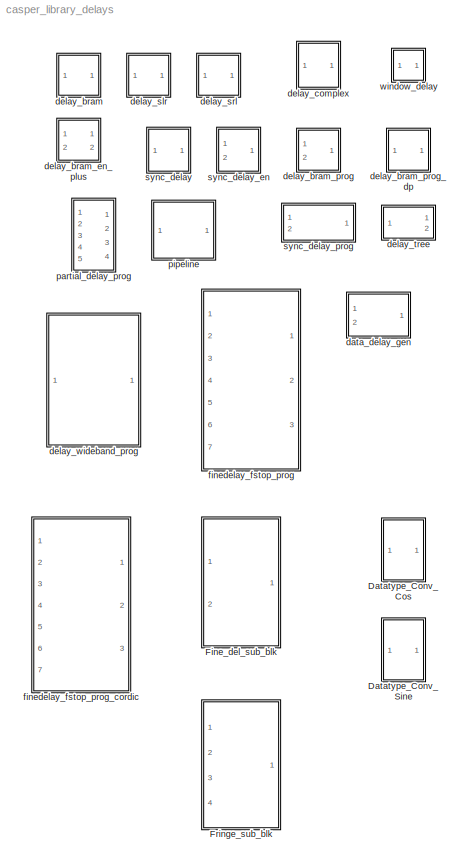
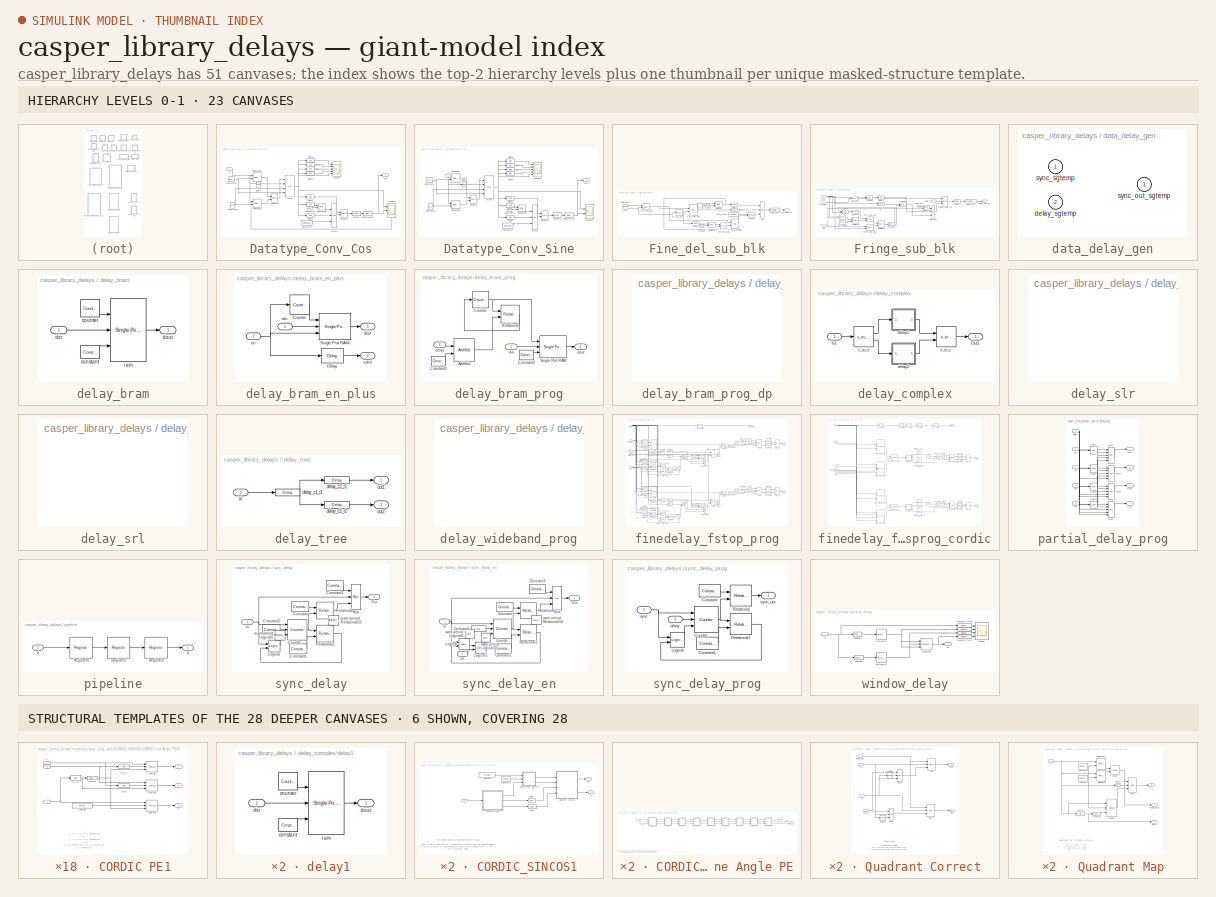
[diagram: thumbnail index - top-2 hierarchy levels (23 canvases) + 6 structural-template representatives of the remaining 28 canvases]
MODEL casper_library_delays
KIND library
BLOCK [SubSystem] Datatype_Conv_Cos
  FunctionWithSeparateData = off
  MaskCallbackString = |
  MaskEnableString = on,on
  MaskHideContents = off
  MaskIconFrame = on
  MaskIconOpaque = on
  MaskIconRotate = none
  MaskIconUnits = autoscale
  MaskPromptString = Sine-Cos LUT Input binary point position|FFT Input Bit Width
  MaskStyleString = edit,edit
  MaskToolTipString = on,on
  MaskTunableValueString = on,on
  MaskValueString = 17|18
  MaskVariables = theta_binary_bits=@1;fft_bits=@2;
  MaskVisibilityString = on,on
  MinAlgLoopOccurrences = off
  Opaque = off
  Ports = [1, 1]
  PropExecContextOutsideSubsystem = off
  RTWSystemCode = Auto
BLOCK [Reference] Datatype_Conv_Cos/Concat10  REF=xbsIndex_r4/Concat
  Ports = [2, 1]
  SourceBlock = xbsIndex_r4/Concat
  SourceType = Xilinx Bus Concatenator Block
  block_type = concat
  block_version = 10.1.3
  dbl_ovrd = off
  has_advanced_control = 0
  infoedit = Concatenates two or more inputs.  Output will be cast to an unsigned value with the binary point at zero.
  num_inputs = 2
  sg_icon_stat = 30,40,2,1,white,blue,0,16398980,right,,[ ],[ ]
  sg_mask_display = fprintf('','COMMENT: begin icon graphics');\npatch([0 30 30 0 0 ],[0 0 40 40 0 ],[0.77 0.82 0.91 ]);\nplot([0 30 30 0 0 ],[0 0 40 40 0 ]);\npatch([6.1 11.88 15.88 19.88 23.88 15.88 10.1 6.1 ],[24.44 24.44 28.44 24.44 28.44 28.44 28.44 24.44 ],[1 1 1 ]);\npatch([10.1 15.88 11.88 6.1 10.1 ],[20.44 20.44 24.44 24.44 20.44 ],[0.931 0.946 0.973 ]);\npatch([6.1 11.88 15.88 10.1 6.1 ],[16.44 16.44 20.44 ...<+411ch>  <repeated x4 — deduplicated; at blocks: Concat10, Concat11>
  sggui_pos = 20,20,336,162
BLOCK [Reference] Datatype_Conv_Cos/Concat11  REF=xbsIndex_r4/Concat
  Ports = [2, 1]
  SourceBlock = xbsIndex_r4/Concat
  SourceType = Xilinx Bus Concatenator Block
  block_type = concat
  block_version = 10.1.3
  dbl_ovrd = off
  has_advanced_control = 0
  infoedit = Concatenates two or more inputs.  Output will be cast to an unsigned value with the binary point at zero.
  num_inputs = 2
  sg_icon_stat = 30,40,2,1,white,blue,0,16398980,right,,[ ],[ ]
  sggui_pos = 20,20,336,162
BLOCK [Reference] Datatype_Conv_Cos/Constant26  REF=xbsIndex_r4/Constant
  Ports = [0, 1]
  SourceBlock = xbsIndex_r4/Constant
  SourceType = Xilinx Constant Block Block
  arith_type = Unsigned
  bin_pt = 0
  block_type = constant
  block_version = 10.1.3
  carry = CIN
  const = 1
  dbl_ovrd = off
  dsp48_infoedit = The use of this block for DSP48 instructions is deprecated.  Please use the Opmode block.
  equ = P=C
  exp_width = 8
  explicit_period = off
  frac_width = 24
  gui_display_data_type = Fixed-point
  has_advanced_control = 0
  inp1 = P
  inp2 = PCIN>>17
  n_bits = 3
  opr = +
  opselect = C
  period = 1
  preci_type = Single
  sg_icon_stat = 20,16,0,1,white,blue,0,1c72b5be,right,,[ ],[ ]
  sg_mask_display = fprintf('','COMMENT: begin icon graphics');\npatch([0 20 20 0 0 ],[0 0 16 16 0 ],[0.77 0.82 0.91 ]);\nplot([0 20 20 0 0 ],[0 0 16 16 0 ]);\npatch([5.55 8.44 10.44 12.44 14.44 10.44 7.55 5.55 ],[10.22 10.22 12.22 10.22 12.22 12.22 12.22 10.22 ],[1 1 1 ]);\npatch([7.55 10.44 8.44 5.55 7.55 ],[8.22 8.22 10.22 10.22 8.22 ],[0.931 0.946 0.973 ]);\npatch([5.55 8.44 10.44 7.55 5.55 ],[6.22 6.22 8.22 8.22...<+296ch>
  sggui_pos = 250,47,414,344
BLOCK [Reference] Datatype_Conv_Cos/Constant27  REF=xbsIndex_r4/Constant
  Ports = [0, 1]
  SourceBlock = xbsIndex_r4/Constant
  SourceType = Xilinx Constant Block Block
  arith_type = Unsigned
  bin_pt = 0
  block_type = constant
  block_version = 10.1.3
  carry = CIN
  const = 2^(theta_binary_bits)-1
  dbl_ovrd = off
  dsp48_infoedit = The use of this block for DSP48 instructions is deprecated.  Please use the Opmode block.
  equ = P=C
  exp_width = 8
  explicit_period = off
  frac_width = 24
  gui_display_data_type = Fixed-point
  has_advanced_control = 0
  inp1 = P
  inp2 = PCIN>>17
  n_bits = theta_binary_bits
  opr = +
  opselect = C
  period = 1
  preci_type = Single
  sg_icon_stat = 50,26,0,1,white,blue,0,9034bb69,right,,[ ],[ ]
  sg_mask_display = fprintf('','COMMENT: begin icon graphics');\npatch([0 55 55 0 0 ],[0 0 26 26 0 ],[0.77 0.82 0.91 ]);\nplot([0 55 55 0 0 ],[0 0 26 26 0 ]);\npatch([20.325 24.66 27.66 30.66 33.66 27.66 23.325 20.325 ],[16.33 16.33 19.33 16.33 19.33 19.33 19.33 16.33 ],[1 1 1 ]);\npatch([23.325 27.66 24.66 20.325 23.325 ],[13.33 13.33 16.33 16.33 13.33 ],[0.931 0.946 0.973 ]);\npatch([20.325 24.66 27.66 23.325 20.32...<+333ch>  <repeated x42 — deduplicated; at blocks: Constant27, Neg_Pi_Const, Pos_Pi_Const, FFT_Length1, Constant1, Constant, Constant2, Constant3>
  sggui_pos = 250,47,414,344
BLOCK [Reference] Datatype_Conv_Cos/Constant28  REF=xbsIndex_r4/Constant
  Ports = [0, 1]
  SourceBlock = xbsIndex_r4/Constant
  SourceType = Xilinx Constant Block Block
  arith_type = Signed (2's comp)
  bin_pt = 17
  block_type = constant
  block_version = 10.1.3
  carry = CIN
  const = 1
  dbl_ovrd = off
  dsp48_infoedit = The use of this block for DSP48 instructions is deprecated.  Please use the Opmode block.
  equ = P=C
  exp_width = 8
  explicit_period = off
  frac_width = 24
  gui_display_data_type = Fixed-point
  has_advanced_control = 0
  inp1 = P
  inp2 = PCIN>>17
  n_bits = 20
  opr = +
  opselect = C
  period = 1
  preci_type = Single
  sg_icon_stat = 30,24,0,1,white,blue,0,1c72b5be,right,,[ ],[ ]
  sg_mask_display = fprintf('','COMMENT: begin icon graphics');\npatch([0 30 30 0 0 ],[0 0 24 24 0 ],[0.77 0.82 0.91 ]);\nplot([0 30 30 0 0 ],[0 0 24 24 0 ]);\npatch([8.325 12.66 15.66 18.66 21.66 15.66 11.325 8.325 ],[15.33 15.33 18.33 15.33 18.33 18.33 18.33 15.33 ],[1 1 1 ]);\npatch([11.325 15.66 12.66 8.325 11.325 ],[12.33 12.33 15.33 15.33 12.33 ],[0.931 0.946 0.973 ]);\npatch([8.325 12.66 15.66 11.325 8.325 ],[...<+321ch>
  sggui_pos = 250,47,414,344
BLOCK [Reference] Datatype_Conv_Cos/Constant29  REF=xbsIndex_r4/Constant
  Ports = [0, 1]
  SourceBlock = xbsIndex_r4/Constant
  SourceType = Xilinx Constant Block Block
  arith_type = Signed (2's comp)
  bin_pt = 17
  block_type = constant
  block_version = 10.1.3
  carry = CIN
  const = -1
  dbl_ovrd = off
  dsp48_infoedit = The use of this block for DSP48 instructions is deprecated.  Please use the Opmode block.
  equ = P=C
  exp_width = 8
  explicit_period = off
  frac_width = 24
  gui_display_data_type = Fixed-point
  has_advanced_control = 0
  inp1 = P
  inp2 = PCIN>>17
  n_bits = 20
  opr = +
  opselect = C
  period = 1
  preci_type = Single
  sg_icon_stat = 20,28,0,1,white,blue,0,43c97d40,right,,[ ],[ ]
  sg_mask_display = fprintf('','COMMENT: begin icon graphics');\npatch([0 20 20 0 0 ],[0 0 28 28 0 ],[0.77 0.82 0.91 ]);\nplot([0 20 20 0 0 ],[0 0 28 28 0 ]);\npatch([5.55 8.44 10.44 12.44 14.44 10.44 7.55 5.55 ],[16.22 16.22 18.22 16.22 18.22 18.22 18.22 16.22 ],[1 1 1 ]);\npatch([7.55 10.44 8.44 5.55 7.55 ],[14.22 14.22 16.22 16.22 14.22 ],[0.931 0.946 0.973 ]);\npatch([5.55 8.44 10.44 7.55 5.55 ],[12.22 12.22 14.2...<+312ch>
  sggui_pos = 20,20,414,344
BLOCK [Reference] Datatype_Conv_Cos/Convert6  REF=xbsIndex_r4/Convert
  Ports = [1, 1]
  SourceBlock = xbsIndex_r4/Convert
  SourceType = Xilinx Type Converter Block
  arith_type = Signed  (2's comp)
  bin_pt = 0
  block_type = convert
  block_version = 10.1.3
  dbl_ovrd = off
  en = off
  exp_bits = 8
  float_type = Single
  fraction_bits = 24
  gui_display_data_type = Fixed-point
  has_advanced_control = 0
  infoedit = Hardware notes: rounding and saturating require hardware resources; truncating and wrapping do not.
  latency = 0
  n_bits = fft_bits
  overflow = Wrap
  pipeline = off
  quantization = Truncate
  sg_icon_stat = 40,22,1,1,white,blue,0,edca21da,right,,[ ],[ ]
  sg_mask_display = fprintf('','COMMENT: begin icon graphics');\npatch([0 45 45 0 0 ],[0 0 30 30 0 ],[0.77 0.82 0.91 ]);\nplot([0 45 45 0 0 ],[0 0 30 30 0 ]);\npatch([13.1 18.88 22.88 26.88 30.88 22.88 17.1 13.1 ],[19.44 19.44 23.44 19.44 23.44 23.44 23.44 19.44 ],[1 1 1 ]);\npatch([17.1 22.88 18.88 13.1 17.1 ],[15.44 15.44 19.44 19.44 15.44 ],[0.931 0.946 0.973 ]);\npatch([13.1 18.88 22.88 17.1 13.1 ],[11.44 11.44 1...<+314ch>  <repeated x10 — deduplicated; at blocks: Convert6, Convert2, Convert3, Convert5, Convert4>
  sggui_pos = 20,20,470,336
  xl_area = [0,0,0,0,0,0,0]
  xl_use_area = off
BLOCK [Reference] Datatype_Conv_Cos/Delay7  REF=xbsIndex_r4/Delay
  Ports = [1, 1]
  SourceBlock = xbsIndex_r4/Delay
  SourceType = Xilinx Delay Block
  block_type = delay
  block_version = 10.1.3
  dbl_ovrd = off
  en = off
  has_advanced_control = 0
  infoedit = Hardware notes: A delay line is a chain, each link of which is an SRL16 followed by a flip-flop.
  infoeditControl = Selection of Reset will increase slice count due to use of real FFs and instead of SRLs
  latency = 1
  reg_retiming = on
  rst = off
  sg_icon_stat = 20,24,1,1,white,blue,0,07b98262,right,,[ ],[ ]
  sg_mask_display = fprintf('','COMMENT: begin icon graphics');\npatch([0 20 20 0 0 ],[0 0 24 24 0 ],[0.77 0.82 0.91 ]);\nplot([0 20 20 0 0 ],[0 0 24 24 0 ]);\npatch([5.55 8.44 10.44 12.44 14.44 10.44 7.55 5.55 ],[14.22 14.22 16.22 14.22 16.22 16.22 16.22 14.22 ],[1 1 1 ]);\npatch([7.55 10.44 8.44 5.55 7.55 ],[12.22 12.22 14.22 14.22 12.22 ],[0.931 0.946 0.973 ]);\npatch([5.55 8.44 10.44 7.55 5.55 ],[10.22 10.22 12.2...<+312ch>
  sggui_pos = 20,20,348,254
  xl_area = [0,0,0,0,0,0,0]
  xl_use_area = off
BLOCK [Inport] Datatype_Conv_Cos/In1
  IconDisplay = Port number
BLOCK [Reference] Datatype_Conv_Cos/Mux10  REF=xbsIndex_r4/Mux
  Ports = [3, 1]
  SourceBlock = xbsIndex_r4/Mux
  SourceType = Xilinx Bus Multiplexer Block
  arith_type = Unsigned
  bin_pt = 14
  block_type = mux
  block_version = 10.1.3
  dbl_ovrd = off
  en = off
  has_advanced_control = 0
  inputs = 2
  latency = 0
  n_bits = 16
  overflow = Wrap
  precision = Full
  quantization = Truncate
  sg_icon_stat = 25,116,3,1,white,blue,3,eb98d690,right,,[ ],[ ]
  sg_mask_display = fprintf('','COMMENT: begin icon graphics');\npatch([0 25 25 0 0 ],[0 16.5714 99.4286 116 0 ],[0.77 0.82 0.91 ]);\nplot([0 25 25 0 0 ],[0 16.5714 99.4286 116 0 ]);\npatch([5.325 9.66 12.66 15.66 18.66 12.66 8.325 5.325 ],[61.33 61.33 64.33 61.33 64.33 64.33 64.33 61.33 ],[1 1 1 ]);\npatch([8.325 12.66 9.66 5.325 8.325 ],[58.33 58.33 61.33 61.33 58.33 ],[0.931 0.946 0.973 ]);\npatch([5.325 9.66 12.6...<+485ch>
  sggui_pos = 20,20,348,306
  xl_area = [0,0,0,0,0,0,0]
  xl_use_area = off
BLOCK [Reference] Datatype_Conv_Cos/Mux9  REF=xbsIndex_r4/Mux
  Ports = [4, 1]
  SourceBlock = xbsIndex_r4/Mux
  SourceType = Xilinx Bus Multiplexer Block
  arith_type = Unsigned
  bin_pt = 14
  block_type = mux
  block_version = 10.1.3
  dbl_ovrd = off
  en = off
  has_advanced_control = 0
  inputs = 3
  latency = 0
  n_bits = 16
  overflow = Wrap
  precision = Full
  quantization = Truncate
  sg_icon_stat = 45,105,4,1,white,blue,3,58b3489d,right,,[ ],[ ]
  sg_mask_display = fprintf('','COMMENT: begin icon graphics');\npatch([0 45 45 0 0 ],[0 15 90 105 0 ],[0.77 0.82 0.91 ]);\nplot([0 45 45 0 0 ],[0 15 90 105 0 ]);\npatch([8.65 17.32 23.32 29.32 35.32 23.32 14.65 8.65 ],[58.66 58.66 64.66 58.66 64.66 64.66 64.66 58.66 ],[1 1 1 ]);\npatch([14.65 23.32 17.32 8.65 14.65 ],[52.66 52.66 58.66 58.66 52.66 ],[0.931 0.946 0.973 ]);\npatch([8.65 17.32 23.32 14.65 8.65 ],[46.66...<+507ch>
  sggui_pos = 20,20,348,306
  xl_area = [0,0,0,0,0,0,0]
  xl_use_area = off
BLOCK [Reference] Datatype_Conv_Cos/Reinterpret10  REF=xbsIndex_r4/Reinterpret
  Ports = [1, 1]
  SourceBlock = xbsIndex_r4/Reinterpret
  SourceType = Xilinx Type Reinterpreter Block
  arith_type = Unsigned
  bin_pt = fft_bits-1
  block_type = reinterpret
  block_version = 10.1.3
  force_arith_type = off
  force_bin_pt = on
  has_advanced_control = 0
  infoedit = Changes signal type without altering the binary representation.   You can changed the signal between signed and unsigned, and relocate the binary point.<P><P>Hardware notes: In hardware this block costs nothing.<P><P>Example:  Suppose the input is 6 bits wide, signed, with 2 fractional bits, and the output is forced to unsigned with 0 fractional bits.  Then an input of -2.0 (1110.00 in binary 2's ...<+55ch>  <repeated x4 — deduplicated; at blocks: Reinterpret10, Reinterpret>
  sg_icon_stat = 40,22,1,1,white,blue,0,6b04d0b0,right,,[ ],[ ]
  sg_mask_display = fprintf('','COMMENT: begin icon graphics');\npatch([0 50 50 0 0 ],[0 0 32 32 0 ],[0.77 0.82 0.91 ]);\nplot([0 50 50 0 0 ],[0 0 32 32 0 ]);\npatch([16.1 21.88 25.88 29.88 33.88 25.88 20.1 16.1 ],[20.44 20.44 24.44 20.44 24.44 24.44 24.44 20.44 ],[1 1 1 ]);\npatch([20.1 25.88 21.88 16.1 20.1 ],[16.44 16.44 20.44 20.44 16.44 ],[0.931 0.946 0.973 ]);\npatch([16.1 21.88 25.88 20.1 16.1 ],[12.44 12.44 1...<+306ch>  <repeated x4 — deduplicated; at blocks: Reinterpret10, Reinterpret>
  sggui_pos = 20,20,336,312
BLOCK [Reference] Datatype_Conv_Cos/Relational17  REF=xbsIndex_r4/Relational
  Ports = [2, 1]
  SourceBlock = xbsIndex_r4/Relational
  SourceType = Xilinx Arithmetic Relational Operator Block
  block_type = relational
  block_version = 10.1.3
  dbl_ovrd = off
  en = off
  has_advanced_control = 0
  latency = 1
  mode = a<b
  sg_icon_stat = 40,40,2,1,white,blue,0,9a1f8f13,right,,[ ],[ ]
  sg_mask_display = fprintf('','COMMENT: begin icon graphics');\npatch([0 40 40 0 0 ],[0 0 40 40 0 ],[0.77 0.82 0.91 ]);\nplot([0 40 40 0 0 ],[0 0 40 40 0 ]);\npatch([8.875 16.1 21.1 26.1 31.1 21.1 13.875 8.875 ],[25.55 25.55 30.55 25.55 30.55 30.55 30.55 25.55 ],[1 1 1 ]);\npatch([13.875 21.1 16.1 8.875 13.875 ],[20.55 20.55 25.55 25.55 20.55 ],[0.931 0.946 0.973 ]);\npatch([8.875 16.1 21.1 13.875 8.875 ],[15.55 15....<+515ch>
  sggui_pos = 20,20,348,192
  xl_area = [0,0,0,0,0,0,0]
  xl_use_area = off
BLOCK [Reference] Datatype_Conv_Cos/Relational18  REF=xbsIndex_r4/Relational
  Ports = [2, 1]
  SourceBlock = xbsIndex_r4/Relational
  SourceType = Xilinx Arithmetic Relational Operator Block
  block_type = relational
  block_version = 10.1.3
  dbl_ovrd = off
  en = off
  has_advanced_control = 0
  latency = 0
  mode = a=b
  sg_icon_stat = 35,31,2,1,white,blue,0,2a81ff49,right,,[ ],[ ]
  sg_mask_display = fprintf('','COMMENT: begin icon graphics');\npatch([0 35 35 0 0 ],[0 0 31 31 0 ],[0.77 0.82 0.91 ]);\nplot([0 35 35 0 0 ],[0 0 31 31 0 ]);\npatch([8.1 13.88 17.88 21.88 25.88 17.88 12.1 8.1 ],[19.44 19.44 23.44 19.44 23.44 23.44 23.44 19.44 ],[1 1 1 ]);\npatch([12.1 17.88 13.88 8.1 12.1 ],[15.44 15.44 19.44 19.44 15.44 ],[0.931 0.946 0.973 ]);\npatch([8.1 13.88 17.88 12.1 8.1 ],[11.44 11.44 15.44 ...<+439ch>
  sggui_pos = 20,20,348,192
  xl_area = [0,0,0,0,0,0,0]
  xl_use_area = off
BLOCK [Reference] Datatype_Conv_Cos/Relational19  REF=xbsIndex_r4/Relational
  Ports = [2, 1]
  SourceBlock = xbsIndex_r4/Relational
  SourceType = Xilinx Arithmetic Relational Operator Block
  block_type = relational
  block_version = 10.1.3
  dbl_ovrd = off
  en = off
  has_advanced_control = 0
  latency = 1
  mode = a>b
  sg_icon_stat = 40,44,2,1,white,blue,0,3049caaa,right,,[ ],[ ]
  sg_mask_display = fprintf('','COMMENT: begin icon graphics');\npatch([0 40 40 0 0 ],[0 0 44 44 0 ],[0.77 0.82 0.91 ]);\nplot([0 40 40 0 0 ],[0 0 44 44 0 ]);\npatch([8.875 16.1 21.1 26.1 31.1 21.1 13.875 8.875 ],[27.55 27.55 32.55 27.55 32.55 32.55 32.55 27.55 ],[1 1 1 ]);\npatch([13.875 21.1 16.1 8.875 13.875 ],[22.55 22.55 27.55 27.55 22.55 ],[0.931 0.946 0.973 ]);\npatch([8.875 16.1 21.1 13.875 8.875 ],[17.55 17....<+515ch>
  sggui_pos = 20,20,348,192
  xl_area = [0,0,0,0,0,0,0]
  xl_use_area = off
BLOCK [Scope] Datatype_Conv_Cos/Scope19
  DataFormat = StructureWithTime
  Floating = off
  LimitDataPoints = off
  NumInputPorts = 3
  Ports = [3]
  SampleTime = 0
  SaveName = ScopeData19
  YMax = 1.1~1.1~5
  YMin = -1.1~-0.2~-5
  ZoomMode = xonly
BLOCK [Scope] Datatype_Conv_Cos/Scope20
  DataFormat = StructureWithTime
  Floating = off
  LimitDataPoints = off
  NumInputPorts = 5
  Ports = [5]
  SampleTime = 0
  SaveName = ScopeData20
  YMax = 1.1~1.1~5~5~5
  YMin = -1.1~-0.2~-5~-5~-5
  ZoomMode = yonly
BLOCK [Reference] Datatype_Conv_Cos/Slice32  REF=xbsIndex_r4/Slice
  Ports = [1, 1]
  SourceBlock = xbsIndex_r4/Slice
  SourceType = Xilinx Bit Slice Extractor Block
  base0 = LSB of Input
  base1 = MSB of Input
  bit0 = 0
  bit1 = 0
  block_type = slice
  block_version = 10.1.3
  boolean_output = off
  dbl_ovrd = off
  has_advanced_control = 0
  infoedit = Extracts a given range of bits from each input sample and presents it at the output.  The output type is ordinarily unsigned with binary point at zero, but can be Boolean when the slice is one bit wide.<P><P>Hardware notes: In hardware this block costs nothing.  <repeated x34 — deduplicated; at blocks: Slice32, Slice33, Slice34, Slice35, Slice36, Slice37, Slice38, Slice, sgn(z)>
  mode = Upper Bit Location + Width
  nbits = 1
  sg_icon_stat = 35,20,1,1,white,blue,0,1fd851a7,right,,[ ],[ ]
  sg_mask_display = fprintf('','COMMENT: begin icon graphics');\npatch([0 35 35 0 0 ],[0 0 20 20 0 ],[0.77 0.82 0.91 ]);\nplot([0 35 35 0 0 ],[0 0 20 20 0 ]);\npatch([12.55 15.44 17.44 19.44 21.44 17.44 14.55 12.55 ],[12.22 12.22 14.22 12.22 14.22 14.22 14.22 12.22 ],[1 1 1 ]);\npatch([14.55 17.44 15.44 12.55 14.55 ],[10.22 10.22 12.22 12.22 10.22 ],[0.931 0.946 0.973 ]);\npatch([12.55 15.44 17.44 14.55 12.55 ],[8.22...<+323ch>  <repeated x5 — deduplicated; at blocks: Slice32, Slice33, Slice34, Slice35, Slice36>
  sggui_pos = 20,20,460,380
BLOCK [Reference] Datatype_Conv_Cos/Slice33  REF=xbsIndex_r4/Slice
  Ports = [1, 1]
  SourceBlock = xbsIndex_r4/Slice
  SourceType = Xilinx Bit Slice Extractor Block
  base0 = LSB of Input
  base1 = MSB of Input
  bit0 = 0
  bit1 = 0
  block_type = slice
  block_version = 10.1.3
  boolean_output = off
  dbl_ovrd = off
  has_advanced_control = 0
  mode = Upper Bit Location + Width
  nbits = 3
  sg_icon_stat = 35,20,1,1,white,blue,0,1fd851a7,right,,[ ],[ ]
  sggui_pos = 20,20,460,380
BLOCK [Reference] Datatype_Conv_Cos/Slice34  REF=xbsIndex_r4/Slice
  Ports = [1, 1]
  SourceBlock = xbsIndex_r4/Slice
  SourceType = Xilinx Bit Slice Extractor Block
  base0 = LSB of Input
  base1 = MSB of Input
  bit0 = 0
  bit1 = 0
  block_type = slice
  block_version = 10.1.3
  boolean_output = off
  dbl_ovrd = off
  has_advanced_control = 0
  mode = Upper Bit Location + Width
  nbits = 3
  sg_icon_stat = 35,20,1,1,white,blue,0,1fd851a7,right,,[ ],[ ]
  sggui_pos = 20,20,460,380
BLOCK [Reference] Datatype_Conv_Cos/Slice35  REF=xbsIndex_r4/Slice
  Ports = [1, 1]
  SourceBlock = xbsIndex_r4/Slice
  SourceType = Xilinx Bit Slice Extractor Block
  base0 = LSB of Input
  base1 = MSB of Input
  bit0 = 0
  bit1 = 0
  block_type = slice
  block_version = 10.1.3
  boolean_output = off
  dbl_ovrd = off
  has_advanced_control = 0
  mode = Upper Bit Location + Width
  nbits = 1
  sg_icon_stat = 35,20,1,1,white,blue,0,1fd851a7,right,,[ ],[ ]
  sggui_pos = 20,20,460,380
BLOCK [Reference] Datatype_Conv_Cos/Slice36  REF=xbsIndex_r4/Slice
  Ports = [1, 1]
  SourceBlock = xbsIndex_r4/Slice
  SourceType = Xilinx Bit Slice Extractor Block
  base0 = LSB of Input
  base1 = MSB of Input
  bit0 = 0
  bit1 = -1
  block_type = slice
  block_version = 10.1.3
  boolean_output = off
  dbl_ovrd = off
  has_advanced_control = 0
  mode = Upper Bit Location + Width
  nbits = 1
  sg_icon_stat = 35,20,1,1,white,blue,0,1fd851a7,right,,[ ],[ ]
  sggui_pos = 20,20,460,380
BLOCK [Reference] Datatype_Conv_Cos/Slice37  REF=xbsIndex_r4/Slice
  Ports = [1, 1]
  SourceBlock = xbsIndex_r4/Slice
  SourceType = Xilinx Bit Slice Extractor Block
  base0 = LSB of Input
  base1 = MSB of Input
  bit0 = 0
  bit1 = 0
  block_type = slice
  block_version = 10.1.3
  boolean_output = off
  dbl_ovrd = off
  has_advanced_control = 0
  mode = Lower Bit Location + Width
  nbits = theta_binary_bits
  sg_icon_stat = 35,20,1,1,white,blue,0,1fd851a7,right,,[ ],[ ]
  sg_mask_display = fprintf('','COMMENT: begin icon graphics');\npatch([0 60 60 0 0 ],[0 0 30 30 0 ],[0.77 0.82 0.91 ]);\nplot([0 60 60 0 0 ],[0 0 30 30 0 ]);\npatch([21.1 26.88 30.88 34.88 38.88 30.88 25.1 21.1 ],[19.44 19.44 23.44 19.44 23.44 23.44 23.44 19.44 ],[1 1 1 ]);\npatch([25.1 30.88 26.88 21.1 25.1 ],[15.44 15.44 19.44 19.44 15.44 ],[0.931 0.946 0.973 ]);\npatch([21.1 26.88 30.88 25.1 21.1 ],[11.44 11.44 1...<+315ch>
  sggui_pos = 20,20,460,380
BLOCK [Reference] Datatype_Conv_Cos/Slice38  REF=xbsIndex_r4/Slice
  Ports = [1, 1]
  SourceBlock = xbsIndex_r4/Slice
  SourceType = Xilinx Bit Slice Extractor Block
  base0 = LSB of Input
  base1 = MSB of Input
  bit0 = 0
  bit1 = -2
  block_type = slice
  block_version = 10.1.3
  boolean_output = off
  dbl_ovrd = off
  has_advanced_control = 0
  mode = Upper Bit Location + Width
  nbits = 1
  sg_icon_stat = 35,20,1,1,white,blue,0,1fd851a7,right,,[ ],[ ]
  sg_mask_display = fprintf('','COMMENT: begin icon graphics');\npatch([0 35 35 0 0 ],[0 0 20 20 0 ],[0.77 0.82 0.91 ]);\nplot([0 35 35 0 0 ],[0 0 20 20 0 ]);\npatch([12.55 15.44 17.44 19.44 21.44 17.44 14.55 12.55 ],[12.22 12.22 14.22 12.22 14.22 14.22 14.22 12.22 ],[1 1 1 ]);\npatch([14.55 17.44 15.44 12.55 14.55 ],[10.22 10.22 12.22 12.22 10.22 ],[0.931 0.946 0.973 ]);\npatch([12.55 15.44 17.44 14.55 12.55 ],[8.22...<+321ch>  <repeated x7 — deduplicated; at blocks: Slice38, Slice32, Slice33, Slice34, Slice35, Slice36>
  sggui_pos = 20,20,460,380
BLOCK [Outport] Datatype_Conv_Cos/out0
  IconDisplay = Port number
BLOCK [SubSystem] Datatype_Conv_Sine
  FunctionWithSeparateData = off
  MaskCallbackString = |
  MaskEnableString = on,on
  MaskHideContents = off
  MaskIconFrame = on
  MaskIconOpaque = on
  MaskIconRotate = none
  MaskIconUnits = autoscale
  MaskPromptString = Sine-Cos LUT Input binary point position|FFT Input Bit Width
  MaskStyleString = edit,edit
  MaskToolTipString = on,on
  MaskTunableValueString = on,on
  MaskValueString = 17|18
  MaskVariables = theta_binary_bits=@1;fft_bits=@2;
  MaskVisibilityString = on,on
  MinAlgLoopOccurrences = off
  Opaque = off
  Ports = [1, 1]
  PropExecContextOutsideSubsystem = off
  RTWSystemCode = Auto
BLOCK [Reference] Datatype_Conv_Sine/Concat10  REF=xbsIndex_r4/Concat
  Ports = [2, 1]
  SourceBlock = xbsIndex_r4/Concat
  SourceType = Xilinx Bus Concatenator Block
  block_type = concat
  block_version = 10.1.3
  dbl_ovrd = off
  has_advanced_control = 0
  infoedit = Concatenates two or more inputs.  Output will be cast to an unsigned value with the binary point at zero.
  num_inputs = 2
  sg_icon_stat = 30,40,2,1,white,blue,0,16398980,right,,[ ],[ ]
  sggui_pos = 20,20,336,162
BLOCK [Reference] Datatype_Conv_Sine/Concat11  REF=xbsIndex_r4/Concat
  Ports = [2, 1]
  SourceBlock = xbsIndex_r4/Concat
  SourceType = Xilinx Bus Concatenator Block
  block_type = concat
  block_version = 10.1.3
  dbl_ovrd = off
  has_advanced_control = 0
  infoedit = Concatenates two or more inputs.  Output will be cast to an unsigned value with the binary point at zero.
  num_inputs = 2
  sg_icon_stat = 30,40,2,1,white,blue,0,16398980,right,,[ ],[ ]
  sggui_pos = 20,20,336,162
BLOCK [Reference] Datatype_Conv_Sine/Constant26  REF=xbsIndex_r4/Constant
  Ports = [0, 1]
  SourceBlock = xbsIndex_r4/Constant
  SourceType = Xilinx Constant Block Block
  arith_type = Unsigned
  bin_pt = 0
  block_type = constant
  block_version = 10.1.3
  carry = CIN
  const = 1
  dbl_ovrd = off
  dsp48_infoedit = The use of this block for DSP48 instructions is deprecated.  Please use the Opmode block.
  equ = P=C
  exp_width = 8
  explicit_period = off
  frac_width = 24
  gui_display_data_type = Fixed-point
  has_advanced_control = 0
  inp1 = P
  inp2 = PCIN>>17
  n_bits = 3
  opr = +
  opselect = C
  period = 1
  preci_type = Single
  sg_icon_stat = 20,16,0,1,white,blue,0,1c72b5be,right,,[ ],[ ]
  sg_mask_display = fprintf('','COMMENT: begin icon graphics');\npatch([0 20 20 0 0 ],[0 0 16 16 0 ],[0.77 0.82 0.91 ]);\nplot([0 20 20 0 0 ],[0 0 16 16 0 ]);\npatch([5.55 8.44 10.44 12.44 14.44 10.44 7.55 5.55 ],[10.22 10.22 12.22 10.22 12.22 12.22 12.22 10.22 ],[1 1 1 ]);\npatch([7.55 10.44 8.44 5.55 7.55 ],[8.22 8.22 10.22 10.22 8.22 ],[0.931 0.946 0.973 ]);\npatch([5.55 8.44 10.44 7.55 5.55 ],[6.22 6.22 8.22 8.22...<+294ch>
  sggui_pos = 250,47,414,344
BLOCK [Reference] Datatype_Conv_Sine/Constant27  REF=xbsIndex_r4/Constant
  Ports = [0, 1]
  SourceBlock = xbsIndex_r4/Constant
  SourceType = Xilinx Constant Block Block
  arith_type = Unsigned
  bin_pt = 0
  block_type = constant
  block_version = 10.1.3
  carry = CIN
  const = 2^(theta_binary_bits)-1
  dbl_ovrd = off
  dsp48_infoedit = The use of this block for DSP48 instructions is deprecated.  Please use the Opmode block.
  equ = P=C
  exp_width = 8
  explicit_period = off
  frac_width = 24
  gui_display_data_type = Fixed-point
  has_advanced_control = 0
  inp1 = P
  inp2 = PCIN>>17
  n_bits = theta_binary_bits
  opr = +
  opselect = C
  period = 1
  preci_type = Single
  sg_icon_stat = 50,26,0,1,white,blue,0,9034bb69,right,,[ ],[ ]
  sggui_pos = 250,47,414,344
BLOCK [Reference] Datatype_Conv_Sine/Constant28  REF=xbsIndex_r4/Constant
  Ports = [0, 1]
  SourceBlock = xbsIndex_r4/Constant
  SourceType = Xilinx Constant Block Block
  arith_type = Signed (2's comp)
  bin_pt = 17
  block_type = constant
  block_version = 10.1.3
  carry = CIN
  const = 1
  dbl_ovrd = off
  dsp48_infoedit = The use of this block for DSP48 instructions is deprecated.  Please use the Opmode block.
  equ = P=C
  exp_width = 8
  explicit_period = off
  frac_width = 24
  gui_display_data_type = Fixed-point
  has_advanced_control = 0
  inp1 = P
  inp2 = PCIN>>17
  n_bits = 20
  opr = +
  opselect = C
  period = 1
  preci_type = Single
  sg_icon_stat = 30,24,0,1,white,blue,0,1c72b5be,right,,[ ],[ ]
  sg_mask_display = fprintf('','COMMENT: begin icon graphics');\npatch([0 30 30 0 0 ],[0 0 24 24 0 ],[0.77 0.82 0.91 ]);\nplot([0 30 30 0 0 ],[0 0 24 24 0 ]);\npatch([8.325 12.66 15.66 18.66 21.66 15.66 11.325 8.325 ],[15.33 15.33 18.33 15.33 18.33 18.33 18.33 15.33 ],[1 1 1 ]);\npatch([11.325 15.66 12.66 8.325 11.325 ],[12.33 12.33 15.33 15.33 12.33 ],[0.931 0.946 0.973 ]);\npatch([8.325 12.66 15.66 11.325 8.325 ],[...<+321ch>
  sggui_pos = 250,47,414,344
BLOCK [Reference] Datatype_Conv_Sine/Constant29  REF=xbsIndex_r4/Constant
  Ports = [0, 1]
  SourceBlock = xbsIndex_r4/Constant
  SourceType = Xilinx Constant Block Block
  arith_type = Signed (2's comp)
  bin_pt = 17
  block_type = constant
  block_version = 10.1.3
  carry = CIN
  const = -1
  dbl_ovrd = off
  dsp48_infoedit = The use of this block for DSP48 instructions is deprecated.  Please use the Opmode block.
  equ = P=C
  exp_width = 8
  explicit_period = off
  frac_width = 24
  gui_display_data_type = Fixed-point
  has_advanced_control = 0
  inp1 = P
  inp2 = PCIN>>17
  n_bits = 20
  opr = +
  opselect = C
  period = 1
  preci_type = Single
  sg_icon_stat = 20,28,0,1,white,blue,0,43c97d40,right,,[ ],[ ]
  sg_mask_display = fprintf('','COMMENT: begin icon graphics');\npatch([0 20 20 0 0 ],[0 0 28 28 0 ],[0.77 0.82 0.91 ]);\nplot([0 20 20 0 0 ],[0 0 28 28 0 ]);\npatch([5.55 8.44 10.44 12.44 14.44 10.44 7.55 5.55 ],[16.22 16.22 18.22 16.22 18.22 18.22 18.22 16.22 ],[1 1 1 ]);\npatch([7.55 10.44 8.44 5.55 7.55 ],[14.22 14.22 16.22 16.22 14.22 ],[0.931 0.946 0.973 ]);\npatch([5.55 8.44 10.44 7.55 5.55 ],[12.22 12.22 14.2...<+310ch>
  sggui_pos = 20,20,414,344
BLOCK [Reference] Datatype_Conv_Sine/Convert6  REF=xbsIndex_r4/Convert
  Ports = [1, 1]
  SourceBlock = xbsIndex_r4/Convert
  SourceType = Xilinx Type Converter Block
  arith_type = Signed  (2's comp)
  bin_pt = 0
  block_type = convert
  block_version = 10.1.3
  dbl_ovrd = off
  en = off
  exp_bits = 8
  float_type = Single
  fraction_bits = 24
  gui_display_data_type = Fixed-point
  has_advanced_control = 0
  infoedit = Hardware notes: rounding and saturating require hardware resources; truncating and wrapping do not.
  latency = 0
  n_bits = fft_bits
  overflow = Wrap
  pipeline = off
  quantization = Truncate
  sg_icon_stat = 40,22,1,1,white,blue,0,edca21da,right,,[ ],[ ]
  sggui_pos = 20,20,470,336
  xl_area = [0,0,0,0,0,0,0]
  xl_use_area = off
BLOCK [Reference] Datatype_Conv_Sine/Delay7  REF=xbsIndex_r4/Delay
  Ports = [1, 1]
  SourceBlock = xbsIndex_r4/Delay
  SourceType = Xilinx Delay Block
  block_type = delay
  block_version = 10.1.3
  dbl_ovrd = off
  en = off
  has_advanced_control = 0
  infoedit = Hardware notes: A delay line is a chain, each link of which is an SRL16 followed by a flip-flop.
  infoeditControl = Selection of Reset will increase slice count due to use of real FFs and instead of SRLs
  latency = 1
  reg_retiming = on
  rst = off
  sg_icon_stat = 20,24,1,1,white,blue,0,07b98262,right,,[ ],[ ]
  sg_mask_display = fprintf('','COMMENT: begin icon graphics');\npatch([0 20 20 0 0 ],[0 0 24 24 0 ],[0.77 0.82 0.91 ]);\nplot([0 20 20 0 0 ],[0 0 24 24 0 ]);\npatch([5.55 8.44 10.44 12.44 14.44 10.44 7.55 5.55 ],[14.22 14.22 16.22 14.22 16.22 16.22 16.22 14.22 ],[1 1 1 ]);\npatch([7.55 10.44 8.44 5.55 7.55 ],[12.22 12.22 14.22 14.22 12.22 ],[0.931 0.946 0.973 ]);\npatch([5.55 8.44 10.44 7.55 5.55 ],[10.22 10.22 12.2...<+312ch>
  sggui_pos = 20,20,348,254
  xl_area = [0,0,0,0,0,0,0]
  xl_use_area = off
BLOCK [Inport] Datatype_Conv_Sine/In1
  IconDisplay = Port number
BLOCK [Reference] Datatype_Conv_Sine/Mux10  REF=xbsIndex_r4/Mux
  Ports = [3, 1]
  SourceBlock = xbsIndex_r4/Mux
  SourceType = Xilinx Bus Multiplexer Block
  arith_type = Unsigned
  bin_pt = 14
  block_type = mux
  block_version = 10.1.3
  dbl_ovrd = off
  en = off
  has_advanced_control = 0
  inputs = 2
  latency = 0
  n_bits = 16
  overflow = Wrap
  precision = Full
  quantization = Truncate
  sg_icon_stat = 25,116,3,1,white,blue,3,eb98d690,right,,[ ],[ ]
  sg_mask_display = fprintf('','COMMENT: begin icon graphics');\npatch([0 25 25 0 0 ],[0 16.5714 99.4286 116 0 ],[0.77 0.82 0.91 ]);\nplot([0 25 25 0 0 ],[0 16.5714 99.4286 116 0 ]);\npatch([5.325 9.66 12.66 15.66 18.66 12.66 8.325 5.325 ],[61.33 61.33 64.33 61.33 64.33 64.33 64.33 61.33 ],[1 1 1 ]);\npatch([8.325 12.66 9.66 5.325 8.325 ],[58.33 58.33 61.33 61.33 58.33 ],[0.931 0.946 0.973 ]);\npatch([5.325 9.66 12.6...<+483ch>
  sggui_pos = -1,-1,-1,-1
  xl_area = [0,0,0,0,0,0,0]
  xl_use_area = off
BLOCK [Reference] Datatype_Conv_Sine/Mux9  REF=xbsIndex_r4/Mux
  Ports = [4, 1]
  SourceBlock = xbsIndex_r4/Mux
  SourceType = Xilinx Bus Multiplexer Block
  arith_type = Unsigned
  bin_pt = 14
  block_type = mux
  block_version = 10.1.3
  dbl_ovrd = off
  en = off
  has_advanced_control = 0
  inputs = 3
  latency = 0
  n_bits = 16
  overflow = Wrap
  precision = Full
  quantization = Truncate
  sg_icon_stat = 45,105,4,1,white,blue,3,58b3489d,right,,[ ],[ ]
  sg_mask_display = fprintf('','COMMENT: begin icon graphics');\npatch([0 45 45 0 0 ],[0 15 90 105 0 ],[0.77 0.82 0.91 ]);\nplot([0 45 45 0 0 ],[0 15 90 105 0 ]);\npatch([8.65 17.32 23.32 29.32 35.32 23.32 14.65 8.65 ],[58.66 58.66 64.66 58.66 64.66 64.66 64.66 58.66 ],[1 1 1 ]);\npatch([14.65 23.32 17.32 8.65 14.65 ],[52.66 52.66 58.66 58.66 52.66 ],[0.931 0.946 0.973 ]);\npatch([8.65 17.32 23.32 14.65 8.65 ],[46.66...<+507ch>
  sggui_pos = 20,20,348,306
  xl_area = [0,0,0,0,0,0,0]
  xl_use_area = off
BLOCK [Reference] Datatype_Conv_Sine/Reinterpret10  REF=xbsIndex_r4/Reinterpret
  Ports = [1, 1]
  SourceBlock = xbsIndex_r4/Reinterpret
  SourceType = Xilinx Type Reinterpreter Block
  arith_type = Unsigned
  bin_pt = fft_bits-1
  block_type = reinterpret
  block_version = 10.1.3
  force_arith_type = off
  force_bin_pt = on
  has_advanced_control = 0
  sg_icon_stat = 40,22,1,1,white,blue,0,6b04d0b0,right,,[ ],[ ]
  sggui_pos = 20,20,336,312
BLOCK [Reference] Datatype_Conv_Sine/Relational17  REF=xbsIndex_r4/Relational
  Ports = [2, 1]
  SourceBlock = xbsIndex_r4/Relational
  SourceType = Xilinx Arithmetic Relational Operator Block
  block_type = relational
  block_version = 10.1.3
  dbl_ovrd = off
  en = off
  has_advanced_control = 0
  latency = 1
  mode = a<b
  sg_icon_stat = 40,40,2,1,white,blue,0,9a1f8f13,right,,[ ],[ ]
  sg_mask_display = fprintf('','COMMENT: begin icon graphics');\npatch([0 40 40 0 0 ],[0 0 40 40 0 ],[0.77 0.82 0.91 ]);\nplot([0 40 40 0 0 ],[0 0 40 40 0 ]);\npatch([8.875 16.1 21.1 26.1 31.1 21.1 13.875 8.875 ],[25.55 25.55 30.55 25.55 30.55 30.55 30.55 25.55 ],[1 1 1 ]);\npatch([13.875 21.1 16.1 8.875 13.875 ],[20.55 20.55 25.55 25.55 20.55 ],[0.931 0.946 0.973 ]);\npatch([8.875 16.1 21.1 13.875 8.875 ],[15.55 15....<+515ch>
  sggui_pos = 20,20,348,192
  xl_area = [0,0,0,0,0,0,0]
  xl_use_area = off
BLOCK [Reference] Datatype_Conv_Sine/Relational18  REF=xbsIndex_r4/Relational
  Ports = [2, 1]
  SourceBlock = xbsIndex_r4/Relational
  SourceType = Xilinx Arithmetic Relational Operator Block
  block_type = relational
  block_version = 10.1.3
  dbl_ovrd = off
  en = off
  has_advanced_control = 0
  latency = 0
  mode = a=b
  sg_icon_stat = 35,31,2,1,white,blue,0,2a81ff49,right,,[ ],[ ]
  sg_mask_display = fprintf('','COMMENT: begin icon graphics');\npatch([0 35 35 0 0 ],[0 0 31 31 0 ],[0.77 0.82 0.91 ]);\nplot([0 35 35 0 0 ],[0 0 31 31 0 ]);\npatch([8.1 13.88 17.88 21.88 25.88 17.88 12.1 8.1 ],[19.44 19.44 23.44 19.44 23.44 23.44 23.44 19.44 ],[1 1 1 ]);\npatch([12.1 17.88 13.88 8.1 12.1 ],[15.44 15.44 19.44 19.44 15.44 ],[0.931 0.946 0.973 ]);\npatch([8.1 13.88 17.88 12.1 8.1 ],[11.44 11.44 15.44 ...<+439ch>
  sggui_pos = 20,20,348,192
  xl_area = [0,0,0,0,0,0,0]
  xl_use_area = off
BLOCK [Reference] Datatype_Conv_Sine/Relational19  REF=xbsIndex_r4/Relational
  Ports = [2, 1]
  SourceBlock = xbsIndex_r4/Relational
  SourceType = Xilinx Arithmetic Relational Operator Block
  block_type = relational
  block_version = 10.1.3
  dbl_ovrd = off
  en = off
  has_advanced_control = 0
  latency = 1
  mode = a>b
  sg_icon_stat = 40,44,2,1,white,blue,0,3049caaa,right,,[ ],[ ]
  sg_mask_display = fprintf('','COMMENT: begin icon graphics');\npatch([0 40 40 0 0 ],[0 0 44 44 0 ],[0.77 0.82 0.91 ]);\nplot([0 40 40 0 0 ],[0 0 44 44 0 ]);\npatch([8.875 16.1 21.1 26.1 31.1 21.1 13.875 8.875 ],[27.55 27.55 32.55 27.55 32.55 32.55 32.55 27.55 ],[1 1 1 ]);\npatch([13.875 21.1 16.1 8.875 13.875 ],[22.55 22.55 27.55 27.55 22.55 ],[0.931 0.946 0.973 ]);\npatch([8.875 16.1 21.1 13.875 8.875 ],[17.55 17....<+515ch>
  sggui_pos = 20,20,348,192
  xl_area = [0,0,0,0,0,0,0]
  xl_use_area = off
BLOCK [Scope] Datatype_Conv_Sine/Scope19
  DataFormat = StructureWithTime
  Floating = off
  LimitDataPoints = off
  NumInputPorts = 2
  Ports = [2]
  SampleTime = 0
  SaveName = ScopeData19
  YMax = 1.1~1.1
  YMin = -1.1~-0.2
  ZoomMode = yonly
BLOCK [Scope] Datatype_Conv_Sine/Scope20
  DataFormat = StructureWithTime
  Floating = off
  LimitDataPoints = off
  NumInputPorts = 5
  Ports = [5]
  SampleTime = 0
  SaveName = ScopeData20
  YMax = 1.1~1.1~5~5~5
  YMin = -1.1~-0.2~-5~-5~-5
  ZoomMode = yonly
BLOCK [Reference] Datatype_Conv_Sine/Slice32  REF=xbsIndex_r4/Slice
  Ports = [1, 1]
  SourceBlock = xbsIndex_r4/Slice
  SourceType = Xilinx Bit Slice Extractor Block
  base0 = LSB of Input
  base1 = MSB of Input
  bit0 = 0
  bit1 = 0
  block_type = slice
  block_version = 10.1.3
  boolean_output = off
  dbl_ovrd = off
  has_advanced_control = 0
  mode = Upper Bit Location + Width
  nbits = 1
  sg_icon_stat = 35,20,1,1,white,blue,0,1fd851a7,right,,[ ],[ ]
  sggui_pos = 20,20,460,380
BLOCK [Reference] Datatype_Conv_Sine/Slice33  REF=xbsIndex_r4/Slice
  Ports = [1, 1]
  SourceBlock = xbsIndex_r4/Slice
  SourceType = Xilinx Bit Slice Extractor Block
  base0 = LSB of Input
  base1 = MSB of Input
  bit0 = 0
  bit1 = 0
  block_type = slice
  block_version = 10.1.3
  boolean_output = off
  dbl_ovrd = off
  has_advanced_control = 0
  mode = Upper Bit Location + Width
  nbits = 3
  sg_icon_stat = 35,20,1,1,white,blue,0,1fd851a7,right,,[ ],[ ]
  sggui_pos = 20,20,460,380
BLOCK [Reference] Datatype_Conv_Sine/Slice34  REF=xbsIndex_r4/Slice
  Ports = [1, 1]
  SourceBlock = xbsIndex_r4/Slice
  SourceType = Xilinx Bit Slice Extractor Block
  base0 = LSB of Input
  base1 = MSB of Input
  bit0 = 0
  bit1 = 0
  block_type = slice
  block_version = 10.1.3
  boolean_output = off
  dbl_ovrd = off
  has_advanced_control = 0
  mode = Upper Bit Location + Width
  nbits = 3
  sg_icon_stat = 35,20,1,1,white,blue,0,1fd851a7,right,,[ ],[ ]
  sggui_pos = 20,20,460,380
BLOCK [Reference] Datatype_Conv_Sine/Slice35  REF=xbsIndex_r4/Slice
  Ports = [1, 1]
  SourceBlock = xbsIndex_r4/Slice
  SourceType = Xilinx Bit Slice Extractor Block
  base0 = LSB of Input
  base1 = MSB of Input
  bit0 = 0
  bit1 = 0
  block_type = slice
  block_version = 10.1.3
  boolean_output = off
  dbl_ovrd = off
  has_advanced_control = 0
  mode = Upper Bit Location + Width
  nbits = 1
  sg_icon_stat = 35,20,1,1,white,blue,0,1fd851a7,right,,[ ],[ ]
  sggui_pos = 20,20,460,380
BLOCK [Reference] Datatype_Conv_Sine/Slice36  REF=xbsIndex_r4/Slice
  Ports = [1, 1]
  SourceBlock = xbsIndex_r4/Slice
  SourceType = Xilinx Bit Slice Extractor Block
  base0 = LSB of Input
  base1 = MSB of Input
  bit0 = 0
  bit1 = -1
  block_type = slice
  block_version = 10.1.3
  boolean_output = off
  dbl_ovrd = off
  has_advanced_control = 0
  mode = Upper Bit Location + Width
  nbits = 1
  sg_icon_stat = 35,20,1,1,white,blue,0,1fd851a7,right,,[ ],[ ]
  sggui_pos = 20,20,460,380
BLOCK [Reference] Datatype_Conv_Sine/Slice37  REF=xbsIndex_r4/Slice
  Ports = [1, 1]
  SourceBlock = xbsIndex_r4/Slice
  SourceType = Xilinx Bit Slice Extractor Block
  base0 = LSB of Input
  base1 = MSB of Input
  bit0 = 0
  bit1 = 0
  block_type = slice
  block_version = 10.1.3
  boolean_output = off
  dbl_ovrd = off
  has_advanced_control = 0
  mode = Lower Bit Location + Width
  nbits = theta_binary_bits
  sg_icon_stat = 35,20,1,1,white,blue,0,1fd851a7,right,,[ ],[ ]
  sg_mask_display = fprintf('','COMMENT: begin icon graphics');\npatch([0 60 60 0 0 ],[0 0 30 30 0 ],[0.77 0.82 0.91 ]);\nplot([0 60 60 0 0 ],[0 0 30 30 0 ]);\npatch([21.1 26.88 30.88 34.88 38.88 30.88 25.1 21.1 ],[19.44 19.44 23.44 19.44 23.44 23.44 23.44 19.44 ],[1 1 1 ]);\npatch([25.1 30.88 26.88 21.1 25.1 ],[15.44 15.44 19.44 19.44 15.44 ],[0.931 0.946 0.973 ]);\npatch([21.1 26.88 30.88 25.1 21.1 ],[11.44 11.44 1...<+315ch>
  sggui_pos = 20,20,460,380
BLOCK [Reference] Datatype_Conv_Sine/Slice38  REF=xbsIndex_r4/Slice
  Ports = [1, 1]
  SourceBlock = xbsIndex_r4/Slice
  SourceType = Xilinx Bit Slice Extractor Block
  base0 = LSB of Input
  base1 = MSB of Input
  bit0 = 0
  bit1 = -2
  block_type = slice
  block_version = 10.1.3
  boolean_output = off
  dbl_ovrd = off
  has_advanced_control = 0
  mode = Upper Bit Location + Width
  nbits = 1
  sg_icon_stat = 35,20,1,1,white,blue,0,1fd851a7,right,,[ ],[ ]
  sggui_pos = 20,20,460,380
BLOCK [Outport] Datatype_Conv_Sine/out0
  IconDisplay = Port number
BLOCK [SubSystem] Fine_del_sub_blk
  FunctionWithSeparateData = off
  MaskCallbackString = ||
  MaskEnableString = on,on,on
  MaskHideContents = off
  MaskIconFrame = on
  MaskIconOpaque = on
  MaskIconRotate = none
  MaskIconUnits = autoscale
  MaskInitialization = low_limit = (2^theta_bits)*pi /8;\nup_limit = (2^theta_bits)-((2^theta_bits)*pi /8);
  MaskPromptString = Number Of FFT Channels|Sine-Cos LUT Input Bitwidth(Determines resolution of the phase)|Sine-Cos LUT Input binary point position
  MaskStyleString = edit,edit,edit
  MaskToolTipString = on,on,on
  MaskTunableValueString = on,on,on
  MaskValueString = 1024|12|9
  MaskVariables = fft_len=@1;theta_bits=@2;theta_binary_bits=@3;
  MaskVisibilityString = on,on,on
  MinAlgLoopOccurrences = off
  Opaque = off
  Ports = [2, 1]
  PropExecContextOutsideSubsystem = off
  RTWSystemCode = Auto
BLOCK [Reference] Fine_del_sub_blk/AddSub  REF=xbsIndex_r4/AddSub
  Ports = [2, 1]
  SourceBlock = xbsIndex_r4/AddSub
  SourceType = Xilinx Adder/Subtracter Block
  arith_type = Unsigned
  bin_pt = 0
  block_type = addsub
  block_version = 10.1.3
  dbl_ovrd = off
  en = off
  has_advanced_control = 0
  hw_selection = Fabric
  latency = 0
  mode = Addition
  n_bits = theta_bits
  overflow = Wrap
  pipelined = off
  precision = User Defined
  quantization = Truncate
  sg_icon_stat = 35,27,2,1,white,blue,0,e139daf6,right,,[ ],[ ]
  sg_mask_display = fprintf('','COMMENT: begin icon graphics');\npatch([0 60 60 0 0 ],[0 0 58 58 0 ],[0.77 0.82 0.91 ]);\nplot([0 60 60 0 0 ],[0 0 58 58 0 ]);\npatch([12.2 23.76 31.76 39.76 47.76 31.76 20.2 12.2 ],[37.88 37.88 45.88 37.88 45.88 45.88 45.88 37.88 ],[1 1 1 ]);\npatch([20.2 31.76 23.76 12.2 20.2 ],[29.88 29.88 37.88 37.88 29.88 ],[0.931 0.946 0.973 ]);\npatch([12.2 23.76 31.76 20.2 12.2 ],[21.88 21.88 2...<+424ch>  <repeated x58 — deduplicated; at blocks: AddSub, AddSub1, AddSub2>
  sggui_pos = 20,20,348,342
  use_behavioral_HDL = off
  use_carryin = off
  use_carryout = off
  use_rpm = on
  xl_area = [0,0,0,0,0,0,0]
  xl_use_area = off
BLOCK [Reference] Fine_del_sub_blk/Constant  REF=xbsIndex_r4/Constant
  Ports = [0, 1]
  SourceBlock = xbsIndex_r4/Constant
  SourceType = Xilinx Constant Block Block
  arith_type = Unsigned
  bin_pt = 0
  block_type = constant
  block_version = 10.1.3
  carry = CIN
  const = 0
  dbl_ovrd = off
  dsp48_infoedit = The use of this block for DSP48 instructions is deprecated.  Please use the Opmode block.
  equ = P=C
  exp_width = 8
  explicit_period = off
  frac_width = 24
  gui_display_data_type = Fixed-point
  has_advanced_control = 0
  inp1 = P
  inp2 = PCIN>>17
  n_bits = 10
  opr = +
  opselect = C
  period = 1
  preci_type = Single
  sg_icon_stat = 20,18,0,1,white,blue,0,bf4ddd8b,right,,[ ],[ ]
  sg_mask_display = fprintf('','COMMENT: begin icon graphics');\npatch([0 20 20 0 0 ],[0 0 18 18 0 ],[0.77 0.82 0.91 ]);\nplot([0 20 20 0 0 ],[0 0 18 18 0 ]);\npatch([5.55 8.44 10.44 12.44 14.44 10.44 7.55 5.55 ],[11.22 11.22 13.22 11.22 13.22 13.22 13.22 11.22 ],[1 1 1 ]);\npatch([7.55 10.44 8.44 5.55 7.55 ],[9.22 9.22 11.22 11.22 9.22 ],[0.931 0.946 0.973 ]);\npatch([5.55 8.44 10.44 7.55 5.55 ],[7.22 7.22 9.22 9.22...<+294ch>
  sggui_pos = 122,199,414,344
BLOCK [Reference] Fine_del_sub_blk/Delay1  REF=xbsIndex_r4/Delay
  Ports = [1, 1]
  SourceBlock = xbsIndex_r4/Delay
  SourceType = Xilinx Delay Block
  block_type = delay
  block_version = 10.1.3
  dbl_ovrd = off
  en = off
  has_advanced_control = 0
  infoedit = Hardware notes: A delay line is a chain, each link of which is an SRL16 followed by a flip-flop.
  infoeditControl = Selection of Reset will increase slice count due to use of real FFs and instead of SRLs
  latency = 3
  reg_retiming = on
  rst = off
  sg_icon_stat = 35,18,1,1,white,blue,0,83e6bb61,right,,[ ],[ ]
  sg_mask_display = fprintf('','COMMENT: begin icon graphics');\npatch([0 35 35 0 0 ],[0 0 18 18 0 ],[0.77 0.82 0.91 ]);\nplot([0 35 35 0 0 ],[0 0 18 18 0 ]);\npatch([12.55 15.44 17.44 19.44 21.44 17.44 14.55 12.55 ],[11.22 11.22 13.22 11.22 13.22 13.22 13.22 11.22 ],[1 1 1 ]);\npatch([14.55 17.44 15.44 12.55 14.55 ],[9.22 9.22 11.22 11.22 9.22 ],[0.931 0.946 0.973 ]);\npatch([12.55 15.44 17.44 14.55 12.55 ],[7.22 7....<+317ch>  <repeated x3 — deduplicated; at blocks: Delay1, Delay2, Delay3>
  sggui_pos = 20,20,348,254
  xl_area = [0,0,0,0,0,0,0]
  xl_use_area = off
BLOCK [Reference] Fine_del_sub_blk/Delay2  REF=xbsIndex_r4/Delay
  Ports = [1, 1]
  SourceBlock = xbsIndex_r4/Delay
  SourceType = Xilinx Delay Block
  block_type = delay
  block_version = 10.1.3
  dbl_ovrd = off
  en = off
  has_advanced_control = 0
  infoedit = Hardware notes: A delay line is a chain, each link of which is an SRL16 followed by a flip-flop.
  infoeditControl = Selection of Reset will increase slice count due to use of real FFs and instead of SRLs
  latency = 3
  reg_retiming = on
  rst = off
  sg_icon_stat = 35,18,1,1,white,blue,0,83e6bb61,right,,[ ],[ ]
  sggui_pos = 20,20,348,254
  xl_area = [0,0,0,0,0,0,0]
  xl_use_area = off
BLOCK [Reference] Fine_del_sub_blk/Delay3  REF=xbsIndex_r4/Delay
  Ports = [1, 1]
  SourceBlock = xbsIndex_r4/Delay
  SourceType = Xilinx Delay Block
  block_type = delay
  block_version = 10.1.3
  dbl_ovrd = off
  en = off
  has_advanced_control = 0
  infoedit = Hardware notes: A delay line is a chain, each link of which is an SRL16 followed by a flip-flop.
  infoeditControl = Selection of Reset will increase slice count due to use of real FFs and instead of SRLs
  latency = 3
  reg_retiming = on
  rst = off
  sg_icon_stat = 35,18,1,1,white,blue,0,83e6bb61,right,,[ ],[ ]
  sggui_pos = 20,20,348,254
  xl_area = [0,0,0,0,0,0,0]
  xl_use_area = off
BLOCK [Reference] Fine_del_sub_blk/FFT_Chnl_Cnt1  REF=xbsIndex_r4/Counter
  Ports = [1, 1]
  SourceBlock = xbsIndex_r4/Counter
  SourceType = Xilinx Counter Block
  arith_type = Unsigned
  bin_pt = 0
  block_type = counter
  block_version = 10.1.3
  cnt_by_val = 2
  cnt_to = Inf
  cnt_type = Free Running
  dbl_ovrd = off
  en = off
  explicit_period = on
  has_advanced_control = 0
  implementation = Fabric
  infoedit = Hardware notes: Free running counters are the least expensive in hardware.  A count limited counter is implemented by combining a counter with a comparator.
  load_pin = off
  n_bits = ceil(log2(fft_len))
  operation = Up
  period = 1
  rst = on
  sg_icon_stat = 35,34,1,1,white,blue,0,803eba70,right,,[ ],[ ]
  sg_mask_display = fprintf('','COMMENT: begin icon graphics');\npatch([0 60 60 0 0 ],[0 0 60 60 0 ],[0.77 0.82 0.91 ]);\nplot([0 60 60 0 0 ],[0 0 60 60 0 ]);\npatch([12.2 23.76 31.76 39.76 47.76 31.76 20.2 12.2 ],[38.88 38.88 46.88 38.88 46.88 46.88 46.88 38.88 ],[1 1 1 ]);\npatch([20.2 31.76 23.76 12.2 20.2 ],[30.88 30.88 38.88 38.88 30.88 ],[0.931 0.946 0.973 ]);\npatch([12.2 23.76 31.76 20.2 12.2 ],[22.88 22.88 3...<+334ch>  <repeated x21 — deduplicated; at blocks: FFT_Chnl_Cnt1, FFT_Chnl_Cnt2, FFT_Cycle_Cnt1, Fringe_Theta_Cnt, counter, Counter, FFT_Chnl_Cnt3, FFT_Chnl_Cnt4, FFT_Cycle_Cnt2, Fringe_Theta_Cnt1, Fringe_Theta_Cnt2>
  sggui_pos = 488,-11,800,590
  start_count = 0
  use_behavioral_HDL = on
  use_rpm = on
  xl_area = [0, 0, 0, 0, 0, 0, 0]
  xl_use_area = off
BLOCK [Reference] Fine_del_sub_blk/FFT_Chnl_Cnt2  REF=xbsIndex_r4/Counter
  Ports = [2, 1]
  SourceBlock = xbsIndex_r4/Counter
  SourceType = Xilinx Counter Block
  arith_type = Unsigned
  bin_pt = 0
  block_type = counter
  block_version = 10.1.3
  cnt_by_val = 2
  cnt_to = Inf
  cnt_type = Free Running
  dbl_ovrd = off
  en = on
  explicit_period = on
  has_advanced_control = 0
  implementation = Fabric
  infoedit = Hardware notes: Free running counters are the least expensive in hardware.  A count limited counter is implemented by combining a counter with a comparator.
  load_pin = off
  n_bits = ceil(log2(fft_len))
  operation = Up
  period = 1
  rst = on
  sg_icon_stat = 35,35,2,1,white,blue,0,ae3608d6,right,,[ ],[ ]
  sggui_pos = -4,-4,800,590
  start_count = 0
  use_behavioral_HDL = on
  use_rpm = on
  xl_area = [0, 0, 0, 0, 0, 0, 0]
  xl_use_area = off
BLOCK [Reference] Fine_del_sub_blk/Fract_Theta_Mult1  REF=xbsIndex_r4/Mult
  Ports = [2, 1]
  SourceBlock = xbsIndex_r4/Mult
  SourceType = Xilinx Multiplier Block
  arith_type = Unsigned
  bin_pt = 0
  block_type = mult
  block_version = 10.1.3
  dbl_ovrd = off
  en = off
  has_advanced_control = 0
  infoedit = Hardware notes: To use the internal pipeline stage of the dedicated multiplier you must select 'Pipeline for maximum performance'.
  latency = 3
  n_bits = theta_bits
  opt = Speed
  optimum_pipeline = off
  overflow = Wrap
  pipeline = on
  placement_style = Rectangular shape
  precision = User Defined
  quantization = Truncate
  sg_icon_stat = 45,58,2,1,white,blue,0,7028354c,right,,[ ],[ ]
  sg_mask_display = fprintf('','COMMENT: begin icon graphics');\npatch([0 55 55 0 0 ],[0 0 55 55 0 ],[0.77 0.82 0.91 ]);\nplot([0 55 55 0 0 ],[0 0 55 55 0 ]);\npatch([11.425 21.54 28.54 35.54 42.54 28.54 18.425 11.425 ],[34.77 34.77 41.77 34.77 41.77 41.77 41.77 34.77 ],[1 1 1 ]);\npatch([18.425 28.54 21.54 11.425 18.425 ],[27.77 27.77 34.77 34.77 27.77 ],[0.931 0.946 0.973 ]);\npatch([11.425 21.54 28.54 18.425 11.42...<+540ch>
  sggui_pos = 20,20,348,434
  use_behavioral_HDL = off
  use_embedded = on
  use_rpm = on
  xl_area = [0, 0, 0, 0, 0, 0, 0]
  xl_use_area = off
BLOCK [Reference] Fine_del_sub_blk/Fract_Theta_Mult2  REF=xbsIndex_r4/Mult
  Ports = [2, 1]
  SourceBlock = xbsIndex_r4/Mult
  SourceType = Xilinx Multiplier Block
  arith_type = Unsigned
  bin_pt = 0
  block_type = mult
  block_version = 10.1.3
  dbl_ovrd = off
  en = off
  has_advanced_control = 0
  infoedit = Hardware notes: To use the internal pipeline stage of the dedicated multiplier you must select 'Pipeline for maximum performance'.
  latency = 3
  n_bits = theta_bits
  opt = Speed
  optimum_pipeline = off
  overflow = Wrap
  pipeline = on
  placement_style = Rectangular shape
  precision = User Defined
  quantization = Truncate
  sg_icon_stat = 40,55,2,1,white,blue,0,7028354c,right,,[ ],[ ]
  sg_mask_display = fprintf('','COMMENT: begin icon graphics');\npatch([0 55 55 0 0 ],[0 0 55 55 0 ],[0.77 0.82 0.91 ]);\nplot([0 55 55 0 0 ],[0 0 55 55 0 ]);\npatch([11.425 21.54 28.54 35.54 42.54 28.54 18.425 11.425 ],[34.77 34.77 41.77 34.77 41.77 41.77 41.77 34.77 ],[1 1 1 ]);\npatch([18.425 28.54 21.54 11.425 18.425 ],[27.77 27.77 34.77 34.77 27.77 ],[0.931 0.946 0.973 ]);\npatch([11.425 21.54 28.54 18.425 11.42...<+540ch>
  sggui_pos = 20,20,348,434
  use_behavioral_HDL = off
  use_embedded = on
  use_rpm = on
  xl_area = [0, 0, 0, 0, 0, 0, 0]
  xl_use_area = off
BLOCK [Reference] Fine_del_sub_blk/Fract_Theta_Reg  REF=xbsIndex_r4/Register
  Ports = [2, 1]
  SourceBlock = xbsIndex_r4/Register
  SourceType = Xilinx Register Block
  block_type = register
  block_version = 10.1.3
  dbl_ovrd = off
  en = on
  has_advanced_control = 0
  init = 0
  rst = off
  sg_icon_stat = 40,33,2,1,white,blue,0,6bd0930c,right,,[ ],[ ]
  sg_mask_display = fprintf('','COMMENT: begin icon graphics');\npatch([0 40 40 0 0 ],[0 0 33 33 0 ],[0.77 0.82 0.91 ]);\nplot([0 40 40 0 0 ],[0 0 33 33 0 ]);\npatch([11.1 16.88 20.88 24.88 28.88 20.88 15.1 11.1 ],[20.44 20.44 24.44 20.44 24.44 24.44 24.44 20.44 ],[1 1 1 ]);\npatch([15.1 20.88 16.88 11.1 15.1 ],[16.44 16.44 20.44 20.44 16.44 ],[0.931 0.946 0.973 ]);\npatch([11.1 16.88 20.88 15.1 11.1 ],[12.44 12.44 1...<+443ch>
  sggui_pos = 20,20,348,192
  xl_area = [0, 0, 0, 0, 0, 0, 0]
  xl_use_area = off
BLOCK [Reference] Fine_del_sub_blk/Mux  REF=xbsIndex_r4/Mux
  Ports = [3, 1]
  SourceBlock = xbsIndex_r4/Mux
  SourceType = Xilinx Bus Multiplexer Block
  arith_type = Unsigned
  bin_pt = 14
  block_type = mux
  block_version = 10.1.3
  dbl_ovrd = off
  en = off
  has_advanced_control = 0
  inputs = 2
  latency = 0
  n_bits = 16
  overflow = Wrap
  precision = Full
  quantization = Truncate
  sg_icon_stat = 25,90,3,1,white,blue,3,eb98d690,right,,[ ],[ ]
  sg_mask_display = fprintf('','COMMENT: begin icon graphics');\npatch([0 25 25 0 0 ],[0 12.8571 77.1429 90 0 ],[0.77 0.82 0.91 ]);\nplot([0 25 25 0 0 ],[0 12.8571 77.1429 90 0 ]);\npatch([5.325 9.66 12.66 15.66 18.66 12.66 8.325 5.325 ],[48.33 48.33 51.33 48.33 51.33 51.33 51.33 48.33 ],[1 1 1 ]);\npatch([8.325 12.66 9.66 5.325 8.325 ],[45.33 45.33 48.33 48.33 45.33 ],[0.931 0.946 0.973 ]);\npatch([5.325 9.66 12.66 ...<+481ch>
  sggui_pos = 20,20,348,306
  xl_area = [0,0,0,0,0,0,0]
  xl_use_area = off
BLOCK [Reference] Fine_del_sub_blk/Neg_Pi_Const  REF=xbsIndex_r4/Constant
  Ports = [0, 1]
  SourceBlock = xbsIndex_r4/Constant
  SourceType = Xilinx Constant Block Block
  arith_type = Unsigned
  bin_pt = 0
  block_type = constant
  block_version = 10.1.3
  carry = CIN
  const = up_limit
  dbl_ovrd = off
  dsp48_infoedit = The use of this block for DSP48 instructions is deprecated.  Please use the Opmode block.
  equ = P=C
  exp_width = 8
  explicit_period = off
  frac_width = 24
  gui_display_data_type = Fixed-point
  has_advanced_control = 0
  inp1 = P
  inp2 = PCIN>>17
  n_bits = theta_bits
  opr = +
  opselect = C
  period = 1
  preci_type = Single
  sg_icon_stat = 55,24,0,1,white,blue,0,efba0681,right,,[ ],[ ]
  sggui_pos = 125,136,414,344
BLOCK [Reference] Fine_del_sub_blk/Pos_Pi_Const  REF=xbsIndex_r4/Constant
  Ports = [0, 1]
  SourceBlock = xbsIndex_r4/Constant
  SourceType = Xilinx Constant Block Block
  arith_type = Unsigned
  bin_pt = 0
  block_type = constant
  block_version = 10.1.3
  carry = CIN
  const = low_limit
  dbl_ovrd = off
  dsp48_infoedit = The use of this block for DSP48 instructions is deprecated.  Please use the Opmode block.
  equ = P=C
  exp_width = 8
  explicit_period = off
  frac_width = 24
  gui_display_data_type = Fixed-point
  has_advanced_control = 0
  inp1 = P
  inp2 = PCIN>>17
  n_bits = theta_bits
  opr = +
  opselect = C
  period = 1
  preci_type = Single
  sg_icon_stat = 40,16,0,1,white,blue,0,e2c48096,right,,[ ],[ ]
  sggui_pos = 20,20,414,344
BLOCK [Reference] Fine_del_sub_blk/Reinterpret  REF=xbsIndex_r4/Reinterpret
  Ports = [1, 1]
  SourceBlock = xbsIndex_r4/Reinterpret
  SourceType = Xilinx Type Reinterpreter Block
  arith_type = Signed  (2's comp)
  bin_pt = theta_binary_bits
  block_type = reinterpret
  block_version = 10.1.3
  force_arith_type = on
  force_bin_pt = on
  has_advanced_control = 0
  sg_icon_stat = 55,22,1,1,white,blue,0,6b04d0b0,right,,[ ],[ ]
  sggui_pos = 20,20,336,312
BLOCK [Reference] Fine_del_sub_blk/Relational1  REF=xbsIndex_r4/Relational
  Ports = [2, 1]
  SourceBlock = xbsIndex_r4/Relational
  SourceType = Xilinx Arithmetic Relational Operator Block
  block_type = relational
  block_version = 10.1.3
  dbl_ovrd = off
  en = off
  has_advanced_control = 0
  latency = 0
  mode = a>=b
  sg_icon_stat = 40,33,2,1,white,blue,0,6218dc92,right,,[ ],[ ]
  sg_mask_display = fprintf('','COMMENT: begin icon graphics');\npatch([0 40 40 0 0 ],[0 0 33 33 0 ],[0.77 0.82 0.91 ]);\nplot([0 40 40 0 0 ],[0 0 33 33 0 ]);\npatch([11.1 16.88 20.88 24.88 28.88 20.88 15.1 11.1 ],[20.44 20.44 24.44 20.44 24.44 24.44 24.44 20.44 ],[1 1 1 ]);\npatch([15.1 20.88 16.88 11.1 15.1 ],[16.44 16.44 20.44 20.44 16.44 ],[0.931 0.946 0.973 ]);\npatch([11.1 16.88 20.88 15.1 11.1 ],[12.44 12.44 1...<+449ch>
  sggui_pos = 20,20,348,192
  xl_area = [0,0,0,0,0,0,0]
  xl_use_area = off
BLOCK [Reference] Fine_del_sub_blk/Relational2  REF=xbsIndex_r4/Relational
  Ports = [2, 1]
  SourceBlock = xbsIndex_r4/Relational
  SourceType = Xilinx Arithmetic Relational Operator Block
  block_type = relational
  block_version = 10.1.3
  dbl_ovrd = off
  en = off
  has_advanced_control = 0
  latency = 0
  mode = a=b
  sg_icon_stat = 35,27,2,1,white,blue,0,2a81ff49,right,,[ ],[ ]
  sg_mask_display = fprintf('','COMMENT: begin icon graphics');\npatch([0 35 35 0 0 ],[0 0 27 27 0 ],[0.77 0.82 0.91 ]);\nplot([0 35 35 0 0 ],[0 0 27 27 0 ]);\npatch([10.325 14.66 17.66 20.66 23.66 17.66 13.325 10.325 ],[16.33 16.33 19.33 16.33 19.33 19.33 19.33 16.33 ],[1 1 1 ]);\npatch([13.325 17.66 14.66 10.325 13.325 ],[13.33 13.33 16.33 16.33 13.33 ],[0.931 0.946 0.973 ]);\npatch([10.325 14.66 17.66 13.325 10.32...<+469ch>
  sggui_pos = 20,20,348,192
  xl_area = [0,0,0,0,0,0,0]
  xl_use_area = off
BLOCK [Outport] Fine_del_sub_blk/fract_theta_out
  IconDisplay = Port number
BLOCK [Inport] Fine_del_sub_blk/sync
  IconDisplay = Port number
  Port = 2
BLOCK [Inport] Fine_del_sub_blk/theta_fract
  IconDisplay = Port number
BLOCK [SubSystem] Fringe_sub_blk
  FunctionWithSeparateData = off
  MaskCallbackString = ||||
  MaskEnableString = on,on,on,on,on
  MaskHideContents = off
  MaskIconFrame = on
  MaskIconOpaque = on
  MaskIconRotate = none
  MaskIconUnits = autoscale
  MaskPromptString = Number Of FFT Channels|Sine-Cos LUT Input Bitwidth (Determines the resolution of phase)|Sine-Cos LUT Input binary point position|Maximum Number of FFT cycles  (Rate of change of Fringe ) = 2 ^ ? |Sync Period
  MaskStyleString = edit,edit,edit,edit,edit
  MaskToolTipString = on,on,on,on,on
  MaskTunableValueString = on,on,on,on,on
  MaskValueString = 1024|20|17|17|27
  MaskVariables = fft_len=@1;theta_bits=@2;theta_binary_bits=@3;fft_cycle_bits=@4;sync_period=@5;
  MaskVisibilityString = on,on,on,on,on
  MinAlgLoopOccurrences = off
  Opaque = off
  Ports = [4, 1]
  PropExecContextOutsideSubsystem = off
  RTWSystemCode = Auto
BLOCK [Reference] Fringe_sub_blk/Convert1  REF=xbsIndex_r4/Convert
  Ports = [1, 1]
  SourceBlock = xbsIndex_r4/Convert
  SourceType = Xilinx Type Converter Block
  arith_type = Boolean
  bin_pt = 6
  block_type = convert
  block_version = 10.1.3
  dbl_ovrd = off
  en = off
  exp_bits = 8
  float_type = Single
  fraction_bits = 24
  gui_display_data_type = Fixed-point
  has_advanced_control = 0
  infoedit = Hardware notes: rounding and saturating require hardware resources; truncating and wrapping do not.
  latency = 0
  n_bits = 8
  overflow = Wrap
  pipeline = off
  quantization = Truncate
  sg_icon_stat = 35,18,1,1,white,blue,0,edca21da,right,,[ ],[ ]
  sg_mask_display = fprintf('','COMMENT: begin icon graphics');\npatch([0 35 35 0 0 ],[0 0 18 18 0 ],[0.77 0.82 0.91 ]);\nplot([0 35 35 0 0 ],[0 0 18 18 0 ]);\npatch([12.55 15.44 17.44 19.44 21.44 17.44 14.55 12.55 ],[11.22 11.22 13.22 11.22 13.22 13.22 13.22 11.22 ],[1 1 1 ]);\npatch([14.55 17.44 15.44 12.55 14.55 ],[9.22 9.22 11.22 11.22 9.22 ],[0.931 0.946 0.973 ]);\npatch([12.55 15.44 17.44 14.55 12.55 ],[7.22 7....<+315ch>  <repeated x3 — deduplicated; at blocks: Convert1, Convert4>
  sggui_pos = -1,-1,-1,-1
  xl_area = [0, 0, 0, 0, 0, 0, 0]
  xl_use_area = off
BLOCK [Reference] Fringe_sub_blk/Delay1  REF=xbsIndex_r4/Delay
  Ports = [1, 1]
  SourceBlock = xbsIndex_r4/Delay
  SourceType = Xilinx Delay Block
  block_type = delay
  block_version = 10.1.3
  dbl_ovrd = off
  en = off
  has_advanced_control = 0
  infoedit = Hardware notes: A delay line is a chain, each link of which is an SRL16 followed by a flip-flop.
  infoeditControl = Selection of Reset will increase slice count due to use of real FFs and instead of SRLs
  latency = 1
  reg_retiming = on
  rst = off
  sg_icon_stat = 35,20,1,1,white,blue,0,07b98262,right,,[ ],[ ]
  sg_mask_display = fprintf('','COMMENT: begin icon graphics');\npatch([0 35 35 0 0 ],[0 0 20 20 0 ],[0.77 0.82 0.91 ]);\nplot([0 35 35 0 0 ],[0 0 20 20 0 ]);\npatch([12.55 15.44 17.44 19.44 21.44 17.44 14.55 12.55 ],[12.22 12.22 14.22 12.22 14.22 14.22 14.22 12.22 ],[1 1 1 ]);\npatch([14.55 17.44 15.44 12.55 14.55 ],[10.22 10.22 12.22 12.22 10.22 ],[0.931 0.946 0.973 ]);\npatch([12.55 15.44 17.44 14.55 12.55 ],[8.22...<+322ch>  <repeated x6 — deduplicated; at blocks: Delay1, Delay2, Delay3, Delay4>
  sggui_pos = -1,-1,-1,-1
  xl_area = [0, 0, 0, 0, 0, 0, 0]
  xl_use_area = off
BLOCK [Reference] Fringe_sub_blk/Delay2  REF=xbsIndex_r4/Delay
  Ports = [1, 1]
  SourceBlock = xbsIndex_r4/Delay
  SourceType = Xilinx Delay Block
  block_type = delay
  block_version = 10.1.3
  dbl_ovrd = off
  en = off
  has_advanced_control = 0
  infoedit = Hardware notes: A delay line is a chain, each link of which is an SRL16 followed by a flip-flop.
  infoeditControl = Selection of Reset will increase slice count due to use of real FFs and instead of SRLs
  latency = 1
  reg_retiming = on
  rst = off
  sg_icon_stat = 35,20,1,1,white,blue,0,07b98262,right,,[ ],[ ]
  sggui_pos = -1,-1,-1,-1
  xl_area = [0, 0, 0, 0, 0, 0, 0]
  xl_use_area = off
BLOCK [Reference] Fringe_sub_blk/Delay3  REF=xbsIndex_r4/Delay
  Ports = [1, 1]
  SourceBlock = xbsIndex_r4/Delay
  SourceType = Xilinx Delay Block
  block_type = delay
  block_version = 10.1.3
  dbl_ovrd = off
  en = off
  has_advanced_control = 0
  infoedit = Hardware notes: A delay line is a chain, each link of which is an SRL16 followed by a flip-flop.
  infoeditControl = Selection of Reset will increase slice count due to use of real FFs and instead of SRLs
  latency = 2
  reg_retiming = on
  rst = off
  sg_icon_stat = 35,22,1,1,white,blue,0,85ce9542,right,,[ ],[ ]
  sg_mask_display = fprintf('','COMMENT: begin icon graphics');\npatch([0 35 35 0 0 ],[0 0 22 22 0 ],[0.77 0.82 0.91 ]);\nplot([0 35 35 0 0 ],[0 0 22 22 0 ]);\npatch([10.325 14.66 17.66 20.66 23.66 17.66 13.325 10.325 ],[14.33 14.33 17.33 14.33 17.33 17.33 17.33 14.33 ],[1 1 1 ]);\npatch([13.325 17.66 14.66 10.325 13.325 ],[11.33 11.33 14.33 14.33 11.33 ],[0.931 0.946 0.973 ]);\npatch([10.325 14.66 17.66 13.325 10.32...<+334ch>
  sggui_pos = -1,-1,-1,-1
  xl_area = [0, 0, 0, 0, 0, 0, 0]
  xl_use_area = off
BLOCK [Reference] Fringe_sub_blk/FFT_Chnl_Cnt1  REF=xbsIndex_r4/Counter
  Ports = [1, 1]
  SourceBlock = xbsIndex_r4/Counter
  SourceType = Xilinx Counter Block
  arith_type = Unsigned
  bin_pt = 0
  block_type = counter
  block_version = 10.1.3
  cnt_by_val = 1
  cnt_to = Inf
  cnt_type = Free Running
  dbl_ovrd = off
  en = off
  explicit_period = off
  has_advanced_control = 0
  implementation = Fabric
  infoedit = Hardware notes: Free running counters are the least expensive in hardware.  A count limited counter is implemented by combining a counter with a comparator.
  load_pin = off
  n_bits = (ceil(log2(fft_len)))-1
  operation = Up
  period = 1
  rst = on
  sg_icon_stat = 35,24,1,1,white,blue,0,803eba70,right,,[ ],[ ]
  sggui_pos = 20,20,348,618
  start_count = 0
  use_behavioral_HDL = on
  use_rpm = on
  xl_area = [0, 0, 0, 0, 0, 0, 0]
  xl_use_area = off
BLOCK [Reference] Fringe_sub_blk/FFT_Cycle_Cnt1  REF=xbsIndex_r4/Counter
  Ports = [2, 1]
  SourceBlock = xbsIndex_r4/Counter
  SourceType = Xilinx Counter Block
  arith_type = Unsigned
  bin_pt = 0
  block_type = counter
  block_version = 10.1.3
  cnt_by_val = 1
  cnt_to = Inf
  cnt_type = Free Running
  dbl_ovrd = off
  en = on
  explicit_period = off
  has_advanced_control = 0
  implementation = Fabric
  infoedit = Hardware notes: Free running counters are the least expensive in hardware.  A count limited counter is implemented by combining a counter with a comparator.
  load_pin = off
  n_bits = fft_cycle_bits
  operation = Up
  period = 1
  rst = on
  sg_icon_stat = 40,27,2,1,white,blue,0,ae3608d6,right,,[ ],[ ]
  sggui_pos = 20,20,348,618
  start_count = 0
  use_behavioral_HDL = on
  use_rpm = on
  xl_area = [0, 0, 0, 0, 0, 0, 0]
  xl_use_area = off
BLOCK [Reference] Fringe_sub_blk/FFT_Length1  REF=xbsIndex_r4/Constant
  Ports = [0, 1]
  SourceBlock = xbsIndex_r4/Constant
  SourceType = Xilinx Constant Block Block
  arith_type = Unsigned
  bin_pt = 0
  block_type = constant
  block_version = 10.1.3
  carry = CIN
  const = (fft_len/2)-1
  dbl_ovrd = off
  dsp48_infoedit = The use of this block for DSP48 instructions is deprecated.  Please use the Opmode block.
  equ = P=C
  exp_width = 8
  explicit_period = on
  frac_width = 24
  gui_display_data_type = Fixed-point
  has_advanced_control = 0
  inp1 = P
  inp2 = PCIN>>17
  n_bits = (ceil(log2(fft_len))) -1
  opr = +
  opselect = C
  period = 1
  preci_type = Single
  sg_icon_stat = 35,20,0,1,white,blue,0,468bff1c,right,,[ ],[ ]
  sggui_pos = 20,20,414,344
BLOCK [Reference] Fringe_sub_blk/Fringe_Rate_Reg1  REF=xbsIndex_r4/Register
  Ports = [2, 1]
  SourceBlock = xbsIndex_r4/Register
  SourceType = Xilinx Register Block
  block_type = register
  block_version = 10.1.3
  dbl_ovrd = off
  en = on
  has_advanced_control = 0
  init = 0
  rst = off
  sg_icon_stat = 40,36,2,1,white,blue,0,6bd0930c,right,,[ ],[ ]
  sg_mask_display = fprintf('','COMMENT: begin icon graphics');\npatch([0 40 40 0 0 ],[0 0 36 36 0 ],[0.77 0.82 0.91 ]);\nplot([0 40 40 0 0 ],[0 0 36 36 0 ]);\npatch([8.875 16.1 21.1 26.1 31.1 21.1 13.875 8.875 ],[23.55 23.55 28.55 23.55 28.55 28.55 28.55 23.55 ],[1 1 1 ]);\npatch([13.875 21.1 16.1 8.875 13.875 ],[18.55 18.55 23.55 23.55 18.55 ],[0.931 0.946 0.973 ]);\npatch([8.875 16.1 21.1 13.875 8.875 ],[13.55 13....<+448ch>  <repeated x3 — deduplicated; at blocks: Fringe_Rate_Reg1, Fringe_Rate_Reg2>
  sggui_pos = -1,-1,-1,-1
  xl_area = [0, 0, 0, 0, 0, 0, 0]
  xl_use_area = off
BLOCK [Reference] Fringe_sub_blk/Fringe_Theta_Cnt  REF=xbsIndex_r4/Counter
  Ports = [3, 1]
  SourceBlock = xbsIndex_r4/Counter
  SourceType = Xilinx Counter Block
  arith_type = Unsigned
  bin_pt = 0
  block_type = counter
  block_version = 10.1.3
  cnt_by_val = 1
  cnt_to = Inf
  cnt_type = Free Running
  dbl_ovrd = off
  en = on
  explicit_period = on
  has_advanced_control = 0
  implementation = Fabric
  infoedit = Hardware notes: Free running counters are the least expensive in hardware.  A count limited counter is implemented by combining a counter with a comparator.
  load_pin = on
  n_bits = theta_bits
  operation = Up
  period = 1
  rst = off
  sg_icon_stat = 30,56,3,1,white,blue,0,4f561634,right,,[ ],[ ]
  sggui_pos = 79,48,348,618
  start_count = 0
  use_behavioral_HDL = on
  use_rpm = on
  xl_area = [0, 0, 0, 0, 0, 0, 0]
  xl_use_area = off
BLOCK [Reference] Fringe_sub_blk/Logical1  REF=xbsIndex_r4/Logical
  Ports = [2, 1]
  SourceBlock = xbsIndex_r4/Logical
  SourceType = Xilinx Logical Block Block
  align_bp = on
  arith_type = Unsigned
  bin_pt = 0
  block_type = logical
  block_version = 10.1.3
  dbl_ovrd = off
  en = off
  has_advanced_control = 0
  inputs = 2
  latency = 0
  logical_function = OR
  n_bits = 1
  precision = Full
  sg_icon_stat = 35,20,2,1,white,blue,0,7ede7d88,right,,[ ],[ ]
  sg_mask_display = fprintf('','COMMENT: begin icon graphics');\npatch([0 35 35 0 0 ],[0 0 20 20 0 ],[0.77 0.82 0.91 ]);\nplot([0 35 35 0 0 ],[0 0 20 20 0 ]);\npatch([12.55 15.44 17.44 19.44 21.44 17.44 14.55 12.55 ],[12.22 12.22 14.22 12.22 14.22 14.22 14.22 12.22 ],[1 1 1 ]);\npatch([14.55 17.44 15.44 12.55 14.55 ],[10.22 10.22 12.22 12.22 10.22 ],[0.931 0.946 0.973 ]);\npatch([12.55 15.44 17.44 14.55 12.55 ],[8.22...<+305ch>  <repeated x6 — deduplicated; at blocks: Logical1, Logical3, Logical2, Logical5, Logical6>
  sggui_pos = -1,-1,-1,-1
  xl_area = [0, 0, 0, 0, 0, 0, 0]
  xl_use_area = off
BLOCK [Reference] Fringe_sub_blk/Logical2  REF=xbsIndex_r4/Logical
  Ports = [2, 1]
  SourceBlock = xbsIndex_r4/Logical
  SourceType = Xilinx Logical Block Block
  align_bp = on
  arith_type = Unsigned
  bin_pt = 0
  block_type = logical
  block_version = 10.1.3
  dbl_ovrd = off
  en = off
  has_advanced_control = 0
  inputs = 2
  latency = 0
  logical_function = AND
  n_bits = 1
  precision = Full
  sg_icon_stat = 35,20,2,1,white,blue,0,83a4b621,right,,[ ],[ ]
  sg_mask_display = fprintf('','COMMENT: begin icon graphics');\npatch([0 35 35 0 0 ],[0 0 20 20 0 ],[0.77 0.82 0.91 ]);\nplot([0 35 35 0 0 ],[0 0 20 20 0 ]);\npatch([12.55 15.44 17.44 19.44 21.44 17.44 14.55 12.55 ],[12.22 12.22 14.22 12.22 14.22 14.22 14.22 12.22 ],[1 1 1 ]);\npatch([14.55 17.44 15.44 12.55 14.55 ],[10.22 10.22 12.22 12.22 10.22 ],[0.931 0.946 0.973 ]);\npatch([12.55 15.44 17.44 14.55 12.55 ],[8.22...<+306ch>  <repeated x3 — deduplicated; at blocks: Logical2, Logical3, Logical4>
  sggui_pos = -1,-1,-1,-1
  xl_area = [0, 0, 0, 0, 0, 0, 0]
  xl_use_area = off
BLOCK [Reference] Fringe_sub_blk/Logical3  REF=xbsIndex_r4/Logical
  Ports = [2, 1]
  SourceBlock = xbsIndex_r4/Logical
  SourceType = Xilinx Logical Block Block
  align_bp = on
  arith_type = Unsigned
  bin_pt = 0
  block_type = logical
  block_version = 10.1.3
  dbl_ovrd = off
  en = off
  has_advanced_control = 0
  inputs = 2
  latency = 0
  logical_function = OR
  n_bits = 1
  precision = Full
  sg_icon_stat = 35,20,2,1,white,blue,0,7ede7d88,right,,[ ],[ ]
  sggui_pos = -1,-1,-1,-1
  xl_area = [0, 0, 0, 0, 0, 0, 0]
  xl_use_area = off
BLOCK [Reference] Fringe_sub_blk/Reinterpret  REF=xbsIndex_r4/Reinterpret
  Ports = [1, 1]
  SourceBlock = xbsIndex_r4/Reinterpret
  SourceType = Xilinx Type Reinterpreter Block
  arith_type = Signed  (2's comp)
  bin_pt = theta_binary_bits
  block_type = reinterpret
  block_version = 10.1.3
  force_arith_type = on
  force_bin_pt = on
  has_advanced_control = 0
  sg_icon_stat = 60,22,1,1,white,blue,0,6b04d0b0,right,,[ ],[ ]
  sggui_pos = 20,20,336,312
BLOCK [Reference] Fringe_sub_blk/Relational1  REF=xbsIndex_r4/Relational
  Ports = [2, 1]
  SourceBlock = xbsIndex_r4/Relational
  SourceType = Xilinx Arithmetic Relational Operator Block
  block_type = relational
  block_version = 10.1.3
  dbl_ovrd = off
  en = off
  has_advanced_control = 0
  latency = 0
  mode = a=b
  sg_icon_stat = 35,35,2,1,white,blue,0,2a81ff49,right,,[ ],[ ]
  sg_mask_display = fprintf('','COMMENT: begin icon graphics');\npatch([0 35 35 0 0 ],[0 0 35 35 0 ],[0.77 0.82 0.91 ]);\nplot([0 35 35 0 0 ],[0 0 35 35 0 ]);\npatch([5.875 13.1 18.1 23.1 28.1 18.1 10.875 5.875 ],[22.55 22.55 27.55 22.55 27.55 27.55 27.55 22.55 ],[1 1 1 ]);\npatch([10.875 18.1 13.1 5.875 10.875 ],[17.55 17.55 22.55 22.55 17.55 ],[0.931 0.946 0.973 ]);\npatch([5.875 13.1 18.1 10.875 5.875 ],[12.55 12....<+450ch>  <repeated x3 — deduplicated; at blocks: Relational1, Relational3>
  sggui_pos = -1,-1,-1,-1
  xl_area = [0, 0, 0, 0, 0, 0, 0]
  xl_use_area = off
BLOCK [Reference] Fringe_sub_blk/Relational2  REF=xbsIndex_r4/Relational
  Ports = [2, 1]
  SourceBlock = xbsIndex_r4/Relational
  SourceType = Xilinx Arithmetic Relational Operator Block
  block_type = relational
  block_version = 10.1.3
  dbl_ovrd = off
  en = off
  has_advanced_control = 0
  latency = 0
  mode = a=b
  sg_icon_stat = 35,38,2,1,white,blue,0,2a81ff49,right,,[ ],[ ]
  sg_mask_display = fprintf('','COMMENT: begin icon graphics');\npatch([0 35 35 0 0 ],[0 0 38 38 0 ],[0.77 0.82 0.91 ]);\nplot([0 35 35 0 0 ],[0 0 38 38 0 ]);\npatch([5.875 13.1 18.1 23.1 28.1 18.1 10.875 5.875 ],[24.55 24.55 29.55 24.55 29.55 29.55 29.55 24.55 ],[1 1 1 ]);\npatch([10.875 18.1 13.1 5.875 10.875 ],[19.55 19.55 24.55 24.55 19.55 ],[0.931 0.946 0.973 ]);\npatch([5.875 13.1 18.1 10.875 5.875 ],[14.55 14....<+450ch>  <repeated x3 — deduplicated; at blocks: Relational2, Relational4>
  sggui_pos = -1,-1,-1,-1
  xl_area = [0, 0, 0, 0, 0, 0, 0]
  xl_use_area = off
BLOCK [Reference] Fringe_sub_blk/Relational_sel  REF=xbsIndex_r4/Relational
  Ports = [2, 1]
  SourceBlock = xbsIndex_r4/Relational
  SourceType = Xilinx Arithmetic Relational Operator Block
  block_type = relational
  block_version = 10.1.3
  dbl_ovrd = off
  en = off
  has_advanced_control = 0
  latency = 0
  mode = a!=b
  sg_icon_stat = 30,24,2,1,white,blue,0,850de6e7,right,,[ ],[ ]
  sg_mask_display = fprintf('','COMMENT: begin icon graphics');\npatch([0 30 30 0 0 ],[0 0 24 24 0 ],[0.77 0.82 0.91 ]);\nplot([0 30 30 0 0 ],[0 0 24 24 0 ]);\npatch([8.325 12.66 15.66 18.66 21.66 15.66 11.325 8.325 ],[15.33 15.33 18.33 15.33 18.33 18.33 18.33 15.33 ],[1 1 1 ]);\npatch([11.325 15.66 12.66 8.325 11.325 ],[12.33 12.33 15.33 15.33 12.33 ],[0.931 0.946 0.973 ]);\npatch([8.325 12.66 15.66 11.325 8.325 ],[...<+461ch>  <repeated x3 — deduplicated; at blocks: Relational_sel, Relational_sel1, Relational_sel2>
  sggui_pos = -1,-1,-1,-1
  xl_area = [0, 0, 0, 0, 0, 0, 0]
  xl_use_area = off
BLOCK [Inport] Fringe_sub_blk/en_theta_fs
  IconDisplay = Port number
  Port = 3
BLOCK [Inport] Fringe_sub_blk/fft_fs
  IconDisplay = Port number
  Port = 4
BLOCK [Outport] Fringe_sub_blk/fringe_theta_out
  IconDisplay = Port number
BLOCK [Reference] Fringe_sub_blk/fstop_mux  REF=xbsIndex_r4/Mux
  Ports = [3, 1]
  SourceBlock = xbsIndex_r4/Mux
  SourceType = Xilinx Bus Multiplexer Block
  arith_type = Signed  (2's comp)
  bin_pt = 2
  block_type = mux
  block_version = 10.1.3
  dbl_ovrd = off
  en = off
  has_advanced_control = 0
  inputs = 2
  latency = 0
  n_bits = 8
  overflow = Wrap
  precision = Full
  quantization = Truncate
  sg_icon_stat = 15,76,3,1,white,blue,3,eb98d690,right,,[ ],[ ]
  sg_mask_display = fprintf('','COMMENT: begin icon graphics');\npatch([0 15 15 0 0 ],[0 10.8571 65.1429 76 0 ],[0.77 0.82 0.91 ]);\nplot([0 15 15 0 0 ],[0 10.8571 65.1429 76 0 ]);\npatch([2.55 5.44 7.44 9.44 11.44 7.44 4.55 2.55 ],[40.22 40.22 42.22 40.22 42.22 42.22 42.22 40.22 ],[1 1 1 ]);\npatch([4.55 7.44 5.44 2.55 4.55 ],[38.22 38.22 40.22 40.22 38.22 ],[0.931 0.946 0.973 ]);\npatch([2.55 5.44 7.44 4.55 2.55 ],...<+462ch>  <repeated x3 — deduplicated; at blocks: fstop_mux, fstop_mux1, fstop_mux2>
  sggui_pos = -1,-1,-1,-1
  xl_area = [0, 0, 0, 0, 0, 0, 0]
  xl_use_area = off
BLOCK [Reference] Fringe_sub_blk/fstop_sel1  REF=xbsIndex_r4/Constant
  Ports = [0, 1]
  SourceBlock = xbsIndex_r4/Constant
  SourceType = Xilinx Constant Block Block
  arith_type = Unsigned
  bin_pt = 0
  block_type = constant
  block_version = 10.1.3
  carry = CIN
  const = 0
  dbl_ovrd = off
  dsp48_infoedit = The use of this block for DSP48 instructions is deprecated.  Please use the Opmode block.
  equ = P=C
  exp_width = 8
  explicit_period = on
  frac_width = 24
  gui_display_data_type = Fixed-point
  has_advanced_control = 0
  inp1 = P
  inp2 = PCIN>>17
  n_bits = 17
  opr = +
  opselect = C
  period = 1
  preci_type = Single
  sg_icon_stat = 15,16,0,1,white,blue,0,bf4ddd8b,right,,[ ],[ ]
  sg_mask_display = fprintf('','COMMENT: begin icon graphics');\npatch([0 15 15 0 0 ],[0 0 16 16 0 ],[0.77 0.82 0.91 ]);\nplot([0 15 15 0 0 ],[0 0 16 16 0 ]);\npatch([2.55 5.44 7.44 9.44 11.44 7.44 4.55 2.55 ],[10.22 10.22 12.22 10.22 12.22 12.22 12.22 10.22 ],[1 1 1 ]);\npatch([4.55 7.44 5.44 2.55 4.55 ],[8.22 8.22 10.22 10.22 8.22 ],[0.931 0.946 0.973 ]);\npatch([2.55 5.44 7.44 4.55 2.55 ],[6.22 6.22 8.22 8.22 6.22...<+287ch>
  sggui_pos = -1,-1,-1,-1
BLOCK [Reference] Fringe_sub_blk/posedge1  REF=casper_library_misc/edge_detect  (lib defined in mdl_357510c33b49, mdl_57b5f564ae26, +4 more)
  AttributesFormatString = rising edges\nactive high
  Ports = [1, 1]
  SourceBlock = casper_library_misc/edge_detect
  SourceType = edge_detect
  UserData = DataTag0
  UserDataPersistent = on
  edge = Rising
  polarity = Active High
  x_in = [0 0.08 0.08 0.16 0.16 0.24 0.24 0.32 0.32 0.4]
  x_out = [0.6 0.68 0.68 0.76 0.76 0.84 0.84 0.92 0.92 1]
  y_in = [-1 -1  1  1  1  1  1  1  1  1]
  y_out = [-1 -1  1  1 -1 -1 -1 -1 -1 -1]
BLOCK [Reference] Fringe_sub_blk/pulse_ext  REF=casper_library_misc/pulse_ext  (lib defined in mdl_357510c33b49, mdl_57b5f564ae26, +4 more)
  Ports = [1, 1]
  SourceBlock = casper_library_misc/pulse_ext
  SourceType = pulse_ext
  pulse_len = sync_period
BLOCK [Inport] Fringe_sub_blk/sync
  IconDisplay = Port number
BLOCK [Inport] Fringe_sub_blk/theta_fs
  IconDisplay = Port number
  Port = 2
BLOCK [SubSystem] data_delay_gen
  AttributesFormatString = Delay_7, %<delaytype>
  FunctionWithSeparateData = off
  MaskCallbackString = ||||
  MaskDescription = A combination of 7 different Delay blocks. Including delay_bram, delay_slr, sync_delay, sync_delay_en, sync_delay_prog, window_delay, pipeline.
  MaskEnableString = on,on,on,on,on
  MaskHideContents = off
  MaskIconFrame = on
  MaskIconOpaque = on
  MaskIconRotate = none
  MaskIconUnits = autoscale
  MaskInitialization = config.source=str2func('delay_general');\nconfig.name=delaytype;\nconfig.toplevel=gcb;\nxBlock(config, {delaytype, ...\n                {'Delaylen',DelayLen, ...\n                'MaxDelay', MaxDelay, ...\n                'use_dsp48', use_dsp48, ...\n                'bram_latency', bram_latency} }...\n                );
  MaskPromptString = delay type|Delay by  [delay_bram, delay_slr, sync_delay, sync_delay_en, window_delay, pipeline]|BRAM latency  [delay_bram]|Max Delay (2^?) [sync_delay_prog]|Use DSP48 [delay_bram]
  MaskStyleString = popup(delay_bram|delay_slr|sync_delay|sync_delay_en|sync_delay_prog|window_delay|pipeline),edit,edit,edit,checkbox
  MaskToolTipString = on,on,on,on,on
  MaskTunableValueString = on,on,on,on,on
  MaskType = Delay_7
  MaskValueString = sync_delay_prog|5|1|1|on
  MaskVariables = delaytype=&1;DelayLen=@2;bram_latency=@3;MaxDelay=@4;use_dsp48=&5;
  MaskVisibilityString = on,on,on,on,on
  MinAlgLoopOccurrences = off
  Opaque = off
  Ports = [2, 1]
  PropExecContextOutsideSubsystem = off
  RTWSystemCode = Auto
BLOCK [Inport] data_delay_gen/delay_sgtemp
  IconDisplay = Port number
  Port = 2
BLOCK [Outport] data_delay_gen/sync_out_sgtemp
  IconDisplay = Port number
BLOCK [Inport] data_delay_gen/sync_sgtemp
  IconDisplay = Port number
BLOCK [SubSystem] delay_bram
  FunctionWithSeparateData = off
  MaskCallbackString = |||
  MaskDescription = A delay block that uses BRAM for its storage.
  MaskEnableString = on,on,on,on
  MaskHelp = eval('xlWeb(''http://casper.berkeley.edu/wiki/Delay_bram'')')
  MaskHideContents = off
  MaskIconFrame = on
  MaskIconOpaque = on
  MaskIconRotate = none
  MaskIconUnits = autoscale
  MaskInitialization = delay_bram_init(gcb, ...\n    'DelayLen', DelayLen, ...\n    'bram_latency', bram_latency, ...\n    'use_dsp48', use_dsp48, ...\n    'async', async);
  MaskPromptString = Delay By:|BRAM Latency|Use DSP48|asynchronous operation
  MaskSelfModifiable = on
  MaskStyleString = edit,edit,checkbox,checkbox
  MaskToolTipString = on,on,on,on
  MaskTunableValueString = on,on,on,on
  MaskType = delay_bram
  MaskValueString = 4|2|off|off
  MaskVariables = DelayLen=@1;bram_latency=@2;use_dsp48=&3;async=&4;
  MaskVisibilityString = on,on,on,on
  MinAlgLoopOccurrences = off
  Opaque = off
  Ports = [1, 1]
  PropExecContextOutsideSubsystem = off
  RTWSystemCode = Auto
  UserData = DataTag1
  UserDataPersistent = on
BLOCK [Reference] delay_bram/constant  REF=xbsIndex_r4/Constant
  Ports = [0, 1]
  SourceBlock = xbsIndex_r4/Constant
  SourceType = Xilinx Constant Block Block
  arith_type = Boolean
  bin_pt = 14
  block_type = constant
  carry = CIN
  const = 1
  dbl_ovrd = off
  dsp48_infoedit = The use of this block for DSP48 instructions is deprecated.  Please use the Opmode block.
  equ = P=C
  exp_width = 8
  explicit_period = on
  frac_width = 24
  gui_display_data_type = Fixed-point
  has_advanced_control = 0
  inp1 = P
  inp2 = PCIN>>17
  n_bits = 16
  opr = +
  opselect = C
  period = 1
  preci_type = Single
  sg_icon_stat = 35,24,0,1,white,blue,0,1c72b5be,right,,[ ],[ ]
  sg_mask_display = fprintf('','COMMENT: begin icon graphics');\npatch([0 35 35 0 0 ],[0 0 24 24 0 ],[0.77 0.82 0.91 ]);\nplot([0 35 35 0 0 ],[0 0 24 24 0 ]);\npatch([10.325 14.66 17.66 20.66 23.66 17.66 13.325 10.325 ],[15.33 15.33 18.33 15.33 18.33 18.33 18.33 15.33 ],[1 1 1 ]);\npatch([13.325 17.66 14.66 10.325 13.325 ],[12.33 12.33 15.33 15.33 12.33 ],[0.931 0.946 0.973 ]);\npatch([10.325 14.66 17.66 13.325 10.32...<+327ch>  <repeated x4 — deduplicated; at blocks: constant, Constant2>
  sggui_pos = -1,-1,-1,-1
BLOCK [Reference] delay_bram/counter  REF=xbsIndex_r4/Counter
  Ports = [0, 1]
  SourceBlock = xbsIndex_r4/Counter
  SourceType = Xilinx Counter Block
  arith_type = Unsigned
  bin_pt = 0
  block_type = counter
  cnt_by_val = 1
  cnt_to = DelayLen - bram_latency - 1
  cnt_type = Count Limited
  dbl_ovrd = off
  en = off
  explicit_period = on
  has_advanced_control = 0
  implementation = Fabric
  infoedit = Hardware notes: Free running counters are the least expensive in hardware.  A count limited counter is implemented by combining a counter with a comparator.
  load_pin = off
  n_bits = 2
  operation = Up
  period = 1
  rst = off
  sg_icon_stat = 35,32,0,1,white,blue,0,4b061529,right,,[ ],[ ]
  sggui_pos = -1,-1,-1,-1
  start_count = 0
  use_behavioral_HDL = on
  use_rpm = off
  xl_area = [0,0,0,0,0,0,0]
  xl_use_area = off
BLOCK [Inport] delay_bram/din
  IconDisplay = Port number
BLOCK [Outport] delay_bram/dout
  IconDisplay = Port number
BLOCK [Reference] delay_bram/ram  REF=xbsIndex_r4/Single Port RAM
  Ports = [3, 1]
  SourceBlock = xbsIndex_r4/Single Port RAM
  SourceType = Xilinx Single Port Random Access Memory Block
  block_type = spram
  dbl_ovrd = off
  depth = 4
  distributed_mem = Block RAM
  en = off
  has_advanced_control = 0
  initVector = 0
  init_reg = 0
  latency = bram_latency
  optimize = Area
  rst = off
  sg_icon_stat = 65,116,3,1,white,blue,0,558c5cad,right,,[ ],[ ]
  sg_mask_display = fprintf('','COMMENT: begin icon graphics');\npatch([0 60 60 0 0 ],[0 0 54 54 0 ],[0.77 0.82 0.91 ]);\nplot([0 60 60 0 0 ],[0 0 54 54 0 ]);\npatch([14.425 24.54 31.54 38.54 45.54 31.54 21.425 14.425 ],[34.77 34.77 41.77 34.77 41.77 41.77 41.77 34.77 ],[1 1 1 ]);\npatch([21.425 31.54 24.54 14.425 21.425 ],[27.77 27.77 34.77 34.77 27.77 ],[0.931 0.946 0.973 ]);\npatch([14.425 24.54 31.54 21.425 14.42...<+478ch>  <repeated x5 — deduplicated; at blocks: ram, Single Port RAM>
  sggui_pos = -1,-1,-1,-1
  write_mode = Read Before Write
  xl_area = [0,0,0,0,0,0,0]
  xl_use_area = off
BLOCK [SubSystem] delay_bram_en_plus
  FunctionWithSeparateData = off
  MaskCallbackString = |
  MaskDescription = A delay block that uses BRAM for its storage and only shifts when enabled.\nHowever, BRAM latency cannot be enabled, so output appears <i>bram_latency</i>\nclocks after an enable.
  MaskEnableString = on,on
  MaskHelp = eval('xlWeb(''http://casper.berkeley.edu/wiki/Delay_bram_en_plus'')')
  MaskHideContents = off
  MaskIconFrame = on
  MaskIconOpaque = on
  MaskIconRotate = none
  MaskIconUnits = autoscale
  MaskInitialization = BitWidth = max(ceil(log2(DelayLen)), 2);
  MaskPromptString = Enabled Delays:|Extra (unenabled) delay for BRAM Latency
  MaskSelfModifiable = on
  MaskStyleString = edit,edit
  MaskToolTipString = on,on
  MaskTunableValueString = on,on
  MaskType = delay_bram_en_plus
  MaskValueString = 7|4
  MaskVariables = DelayLen=@1;bram_latency=@2;
  MaskVisibilityString = on,on
  MinAlgLoopOccurrences = off
  Opaque = off
  Ports = [2, 2]
  PropExecContextOutsideSubsystem = off
  RTWSystemCode = Auto
BLOCK [Reference] delay_bram_en_plus/Counter  REF=xbsIndex_r4/Counter
  Ports = [1, 1]
  SourceBlock = xbsIndex_r4/Counter
  SourceType = Xilinx Counter Block
  arith_type = Unsigned
  bin_pt = 0
  block_type = counter
  block_version = 9.1.01
  cnt_by_val = 1
  cnt_to = DelayLen - 1
  cnt_type = Count Limited
  dbl_ovrd = off
  en = on
  explicit_period = off
  has_advanced_control = 0
  implementation = Fabric
  infoedit = Hardware notes: Free running counters are the least expensive in hardware.  A count limited counter is implemented by combining a counter with a comparator.
  load_pin = off
  n_bits = BitWidth
  operation = Up
  period = 1
  rst = off
  sg_icon_stat = 40,40,1,1,white,blue,0,6de68f4a,right,,[ ],[ ]
  sggui_pos = -1,-1,-1,-1
  start_count = 0
  use_behavioral_HDL = on
  use_rpm = off
  xl_area = [0, 0, 0, 0, 0, 0, 0]
  xl_use_area = off
BLOCK [Reference] delay_bram_en_plus/Delay  REF=xbsIndex_r4/Delay
  Ports = [1, 1]
  SourceBlock = xbsIndex_r4/Delay
  SourceType = Xilinx Delay Block
  block_type = delay
  block_version = 9.1.01
  dbl_ovrd = off
  en = off
  has_advanced_control = 0
  infoedit = Hardware notes: A delay line is a chain, each link of which is an SRL16 followed by a flip-flop.
  infoeditControl = Selection of Reset will increase slice count due to use of real FFs and instead of SRLs
  latency = bram_latency
  reg_retiming = on
  rst = off
  sg_icon_stat = 45,30,1,1,white,blue,0,d390c2d8,right,,[ ],[ ]
  sg_mask_display = fprintf('','COMMENT: begin icon graphics');\npatch([0 60 60 0 0 ],[0 0 56 56 0 ],[0.77 0.82 0.91 ]);\nplot([0 60 60 0 0 ],[0 0 56 56 0 ]);\npatch([12.2 23.76 31.76 39.76 47.76 31.76 20.2 12.2 ],[36.88 36.88 44.88 36.88 44.88 44.88 44.88 36.88 ],[1 1 1 ]);\npatch([20.2 31.76 23.76 12.2 20.2 ],[28.88 28.88 36.88 36.88 28.88 ],[0.931 0.946 0.973 ]);\npatch([12.2 23.76 31.76 20.2 12.2 ],[20.88 20.88 2...<+320ch>  <repeated x5 — deduplicated; at blocks: Delay, Delay1, Delay4>
  sggui_pos = -1,-1,-1,-1
  xl_area = [0, 0, 0, 0, 0, 0, 0]
  xl_use_area = off
BLOCK [Reference] delay_bram_en_plus/Single Port RAM  REF=xbsIndex_r4/Single Port RAM
  Ports = [3, 1]
  SourceBlock = xbsIndex_r4/Single Port RAM
  SourceType = Xilinx Single Port Random Access Memory Block
  block_type = spram
  block_version = 9.1.01
  dbl_ovrd = off
  depth = 2^BitWidth
  distributed_mem = Block RAM
  en = off
  has_advanced_control = 0
  initVector = 0
  init_reg = 0
  latency = bram_latency
  optimize = Area
  rst = off
  sg_icon_stat = 65,54,3,1,white,blue,0,7a446a7f,right,,[ ],[ ]
  sggui_pos = -1,-1,-1,-1
  write_mode = Read Before Write
  xl_area = [0, 0, 0, 0, 0, 0, 0]
  xl_use_area = off
BLOCK [Inport] delay_bram_en_plus/din
  IconDisplay = Port number
BLOCK [Outport] delay_bram_en_plus/dout
  IconDisplay = Port number
BLOCK [Inport] delay_bram_en_plus/en
  IconDisplay = Port number
  Port = 2
BLOCK [Outport] delay_bram_en_plus/valid
  IconDisplay = Port number
  Port = 2
BLOCK [SubSystem] delay_bram_prog
  FunctionWithSeparateData = off
  MaskCallbackString = |
  MaskDescription = A delay block that uses BRAM for its storage and has a run-time programmable\ndelay.  When delay is changed, some randomly determined samples will\nbe inserted/dropped from the buffered stream.
  MaskEnableString = on,on
  MaskHelp = eval('xlWeb(''http://casper.berkeley.edu/wiki/Delay_bram_prog'')')
  MaskHideContents = off
  MaskIconFrame = on
  MaskIconOpaque = on
  MaskIconRotate = none
  MaskIconUnits = autoscale
  MaskPromptString = Max Delay (2^?):|BRAM Latency
  MaskSelfModifiable = on
  MaskStyleString = edit,edit
  MaskToolTipString = on,on
  MaskTunableValueString = off,off
  MaskType = delay_bram_prog
  MaskValueString = 7|4
  MaskVariables = MaxDelay=@1;bram_latency=@2;
  MaskVisibilityString = on,on
  MinAlgLoopOccurrences = off
  Opaque = off
  Ports = [2, 1]
  PropExecContextOutsideSubsystem = off
  RTWSystemCode = Auto
BLOCK [Reference] delay_bram_prog/AddSub  REF=xbsIndex_r4/AddSub
  Ports = [2, 1]
  SourceBlock = xbsIndex_r4/AddSub
  SourceType = Xilinx Adder/Subtracter Block
  arith_type = Unsigned
  bin_pt = 0
  block_type = addsub
  block_version = 9.1.01
  dbl_ovrd = off
  en = off
  has_advanced_control = 0
  hw_selection = Fabric
  latency = 2
  mode = Subtraction
  n_bits = MaxDelay
  overflow = Wrap
  pipelined = off
  precision = User Defined
  quantization = Truncate
  sg_icon_stat = 50,55,2,1,white,blue,0,c507509b,right,,[ ],[ ]
  sggui_pos = 21,71,419,344
  use_behavioral_HDL = on
  use_carryin = off
  use_carryout = off
  use_rpm = on
  xl_area = [0, 0, 0, 0, 0, 0, 0]
  xl_use_area = off
BLOCK [Reference] delay_bram_prog/Constant1  REF=xbsIndex_r4/Constant
  Ports = [0, 1]
  SourceBlock = xbsIndex_r4/Constant
  SourceType = Xilinx Constant Block Block
  arith_type = Unsigned
  bin_pt = 0
  block_type = constant
  block_version = 9.1.01
  carry = CIN
  const = bram_latency + 1
  dbl_ovrd = off
  dsp48_infoedit = The use of this block for DSP48 instructions is deprecated.  Please use the Opmode block.
  equ = P=C
  exp_width = 8
  explicit_period = on
  frac_width = 24
  gui_display_data_type = Fixed-point
  has_advanced_control = 0
  inp1 = P
  inp2 = PCIN>>17
  n_bits = MaxDelay
  opr = +
  opselect = C
  period = 1
  preci_type = Single
  sg_icon_stat = 35,24,0,1,white,blue,0,98872051,right,,[ ],[ ]
  sggui_pos = 21,71,474,439
BLOCK [Reference] delay_bram_prog/Constant2  REF=xbsIndex_r4/Constant
  Ports = [0, 1]
  SourceBlock = xbsIndex_r4/Constant
  SourceType = Xilinx Constant Block Block
  arith_type = Boolean
  bin_pt = 0
  block_type = constant
  block_version = 9.1.01
  carry = CIN
  const = 1
  dbl_ovrd = off
  dsp48_infoedit = The use of this block for DSP48 instructions is deprecated.  Please use the Opmode block.
  equ = P=C
  exp_width = 8
  explicit_period = on
  frac_width = 24
  gui_display_data_type = Fixed-point
  has_advanced_control = 0
  inp1 = P
  inp2 = PCIN>>17
  n_bits = 1
  opr = +
  opselect = C
  period = 1
  preci_type = Single
  sg_icon_stat = 35,24,0,1,white,blue,0,1c72b5be,right,,[ ],[ ]
  sggui_pos = -1,-1,-1,-1
BLOCK [Reference] delay_bram_prog/Counter  REF=xbsIndex_r4/Counter
  Ports = [1, 1]
  SourceBlock = xbsIndex_r4/Counter
  SourceType = Xilinx Counter Block
  arith_type = Unsigned
  bin_pt = 0
  block_type = counter
  block_version = 9.1.01
  cnt_by_val = 1
  cnt_to = inf
  cnt_type = Free Running
  dbl_ovrd = off
  en = off
  explicit_period = on
  has_advanced_control = 0
  implementation = Fabric
  infoedit = Hardware notes: Free running counters are the least expensive in hardware.  A count limited counter is implemented by combining a counter with a comparator.
  load_pin = off
  n_bits = MaxDelay
  operation = Up
  period = 1
  rst = on
  sg_icon_stat = 40,40,1,1,white,blue,0,803eba70,right,,[ ],[ ]
  sggui_pos = 20,20,356,630
  start_count = 0
  use_behavioral_HDL = on
  use_rpm = off
  xl_area = [0, 0, 0, 0, 0, 0, 0]
  xl_use_area = off
BLOCK [Reference] delay_bram_prog/Relational  REF=xbsIndex_r4/Relational
  Ports = [2, 1]
  SourceBlock = xbsIndex_r4/Relational
  SourceType = Xilinx Arithmetic Relational Operator Block
  block_type = relational
  block_version = 9.1.01
  dbl_ovrd = off
  en = off
  has_advanced_control = 0
  latency = 0
  mode = a>=b
  sg_icon_stat = 45,44,2,1,white,blue,0,6218dc92,right,,[ ],[ ]
  sg_mask_display = fprintf('','COMMENT: begin icon graphics');\npatch([0 45 45 0 0 ],[0 0 44 44 0 ],[0.77 0.82 0.91 ]);\nplot([0 45 45 0 0 ],[0 0 44 44 0 ]);\npatch([8.65 17.32 23.32 29.32 35.32 23.32 14.65 8.65 ],[28.66 28.66 34.66 28.66 34.66 34.66 34.66 28.66 ],[1 1 1 ]);\npatch([14.65 23.32 17.32 8.65 14.65 ],[22.66 22.66 28.66 28.66 22.66 ],[0.931 0.946 0.973 ]);\npatch([8.65 17.32 23.32 14.65 8.65 ],[16.66 16....<+459ch>  <repeated x4 — deduplicated; at blocks: Relational, Relational1>
  sggui_pos = -1,-1,-1,-1
  xl_area = [0, 0, 0, 0, 0, 0, 0]
  xl_use_area = off
BLOCK [Reference] delay_bram_prog/Single Port RAM  REF=xbsIndex_r4/Single Port RAM
  Ports = [3, 1]
  SourceBlock = xbsIndex_r4/Single Port RAM
  SourceType = Xilinx Single Port Random Access Memory Block
  block_type = spram
  block_version = 9.1.01
  dbl_ovrd = off
  depth = 2^MaxDelay
  distributed_mem = Block RAM
  en = off
  has_advanced_control = 0
  initVector = 0
  init_reg = 0
  latency = bram_latency
  optimize = Area
  rst = off
  sg_icon_stat = 65,54,3,1,white,blue,0,7a446a7f,right,,[ ],[ ]
  sggui_pos = 21,71,435,384
  write_mode = Read Before Write
  xl_area = [0, 0, 0, 0, 0, 0, 0]
  xl_use_area = off
BLOCK [Inport] delay_bram_prog/delay
  IconDisplay = Port number
  Port = 2
BLOCK [Inport] delay_bram_prog/din
  IconDisplay = Port number
BLOCK [Outport] delay_bram_prog/dout
  IconDisplay = Port number
BLOCK [SubSystem] delay_bram_prog_dp
  FunctionWithSeparateData = off
  MaskCallbackString = ||
  MaskEnableString = on,on,on
  MaskHideContents = off
  MaskIconFrame = on
  MaskIconOpaque = on
  MaskIconRotate = none
  MaskIconUnits = autoscale
  MaskInitialization = delay_bram_prog_dp_init(gcb, ...\n    'ram_bits', ram_bits, ...\n    'bram_latency', bram_latency, ...\n    'async', async);
  MaskPromptString = Max delay (2^?)|BRAM latency|asynchronous operation
  MaskStyleString = edit,edit,checkbox
  MaskToolTipString = on,on,on
  MaskTunableValueString = on,on,on
  MaskType = delay_bram_prog_dp
  MaskValueString = 0|2|off
  MaskVariables = ram_bits=@1;bram_latency=@2;async=&3;
  MaskVisibilityString = on,on,on
  MinAlgLoopOccurrences = off
  Opaque = off
  Ports = []
  PropExecContextOutsideSubsystem = off
  RTWSystemCode = Auto
  UserData = DataTag2
  UserDataPersistent = on
BLOCK [SubSystem] delay_complex
  AttributesFormatString = depth = 6\ndelay_bram
  FunctionWithSeparateData = off
  MaskCallbackString = ||||
  MaskDescription = A delay block that treats its input as complex, splits it into real and imaginary components, delays each component by a specified amount, and then re-joins them into a complex output.  The underlying storage is user-selectable (either BRAM or SLR16 elements).  The reason for this is wide (36 bit) delays make adjacent multipliers in multiplier-bram pairs unusable.
  MaskEnableString = on,on,on,on,on
  MaskHelp = eval('xlWeb(''http://casper.berkeley.edu/wiki/Delay_complex'')')
  MaskHideContents = off
  MaskIconFrame = on
  MaskIconOpaque = on
  MaskIconRotate = none
  MaskIconUnits = autoscale
  MaskInitialization = delay_complex_init(gcb, ...\n    'delay', delay, ...\n    'n_bits', n_bits, ...\n    'bin_pt', bin_pt, ...\n    'use_bram', use_bram, ...\n    'bram_latency', bram_latency);
  MaskPromptString = Delay Length|Sample Bit Width|Binary Point|Use BRAM (0=no, 1=yes)|BRAM Latency
  MaskStyleString = edit,edit,edit,edit,edit
  MaskToolTipString = on,on,on,on,on
  MaskTunableValueString = on,on,on,on,on
  MaskType = delay_complex
  MaskValueString = 6|18|17|1|3
  MaskVariables = delay=@1;n_bits=@2;bin_pt=@3;use_bram=@4;bram_latency=@5;
  MaskVisibilityString = on,on,on,on,on
  MinAlgLoopOccurrences = off
  Opaque = off
  Ports = [1, 1]
  PropExecContextOutsideSubsystem = off
  RTWSystemCode = Auto
  UserData = DataTag3
  UserDataPersistent = on
BLOCK [Inport] delay_complex/In1
  IconDisplay = Port number
BLOCK [Outport] delay_complex/Out1
  IconDisplay = Port number
BLOCK [Reference] delay_complex/c_to_ri  REF=casper_library_misc/c_to_ri  (lib defined in mdl_357510c33b49, mdl_57b5f564ae26, +4 more)
  AttributesFormatString = 18_17 r/i
  Ports = [1, 2]
  SourceBlock = casper_library_misc/c_to_ri
  SourceType = c_to_ri
  UserData = DataTag4
  UserDataPersistent = on
  bin_pt = 17
  n_bits = 18
BLOCK [SubSystem] delay_complex/delay1
  AncestorBlock = casper_library_delays/delay_bram
  FunctionWithSeparateData = off
  MaskCallbackString = |||
  MaskDescription = A delay block that uses BRAM for its storage.
  MaskEnableString = on,on,on,on
  MaskHelp = eval('xlWeb(''http://casper.berkeley.edu/wiki/Delay_bram'')')
  MaskHideContents = off
  MaskIconFrame = on
  MaskIconOpaque = on
  MaskIconRotate = none
  MaskIconUnits = autoscale
  MaskInitialization = delay_bram_init(gcb, ...\n    'DelayLen', DelayLen, ...\n    'bram_latency', bram_latency, ...\n    'use_dsp48', use_dsp48, ...\n    'async', async);
  MaskPromptString = Delay By:|BRAM Latency|Use DSP48|asynchronous operation
  MaskSelfModifiable = on
  MaskStyleString = edit,edit,checkbox,checkbox
  MaskToolTipString = on,on,on,on
  MaskTunableValueString = on,on,on,on
  MaskType = delay_bram
  MaskValueString = delay|bram_latency|off|off
  MaskVariables = DelayLen=@1;bram_latency=@2;use_dsp48=&3;async=&4;
  MaskVisibilityString = on,on,on,on
  MinAlgLoopOccurrences = off
  Opaque = off
  Ports = [1, 1]
  PropExecContextOutsideSubsystem = off
  RTWSystemCode = Auto
  UserData = DataTag5
  UserDataPersistent = on
BLOCK [Reference] delay_complex/delay1/constant  REF=xbsIndex_r4/Constant
  Ports = [0, 1]
  SourceBlock = xbsIndex_r4/Constant
  SourceType = Xilinx Constant Block Block
  arith_type = Boolean
  bin_pt = 14
  block_type = constant
  carry = CIN
  const = 1
  dbl_ovrd = off
  dsp48_infoedit = The use of this block for DSP48 instructions is deprecated.  Please use the Opmode block.
  equ = P=C
  exp_width = 8
  explicit_period = on
  frac_width = 24
  gui_display_data_type = Fixed-point
  has_advanced_control = 0
  inp1 = P
  inp2 = PCIN>>17
  n_bits = 16
  opr = +
  opselect = C
  period = 1
  preci_type = Single
  sg_icon_stat = 35,24,0,1,white,blue,0,1c72b5be,right,,[ ],[ ]
  sggui_pos = -1,-1,-1,-1
BLOCK [Reference] delay_complex/delay1/counter  REF=xbsIndex_r4/Counter
  Ports = [0, 1]
  SourceBlock = xbsIndex_r4/Counter
  SourceType = Xilinx Counter Block
  arith_type = Unsigned
  bin_pt = 0
  block_type = counter
  cnt_by_val = 1
  cnt_to = DelayLen - bram_latency - 1
  cnt_type = Count Limited
  dbl_ovrd = off
  en = off
  explicit_period = on
  has_advanced_control = 0
  implementation = Fabric
  infoedit = Hardware notes: Free running counters are the least expensive in hardware.  A count limited counter is implemented by combining a counter with a comparator.
  load_pin = off
  n_bits = 3
  operation = Up
  period = 1
  rst = off
  sg_icon_stat = 35,32,0,1,white,blue,0,4b061529,right,,[ ],[ ]
  sggui_pos = -1,-1,-1,-1
  start_count = 0
  use_behavioral_HDL = on
  use_rpm = off
  xl_area = [0,0,0,0,0,0,0]
  xl_use_area = off
BLOCK [Inport] delay_complex/delay1/din
  IconDisplay = Port number
BLOCK [Outport] delay_complex/delay1/dout
  IconDisplay = Port number
BLOCK [Reference] delay_complex/delay1/ram  REF=xbsIndex_r4/Single Port RAM
  Ports = [3, 1]
  SourceBlock = xbsIndex_r4/Single Port RAM
  SourceType = Xilinx Single Port Random Access Memory Block
  block_type = spram
  dbl_ovrd = off
  depth = 8
  distributed_mem = Block RAM
  en = off
  has_advanced_control = 0
  initVector = 0
  init_reg = 0
  latency = bram_latency
  optimize = Area
  rst = off
  sg_icon_stat = 65,116,3,1,white,blue,0,0b4315b4,right,,[ ],[ ]
  sggui_pos = -1,-1,-1,-1
  write_mode = Read Before Write
  xl_area = [0,0,0,0,0,0,0]
  xl_use_area = off
BLOCK [SubSystem] delay_complex/delay2
  AncestorBlock = casper_library_delays/delay_bram
  FunctionWithSeparateData = off
  MaskCallbackString = |||
  MaskDescription = A delay block that uses BRAM for its storage.
  MaskEnableString = on,on,on,on
  MaskHelp = eval('xlWeb(''http://casper.berkeley.edu/wiki/Delay_bram'')')
  MaskHideContents = off
  MaskIconFrame = on
  MaskIconOpaque = on
  MaskIconRotate = none
  MaskIconUnits = autoscale
  MaskInitialization = delay_bram_init(gcb, ...\n    'DelayLen', DelayLen, ...\n    'bram_latency', bram_latency, ...\n    'use_dsp48', use_dsp48, ...\n    'async', async);
  MaskPromptString = Delay By:|BRAM Latency|Use DSP48|asynchronous operation
  MaskSelfModifiable = on
  MaskStyleString = edit,edit,checkbox,checkbox
  MaskToolTipString = on,on,on,on
  MaskTunableValueString = on,on,on,on
  MaskType = delay_bram
  MaskValueString = delay|bram_latency|off|off
  MaskVariables = DelayLen=@1;bram_latency=@2;use_dsp48=&3;async=&4;
  MaskVisibilityString = on,on,on,on
  MinAlgLoopOccurrences = off
  Opaque = off
  Ports = [1, 1]
  PropExecContextOutsideSubsystem = off
  RTWSystemCode = Auto
  UserData = DataTag6
  UserDataPersistent = on
BLOCK [Reference] delay_complex/delay2/constant  REF=xbsIndex_r4/Constant
  Ports = [0, 1]
  SourceBlock = xbsIndex_r4/Constant
  SourceType = Xilinx Constant Block Block
  arith_type = Boolean
  bin_pt = 14
  block_type = constant
  carry = CIN
  const = 1
  dbl_ovrd = off
  dsp48_infoedit = The use of this block for DSP48 instructions is deprecated.  Please use the Opmode block.
  equ = P=C
  exp_width = 8
  explicit_period = on
  frac_width = 24
  gui_display_data_type = Fixed-point
  has_advanced_control = 0
  inp1 = P
  inp2 = PCIN>>17
  n_bits = 16
  opr = +
  opselect = C
  period = 1
  preci_type = Single
  sg_icon_stat = 35,24,0,1,white,blue,0,1c72b5be,right,,[ ],[ ]
  sggui_pos = -1,-1,-1,-1
BLOCK [Reference] delay_complex/delay2/counter  REF=xbsIndex_r4/Counter
  Ports = [0, 1]
  SourceBlock = xbsIndex_r4/Counter
  SourceType = Xilinx Counter Block
  arith_type = Unsigned
  bin_pt = 0
  block_type = counter
  cnt_by_val = 1
  cnt_to = DelayLen - bram_latency - 1
  cnt_type = Count Limited
  dbl_ovrd = off
  en = off
  explicit_period = on
  has_advanced_control = 0
  implementation = Fabric
  infoedit = Hardware notes: Free running counters are the least expensive in hardware.  A count limited counter is implemented by combining a counter with a comparator.
  load_pin = off
  n_bits = 3
  operation = Up
  period = 1
  rst = off
  sg_icon_stat = 35,32,0,1,white,blue,0,4b061529,right,,[ ],[ ]
  sggui_pos = -1,-1,-1,-1
  start_count = 0
  use_behavioral_HDL = on
  use_rpm = off
  xl_area = [0,0,0,0,0,0,0]
  xl_use_area = off
BLOCK [Inport] delay_complex/delay2/din
  IconDisplay = Port number
BLOCK [Outport] delay_complex/delay2/dout
  IconDisplay = Port number
BLOCK [Reference] delay_complex/delay2/ram  REF=xbsIndex_r4/Single Port RAM
  Ports = [3, 1]
  SourceBlock = xbsIndex_r4/Single Port RAM
  SourceType = Xilinx Single Port Random Access Memory Block
  block_type = spram
  dbl_ovrd = off
  depth = 8
  distributed_mem = Block RAM
  en = off
  has_advanced_control = 0
  initVector = 0
  init_reg = 0
  latency = bram_latency
  optimize = Area
  rst = off
  sg_icon_stat = 65,116,3,1,white,blue,0,0b4315b4,right,,[ ],[ ]
  sggui_pos = -1,-1,-1,-1
  write_mode = Read Before Write
  xl_area = [0,0,0,0,0,0,0]
  xl_use_area = off
BLOCK [Reference] delay_complex/ri_to_c  REF=casper_library_misc/ri_to_c  (lib defined in mdl_357510c33b49, mdl_57b5f564ae26, +4 more)
  Ports = [2, 1]
  SourceBlock = casper_library_misc/ri_to_c
  SourceType = ri_to_c
  UserData = DataTag7
  UserDataPersistent = on
BLOCK [SubSystem] delay_slr
  FunctionWithSeparateData = off
  MaskCallbackString = |
  MaskDescription = A delay block that uses slices (SLR16s) for its storage.
  MaskEnableString = on,on
  MaskHideContents = off
  MaskIconFrame = on
  MaskIconOpaque = on
  MaskIconRotate = none
  MaskIconUnits = autoscale
  MaskInitialization = delay_slr_init(gcb, ...\n    'DelayLen', DelayLen, ...\n    'async', async);
  MaskPromptString = Delay by:|asynchronous operation
  MaskStyleString = edit,checkbox
  MaskToolTipString = on,on
  MaskTunableValueString = on,on
  MaskType = delay_slr
  MaskValueString = 0|off
  MaskVariables = DelayLen=@1;async=&2;
  MaskVisibilityString = on,on
  MinAlgLoopOccurrences = off
  Opaque = off
  Ports = []
  PropExecContextOutsideSubsystem = off
  RTWSystemCode = Auto
  UserData = DataTag8
  UserDataPersistent = on
BLOCK [SubSystem] delay_srl
  FunctionWithSeparateData = off
  MaskCallbackString = |
  MaskDescription = A delay block that uses slices (SRL16s) for its storage.\n\nIt explicitly converts the first delay into a flip flop,\nand lets XSG break up the remaining delays into a series\nof SRL16+FF instances.\n\nThis is advantageous because the setup time of an SRL is\nlonger than that of a flip flop.
  MaskEnableString = on,on
  MaskHideContents = off
  MaskIconFrame = on
  MaskIconOpaque = on
  MaskIconRotate = none
  MaskIconUnits = autoscale
  MaskInitialization = delay_srl_init(gcb, ...\n    'DelayLen', DelayLen, ...\n    'async', async);
  MaskPromptString = Delay by:|Asynchronous operation
  MaskStyleString = edit,checkbox
  MaskToolTipString = on,on
  MaskTunableValueString = on,on
  MaskType = delay_srl
  MaskValueString = -1|off
  MaskVariables = DelayLen=@1;async=&2;
  MaskVisibilityString = on,on
  MinAlgLoopOccurrences = off
  Opaque = off
  Ports = []
  PropExecContextOutsideSubsystem = off
  RTWSystemCode = Auto
  UserData = DataTag9
  UserDataPersistent = on
BLOCK [SubSystem] delay_tree
  AttributesFormatString = delay=2
  FunctionWithSeparateData = off
  MaskCallbackString = |
  MaskDescription = A tree of delays.
  MaskEnableString = on,on
  MaskHideContents = off
  MaskIconFrame = on
  MaskIconOpaque = on
  MaskIconRotate = none
  MaskIconUnits = autoscale
  MaskInitialization = delay_tree_init(gcb, ...\n    'fanout', fanout, ...\n    'bfac', bfac);
  MaskPromptString = Fanout|Branching factor
  MaskSelfModifiable = on
  MaskStyleString = edit,edit
  MaskToolTipString = on,on
  MaskTunableValueString = on,on
  MaskType = delay_tree
  MaskValueString = 2|2
  MaskVariables = fanout=@1;bfac=@2;
  MaskVisibilityString = on,on
  MinAlgLoopOccurrences = off
  Opaque = off
  Ports = [1, 2]
  PropExecContextOutsideSubsystem = off
  RTWSystemCode = Auto
  UserData = DataTag10
  UserDataPersistent = on
BLOCK [Reference] delay_tree/delay_c1_r1  REF=xbsIndex_r4/Delay
  Ports = [1, 1]
  SourceBlock = xbsIndex_r4/Delay
  SourceType = Xilinx Delay Block
  block_type = delay
  block_version = 11.4
  dbl_ovrd = off
  en = off
  has_advanced_control = 0
  infoedit = Hardware notes: A delay line is a chain, each link of which is an SRL16 followed by a flip-flop.
  infoeditControl = Selection of Reset will increase slice count due to use of real FFs and instead of SRLs
  latency = 1
  reg_retiming = on
  rst = off
  sg_icon_stat = 50,14,1,1,white,blue,0,07b98262,right,,[ ],[ ]
  sg_mask_display = fprintf('','COMMENT: begin icon graphics');\npatch([0 50 50 0 0 ],[0 0 14 14 0 ],[0.77 0.82 0.91 ]);\nplot([0 50 50 0 0 ],[0 0 14 14 0 ]);\npatch([20.55 23.44 25.44 27.44 29.44 25.44 22.55 20.55 ],[9.22 9.22 11.22 9.22 11.22 11.22 11.22 9.22 ],[1 1 1 ]);\npatch([22.55 25.44 23.44 20.55 22.55 ],[7.22 7.22 9.22 9.22 7.22 ],[0.931 0.946 0.973 ]);\npatch([20.55 23.44 25.44 22.55 20.55 ],[5.22 5.22 7.2...<+311ch>
  sggui_pos = -1,-1,-1,-1
  xl_area = [0,0,0,0,0,0,0]
  xl_use_area = off
BLOCK [Reference] delay_tree/delay_c2_r1  REF=xbsIndex_r4/Delay
  Ports = [1, 1]
  SourceBlock = xbsIndex_r4/Delay
  SourceType = Xilinx Delay Block
  block_type = delay
  block_version = 11.4
  dbl_ovrd = off
  en = off
  has_advanced_control = 0
  infoedit = Hardware notes: A delay line is a chain, each link of which is an SRL16 followed by a flip-flop.
  infoeditControl = Selection of Reset will increase slice count due to use of real FFs and instead of SRLs
  latency = 1
  reg_retiming = on
  rst = off
  sg_icon_stat = 50,14,1,1,white,blue,0,07b98262,right,,[ ],[ ]
  sg_mask_display = fprintf('','COMMENT: begin icon graphics');\npatch([0 50 50 0 0 ],[0 0 14 14 0 ],[0.77 0.82 0.91 ]);\nplot([0 50 50 0 0 ],[0 0 14 14 0 ]);\npatch([20.55 23.44 25.44 27.44 29.44 25.44 22.55 20.55 ],[9.22 9.22 11.22 9.22 11.22 11.22 11.22 9.22 ],[1 1 1 ]);\npatch([22.55 25.44 23.44 20.55 22.55 ],[7.22 7.22 9.22 9.22 7.22 ],[0.931 0.946 0.973 ]);\npatch([20.55 23.44 25.44 22.55 20.55 ],[5.22 5.22 7.2...<+313ch>
  sggui_pos = -1,-1,-1,-1
  xl_area = [0,0,0,0,0,0,0]
  xl_use_area = off
BLOCK [Reference] delay_tree/delay_c2_r2  REF=xbsIndex_r4/Delay
  Ports = [1, 1]
  SourceBlock = xbsIndex_r4/Delay
  SourceType = Xilinx Delay Block
  block_type = delay
  block_version = 11.4
  dbl_ovrd = off
  en = off
  has_advanced_control = 0
  infoedit = Hardware notes: A delay line is a chain, each link of which is an SRL16 followed by a flip-flop.
  infoeditControl = Selection of Reset will increase slice count due to use of real FFs and instead of SRLs
  latency = 1
  reg_retiming = on
  rst = off
  sg_icon_stat = 50,14,1,1,white,blue,0,07b98262,right,,[ ],[ ]
  sg_mask_display = fprintf('','COMMENT: begin icon graphics');\npatch([0 50 50 0 0 ],[0 0 14 14 0 ],[0.77 0.82 0.91 ]);\nplot([0 50 50 0 0 ],[0 0 14 14 0 ]);\npatch([20.55 23.44 25.44 27.44 29.44 25.44 22.55 20.55 ],[9.22 9.22 11.22 9.22 11.22 11.22 11.22 9.22 ],[1 1 1 ]);\npatch([22.55 25.44 23.44 20.55 22.55 ],[7.22 7.22 9.22 9.22 7.22 ],[0.931 0.946 0.973 ]);\npatch([20.55 23.44 25.44 22.55 20.55 ],[5.22 5.22 7.2...<+313ch>
  sggui_pos = -1,-1,-1,-1
  xl_area = [0,0,0,0,0,0,0]
  xl_use_area = off
BLOCK [Inport] delay_tree/in
  IconDisplay = Port number
BLOCK [Outport] delay_tree/out1
  IconDisplay = Port number
BLOCK [Outport] delay_tree/out2
  IconDisplay = Port number
  Port = 2
BLOCK [SubSystem] delay_wideband_prog
  FunctionWithSeparateData = off
  MaskCallbackString = ||||
  MaskEnableString = on,on,on,on,on
  MaskHideContents = off
  MaskIconFrame = on
  MaskIconOpaque = on
  MaskIconRotate = none
  MaskIconUnits = autoscale
  MaskInitialization = delay_wideband_prog_init(gcb,...\n    'max_delay',max_delay,...\n    'n_inputs_bits',n_inputs_bits,...\n    'bram_latency',bram_latency,...\n    'bram_type',bram_type, ...\n    'async', async);
  MaskPromptString = Max Delay (Sample Clks)|Number of Simultaneous Inputs(2^?)|BRAM Latency|Select type of BRAM |asynchronous operation
  MaskStyleString = edit,edit,edit,popup(Single Port|Dual Port),checkbox
  MaskToolTipString = on,on,on,on,on
  MaskTunableValueString = on,on,on,on,on
  MaskType = delay_wideband_prog
  MaskValueString = 0|2|2|Dual Port|off
  MaskVariables = max_delay=@1;n_inputs_bits=@2;bram_latency=@3;bram_type=&4;async=&5;
  MaskVisibilityString = on,on,on,on,on
  MinAlgLoopOccurrences = off
  Opaque = off
  Ports = []
  PropExecContextOutsideSubsystem = off
  RTWSystemCode = Auto
  UserData = DataTag11
  UserDataPersistent = on
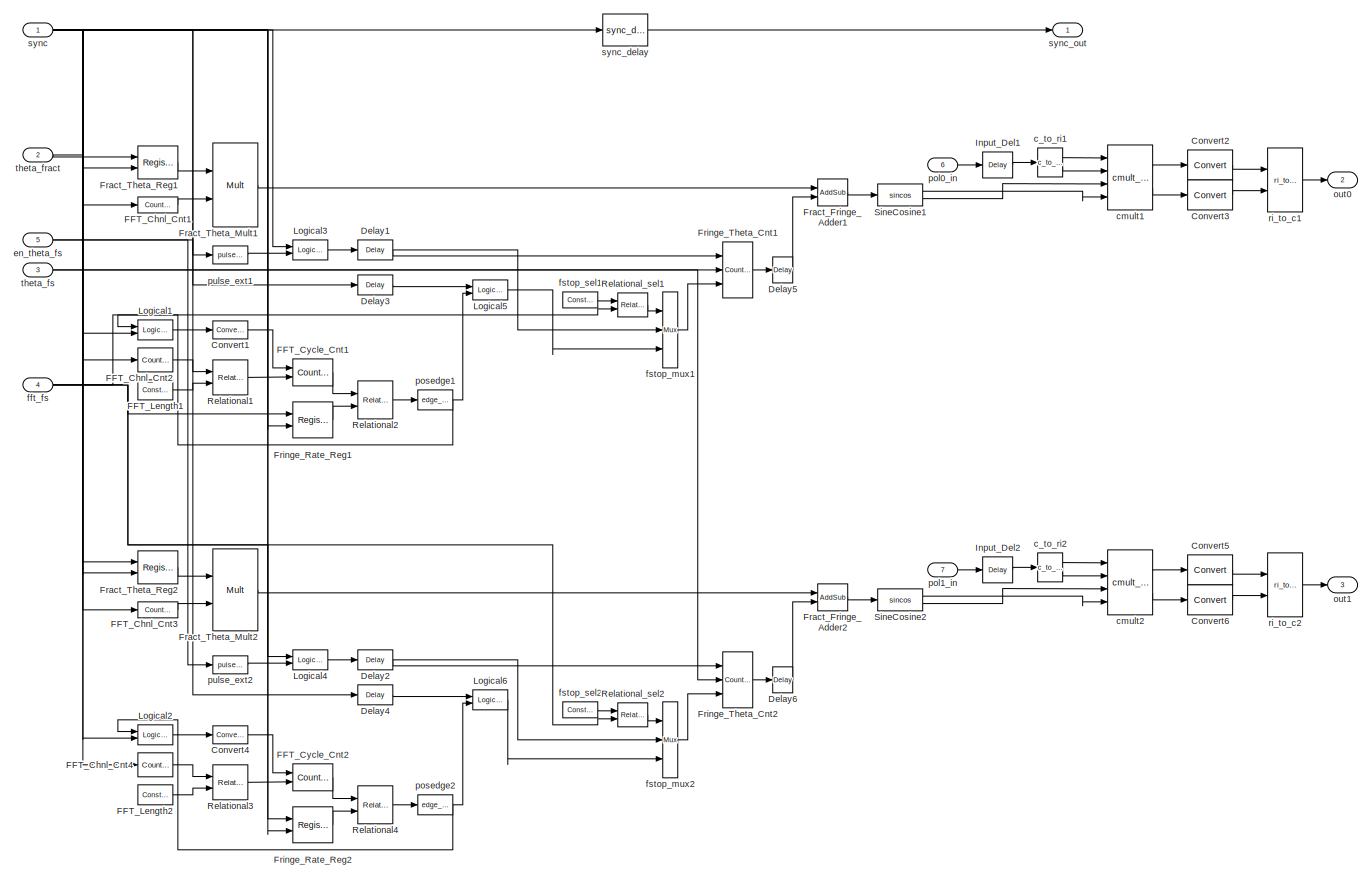
[diagram: finedelay_fstop_prog - part 1/1, most of the canvas]
BLOCK [SubSystem] finedelay_fstop_prog
  FunctionWithSeparateData = off
  MaskCallbackString = |||||
  MaskEnableString = on,on,on,on,on,on
  MaskHideContents = off
  MaskIconFrame = on
  MaskIconOpaque = on
  MaskIconRotate = none
  MaskIconUnits = autoscale
  MaskInitialization = finedelay_fstop_prog_init(gcb,...\n    'n_input',n_input,...\n    'fft_len',fft_len,...\n    'fft_bits',fft_bits,...\n    'theta_bits',theta_bits,...\n    'sine_cos_bits',sine_cos_bits,...\n    'fft_cycle_bits',fft_cycle_bits);
  MaskPromptString = Number of Simultaneous Inputs|Number Of FFT Channels|FFT Input Bit Width|Sine-Cos LUT Input Bitwidth (Determines the resolution of phase)|Sine-Cos LUT Output Data Width|Maximum Number of FFT cycles  (Rate of change of Fringe ) = 2 ^ ?
  MaskStyleString = edit,edit,edit,edit,edit,edit
  MaskToolTipString = on,on,on,on,on,on
  MaskTunableValueString = on,on,on,on,on,on
  MaskType = finedelay_fstop_prog
  MaskValueString = 2|512|18|14|18|12
  MaskVariables = n_input=@1;fft_len=@2;fft_bits=@3;theta_bits=@4;sine_cos_bits=@5;fft_cycle_bits=@6;
  MaskVisibilityString = on,on,on,on,on,on
  MinAlgLoopOccurrences = off
  Opaque = off
  Ports = [7, 3]
  PropExecContextOutsideSubsystem = off
  RTWSystemCode = Auto
  UserData = DataTag12
  UserDataPersistent = on
BLOCK [Reference] finedelay_fstop_prog/Convert1  REF=xbsIndex_r4/Convert
  Ports = [1, 1]
  SourceBlock = xbsIndex_r4/Convert
  SourceType = Xilinx Type Converter Block
  arith_type = Boolean
  bin_pt = 14
  block_type = convert
  block_version = 10.1.3
  dbl_ovrd = off
  en = off
  exp_bits = 8
  float_type = Single
  fraction_bits = 24
  gui_display_data_type = Fixed-point
  has_advanced_control = 0
  infoedit = Hardware notes: rounding and saturating require hardware resources; truncating and wrapping do not.
  latency = 0
  n_bits = 16
  overflow = Wrap
  pipeline = off
  quantization = Truncate
  sg_icon_stat = 35,18,1,1,white,blue,0,edca21da,right,,[ ],[ ]
  sggui_pos = -1,-1,-1,-1
  xl_area = [0,0,0,0,0,0,0]
  xl_use_area = off
BLOCK [Reference] finedelay_fstop_prog/Convert2  REF=xbsIndex_r4/Convert
  Ports = [1, 1]
  SourceBlock = xbsIndex_r4/Convert
  SourceType = Xilinx Type Converter Block
  arith_type = Signed  (2's comp)
  bin_pt = fft_bits-1
  block_type = convert
  block_version = 10.1.3
  dbl_ovrd = off
  en = off
  exp_bits = 8
  float_type = Single
  fraction_bits = 24
  gui_display_data_type = Fixed-point
  has_advanced_control = 0
  infoedit = Hardware notes: rounding and saturating require hardware resources; truncating and wrapping do not.
  latency = 0
  n_bits = fft_bits
  overflow = Wrap
  pipeline = off
  quantization = Truncate
  sg_icon_stat = 45,30,1,1,white,blue,0,edca21da,right,,[ ],[ ]
  sggui_pos = -1,-1,-1,-1
  xl_area = [0,0,0,0,0,0,0]
  xl_use_area = off
BLOCK [Reference] finedelay_fstop_prog/Convert3  REF=xbsIndex_r4/Convert
  Ports = [1, 1]
  SourceBlock = xbsIndex_r4/Convert
  SourceType = Xilinx Type Converter Block
  arith_type = Signed  (2's comp)
  bin_pt = fft_bits-1
  block_type = convert
  block_version = 10.1.3
  dbl_ovrd = off
  en = off
  exp_bits = 8
  float_type = Single
  fraction_bits = 24
  gui_display_data_type = Fixed-point
  has_advanced_control = 0
  infoedit = Hardware notes: rounding and saturating require hardware resources; truncating and wrapping do not.
  latency = 0
  n_bits = fft_bits
  overflow = Wrap
  pipeline = off
  quantization = Truncate
  sg_icon_stat = 45,30,1,1,white,blue,0,edca21da,right,,[ ],[ ]
  sggui_pos = -1,-1,-1,-1
  xl_area = [0,0,0,0,0,0,0]
  xl_use_area = off
BLOCK [Reference] finedelay_fstop_prog/Convert4  REF=xbsIndex_r4/Convert
  Ports = [1, 1]
  SourceBlock = xbsIndex_r4/Convert
  SourceType = Xilinx Type Converter Block
  arith_type = Boolean
  bin_pt = 14
  block_type = convert
  block_version = 10.1.3
  dbl_ovrd = off
  en = off
  exp_bits = 8
  float_type = Single
  fraction_bits = 24
  gui_display_data_type = Fixed-point
  has_advanced_control = 0
  infoedit = Hardware notes: rounding and saturating require hardware resources; truncating and wrapping do not.
  latency = 0
  n_bits = 16
  overflow = Wrap
  pipeline = off
  quantization = Truncate
  sg_icon_stat = 35,18,1,1,white,blue,0,edca21da,right,,[ ],[ ]
  sggui_pos = -1,-1,-1,-1
  xl_area = [0,0,0,0,0,0,0]
  xl_use_area = off
BLOCK [Reference] finedelay_fstop_prog/Convert5  REF=xbsIndex_r4/Convert
  Ports = [1, 1]
  SourceBlock = xbsIndex_r4/Convert
  SourceType = Xilinx Type Converter Block
  arith_type = Signed  (2's comp)
  bin_pt = fft_bits-1
  block_type = convert
  block_version = 10.1.3
  dbl_ovrd = off
  en = off
  exp_bits = 8
  float_type = Single
  fraction_bits = 24
  gui_display_data_type = Fixed-point
  has_advanced_control = 0
  infoedit = Hardware notes: rounding and saturating require hardware resources; truncating and wrapping do not.
  latency = 0
  n_bits = fft_bits
  overflow = Wrap
  pipeline = off
  quantization = Truncate
  sg_icon_stat = 45,30,1,1,white,blue,0,edca21da,right,,[ ],[ ]
  sggui_pos = -1,-1,-1,-1
  xl_area = [0,0,0,0,0,0,0]
  xl_use_area = off
BLOCK [Reference] finedelay_fstop_prog/Convert6  REF=xbsIndex_r4/Convert
  Ports = [1, 1]
  SourceBlock = xbsIndex_r4/Convert
  SourceType = Xilinx Type Converter Block
  arith_type = Signed  (2's comp)
  bin_pt = fft_bits-1
  block_type = convert
  block_version = 10.1.3
  dbl_ovrd = off
  en = off
  exp_bits = 8
  float_type = Single
  fraction_bits = 24
  gui_display_data_type = Fixed-point
  has_advanced_control = 0
  infoedit = Hardware notes: rounding and saturating require hardware resources; truncating and wrapping do not.
  latency = 0
  n_bits = fft_bits
  overflow = Wrap
  pipeline = off
  quantization = Truncate
  sg_icon_stat = 45,30,1,1,white,blue,0,edca21da,right,,[ ],[ ]
  sggui_pos = -1,-1,-1,-1
  xl_area = [0,0,0,0,0,0,0]
  xl_use_area = off
BLOCK [Reference] finedelay_fstop_prog/Delay1  REF=xbsIndex_r4/Delay
  Ports = [1, 1]
  SourceBlock = xbsIndex_r4/Delay
  SourceType = Xilinx Delay Block
  block_type = delay
  block_version = 10.1.3
  dbl_ovrd = off
  en = off
  has_advanced_control = 0
  infoedit = Hardware notes: A delay line is a chain, each link of which is an SRL16 followed by a flip-flop.
  infoeditControl = Selection of Reset will increase slice count due to use of real FFs and instead of SRLs
  latency = 1
  reg_retiming = on
  rst = off
  sg_icon_stat = 35,20,1,1,white,blue,0,07b98262,right,,[ ],[ ]
  sggui_pos = -1,-1,-1,-1
  xl_area = [0,0,0,0,0,0,0]
  xl_use_area = off
BLOCK [Reference] finedelay_fstop_prog/Delay2  REF=xbsIndex_r4/Delay
  Ports = [1, 1]
  SourceBlock = xbsIndex_r4/Delay
  SourceType = Xilinx Delay Block
  block_type = delay
  block_version = 10.1.3
  dbl_ovrd = off
  en = off
  has_advanced_control = 0
  infoedit = Hardware notes: A delay line is a chain, each link of which is an SRL16 followed by a flip-flop.
  infoeditControl = Selection of Reset will increase slice count due to use of real FFs and instead of SRLs
  latency = 1
  reg_retiming = on
  rst = off
  sg_icon_stat = 35,20,1,1,white,blue,0,07b98262,right,,[ ],[ ]
  sggui_pos = -1,-1,-1,-1
  xl_area = [0,0,0,0,0,0,0]
  xl_use_area = off
BLOCK [Reference] finedelay_fstop_prog/Delay3  REF=xbsIndex_r4/Delay
  Ports = [1, 1]
  SourceBlock = xbsIndex_r4/Delay
  SourceType = Xilinx Delay Block
  block_type = delay
  block_version = 10.1.3
  dbl_ovrd = off
  en = off
  has_advanced_control = 0
  infoedit = Hardware notes: A delay line is a chain, each link of which is an SRL16 followed by a flip-flop.
  infoeditControl = Selection of Reset will increase slice count due to use of real FFs and instead of SRLs
  latency = 1
  reg_retiming = on
  rst = off
  sg_icon_stat = 35,20,1,1,white,blue,0,07b98262,right,,[ ],[ ]
  sggui_pos = -1,-1,-1,-1
  xl_area = [0,0,0,0,0,0,0]
  xl_use_area = off
BLOCK [Reference] finedelay_fstop_prog/Delay4  REF=xbsIndex_r4/Delay
  Ports = [1, 1]
  SourceBlock = xbsIndex_r4/Delay
  SourceType = Xilinx Delay Block
  block_type = delay
  block_version = 10.1.3
  dbl_ovrd = off
  en = off
  has_advanced_control = 0
  infoedit = Hardware notes: A delay line is a chain, each link of which is an SRL16 followed by a flip-flop.
  infoeditControl = Selection of Reset will increase slice count due to use of real FFs and instead of SRLs
  latency = 1
  reg_retiming = on
  rst = off
  sg_icon_stat = 35,20,1,1,white,blue,0,07b98262,right,,[ ],[ ]
  sggui_pos = -1,-1,-1,-1
  xl_area = [0,0,0,0,0,0,0]
  xl_use_area = off
BLOCK [Reference] finedelay_fstop_prog/Delay5  REF=xbsIndex_r4/Delay
  Ports = [1, 1]
  SourceBlock = xbsIndex_r4/Delay
  SourceType = Xilinx Delay Block
  block_type = delay
  block_version = 10.1.3
  dbl_ovrd = off
  en = off
  has_advanced_control = 0
  infoedit = Hardware notes: A delay line is a chain, each link of which is an SRL16 followed by a flip-flop.
  infoeditControl = Selection of Reset will increase slice count due to use of real FFs and instead of SRLs
  latency = 2
  reg_retiming = on
  rst = off
  sg_icon_stat = 20,26,1,1,white,blue,0,85ce9542,right,,[ ],[ ]
  sg_mask_display = fprintf('','COMMENT: begin icon graphics');\npatch([0 20 20 0 0 ],[0 0 26 26 0 ],[0.77 0.82 0.91 ]);\nplot([0 20 20 0 0 ],[0 0 26 26 0 ]);\npatch([5.55 8.44 10.44 12.44 14.44 10.44 7.55 5.55 ],[15.22 15.22 17.22 15.22 17.22 17.22 17.22 15.22 ],[1 1 1 ]);\npatch([7.55 10.44 8.44 5.55 7.55 ],[13.22 13.22 15.22 15.22 13.22 ],[0.931 0.946 0.973 ]);\npatch([5.55 8.44 10.44 7.55 5.55 ],[11.22 11.22 13.2...<+312ch>
  sggui_pos = -1,-1,-1,-1
  xl_area = [0,0,0,0,0,0,0]
  xl_use_area = off
BLOCK [Reference] finedelay_fstop_prog/Delay6  REF=xbsIndex_r4/Delay
  Ports = [1, 1]
  SourceBlock = xbsIndex_r4/Delay
  SourceType = Xilinx Delay Block
  block_type = delay
  block_version = 10.1.3
  dbl_ovrd = off
  en = off
  has_advanced_control = 0
  infoedit = Hardware notes: A delay line is a chain, each link of which is an SRL16 followed by a flip-flop.
  infoeditControl = Selection of Reset will increase slice count due to use of real FFs and instead of SRLs
  latency = 2
  reg_retiming = on
  rst = off
  sg_icon_stat = 20,26,1,1,white,blue,0,85ce9542,right,,[ ],[ ]
  sg_mask_display = fprintf('','COMMENT: begin icon graphics');\npatch([0 20 20 0 0 ],[0 0 26 26 0 ],[0.77 0.82 0.91 ]);\nplot([0 20 20 0 0 ],[0 0 26 26 0 ]);\npatch([5.55 8.44 10.44 12.44 14.44 10.44 7.55 5.55 ],[15.22 15.22 17.22 15.22 17.22 17.22 17.22 15.22 ],[1 1 1 ]);\npatch([7.55 10.44 8.44 5.55 7.55 ],[13.22 13.22 15.22 15.22 13.22 ],[0.931 0.946 0.973 ]);\npatch([5.55 8.44 10.44 7.55 5.55 ],[11.22 11.22 13.2...<+312ch>
  sggui_pos = -1,-1,-1,-1
  xl_area = [0,0,0,0,0,0,0]
  xl_use_area = off
BLOCK [Reference] finedelay_fstop_prog/FFT_Chnl_Cnt1  REF=xbsIndex_r4/Counter
  Ports = [1, 1]
  SourceBlock = xbsIndex_r4/Counter
  SourceType = Xilinx Counter Block
  arith_type = Unsigned
  bin_pt = 0
  block_type = counter
  block_version = 10.1.3
  cnt_by_val = 2
  cnt_to = Inf
  cnt_type = Free Running
  dbl_ovrd = off
  en = off
  explicit_period = on
  has_advanced_control = 0
  implementation = Fabric
  infoedit = Hardware notes: Free running counters are the least expensive in hardware.  A count limited counter is implemented by combining a counter with a comparator.
  load_pin = off
  n_bits = 9
  operation = Up
  period = 1
  rst = on
  sg_icon_stat = 40,16,1,1,white,blue,0,803eba70,right,,[ ],[ ]
  sggui_pos = -1,-1,-1,-1
  start_count = 0
  use_behavioral_HDL = on
  use_rpm = off
  xl_area = [0,0,0,0,0,0,0]
  xl_use_area = off
BLOCK [Reference] finedelay_fstop_prog/FFT_Chnl_Cnt2  REF=xbsIndex_r4/Counter
  Ports = [1, 1]
  SourceBlock = xbsIndex_r4/Counter
  SourceType = Xilinx Counter Block
  arith_type = Unsigned
  bin_pt = 0
  block_type = counter
  block_version = 10.1.3
  cnt_by_val = 1
  cnt_to = Inf
  cnt_type = Free Running
  dbl_ovrd = off
  en = off
  explicit_period = on
  has_advanced_control = 0
  implementation = Fabric
  infoedit = Hardware notes: Free running counters are the least expensive in hardware.  A count limited counter is implemented by combining a counter with a comparator.
  load_pin = off
  n_bits = 8
  operation = Up
  period = 1
  rst = on
  sg_icon_stat = 35,24,1,1,white,blue,0,803eba70,right,,[ ],[ ]
  sggui_pos = -1,-1,-1,-1
  start_count = 0
  use_behavioral_HDL = on
  use_rpm = off
  xl_area = [0,0,0,0,0,0,0]
  xl_use_area = off
BLOCK [Reference] finedelay_fstop_prog/FFT_Chnl_Cnt3  REF=xbsIndex_r4/Counter
  Ports = [1, 1]
  SourceBlock = xbsIndex_r4/Counter
  SourceType = Xilinx Counter Block
  arith_type = Unsigned
  bin_pt = 0
  block_type = counter
  block_version = 10.1.3
  cnt_by_val = 2
  cnt_to = Inf
  cnt_type = Free Running
  dbl_ovrd = off
  en = off
  explicit_period = on
  has_advanced_control = 0
  implementation = Fabric
  infoedit = Hardware notes: Free running counters are the least expensive in hardware.  A count limited counter is implemented by combining a counter with a comparator.
  load_pin = off
  n_bits = 9
  operation = Up
  period = 1
  rst = on
  sg_icon_stat = 40,16,1,1,white,blue,0,803eba70,right,,[ ],[ ]
  sggui_pos = -1,-1,-1,-1
  start_count = 1
  use_behavioral_HDL = on
  use_rpm = off
  xl_area = [0,0,0,0,0,0,0]
  xl_use_area = off
BLOCK [Reference] finedelay_fstop_prog/FFT_Chnl_Cnt4  REF=xbsIndex_r4/Counter
  Ports = [1, 1]
  SourceBlock = xbsIndex_r4/Counter
  SourceType = Xilinx Counter Block
  arith_type = Unsigned
  bin_pt = 0
  block_type = counter
  block_version = 10.1.3
  cnt_by_val = 1
  cnt_to = Inf
  cnt_type = Free Running
  dbl_ovrd = off
  en = off
  explicit_period = on
  has_advanced_control = 0
  implementation = Fabric
  infoedit = Hardware notes: Free running counters are the least expensive in hardware.  A count limited counter is implemented by combining a counter with a comparator.
  load_pin = off
  n_bits = 8
  operation = Up
  period = 1
  rst = on
  sg_icon_stat = 35,24,1,1,white,blue,0,803eba70,right,,[ ],[ ]
  sggui_pos = -1,-1,-1,-1
  start_count = 0
  use_behavioral_HDL = on
  use_rpm = off
  xl_area = [0,0,0,0,0,0,0]
  xl_use_area = off
BLOCK [Reference] finedelay_fstop_prog/FFT_Cycle_Cnt1  REF=xbsIndex_r4/Counter
  Ports = [2, 1]
  SourceBlock = xbsIndex_r4/Counter
  SourceType = Xilinx Counter Block
  arith_type = Unsigned
  bin_pt = 0
  block_type = counter
  block_version = 10.1.3
  cnt_by_val = 1
  cnt_to = Inf
  cnt_type = Free Running
  dbl_ovrd = off
  en = on
  explicit_period = on
  has_advanced_control = 0
  implementation = Fabric
  infoedit = Hardware notes: Free running counters are the least expensive in hardware.  A count limited counter is implemented by combining a counter with a comparator.
  load_pin = off
  n_bits = 12
  operation = Up
  period = 1
  rst = on
  sg_icon_stat = 40,27,2,1,white,blue,0,ae3608d6,right,,[ ],[ ]
  sggui_pos = -1,-1,-1,-1
  start_count = 0
  use_behavioral_HDL = on
  use_rpm = off
  xl_area = [0,0,0,0,0,0,0]
  xl_use_area = off
BLOCK [Reference] finedelay_fstop_prog/FFT_Cycle_Cnt2  REF=xbsIndex_r4/Counter
  Ports = [2, 1]
  SourceBlock = xbsIndex_r4/Counter
  SourceType = Xilinx Counter Block
  arith_type = Unsigned
  bin_pt = 0
  block_type = counter
  block_version = 10.1.3
  cnt_by_val = 1
  cnt_to = Inf
  cnt_type = Free Running
  dbl_ovrd = off
  en = on
  explicit_period = on
  has_advanced_control = 0
  implementation = Fabric
  infoedit = Hardware notes: Free running counters are the least expensive in hardware.  A count limited counter is implemented by combining a counter with a comparator.
  load_pin = off
  n_bits = 12
  operation = Up
  period = 1
  rst = on
  sg_icon_stat = 40,27,2,1,white,blue,0,ae3608d6,right,,[ ],[ ]
  sggui_pos = -1,-1,-1,-1
  start_count = 0
  use_behavioral_HDL = on
  use_rpm = off
  xl_area = [0,0,0,0,0,0,0]
  xl_use_area = off
BLOCK [Reference] finedelay_fstop_prog/FFT_Length1  REF=xbsIndex_r4/Constant
  Ports = [0, 1]
  SourceBlock = xbsIndex_r4/Constant
  SourceType = Xilinx Constant Block Block
  arith_type = Unsigned
  bin_pt = 0
  block_type = constant
  block_version = 10.1.3
  carry = CIN
  const = 255
  dbl_ovrd = off
  dsp48_infoedit = The use of this block for DSP48 instructions is deprecated.  Please use the Opmode block.
  equ = P=C
  exp_width = 8
  explicit_period = on
  frac_width = 24
  gui_display_data_type = Fixed-point
  has_advanced_control = 0
  inp1 = P
  inp2 = PCIN>>17
  n_bits = 8
  opr = +
  opselect = C
  period = 1
  preci_type = Single
  sg_icon_stat = 35,20,0,1,white,blue,0,13fa6234,right,,[ ],[ ]
  sg_mask_display = fprintf('','COMMENT: begin icon graphics');\npatch([0 35 35 0 0 ],[0 0 20 20 0 ],[0.77 0.82 0.91 ]);\nplot([0 35 35 0 0 ],[0 0 20 20 0 ]);\npatch([12.55 15.44 17.44 19.44 21.44 17.44 14.55 12.55 ],[12.22 12.22 14.22 12.22 14.22 14.22 14.22 12.22 ],[1 1 1 ]);\npatch([14.55 17.44 15.44 12.55 14.55 ],[10.22 10.22 12.22 12.22 10.22 ],[0.931 0.946 0.973 ]);\npatch([12.55 15.44 17.44 14.55 12.55 ],[8.22...<+317ch>
  sggui_pos = -1,-1,-1,-1
BLOCK [Reference] finedelay_fstop_prog/FFT_Length2  REF=xbsIndex_r4/Constant
  Ports = [0, 1]
  SourceBlock = xbsIndex_r4/Constant
  SourceType = Xilinx Constant Block Block
  arith_type = Unsigned
  bin_pt = 0
  block_type = constant
  block_version = 10.1.3
  carry = CIN
  const = 255
  dbl_ovrd = off
  dsp48_infoedit = The use of this block for DSP48 instructions is deprecated.  Please use the Opmode block.
  equ = P=C
  exp_width = 8
  explicit_period = on
  frac_width = 24
  gui_display_data_type = Fixed-point
  has_advanced_control = 0
  inp1 = P
  inp2 = PCIN>>17
  n_bits = 8
  opr = +
  opselect = C
  period = 1
  preci_type = Single
  sg_icon_stat = 35,20,0,1,white,blue,0,13fa6234,right,,[ ],[ ]
  sg_mask_display = fprintf('','COMMENT: begin icon graphics');\npatch([0 35 35 0 0 ],[0 0 20 20 0 ],[0.77 0.82 0.91 ]);\nplot([0 35 35 0 0 ],[0 0 20 20 0 ]);\npatch([12.55 15.44 17.44 19.44 21.44 17.44 14.55 12.55 ],[12.22 12.22 14.22 12.22 14.22 14.22 14.22 12.22 ],[1 1 1 ]);\npatch([14.55 17.44 15.44 12.55 14.55 ],[10.22 10.22 12.22 12.22 10.22 ],[0.931 0.946 0.973 ]);\npatch([12.55 15.44 17.44 14.55 12.55 ],[8.22...<+317ch>
  sggui_pos = -1,-1,-1,-1
BLOCK [Reference] finedelay_fstop_prog/Fract_Fringe_Adder1  REF=xbsIndex_r4/AddSub
  Ports = [2, 1]
  SourceBlock = xbsIndex_r4/AddSub
  SourceType = Xilinx Adder/Subtracter Block
  arith_type = Unsigned
  bin_pt = 0
  block_type = addsub
  block_version = 10.1.3
  dbl_ovrd = off
  en = off
  has_advanced_control = 0
  hw_selection = Fabric
  latency = 2
  mode = Addition
  n_bits = 14
  overflow = Wrap
  pipelined = off
  precision = User Defined
  quantization = Truncate
  sg_icon_stat = 30,27,2,1,white,blue,0,dcac4ee3,right,,[ ],[ ]
  sg_mask_display = fprintf('','COMMENT: begin icon graphics');\npatch([0 30 30 0 0 ],[0 0 27 27 0 ],[0.77 0.82 0.91 ]);\nplot([0 30 30 0 0 ],[0 0 27 27 0 ]);\npatch([8.325 12.66 15.66 18.66 21.66 15.66 11.325 8.325 ],[16.33 16.33 19.33 16.33 19.33 19.33 19.33 16.33 ],[1 1 1 ]);\npatch([11.325 15.66 12.66 8.325 11.325 ],[13.33 13.33 16.33 16.33 13.33 ],[0.931 0.946 0.973 ]);\npatch([8.325 12.66 15.66 11.325 8.325 ],[...<+552ch>
  sggui_pos = -1,-1,-1,-1
  use_behavioral_HDL = off
  use_carryin = off
  use_carryout = off
  use_rpm = on
  xl_area = [0,0,0,0,0,0,0]
  xl_use_area = off
BLOCK [Reference] finedelay_fstop_prog/Fract_Fringe_Adder2  REF=xbsIndex_r4/AddSub
  Ports = [2, 1]
  SourceBlock = xbsIndex_r4/AddSub
  SourceType = Xilinx Adder/Subtracter Block
  arith_type = Unsigned
  bin_pt = 0
  block_type = addsub
  block_version = 10.1.3
  dbl_ovrd = off
  en = off
  has_advanced_control = 0
  hw_selection = Fabric
  latency = 2
  mode = Addition
  n_bits = 14
  overflow = Wrap
  pipelined = off
  precision = User Defined
  quantization = Truncate
  sg_icon_stat = 30,27,2,1,white,blue,0,dcac4ee3,right,,[ ],[ ]
  sg_mask_display = fprintf('','COMMENT: begin icon graphics');\npatch([0 30 30 0 0 ],[0 0 27 27 0 ],[0.77 0.82 0.91 ]);\nplot([0 30 30 0 0 ],[0 0 27 27 0 ]);\npatch([8.325 12.66 15.66 18.66 21.66 15.66 11.325 8.325 ],[16.33 16.33 19.33 16.33 19.33 19.33 19.33 16.33 ],[1 1 1 ]);\npatch([11.325 15.66 12.66 8.325 11.325 ],[13.33 13.33 16.33 16.33 13.33 ],[0.931 0.946 0.973 ]);\npatch([8.325 12.66 15.66 11.325 8.325 ],[...<+552ch>
  sggui_pos = -1,-1,-1,-1
  use_behavioral_HDL = off
  use_carryin = off
  use_carryout = off
  use_rpm = on
  xl_area = [0,0,0,0,0,0,0]
  xl_use_area = off
BLOCK [Reference] finedelay_fstop_prog/Fract_Theta_Mult1  REF=xbsIndex_r4/Mult
  Ports = [2, 1]
  SourceBlock = xbsIndex_r4/Mult
  SourceType = Xilinx Multiplier Block
  arith_type = Unsigned
  bin_pt = 0
  block_type = mult
  block_version = 10.1.3
  dbl_ovrd = off
  en = off
  has_advanced_control = 0
  infoedit = Hardware notes: To use the internal pipeline stage of the dedicated multiplier you must select 'Pipeline for maximum performance'.
  latency = 3
  n_bits = 14
  opt = Speed
  optimum_pipeline = off
  overflow = Wrap
  pipeline = on
  placement_style = Triangular
  precision = User Defined
  quantization = Truncate
  sg_icon_stat = 45,84,2,1,white,blue,0,7028354c,right,,[ ],[ ]
  sg_mask_display = fprintf('','COMMENT: begin icon graphics');\npatch([0 45 45 0 0 ],[0 0 84 84 0 ],[0.77 0.82 0.91 ]);\nplot([0 45 45 0 0 ],[0 0 84 84 0 ]);\npatch([8.65 17.32 23.32 29.32 35.32 23.32 14.65 8.65 ],[48.66 48.66 54.66 48.66 54.66 54.66 54.66 48.66 ],[1 1 1 ]);\npatch([14.65 23.32 17.32 8.65 14.65 ],[42.66 42.66 48.66 48.66 42.66 ],[0.931 0.946 0.973 ]);\npatch([8.65 17.32 23.32 14.65 8.65 ],[36.66 36....<+522ch>
  sggui_pos = -1,-1,-1,-1
  use_behavioral_HDL = off
  use_embedded = on
  use_rpm = on
  xl_area = [0,0,0,0,0,0,0]
  xl_use_area = off
BLOCK [Reference] finedelay_fstop_prog/Fract_Theta_Mult2  REF=xbsIndex_r4/Mult
  Ports = [2, 1]
  SourceBlock = xbsIndex_r4/Mult
  SourceType = Xilinx Multiplier Block
  arith_type = Unsigned
  bin_pt = 0
  block_type = mult
  block_version = 10.1.3
  dbl_ovrd = off
  en = off
  has_advanced_control = 0
  infoedit = Hardware notes: To use the internal pipeline stage of the dedicated multiplier you must select 'Pipeline for maximum performance'.
  latency = 3
  n_bits = 14
  opt = Speed
  optimum_pipeline = off
  overflow = Wrap
  pipeline = on
  placement_style = Triangular
  precision = User Defined
  quantization = Truncate
  sg_icon_stat = 45,82,2,1,white,blue,0,7028354c,right,,[ ],[ ]
  sg_mask_display = fprintf('','COMMENT: begin icon graphics');\npatch([0 45 45 0 0 ],[0 0 82 82 0 ],[0.77 0.82 0.91 ]);\nplot([0 45 45 0 0 ],[0 0 82 82 0 ]);\npatch([8.65 17.32 23.32 29.32 35.32 23.32 14.65 8.65 ],[47.66 47.66 53.66 47.66 53.66 53.66 53.66 47.66 ],[1 1 1 ]);\npatch([14.65 23.32 17.32 8.65 14.65 ],[41.66 41.66 47.66 47.66 41.66 ],[0.931 0.946 0.973 ]);\npatch([8.65 17.32 23.32 14.65 8.65 ],[35.66 35....<+522ch>
  sggui_pos = -1,-1,-1,-1
  use_behavioral_HDL = off
  use_embedded = on
  use_rpm = on
  xl_area = [0,0,0,0,0,0,0]
  xl_use_area = off
BLOCK [Reference] finedelay_fstop_prog/Fract_Theta_Reg1  REF=xbsIndex_r4/Register
  Ports = [2, 1]
  SourceBlock = xbsIndex_r4/Register
  SourceType = Xilinx Register Block
  block_type = register
  block_version = 10.1.3
  dbl_ovrd = off
  en = on
  has_advanced_control = 0
  init = 0
  rst = off
  sg_icon_stat = 40,33,2,1,white,blue,0,6bd0930c,right,,[ ],[ ]
  sg_mask_display = fprintf('','COMMENT: begin icon graphics');\npatch([0 40 40 0 0 ],[0 0 33 33 0 ],[0.77 0.82 0.91 ]);\nplot([0 40 40 0 0 ],[0 0 33 33 0 ]);\npatch([11.1 16.88 20.88 24.88 28.88 20.88 15.1 11.1 ],[20.44 20.44 24.44 20.44 24.44 24.44 24.44 20.44 ],[1 1 1 ]);\npatch([15.1 20.88 16.88 11.1 15.1 ],[16.44 16.44 20.44 20.44 16.44 ],[0.931 0.946 0.973 ]);\npatch([11.1 16.88 20.88 15.1 11.1 ],[12.44 12.44 1...<+445ch>
  sggui_pos = -1,-1,-1,-1
  xl_area = [0,0,0,0,0,0,0]
  xl_use_area = off
BLOCK [Reference] finedelay_fstop_prog/Fract_Theta_Reg2  REF=xbsIndex_r4/Register
  Ports = [2, 1]
  SourceBlock = xbsIndex_r4/Register
  SourceType = Xilinx Register Block
  block_type = register
  block_version = 10.1.3
  dbl_ovrd = off
  en = on
  has_advanced_control = 0
  init = 0
  rst = off
  sg_icon_stat = 40,33,2,1,white,blue,0,6bd0930c,right,,[ ],[ ]
  sg_mask_display = fprintf('','COMMENT: begin icon graphics');\npatch([0 40 40 0 0 ],[0 0 33 33 0 ],[0.77 0.82 0.91 ]);\nplot([0 40 40 0 0 ],[0 0 33 33 0 ]);\npatch([11.1 16.88 20.88 24.88 28.88 20.88 15.1 11.1 ],[20.44 20.44 24.44 20.44 24.44 24.44 24.44 20.44 ],[1 1 1 ]);\npatch([15.1 20.88 16.88 11.1 15.1 ],[16.44 16.44 20.44 20.44 16.44 ],[0.931 0.946 0.973 ]);\npatch([11.1 16.88 20.88 15.1 11.1 ],[12.44 12.44 1...<+445ch>
  sggui_pos = -1,-1,-1,-1
  xl_area = [0,0,0,0,0,0,0]
  xl_use_area = off
BLOCK [Reference] finedelay_fstop_prog/Fringe_Rate_Reg1  REF=xbsIndex_r4/Register
  Ports = [2, 1]
  SourceBlock = xbsIndex_r4/Register
  SourceType = Xilinx Register Block
  block_type = register
  block_version = 10.1.3
  dbl_ovrd = off
  en = on
  has_advanced_control = 0
  init = 0
  rst = off
  sg_icon_stat = 40,36,2,1,white,blue,0,6bd0930c,right,,[ ],[ ]
  sggui_pos = -1,-1,-1,-1
  xl_area = [0,0,0,0,0,0,0]
  xl_use_area = off
BLOCK [Reference] finedelay_fstop_prog/Fringe_Rate_Reg2  REF=xbsIndex_r4/Register
  Ports = [2, 1]
  SourceBlock = xbsIndex_r4/Register
  SourceType = Xilinx Register Block
  block_type = register
  block_version = 10.1.3
  dbl_ovrd = off
  en = on
  has_advanced_control = 0
  init = 0
  rst = off
  sg_icon_stat = 40,36,2,1,white,blue,0,6bd0930c,right,,[ ],[ ]
  sggui_pos = -1,-1,-1,-1
  xl_area = [0,0,0,0,0,0,0]
  xl_use_area = off
BLOCK [Reference] finedelay_fstop_prog/Fringe_Theta_Cnt1  REF=xbsIndex_r4/Counter
  Ports = [3, 1]
  SourceBlock = xbsIndex_r4/Counter
  SourceType = Xilinx Counter Block
  arith_type = Unsigned
  bin_pt = 0
  block_type = counter
  block_version = 10.1.3
  cnt_by_val = 1
  cnt_to = Inf
  cnt_type = Free Running
  dbl_ovrd = off
  en = on
  explicit_period = on
  has_advanced_control = 0
  implementation = Fabric
  infoedit = Hardware notes: Free running counters are the least expensive in hardware.  A count limited counter is implemented by combining a counter with a comparator.
  load_pin = on
  n_bits = 14
  operation = Up
  period = 1
  rst = off
  sg_icon_stat = 30,56,3,1,white,blue,0,4f561634,right,,[ ],[ ]
  sggui_pos = -1,-1,-1,-1
  start_count = 0
  use_behavioral_HDL = on
  use_rpm = off
  xl_area = [0,0,0,0,0,0,0]
  xl_use_area = off
BLOCK [Reference] finedelay_fstop_prog/Fringe_Theta_Cnt2  REF=xbsIndex_r4/Counter
  Ports = [3, 1]
  SourceBlock = xbsIndex_r4/Counter
  SourceType = Xilinx Counter Block
  arith_type = Unsigned
  bin_pt = 0
  block_type = counter
  block_version = 10.1.3
  cnt_by_val = 1
  cnt_to = Inf
  cnt_type = Free Running
  dbl_ovrd = off
  en = on
  explicit_period = on
  has_advanced_control = 0
  implementation = Fabric
  infoedit = Hardware notes: Free running counters are the least expensive in hardware.  A count limited counter is implemented by combining a counter with a comparator.
  load_pin = on
  n_bits = 14
  operation = Up
  period = 1
  rst = off
  sg_icon_stat = 30,56,3,1,white,blue,0,4f561634,right,,[ ],[ ]
  sggui_pos = -1,-1,-1,-1
  start_count = 0
  use_behavioral_HDL = on
  use_rpm = off
  xl_area = [0,0,0,0,0,0,0]
  xl_use_area = off
BLOCK [Reference] finedelay_fstop_prog/Input_Del1  REF=xbsIndex_r4/Delay
  Ports = [1, 1]
  SourceBlock = xbsIndex_r4/Delay
  SourceType = Xilinx Delay Block
  block_type = delay
  block_version = 10.1.3
  dbl_ovrd = off
  en = off
  has_advanced_control = 0
  infoedit = Hardware notes: A delay line is a chain, each link of which is an SRL16 followed by a flip-flop.
  infoeditControl = Selection of Reset will increase slice count due to use of real FFs and instead of SRLs
  latency = 7
  reg_retiming = on
  rst = off
  sg_icon_stat = 30,26,1,1,white,blue,0,d93bb731,right,,[ ],[ ]
  sg_mask_display = fprintf('','COMMENT: begin icon graphics');\npatch([0 30 30 0 0 ],[0 0 26 26 0 ],[0.77 0.82 0.91 ]);\nplot([0 30 30 0 0 ],[0 0 26 26 0 ]);\npatch([8.325 12.66 15.66 18.66 21.66 15.66 11.325 8.325 ],[16.33 16.33 19.33 16.33 19.33 19.33 19.33 16.33 ],[1 1 1 ]);\npatch([11.325 15.66 12.66 8.325 11.325 ],[13.33 13.33 16.33 16.33 13.33 ],[0.931 0.946 0.973 ]);\npatch([8.325 12.66 15.66 11.325 8.325 ],[...<+334ch>
  sggui_pos = -1,-1,-1,-1
  xl_area = [0,0,0,0,0,0,0]
  xl_use_area = off
BLOCK [Reference] finedelay_fstop_prog/Input_Del2  REF=xbsIndex_r4/Delay
  Ports = [1, 1]
  SourceBlock = xbsIndex_r4/Delay
  SourceType = Xilinx Delay Block
  block_type = delay
  block_version = 10.1.3
  dbl_ovrd = off
  en = off
  has_advanced_control = 0
  infoedit = Hardware notes: A delay line is a chain, each link of which is an SRL16 followed by a flip-flop.
  infoeditControl = Selection of Reset will increase slice count due to use of real FFs and instead of SRLs
  latency = 7
  reg_retiming = on
  rst = off
  sg_icon_stat = 30,26,1,1,white,blue,0,d93bb731,right,,[ ],[ ]
  sg_mask_display = fprintf('','COMMENT: begin icon graphics');\npatch([0 30 30 0 0 ],[0 0 26 26 0 ],[0.77 0.82 0.91 ]);\nplot([0 30 30 0 0 ],[0 0 26 26 0 ]);\npatch([8.325 12.66 15.66 18.66 21.66 15.66 11.325 8.325 ],[16.33 16.33 19.33 16.33 19.33 19.33 19.33 16.33 ],[1 1 1 ]);\npatch([11.325 15.66 12.66 8.325 11.325 ],[13.33 13.33 16.33 16.33 13.33 ],[0.931 0.946 0.973 ]);\npatch([8.325 12.66 15.66 11.325 8.325 ],[...<+334ch>
  sggui_pos = -1,-1,-1,-1
  xl_area = [0,0,0,0,0,0,0]
  xl_use_area = off
BLOCK [Reference] finedelay_fstop_prog/Logical1  REF=xbsIndex_r4/Logical
  Ports = [2, 1]
  SourceBlock = xbsIndex_r4/Logical
  SourceType = Xilinx Logical Block Block
  align_bp = on
  arith_type = Unsigned
  bin_pt = 0
  block_type = logical
  block_version = 10.1.3
  dbl_ovrd = off
  en = off
  has_advanced_control = 0
  inputs = 2
  latency = 0
  logical_function = OR
  n_bits = 1
  precision = Full
  sg_icon_stat = 35,20,2,1,white,blue,0,7ede7d88,right,,[ ],[ ]
  sggui_pos = -1,-1,-1,-1
  xl_area = [0,0,0,0,0,0,0]
  xl_use_area = off
BLOCK [Reference] finedelay_fstop_prog/Logical2  REF=xbsIndex_r4/Logical
  Ports = [2, 1]
  SourceBlock = xbsIndex_r4/Logical
  SourceType = Xilinx Logical Block Block
  align_bp = on
  arith_type = Unsigned
  bin_pt = 0
  block_type = logical
  block_version = 10.1.3
  dbl_ovrd = off
  en = off
  has_advanced_control = 0
  inputs = 2
  latency = 0
  logical_function = OR
  n_bits = 1
  precision = Full
  sg_icon_stat = 35,20,2,1,white,blue,0,7ede7d88,right,,[ ],[ ]
  sggui_pos = -1,-1,-1,-1
  xl_area = [0,0,0,0,0,0,0]
  xl_use_area = off
BLOCK [Reference] finedelay_fstop_prog/Logical3  REF=xbsIndex_r4/Logical
  Ports = [2, 1]
  SourceBlock = xbsIndex_r4/Logical
  SourceType = Xilinx Logical Block Block
  align_bp = on
  arith_type = Unsigned
  bin_pt = 0
  block_type = logical
  block_version = 10.1.3
  dbl_ovrd = off
  en = off
  has_advanced_control = 0
  inputs = 2
  latency = 0
  logical_function = AND
  n_bits = 1
  precision = Full
  sg_icon_stat = 35,20,2,1,white,blue,0,83a4b621,right,,[ ],[ ]
  sggui_pos = -1,-1,-1,-1
  xl_area = [0,0,0,0,0,0,0]
  xl_use_area = off
BLOCK [Reference] finedelay_fstop_prog/Logical4  REF=xbsIndex_r4/Logical
  Ports = [2, 1]
  SourceBlock = xbsIndex_r4/Logical
  SourceType = Xilinx Logical Block Block
  align_bp = on
  arith_type = Unsigned
  bin_pt = 0
  block_type = logical
  block_version = 10.1.3
  dbl_ovrd = off
  en = off
  has_advanced_control = 0
  inputs = 2
  latency = 0
  logical_function = AND
  n_bits = 1
  precision = Full
  sg_icon_stat = 35,20,2,1,white,blue,0,83a4b621,right,,[ ],[ ]
  sggui_pos = -1,-1,-1,-1
  xl_area = [0,0,0,0,0,0,0]
  xl_use_area = off
BLOCK [Reference] finedelay_fstop_prog/Logical5  REF=xbsIndex_r4/Logical
  Ports = [2, 1]
  SourceBlock = xbsIndex_r4/Logical
  SourceType = Xilinx Logical Block Block
  align_bp = on
  arith_type = Unsigned
  bin_pt = 0
  block_type = logical
  block_version = 10.1.3
  dbl_ovrd = off
  en = off
  has_advanced_control = 0
  inputs = 2
  latency = 0
  logical_function = OR
  n_bits = 1
  precision = Full
  sg_icon_stat = 35,20,2,1,white,blue,0,7ede7d88,right,,[ ],[ ]
  sggui_pos = -1,-1,-1,-1
  xl_area = [0,0,0,0,0,0,0]
  xl_use_area = off
BLOCK [Reference] finedelay_fstop_prog/Logical6  REF=xbsIndex_r4/Logical
  Ports = [2, 1]
  SourceBlock = xbsIndex_r4/Logical
  SourceType = Xilinx Logical Block Block
  align_bp = on
  arith_type = Unsigned
  bin_pt = 0
  block_type = logical
  block_version = 10.1.3
  dbl_ovrd = off
  en = off
  has_advanced_control = 0
  inputs = 2
  latency = 0
  logical_function = OR
  n_bits = 1
  precision = Full
  sg_icon_stat = 35,20,2,1,white,blue,0,7ede7d88,right,,[ ],[ ]
  sggui_pos = -1,-1,-1,-1
  xl_area = [0,0,0,0,0,0,0]
  xl_use_area = off
BLOCK [Reference] finedelay_fstop_prog/Relational1  REF=xbsIndex_r4/Relational
  Ports = [2, 1]
  SourceBlock = xbsIndex_r4/Relational
  SourceType = Xilinx Arithmetic Relational Operator Block
  block_type = relational
  block_version = 10.1.3
  dbl_ovrd = off
  en = off
  has_advanced_control = 0
  latency = 0
  mode = a=b
  sg_icon_stat = 35,35,2,1,white,blue,0,2a81ff49,right,,[ ],[ ]
  sggui_pos = -1,-1,-1,-1
  xl_area = [0,0,0,0,0,0,0]
  xl_use_area = off
BLOCK [Reference] finedelay_fstop_prog/Relational2  REF=xbsIndex_r4/Relational
  Ports = [2, 1]
  SourceBlock = xbsIndex_r4/Relational
  SourceType = Xilinx Arithmetic Relational Operator Block
  block_type = relational
  block_version = 10.1.3
  dbl_ovrd = off
  en = off
  has_advanced_control = 0
  latency = 0
  mode = a=b
  sg_icon_stat = 35,38,2,1,white,blue,0,2a81ff49,right,,[ ],[ ]
  sggui_pos = -1,-1,-1,-1
  xl_area = [0,0,0,0,0,0,0]
  xl_use_area = off
BLOCK [Reference] finedelay_fstop_prog/Relational3  REF=xbsIndex_r4/Relational
  Ports = [2, 1]
  SourceBlock = xbsIndex_r4/Relational
  SourceType = Xilinx Arithmetic Relational Operator Block
  block_type = relational
  block_version = 10.1.3
  dbl_ovrd = off
  en = off
  has_advanced_control = 0
  latency = 0
  mode = a=b
  sg_icon_stat = 35,35,2,1,white,blue,0,2a81ff49,right,,[ ],[ ]
  sggui_pos = -1,-1,-1,-1
  xl_area = [0,0,0,0,0,0,0]
  xl_use_area = off
BLOCK [Reference] finedelay_fstop_prog/Relational4  REF=xbsIndex_r4/Relational
  Ports = [2, 1]
  SourceBlock = xbsIndex_r4/Relational
  SourceType = Xilinx Arithmetic Relational Operator Block
  block_type = relational
  block_version = 10.1.3
  dbl_ovrd = off
  en = off
  has_advanced_control = 0
  latency = 0
  mode = a=b
  sg_icon_stat = 35,38,2,1,white,blue,0,2a81ff49,right,,[ ],[ ]
  sggui_pos = -1,-1,-1,-1
  xl_area = [0,0,0,0,0,0,0]
  xl_use_area = off
BLOCK [Reference] finedelay_fstop_prog/Relational_sel1  REF=xbsIndex_r4/Relational
  Ports = [2, 1]
  SourceBlock = xbsIndex_r4/Relational
  SourceType = Xilinx Arithmetic Relational Operator Block
  block_type = relational
  block_version = 10.1.3
  dbl_ovrd = off
  en = off
  has_advanced_control = 0
  latency = 0
  mode = a!=b
  sg_icon_stat = 30,24,2,1,white,blue,0,850de6e7,right,,[ ],[ ]
  sggui_pos = -1,-1,-1,-1
  xl_area = [0,0,0,0,0,0,0]
  xl_use_area = off
BLOCK [Reference] finedelay_fstop_prog/Relational_sel2  REF=xbsIndex_r4/Relational
  Ports = [2, 1]
  SourceBlock = xbsIndex_r4/Relational
  SourceType = Xilinx Arithmetic Relational Operator Block
  block_type = relational
  block_version = 10.1.3
  dbl_ovrd = off
  en = off
  has_advanced_control = 0
  latency = 0
  mode = a!=b
  sg_icon_stat = 30,24,2,1,white,blue,0,850de6e7,right,,[ ],[ ]
  sggui_pos = -1,-1,-1,-1
  xl_area = [0,0,0,0,0,0,0]
  xl_use_area = off
BLOCK [Reference] finedelay_fstop_prog/SineCosine1  REF=casper_library_downconverter/sincos
  Ports = [1, 2]
  SourceBlock = casper_library_downconverter/sincos
  SourceType = sincos
  UserData = DataTag13
  UserDataPersistent = on
  bit_width = 18
  bram_latency = 2
  depth_bits = 14
  func = sine and cosine
  handle_sync = off
  neg_cos = off
  neg_sin = off
  symmetric = off
BLOCK [Reference] finedelay_fstop_prog/SineCosine2  REF=casper_library_downconverter/sincos
  Ports = [1, 2]
  SourceBlock = casper_library_downconverter/sincos
  SourceType = sincos
  UserData = DataTag14
  UserDataPersistent = on
  bit_width = 18
  bram_latency = 2
  depth_bits = 14
  func = sine and cosine
  handle_sync = off
  neg_cos = off
  neg_sin = off
  symmetric = off
BLOCK [Reference] finedelay_fstop_prog/c_to_ri1  REF=casper_library_misc/c_to_ri  (lib defined in mdl_357510c33b49, mdl_57b5f564ae26, +4 more)
  AttributesFormatString = 18_17 r/i
  Ports = [1, 2]
  SourceBlock = casper_library_misc/c_to_ri
  SourceType = c_to_ri
  UserData = DataTag15
  UserDataPersistent = on
  bin_pt = 17
  n_bits = 18
BLOCK [Reference] finedelay_fstop_prog/c_to_ri2  REF=casper_library_misc/c_to_ri  (lib defined in mdl_357510c33b49, mdl_57b5f564ae26, +4 more)
  AttributesFormatString = 18_17 r/i
  Ports = [1, 2]
  SourceBlock = casper_library_misc/c_to_ri
  SourceType = c_to_ri
  UserData = DataTag16
  UserDataPersistent = on
  bin_pt = 17
  n_bits = 18
BLOCK [Reference] finedelay_fstop_prog/cmult1  REF=casper_library_multipliers/cmult_4bit_hdl  (lib defined in mdl_176093ab7132, mdl_422fa485fc5d, +3 more)
  Ports = [4, 2]
  SourceBlock = casper_library_multipliers/cmult_4bit_hdl
  SourceType = cmult_4bit_sl
  add_latency = 0
  mult_latency = 2
BLOCK [Reference] finedelay_fstop_prog/cmult2  REF=casper_library_multipliers/cmult_4bit_hdl  (lib defined in mdl_176093ab7132, mdl_422fa485fc5d, +3 more)
  Ports = [4, 2]
  SourceBlock = casper_library_multipliers/cmult_4bit_hdl
  SourceType = cmult_4bit_sl
  add_latency = 0
  mult_latency = 2
BLOCK [Inport] finedelay_fstop_prog/en_theta_fs
  IconDisplay = Port number
  Port = 5
BLOCK [Inport] finedelay_fstop_prog/fft_fs
  IconDisplay = Port number
  Port = 4
BLOCK [Reference] finedelay_fstop_prog/fstop_mux1  REF=xbsIndex_r4/Mux
  Ports = [3, 1]
  SourceBlock = xbsIndex_r4/Mux
  SourceType = Xilinx Bus Multiplexer Block
  arith_type = Unsigned
  bin_pt = 14
  block_type = mux
  block_version = 10.1.3
  dbl_ovrd = off
  en = off
  has_advanced_control = 0
  inputs = 2
  latency = 0
  n_bits = 16
  overflow = Wrap
  precision = Full
  quantization = Truncate
  sg_icon_stat = 15,76,3,1,white,blue,3,eb98d690,right,,[ ],[ ]
  sggui_pos = -1,-1,-1,-1
  xl_area = [0,0,0,0,0,0,0]
  xl_use_area = off
BLOCK [Reference] finedelay_fstop_prog/fstop_mux2  REF=xbsIndex_r4/Mux
  Ports = [3, 1]
  SourceBlock = xbsIndex_r4/Mux
  SourceType = Xilinx Bus Multiplexer Block
  arith_type = Unsigned
  bin_pt = 14
  block_type = mux
  block_version = 10.1.3
  dbl_ovrd = off
  en = off
  has_advanced_control = 0
  inputs = 2
  latency = 0
  n_bits = 16
  overflow = Wrap
  precision = Full
  quantization = Truncate
  sg_icon_stat = 15,76,3,1,white,blue,3,eb98d690,right,,[ ],[ ]
  sggui_pos = -1,-1,-1,-1
  xl_area = [0,0,0,0,0,0,0]
  xl_use_area = off
BLOCK [Reference] finedelay_fstop_prog/fstop_sel1  REF=xbsIndex_r4/Constant
  Ports = [0, 1]
  SourceBlock = xbsIndex_r4/Constant
  SourceType = Xilinx Constant Block Block
  arith_type = Unsigned
  bin_pt = 0
  block_type = constant
  block_version = 10.1.3
  carry = CIN
  const = 0
  dbl_ovrd = off
  dsp48_infoedit = The use of this block for DSP48 instructions is deprecated.  Please use the Opmode block.
  equ = P=C
  exp_width = 8
  explicit_period = on
  frac_width = 24
  gui_display_data_type = Fixed-point
  has_advanced_control = 0
  inp1 = P
  inp2 = PCIN>>17
  n_bits = 12
  opr = +
  opselect = C
  period = 1
  preci_type = Single
  sg_icon_stat = 35,16,0,1,white,blue,0,bf4ddd8b,right,,[ ],[ ]
  sg_mask_display = fprintf('','COMMENT: begin icon graphics');\npatch([0 35 35 0 0 ],[0 0 16 16 0 ],[0.77 0.82 0.91 ]);\nplot([0 35 35 0 0 ],[0 0 16 16 0 ]);\npatch([12.55 15.44 17.44 19.44 21.44 17.44 14.55 12.55 ],[10.22 10.22 12.22 10.22 12.22 12.22 12.22 10.22 ],[1 1 1 ]);\npatch([14.55 17.44 15.44 12.55 14.55 ],[8.22 8.22 10.22 10.22 8.22 ],[0.931 0.946 0.973 ]);\npatch([12.55 15.44 17.44 14.55 12.55 ],[6.22 6....<+310ch>
  sggui_pos = -1,-1,-1,-1
BLOCK [Reference] finedelay_fstop_prog/fstop_sel2  REF=xbsIndex_r4/Constant
  Ports = [0, 1]
  SourceBlock = xbsIndex_r4/Constant
  SourceType = Xilinx Constant Block Block
  arith_type = Unsigned
  bin_pt = 0
  block_type = constant
  block_version = 10.1.3
  carry = CIN
  const = 0
  dbl_ovrd = off
  dsp48_infoedit = The use of this block for DSP48 instructions is deprecated.  Please use the Opmode block.
  equ = P=C
  exp_width = 8
  explicit_period = on
  frac_width = 24
  gui_display_data_type = Fixed-point
  has_advanced_control = 0
  inp1 = P
  inp2 = PCIN>>17
  n_bits = 12
  opr = +
  opselect = C
  period = 1
  preci_type = Single
  sg_icon_stat = 35,16,0,1,white,blue,0,bf4ddd8b,right,,[ ],[ ]
  sg_mask_display = fprintf('','COMMENT: begin icon graphics');\npatch([0 35 35 0 0 ],[0 0 16 16 0 ],[0.77 0.82 0.91 ]);\nplot([0 35 35 0 0 ],[0 0 16 16 0 ]);\npatch([12.55 15.44 17.44 19.44 21.44 17.44 14.55 12.55 ],[10.22 10.22 12.22 10.22 12.22 12.22 12.22 10.22 ],[1 1 1 ]);\npatch([14.55 17.44 15.44 12.55 14.55 ],[8.22 8.22 10.22 10.22 8.22 ],[0.931 0.946 0.973 ]);\npatch([12.55 15.44 17.44 14.55 12.55 ],[6.22 6....<+310ch>
  sggui_pos = -1,-1,-1,-1
BLOCK [Outport] finedelay_fstop_prog/out0
  IconDisplay = Port number
  Port = 2
BLOCK [Outport] finedelay_fstop_prog/out1
  IconDisplay = Port number
  Port = 3
BLOCK [Inport] finedelay_fstop_prog/pol0_in
  IconDisplay = Port number
  Port = 6
BLOCK [Inport] finedelay_fstop_prog/pol1_in
  IconDisplay = Port number
  Port = 7
BLOCK [Reference] finedelay_fstop_prog/posedge1  REF=casper_library_misc/edge_detect  (lib defined in mdl_357510c33b49, mdl_57b5f564ae26, +4 more)
  AttributesFormatString = rising edges\nactive high
  Ports = [1, 1]
  SourceBlock = casper_library_misc/edge_detect
  SourceType = edge_detect
  UserData = DataTag17
  UserDataPersistent = on
  edge = Rising
  polarity = Active High
  x_in = [0 0.08 0.08 0.16 0.16 0.24 0.24 0.32 0.32 0.4]
  x_out = [0.6 0.68 0.68 0.76 0.76 0.84 0.84 0.92 0.92 1]
  y_in = [-1 -1  1  1  1  1  1  1  1  1]
  y_out = [-1 -1  1  1 -1 -1 -1 -1 -1 -1]
BLOCK [Reference] finedelay_fstop_prog/posedge2  REF=casper_library_misc/edge_detect  (lib defined in mdl_357510c33b49, mdl_57b5f564ae26, +4 more)
  AttributesFormatString = rising edges\nactive high
  Ports = [1, 1]
  SourceBlock = casper_library_misc/edge_detect
  SourceType = edge_detect
  UserData = DataTag18
  UserDataPersistent = on
  edge = Rising
  polarity = Active High
  x_in = [0 0.08 0.08 0.16 0.16 0.24 0.24 0.32 0.32 0.4]
  x_out = [0.6 0.68 0.68 0.76 0.76 0.84 0.84 0.92 0.92 1]
  y_in = [-1 -1  1  1  1  1  1  1  1  1]
  y_out = [-1 -1  1  1 -1 -1 -1 -1 -1 -1]
BLOCK [Reference] finedelay_fstop_prog/pulse_ext1  REF=casper_library_misc/pulse_ext  (lib defined in mdl_357510c33b49, mdl_57b5f564ae26, +4 more)
  Ports = [1, 1]
  SourceBlock = casper_library_misc/pulse_ext
  SourceType = pulse_ext
  pulse_len = 2^27
BLOCK [Reference] finedelay_fstop_prog/pulse_ext2  REF=casper_library_misc/pulse_ext  (lib defined in mdl_357510c33b49, mdl_57b5f564ae26, +4 more)
  Ports = [1, 1]
  SourceBlock = casper_library_misc/pulse_ext
  SourceType = pulse_ext
  pulse_len = 2^27
BLOCK [Reference] finedelay_fstop_prog/ri_to_c1  REF=casper_library_misc/ri_to_c  (lib defined in mdl_357510c33b49, mdl_57b5f564ae26, +4 more)
  Ports = [2, 1]
  SourceBlock = casper_library_misc/ri_to_c
  SourceType = ri_to_c
  UserData = DataTag19
  UserDataPersistent = on
BLOCK [Reference] finedelay_fstop_prog/ri_to_c2  REF=casper_library_misc/ri_to_c  (lib defined in mdl_357510c33b49, mdl_57b5f564ae26, +4 more)
  Ports = [2, 1]
  SourceBlock = casper_library_misc/ri_to_c
  SourceType = ri_to_c
  UserData = DataTag20
  UserDataPersistent = on
BLOCK [Inport] finedelay_fstop_prog/sync
  IconDisplay = Port number
BLOCK [Reference] finedelay_fstop_prog/sync_delay  REF=casper_library_delays/sync_delay  (lib defined in mdl_259a08a3fac5, mdl_65009615caaa, +5 more)
  DelayLen = 3+4+2
  Ports = [1, 1]
  SourceBlock = casper_library_delays/sync_delay
  SourceType = sync_delay
BLOCK [Outport] finedelay_fstop_prog/sync_out
  IconDisplay = Port number
BLOCK [Inport] finedelay_fstop_prog/theta_fract
  IconDisplay = Port number
  Port = 2
BLOCK [Inport] finedelay_fstop_prog/theta_fs
  IconDisplay = Port number
  Port = 3
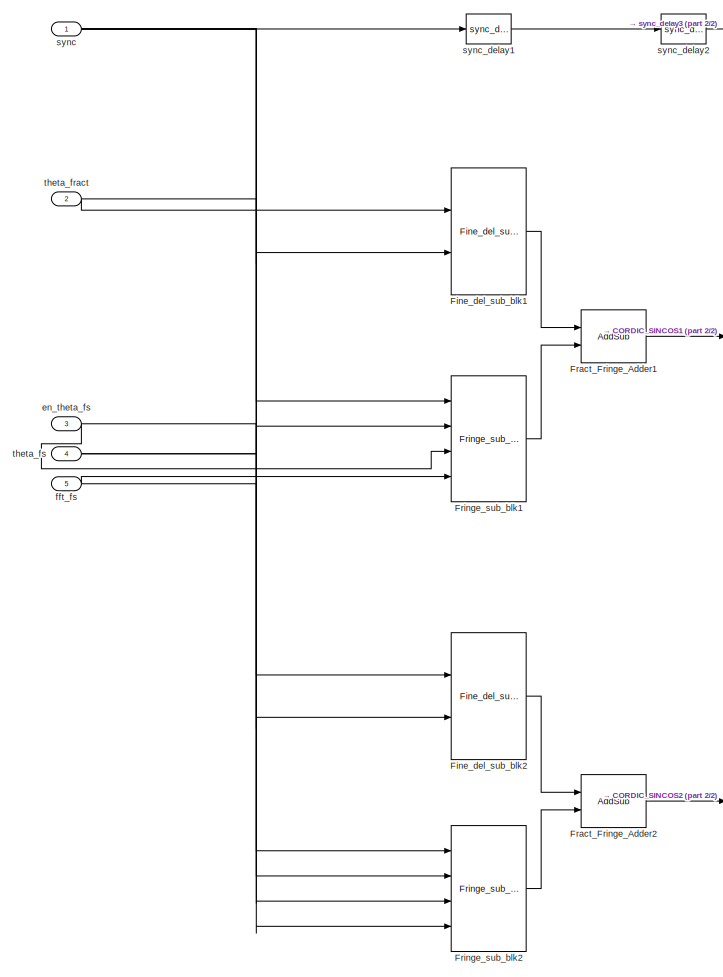
[diagram: finedelay_fstop_prog_cordic - part 1/2, left side, full height]
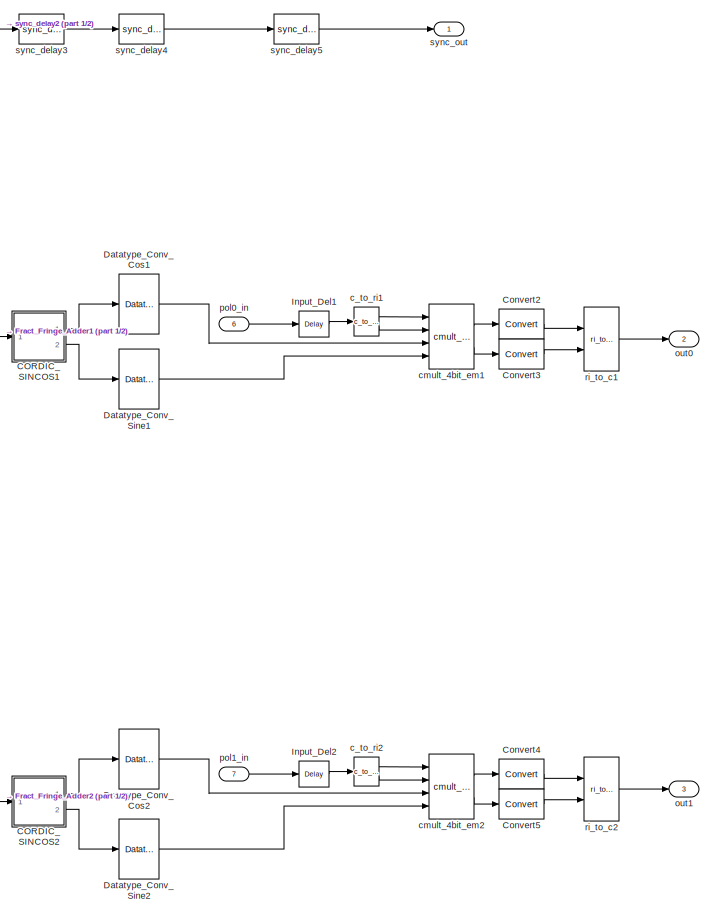
[diagram: finedelay_fstop_prog_cordic - part 2/2, right side, full height]
BLOCK [SubSystem] finedelay_fstop_prog_cordic
  FunctionWithSeparateData = off
  MaskCallbackString = |||||||
  MaskEnableString = on,on,on,on,on,on,on,on
  MaskHideContents = off
  MaskIconFrame = on
  MaskIconOpaque = on
  MaskIconRotate = none
  MaskIconUnits = autoscale
  MaskInitialization = finedelay_fstop_prog_cordic_init(gcb,...\n    'n_input',n_input,...\n    'fft_len',fft_len,...\n    'fft_bits',fft_bits,...\n    'theta_bits',theta_bits,...\n    'theta_binary_bits',theta_binary_bits,...\n    'stages',stages,...\n    'fft_cycle_bits',fft_cycle_bits,...\n    'sync_period',sync_period);
  MaskPromptString = Number of Simultaneous Inputs|Number Of FFT Channels|FFT Input Bit Width|CORDIC Sine-Cos Input Bitwidth (Determines the resolution of phase)|CORDIC Sine-Cos Input Binary BitWidth|Number of Processing Elements of CORDIC block (integer value starting from 1)|Maximum Number of FFT cycles  (Rate of change of Fringe ) = 2 ^ ? |Sync Period
  MaskStyleString = edit,edit,edit,edit,edit,edit,edit,edit
  MaskToolTipString = on,on,on,on,on,on,on,on
  MaskTunableValueString = on,on,on,on,on,on,on,on
  MaskType = finedelay_fstop_prog_cordic
  MaskValueString = 2|1024|18|20|17|9|17|134217728
  MaskVariables = n_input=@1;fft_len=@2;fft_bits=@3;theta_bits=@4;theta_binary_bits=@5;stages=@6;fft_cycle_bits=@7;sync_period=@8;
  MaskVisibilityString = on,on,on,on,on,on,on,on
  MinAlgLoopOccurrences = off
  Opaque = off
  Ports = [7, 3]
  PropExecContextOutsideSubsystem = off
  RTWSystemCode = Auto
  UserData = DataTag21
  UserDataPersistent = on
BLOCK [SubSystem] finedelay_fstop_prog_cordic/CORDIC_SINCOS1
  CopyFcn = set_param(gcb, 'MaskSelfModifiable', 'on', 'LinkStatus', 'none');
  FunctionWithSeparateData = off
  MaskCallbackString = |||||
  MaskDescription = A parallel implementation, circular rotation mode CORDIC processor for calculating Sine and Cosine of input angle z.  The number of iteration stages (and resultant output accuracy) and the processor arithmetic precision are controlled by the mask customization.
  MaskDisplay = patch([0 iWidth iWidth 0],[0 0 iHeight iHeight] , bg);\npatch(logoX,logoY , fg);\ntext(iCx-6,iCy,'z');\ntext(iCx,iCy+4,str);\nport_label('input',1,'z');\nport_label('output',1,'cos');\nport_label('output',2,'sin');\nplot([0 0 iWidth iWidth 0], [0 iHeight iHeight 0 0]);
  MaskEnableString = on,on,on,on,on,on
  MaskHelp = eval('');xlDoc('-book','sysgen','-topic','CORDIC_SINCOS');
  MaskHideContents = off
  MaskIconFrame = off
  MaskIconOpaque = on
  MaskIconRotate = none
  MaskIconUnits = autoscale
  MaskInitialization = [bg,fg] = xlcmap('XBlock',0);\niPos = get_param(gcb,'Position');\niWidth=iPos(3)-iPos(1); iHeight=iPos(4)-iPos(2);\niCx=iWidth/2;\niCy=iHeight/2;\n[logoX, logoY] = xlogo(iPos);\nsav_gcb=gcb;\nstages = round(sum(abs(stages)));\nif (stages == 0)\n	stages = prev_stages;\nend\nx = zeros(1,stages);\npipe_size = max(size(pipeline_x));\nif pipe_size >= stages\n	x(1,1:stages) = pipeline_x(1,1:stages);\nel...<+3558ch>
  MaskPromptString = Number of Processing Elements (integer value starting from 1)|Input Data Width|Input Binary Point Position|Latency for each Processing Element [1 0 0 1]|Previous Number of Stages|Previous Pipeline Values
  MaskSelfModifiable = on
  MaskStyleString = edit,edit,edit,edit,edit,edit
  MaskToolTipString = on,on,on,on,on,on
  MaskTunableValueString = on,on,on,on,on,on
  MaskType = Xilinx CORDIC SINCOS
  MaskValueString = 9|20|17|ones(1,9)|9|[1  1  1  1  1  1  1  1  1]
  MaskVariables = stages=@1;pe_nbits=@2;pe_binpt=@3;pipeline_x=@4;prev_stages=@5;pipeline=@6;
  MaskVisibilityString = on,on,on,on,off,off
  MinAlgLoopOccurrences = off
  Opaque = off
  Ports = [1, 2]
  PropExecContextOutsideSubsystem = off
  RTWSystemCode = Auto
BLOCK [SubSystem] finedelay_fstop_prog_cordic/CORDIC_SINCOS1/CORDIC Fine Angle PE
  FunctionWithSeparateData = off
  MaskDisplay = patch([0 iWidth iWidth 0],[0 0 iHeight iHeight] , bg);\npatch(logoX,logoY , fg);\nport_label('input',1,'x');\nport_label('input',2,'y');\nport_label('input',3,'z');\nport_label('output',1,'X');\nport_label('output',2,'Y');\nplot([0 0 iWidth iWidth 0], [0 iHeight iHeight 0 0]);
  MaskHideContents = off
  MaskIconFrame = off
  MaskIconOpaque = on
  MaskIconRotate = none
  MaskIconUnits = autoscale
  MaskInitialization = [bg,fg] = xlcmap('XBlock',0);\niPos = get_param(gcb,'Position');\niWidth=iPos(3)-iPos(1); iHeight=iPos(4)-iPos(2);\niCx=iWidth/2;\niCy=iHeight/2;\n[logoX, logoY] = xlogo(iPos);
  MaskType = CORDIC parallel PE
  MinAlgLoopOccurrences = off
  Opaque = off
  Ports = [3, 2]
  PropExecContextOutsideSubsystem = off
  RTWSystemCode = Auto
BLOCK [SubSystem] finedelay_fstop_prog_cordic/CORDIC_SINCOS1/CORDIC Fine Angle PE/CORDIC PE1
  FunctionWithSeparateData = off
  MaskCallbackString = |||||
  MaskDisplay = patch([0 iWidth iWidth 0],[0 0 iHeight iHeight] , bg);\npatch(logoX,logoY , fg);\nport_label('input',1,'x');\nport_label('input',2,'y');\nport_label('input',3,'z');\nport_label('output',1,'X');\nport_label('output',2,'Y');\nport_label('output',3,'Z');\nplot([0 0 iWidth iWidth 0], [0 iHeight iHeight 0 0]);  <repeated x18 — deduplicated; at blocks: CORDIC PE1, CORDIC PE2, CORDIC PE3, CORDIC PE4, CORDIC PE5, CORDIC PE6, CORDIC PE7, CORDIC PE8, CORDIC PE9>
  MaskEnableString = on,on,on,on,on,on
  MaskHideContents = off
  MaskIconFrame = off
  MaskIconOpaque = on
  MaskIconRotate = none
  MaskIconUnits = autoscale
  MaskInitialization = [bg,fg] = xlcmap('XBlock',0);\niPos = get_param(gcb,'Position');\niWidth=iPos(3)-iPos(1); iHeight=iPos(4)-iPos(2);\niCx=iWidth/2;\niCy=iHeight/2;\n[logoX, logoY] = xlogo(iPos);\n\nset_param(gcb, 'LinkStatus', 'none');\nswitch epsilon_k_fcn\n  case 1\n    epsilon_k = atan(1/2^ii);\n  case 2\n    epsilon_k = atanh(1/2^ii);\nend\n\n  <repeated x18 — deduplicated; at blocks: CORDIC PE1, CORDIC PE2, CORDIC PE3, CORDIC PE4, CORDIC PE5, CORDIC PE6, CORDIC PE7, CORDIC PE8, CORDIC PE9>
  MaskPromptString = Iteration Index ii|Number of X,Y,Z Bits|X,Y,Z Binary Point Position|Epsilon_k Function|epsilon_k|Pipeline Latency
  MaskStyleString = edit,edit,edit,popup(atan|atanh),edit,edit
  MaskToolTipString = on,on,on,on,on,on
  MaskTunableValueString = on,on,on,on,on,on
  MaskType = CORDIC iteration PE
  MaskValueString = 0|pe_nbits|pe_binpt|atan||pipeline(1,1)
  MaskVariables = ii=@1;pe_nbits=@2;pe_binpt=@3;epsilon_k_fcn=@4;epsilon_k=@5;pipeline=@6;
  MaskVisibilityString = on,on,on,on,off,on
  MinAlgLoopOccurrences = off
  Opaque = off
  Ports = [3, 3]
  PropExecContextOutsideSubsystem = off
  RTWSystemCode = Auto
BLOCK [Reference] finedelay_fstop_prog_cordic/CORDIC_SINCOS1/CORDIC Fine Angle PE/CORDIC PE1/AddSub  REF=xbsIndex_r4/AddSub
  Ports = [3, 1]
  SourceBlock = xbsIndex_r4/AddSub
  SourceType = Xilinx Adder/Subtracter Block
  arith_type = Signed  (2's comp)
  bin_pt = pe_binpt
  block_type = addsub
  block_version = VER_STRING_GOES_HERE
  dbl_ovrd = off
  en = off
  has_advanced_control = 0
  hw_selection = Fabric
  latency = pipeline
  mode = Addition or Subtraction
  n_bits = pe_nbits
  overflow = Wrap
  pipelined = off
  precision = User Defined
  quantization = Truncate
  sg_icon_stat = 45,42,3,1,white,blue,0,5b906e43,right,,[ ],[ ]
  sggui_pos = -1,-1,-1,-1
  use_behavioral_HDL = on
  use_carryin = off
  use_carryout = off
  use_rpm = off
  xl_area = [8 16 0 16 0 0 0]
  xl_use_area = off
BLOCK [Reference] finedelay_fstop_prog_cordic/CORDIC_SINCOS1/CORDIC Fine Angle PE/CORDIC PE1/AddSub1  REF=xbsIndex_r4/AddSub
  Ports = [3, 1]
  SourceBlock = xbsIndex_r4/AddSub
  SourceType = Xilinx Adder/Subtracter Block
  arith_type = Signed  (2's comp)
  bin_pt = pe_binpt
  block_type = addsub
  block_version = VER_STRING_GOES_HERE
  dbl_ovrd = off
  en = off
  has_advanced_control = 0
  hw_selection = Fabric
  latency = pipeline
  mode = Addition or Subtraction
  n_bits = pe_nbits
  overflow = Wrap
  pipelined = off
  precision = User Defined
  quantization = Truncate
  sg_icon_stat = 45,44,3,1,white,blue,0,5b906e43,right,,[ ],[ ]
  sggui_pos = -1,-1,-1,-1
  use_behavioral_HDL = on
  use_carryin = off
  use_carryout = off
  use_rpm = off
  xl_area = [8 16 0 16 0 0 0]
  xl_use_area = off
BLOCK [Reference] finedelay_fstop_prog_cordic/CORDIC_SINCOS1/CORDIC Fine Angle PE/CORDIC PE1/AddSub2  REF=xbsIndex_r4/AddSub
  Ports = [3, 1]
  SourceBlock = xbsIndex_r4/AddSub
  SourceType = Xilinx Adder/Subtracter Block
  arith_type = Signed  (2's comp)
  bin_pt = pe_binpt
  block_type = addsub
  block_version = VER_STRING_GOES_HERE
  dbl_ovrd = off
  en = off
  has_advanced_control = 0
  hw_selection = Fabric
  latency = pipeline
  mode = Addition or Subtraction
  n_bits = pe_nbits
  overflow = Wrap
  pipelined = off
  precision = User Defined
  quantization = Truncate
  sg_icon_stat = 45,44,3,1,white,blue,0,5b906e43,right,,[ ],[ ]
  sggui_pos = -1,-1,-1,-1
  use_behavioral_HDL = on
  use_carryin = off
  use_carryout = off
  use_rpm = off
  xl_area = [8 16 0 16 0 0 0]
  xl_use_area = off
BLOCK [Reference] finedelay_fstop_prog_cordic/CORDIC_SINCOS1/CORDIC Fine Angle PE/CORDIC PE1/Constant  REF=xbsIndex_r4/Constant
  Ports = [0, 1]
  SourceBlock = xbsIndex_r4/Constant
  SourceType = Xilinx Constant Block Block
  arith_type = Signed (2's comp)
  bin_pt = pe_binpt
  block_type = constant
  block_version = VER_STRING_GOES_HERE
  carry = CIN
  const = epsilon_k
  dbl_ovrd = off
  dsp48_infoedit = The use of this block for DSP48 instructions is deprecated.  Please use the Opmode block.
  equ = P=C
  exp_width = 8
  explicit_period = off
  frac_width = 24
  gui_display_data_type = Fixed-point
  has_advanced_control = 0
  inp1 = P
  inp2 = PCIN>>17
  n_bits = pe_nbits
  opr = +
  opselect = C
  period = 1
  preci_type = Single
  sg_icon_stat = 80,20,0,1,white,blue,0,3da00a14,right,,[ ],[ ]
  sggui_pos = -1,-1,-1,-1
BLOCK [Reference] finedelay_fstop_prog_cordic/CORDIC_SINCOS1/CORDIC Fine Angle PE/CORDIC PE1/Inverter  REF=xbsIndex_r4/Inverter
  Ports = [1, 1]
  SourceBlock = xbsIndex_r4/Inverter
  SourceType = Xilinx Inverter Block
  block_type = inv
  block_version = VER_STRING_GOES_HERE
  dbl_ovrd = off
  en = off
  has_advanced_control = 0
  infoedit = Bitwise logical negation (one's complement) operator.
  latency = 0
  sg_icon_stat = 40,14,1,1,white,blue,0,267846e5,right,,[ ],[ ]
  sg_mask_display = fprintf('','COMMENT: begin icon graphics');\npatch([0 40 40 0 0 ],[0 0 14 14 0 ],[0.77 0.82 0.91 ]);\nplot([0 40 40 0 0 ],[0 0 14 14 0 ]);\npatch([15.55 18.44 20.44 22.44 24.44 20.44 17.55 15.55 ],[9.22 9.22 11.22 9.22 11.22 11.22 11.22 9.22 ],[1 1 1 ]);\npatch([17.55 20.44 18.44 15.55 17.55 ],[7.22 7.22 9.22 9.22 7.22 ],[0.931 0.946 0.973 ]);\npatch([15.55 18.44 20.44 17.55 15.55 ],[5.22 5.22 7.2...<+293ch>  <repeated x20 — deduplicated; at blocks: Inverter>
  sggui_pos = -1,-1,-1,-1
  xl_area = [1 0 0 1 0 0 0]
  xl_use_area = off
BLOCK [Reference] finedelay_fstop_prog_cordic/CORDIC_SINCOS1/CORDIC Fine Angle PE/CORDIC PE1/Shift  REF=xbsIndex_r4/Shift
  Ports = [1, 1]
  SourceBlock = xbsIndex_r4/Shift
  SourceType = Xilinx Binary Shift Operator Block
  arith_type = Signed  (2's comp)
  bin_pt = pe_binpt
  block_type = shift
  block_version = VER_STRING_GOES_HERE
  dbl_ovrd = off
  en = off
  has_advanced_control = 0
  infoedit = Hardware notes: In hardware this block costs nothing if full output precision is used.
  latency = 0
  n_bits = pe_nbits
  overflow = Wrap
  precision = User Defined
  quantization = Truncate
  sg_icon_stat = 45,14,1,1,white,blue,0,f61b5d0e,right,,[ ],[ ]
  sg_mask_display = fprintf('','COMMENT: begin icon graphics');\npatch([0 60 60 0 0 ],[0 0 56 56 0 ],[0.77 0.82 0.91 ]);\nplot([0 60 60 0 0 ],[0 0 56 56 0 ]);\npatch([12.2 23.76 31.76 39.76 47.76 31.76 20.2 12.2 ],[36.88 36.88 44.88 36.88 44.88 44.88 44.88 36.88 ],[1 1 1 ]);\npatch([20.2 31.76 23.76 12.2 20.2 ],[28.88 28.88 36.88 36.88 28.88 ],[0.931 0.946 0.973 ]);\npatch([12.2 23.76 31.76 20.2 12.2 ],[20.88 20.88 2...<+326ch>  <repeated x36 — deduplicated; at blocks: Shift, Shift1>
  sggui_pos = -1,-1,-1,-1
  shift_bits = ii
  shift_dir = Right
  xl_area = [0 0 0 0 0 0 0]
  xl_use_area = off
BLOCK [Reference] finedelay_fstop_prog_cordic/CORDIC_SINCOS1/CORDIC Fine Angle PE/CORDIC PE1/Shift1  REF=xbsIndex_r4/Shift
  Ports = [1, 1]
  SourceBlock = xbsIndex_r4/Shift
  SourceType = Xilinx Binary Shift Operator Block
  arith_type = Signed  (2's comp)
  bin_pt = pe_binpt
  block_type = shift
  block_version = VER_STRING_GOES_HERE
  dbl_ovrd = off
  en = off
  has_advanced_control = 0
  infoedit = Hardware notes: In hardware this block costs nothing if full output precision is used.
  latency = 0
  n_bits = pe_nbits
  overflow = Wrap
  precision = User Defined
  quantization = Truncate
  sg_icon_stat = 45,14,1,1,white,blue,0,f61b5d0e,right,,[ ],[ ]
  sggui_pos = -1,-1,-1,-1
  shift_bits = ii
  shift_dir = Right
  xl_area = [0 0 0 0 0 0 0]
  xl_use_area = off
BLOCK [Reference] finedelay_fstop_prog_cordic/CORDIC_SINCOS1/CORDIC Fine Angle PE/CORDIC PE1/Slice  REF=xbsIndex_r4/Slice
  Ports = [1, 1]
  SourceBlock = xbsIndex_r4/Slice
  SourceType = Xilinx Bit Slice Extractor Block
  base0 = LSB of Input
  base1 = MSB of Input
  bit0 = 0
  bit1 = 0
  block_type = slice
  block_version = VER_STRING_GOES_HERE
  boolean_output = on
  dbl_ovrd = off
  has_advanced_control = 0
  mode = Upper Bit Location + Width
  nbits = 1
  sg_icon_stat = 40,20,1,1,white,blue,0,1fd851a7,right,,[ ],[ ]
  sg_mask_display = fprintf('','COMMENT: begin icon graphics');\npatch([0 40 40 0 0 ],[0 0 20 20 0 ],[0.77 0.82 0.91 ]);\nplot([0 40 40 0 0 ],[0 0 20 20 0 ]);\npatch([15.55 18.44 20.44 22.44 24.44 20.44 17.55 15.55 ],[12.22 12.22 14.22 12.22 14.22 14.22 14.22 12.22 ],[1 1 1 ]);\npatch([17.55 20.44 18.44 15.55 17.55 ],[10.22 10.22 12.22 12.22 10.22 ],[0.931 0.946 0.973 ]);\npatch([15.55 18.44 20.44 17.55 15.55 ],[8.22...<+321ch>  <repeated x20 — deduplicated; at blocks: Slice, sgn(z)>
  sggui_pos = -1,-1,-1,-1
BLOCK [Outport] finedelay_fstop_prog_cordic/CORDIC_SINCOS1/CORDIC Fine Angle PE/CORDIC PE1/X
  IconDisplay = Port number
BLOCK [Outport] finedelay_fstop_prog_cordic/CORDIC_SINCOS1/CORDIC Fine Angle PE/CORDIC PE1/Y
  IconDisplay = Port number
  Port = 2
BLOCK [Outport] finedelay_fstop_prog_cordic/CORDIC_SINCOS1/CORDIC Fine Angle PE/CORDIC PE1/Z
  IconDisplay = Port number
  Port = 3
BLOCK [Inport] finedelay_fstop_prog_cordic/CORDIC_SINCOS1/CORDIC Fine Angle PE/CORDIC PE1/x
  IconDisplay = Port number
BLOCK [Inport] finedelay_fstop_prog_cordic/CORDIC_SINCOS1/CORDIC Fine Angle PE/CORDIC PE1/y
  IconDisplay = Port number
  Port = 2
BLOCK [Inport] finedelay_fstop_prog_cordic/CORDIC_SINCOS1/CORDIC Fine Angle PE/CORDIC PE1/z
  IconDisplay = Port number
  Port = 3
BLOCK [SubSystem] finedelay_fstop_prog_cordic/CORDIC_SINCOS1/CORDIC Fine Angle PE/CORDIC PE2
  FunctionWithSeparateData = off
  MaskCallbackString = |||||
  MaskEnableString = on,on,on,on,on,on
  MaskHideContents = off
  MaskIconFrame = off
  MaskIconOpaque = on
  MaskIconRotate = none
  MaskIconUnits = autoscale
  MaskPromptString = Iteration Index ii|Number of X,Y,Z Bits|X,Y,Z Binary Point Position|Epsilon_k Function|epsilon_k|Pipeline Latency
  MaskStyleString = edit,edit,edit,popup(atan|atanh),edit,edit
  MaskToolTipString = on,on,on,on,on,on
  MaskTunableValueString = on,on,on,on,on,on
  MaskType = CORDIC iteration PE
  MaskValueString = 1|pe_nbits|pe_binpt|atan||pipeline(1,2)
  MaskVariables = ii=@1;pe_nbits=@2;pe_binpt=@3;epsilon_k_fcn=@4;epsilon_k=@5;pipeline=@6;
  MaskVisibilityString = on,on,on,on,off,on
  MinAlgLoopOccurrences = off
  Opaque = off
  Ports = [3, 3]
  PropExecContextOutsideSubsystem = off
  RTWSystemCode = Auto
BLOCK [Reference] finedelay_fstop_prog_cordic/CORDIC_SINCOS1/CORDIC Fine Angle PE/CORDIC PE2/AddSub  REF=xbsIndex_r4/AddSub
  Ports = [3, 1]
  SourceBlock = xbsIndex_r4/AddSub
  SourceType = Xilinx Adder/Subtracter Block
  arith_type = Signed  (2's comp)
  bin_pt = pe_binpt
  block_type = addsub
  block_version = VER_STRING_GOES_HERE
  dbl_ovrd = off
  en = off
  has_advanced_control = 0
  hw_selection = Fabric
  latency = pipeline
  mode = Addition or Subtraction
  n_bits = pe_nbits
  overflow = Wrap
  pipelined = off
  precision = User Defined
  quantization = Truncate
  sg_icon_stat = 45,42,3,1,white,blue,0,5b906e43,right,,[ ],[ ]
  sggui_pos = -1,-1,-1,-1
  use_behavioral_HDL = on
  use_carryin = off
  use_carryout = off
  use_rpm = off
  xl_area = [8 16 0 16 0 0 0]
  xl_use_area = off
BLOCK [Reference] finedelay_fstop_prog_cordic/CORDIC_SINCOS1/CORDIC Fine Angle PE/CORDIC PE2/AddSub1  REF=xbsIndex_r4/AddSub
  Ports = [3, 1]
  SourceBlock = xbsIndex_r4/AddSub
  SourceType = Xilinx Adder/Subtracter Block
  arith_type = Signed  (2's comp)
  bin_pt = pe_binpt
  block_type = addsub
  block_version = VER_STRING_GOES_HERE
  dbl_ovrd = off
  en = off
  has_advanced_control = 0
  hw_selection = Fabric
  latency = pipeline
  mode = Addition or Subtraction
  n_bits = pe_nbits
  overflow = Wrap
  pipelined = off
  precision = User Defined
  quantization = Truncate
  sg_icon_stat = 45,44,3,1,white,blue,0,5b906e43,right,,[ ],[ ]
  sggui_pos = -1,-1,-1,-1
  use_behavioral_HDL = on
  use_carryin = off
  use_carryout = off
  use_rpm = off
  xl_area = [8 16 0 16 0 0 0]
  xl_use_area = off
BLOCK [Reference] finedelay_fstop_prog_cordic/CORDIC_SINCOS1/CORDIC Fine Angle PE/CORDIC PE2/AddSub2  REF=xbsIndex_r4/AddSub
  Ports = [3, 1]
  SourceBlock = xbsIndex_r4/AddSub
  SourceType = Xilinx Adder/Subtracter Block
  arith_type = Signed  (2's comp)
  bin_pt = pe_binpt
  block_type = addsub
  block_version = VER_STRING_GOES_HERE
  dbl_ovrd = off
  en = off
  has_advanced_control = 0
  hw_selection = Fabric
  latency = pipeline
  mode = Addition or Subtraction
  n_bits = pe_nbits
  overflow = Wrap
  pipelined = off
  precision = User Defined
  quantization = Truncate
  sg_icon_stat = 45,44,3,1,white,blue,0,5b906e43,right,,[ ],[ ]
  sggui_pos = -1,-1,-1,-1
  use_behavioral_HDL = on
  use_carryin = off
  use_carryout = off
  use_rpm = off
  xl_area = [8 16 0 16 0 0 0]
  xl_use_area = off
BLOCK [Reference] finedelay_fstop_prog_cordic/CORDIC_SINCOS1/CORDIC Fine Angle PE/CORDIC PE2/Constant  REF=xbsIndex_r4/Constant
  Ports = [0, 1]
  SourceBlock = xbsIndex_r4/Constant
  SourceType = Xilinx Constant Block Block
  arith_type = Signed (2's comp)
  bin_pt = pe_binpt
  block_type = constant
  block_version = VER_STRING_GOES_HERE
  carry = CIN
  const = epsilon_k
  dbl_ovrd = off
  dsp48_infoedit = The use of this block for DSP48 instructions is deprecated.  Please use the Opmode block.
  equ = P=C
  exp_width = 8
  explicit_period = off
  frac_width = 24
  gui_display_data_type = Fixed-point
  has_advanced_control = 0
  inp1 = P
  inp2 = PCIN>>17
  n_bits = pe_nbits
  opr = +
  opselect = C
  period = 1
  preci_type = Single
  sg_icon_stat = 80,20,0,1,white,blue,0,9429ad66,right,,[ ],[ ]
  sggui_pos = -1,-1,-1,-1
BLOCK [Reference] finedelay_fstop_prog_cordic/CORDIC_SINCOS1/CORDIC Fine Angle PE/CORDIC PE2/Inverter  REF=xbsIndex_r4/Inverter
  Ports = [1, 1]
  SourceBlock = xbsIndex_r4/Inverter
  SourceType = Xilinx Inverter Block
  block_type = inv
  block_version = VER_STRING_GOES_HERE
  dbl_ovrd = off
  en = off
  has_advanced_control = 0
  infoedit = Bitwise logical negation (one's complement) operator.
  latency = 0
  sg_icon_stat = 40,14,1,1,white,blue,0,267846e5,right,,[ ],[ ]
  sggui_pos = -1,-1,-1,-1
  xl_area = [1 0 0 1 0 0 0]
  xl_use_area = off
BLOCK [Reference] finedelay_fstop_prog_cordic/CORDIC_SINCOS1/CORDIC Fine Angle PE/CORDIC PE2/Shift  REF=xbsIndex_r4/Shift
  Ports = [1, 1]
  SourceBlock = xbsIndex_r4/Shift
  SourceType = Xilinx Binary Shift Operator Block
  arith_type = Signed  (2's comp)
  bin_pt = pe_binpt
  block_type = shift
  block_version = VER_STRING_GOES_HERE
  dbl_ovrd = off
  en = off
  has_advanced_control = 0
  infoedit = Hardware notes: In hardware this block costs nothing if full output precision is used.
  latency = 0
  n_bits = pe_nbits
  overflow = Wrap
  precision = User Defined
  quantization = Truncate
  sg_icon_stat = 45,14,1,1,white,blue,0,77cd8d92,right,,[ ],[ ]
  sggui_pos = -1,-1,-1,-1
  shift_bits = ii
  shift_dir = Right
  xl_area = [0 0 0 0 0 0 0]
  xl_use_area = off
BLOCK [Reference] finedelay_fstop_prog_cordic/CORDIC_SINCOS1/CORDIC Fine Angle PE/CORDIC PE2/Shift1  REF=xbsIndex_r4/Shift
  Ports = [1, 1]
  SourceBlock = xbsIndex_r4/Shift
  SourceType = Xilinx Binary Shift Operator Block
  arith_type = Signed  (2's comp)
  bin_pt = pe_binpt
  block_type = shift
  block_version = VER_STRING_GOES_HERE
  dbl_ovrd = off
  en = off
  has_advanced_control = 0
  infoedit = Hardware notes: In hardware this block costs nothing if full output precision is used.
  latency = 0
  n_bits = pe_nbits
  overflow = Wrap
  precision = User Defined
  quantization = Truncate
  sg_icon_stat = 45,14,1,1,white,blue,0,77cd8d92,right,,[ ],[ ]
  sggui_pos = -1,-1,-1,-1
  shift_bits = ii
  shift_dir = Right
  xl_area = [0 0 0 0 0 0 0]
  xl_use_area = off
BLOCK [Reference] finedelay_fstop_prog_cordic/CORDIC_SINCOS1/CORDIC Fine Angle PE/CORDIC PE2/Slice  REF=xbsIndex_r4/Slice
  Ports = [1, 1]
  SourceBlock = xbsIndex_r4/Slice
  SourceType = Xilinx Bit Slice Extractor Block
  base0 = LSB of Input
  base1 = MSB of Input
  bit0 = 0
  bit1 = 0
  block_type = slice
  block_version = VER_STRING_GOES_HERE
  boolean_output = on
  dbl_ovrd = off
  has_advanced_control = 0
  mode = Upper Bit Location + Width
  nbits = 1
  sg_icon_stat = 40,20,1,1,white,blue,0,1fd851a7,right,,[ ],[ ]
  sggui_pos = -1,-1,-1,-1
BLOCK [Outport] finedelay_fstop_prog_cordic/CORDIC_SINCOS1/CORDIC Fine Angle PE/CORDIC PE2/X
  IconDisplay = Port number
BLOCK [Outport] finedelay_fstop_prog_cordic/CORDIC_SINCOS1/CORDIC Fine Angle PE/CORDIC PE2/Y
  IconDisplay = Port number
  Port = 2
BLOCK [Outport] finedelay_fstop_prog_cordic/CORDIC_SINCOS1/CORDIC Fine Angle PE/CORDIC PE2/Z
  IconDisplay = Port number
  Port = 3
BLOCK [Inport] finedelay_fstop_prog_cordic/CORDIC_SINCOS1/CORDIC Fine Angle PE/CORDIC PE2/x
  IconDisplay = Port number
BLOCK [Inport] finedelay_fstop_prog_cordic/CORDIC_SINCOS1/CORDIC Fine Angle PE/CORDIC PE2/y
  IconDisplay = Port number
  Port = 2
BLOCK [Inport] finedelay_fstop_prog_cordic/CORDIC_SINCOS1/CORDIC Fine Angle PE/CORDIC PE2/z
  IconDisplay = Port number
  Port = 3
BLOCK [SubSystem] finedelay_fstop_prog_cordic/CORDIC_SINCOS1/CORDIC Fine Angle PE/CORDIC PE3
  FunctionWithSeparateData = off
  MaskCallbackString = |||||
  MaskEnableString = on,on,on,on,on,on
  MaskHideContents = off
  MaskIconFrame = off
  MaskIconOpaque = on
  MaskIconRotate = none
  MaskIconUnits = autoscale
  MaskPromptString = Iteration Index ii|Number of X,Y,Z Bits|X,Y,Z Binary Point Position|Epsilon_k Function|epsilon_k|Pipeline Latency
  MaskStyleString = edit,edit,edit,popup(atan|atanh),edit,edit
  MaskToolTipString = on,on,on,on,on,on
  MaskTunableValueString = on,on,on,on,on,on
  MaskType = CORDIC iteration PE
  MaskValueString = 2|pe_nbits|pe_binpt|atan||pipeline(1,3)
  MaskVariables = ii=@1;pe_nbits=@2;pe_binpt=@3;epsilon_k_fcn=@4;epsilon_k=@5;pipeline=@6;
  MaskVisibilityString = on,on,on,on,off,on
  MinAlgLoopOccurrences = off
  Opaque = off
  Ports = [3, 3]
  PropExecContextOutsideSubsystem = off
  RTWSystemCode = Auto
BLOCK [Reference] finedelay_fstop_prog_cordic/CORDIC_SINCOS1/CORDIC Fine Angle PE/CORDIC PE3/AddSub  REF=xbsIndex_r4/AddSub
  Ports = [3, 1]
  SourceBlock = xbsIndex_r4/AddSub
  SourceType = Xilinx Adder/Subtracter Block
  arith_type = Signed  (2's comp)
  bin_pt = pe_binpt
  block_type = addsub
  block_version = VER_STRING_GOES_HERE
  dbl_ovrd = off
  en = off
  has_advanced_control = 0
  hw_selection = Fabric
  latency = pipeline
  mode = Addition or Subtraction
  n_bits = pe_nbits
  overflow = Wrap
  pipelined = off
  precision = User Defined
  quantization = Truncate
  sg_icon_stat = 45,42,3,1,white,blue,0,5b906e43,right,,[ ],[ ]
  sggui_pos = -1,-1,-1,-1
  use_behavioral_HDL = on
  use_carryin = off
  use_carryout = off
  use_rpm = off
  xl_area = [8 16 0 16 0 0 0]
  xl_use_area = off
BLOCK [Reference] finedelay_fstop_prog_cordic/CORDIC_SINCOS1/CORDIC Fine Angle PE/CORDIC PE3/AddSub1  REF=xbsIndex_r4/AddSub
  Ports = [3, 1]
  SourceBlock = xbsIndex_r4/AddSub
  SourceType = Xilinx Adder/Subtracter Block
  arith_type = Signed  (2's comp)
  bin_pt = pe_binpt
  block_type = addsub
  block_version = VER_STRING_GOES_HERE
  dbl_ovrd = off
  en = off
  has_advanced_control = 0
  hw_selection = Fabric
  latency = pipeline
  mode = Addition or Subtraction
  n_bits = pe_nbits
  overflow = Wrap
  pipelined = off
  precision = User Defined
  quantization = Truncate
  sg_icon_stat = 45,44,3,1,white,blue,0,5b906e43,right,,[ ],[ ]
  sggui_pos = -1,-1,-1,-1
  use_behavioral_HDL = on
  use_carryin = off
  use_carryout = off
  use_rpm = off
  xl_area = [8 16 0 16 0 0 0]
  xl_use_area = off
BLOCK [Reference] finedelay_fstop_prog_cordic/CORDIC_SINCOS1/CORDIC Fine Angle PE/CORDIC PE3/AddSub2  REF=xbsIndex_r4/AddSub
  Ports = [3, 1]
  SourceBlock = xbsIndex_r4/AddSub
  SourceType = Xilinx Adder/Subtracter Block
  arith_type = Signed  (2's comp)
  bin_pt = pe_binpt
  block_type = addsub
  block_version = VER_STRING_GOES_HERE
  dbl_ovrd = off
  en = off
  has_advanced_control = 0
  hw_selection = Fabric
  latency = pipeline
  mode = Addition or Subtraction
  n_bits = pe_nbits
  overflow = Wrap
  pipelined = off
  precision = User Defined
  quantization = Truncate
  sg_icon_stat = 45,44,3,1,white,blue,0,5b906e43,right,,[ ],[ ]
  sggui_pos = -1,-1,-1,-1
  use_behavioral_HDL = on
  use_carryin = off
  use_carryout = off
  use_rpm = off
  xl_area = [8 16 0 16 0 0 0]
  xl_use_area = off
BLOCK [Reference] finedelay_fstop_prog_cordic/CORDIC_SINCOS1/CORDIC Fine Angle PE/CORDIC PE3/Constant  REF=xbsIndex_r4/Constant
  Ports = [0, 1]
  SourceBlock = xbsIndex_r4/Constant
  SourceType = Xilinx Constant Block Block
  arith_type = Signed (2's comp)
  bin_pt = pe_binpt
  block_type = constant
  block_version = VER_STRING_GOES_HERE
  carry = CIN
  const = epsilon_k
  dbl_ovrd = off
  dsp48_infoedit = The use of this block for DSP48 instructions is deprecated.  Please use the Opmode block.
  equ = P=C
  exp_width = 8
  explicit_period = off
  frac_width = 24
  gui_display_data_type = Fixed-point
  has_advanced_control = 0
  inp1 = P
  inp2 = PCIN>>17
  n_bits = pe_nbits
  opr = +
  opselect = C
  period = 1
  preci_type = Single
  sg_icon_stat = 80,20,0,1,white,blue,0,0cf032a9,right,,[ ],[ ]
  sggui_pos = -1,-1,-1,-1
BLOCK [Reference] finedelay_fstop_prog_cordic/CORDIC_SINCOS1/CORDIC Fine Angle PE/CORDIC PE3/Inverter  REF=xbsIndex_r4/Inverter
  Ports = [1, 1]
  SourceBlock = xbsIndex_r4/Inverter
  SourceType = Xilinx Inverter Block
  block_type = inv
  block_version = VER_STRING_GOES_HERE
  dbl_ovrd = off
  en = off
  has_advanced_control = 0
  infoedit = Bitwise logical negation (one's complement) operator.
  latency = 0
  sg_icon_stat = 40,14,1,1,white,blue,0,267846e5,right,,[ ],[ ]
  sggui_pos = -1,-1,-1,-1
  xl_area = [1 0 0 1 0 0 0]
  xl_use_area = off
BLOCK [Reference] finedelay_fstop_prog_cordic/CORDIC_SINCOS1/CORDIC Fine Angle PE/CORDIC PE3/Shift  REF=xbsIndex_r4/Shift
  Ports = [1, 1]
  SourceBlock = xbsIndex_r4/Shift
  SourceType = Xilinx Binary Shift Operator Block
  arith_type = Signed  (2's comp)
  bin_pt = pe_binpt
  block_type = shift
  block_version = VER_STRING_GOES_HERE
  dbl_ovrd = off
  en = off
  has_advanced_control = 0
  infoedit = Hardware notes: In hardware this block costs nothing if full output precision is used.
  latency = 0
  n_bits = pe_nbits
  overflow = Wrap
  precision = User Defined
  quantization = Truncate
  sg_icon_stat = 45,14,1,1,white,blue,0,b3ac20f4,right,,[ ],[ ]
  sggui_pos = -1,-1,-1,-1
  shift_bits = ii
  shift_dir = Right
  xl_area = [0 0 0 0 0 0 0]
  xl_use_area = off
BLOCK [Reference] finedelay_fstop_prog_cordic/CORDIC_SINCOS1/CORDIC Fine Angle PE/CORDIC PE3/Shift1  REF=xbsIndex_r4/Shift
  Ports = [1, 1]
  SourceBlock = xbsIndex_r4/Shift
  SourceType = Xilinx Binary Shift Operator Block
  arith_type = Signed  (2's comp)
  bin_pt = pe_binpt
  block_type = shift
  block_version = VER_STRING_GOES_HERE
  dbl_ovrd = off
  en = off
  has_advanced_control = 0
  infoedit = Hardware notes: In hardware this block costs nothing if full output precision is used.
  latency = 0
  n_bits = pe_nbits
  overflow = Wrap
  precision = User Defined
  quantization = Truncate
  sg_icon_stat = 45,14,1,1,white,blue,0,b3ac20f4,right,,[ ],[ ]
  sggui_pos = -1,-1,-1,-1
  shift_bits = ii
  shift_dir = Right
  xl_area = [0 0 0 0 0 0 0]
  xl_use_area = off
BLOCK [Reference] finedelay_fstop_prog_cordic/CORDIC_SINCOS1/CORDIC Fine Angle PE/CORDIC PE3/Slice  REF=xbsIndex_r4/Slice
  Ports = [1, 1]
  SourceBlock = xbsIndex_r4/Slice
  SourceType = Xilinx Bit Slice Extractor Block
  base0 = LSB of Input
  base1 = MSB of Input
  bit0 = 0
  bit1 = 0
  block_type = slice
  block_version = VER_STRING_GOES_HERE
  boolean_output = on
  dbl_ovrd = off
  has_advanced_control = 0
  mode = Upper Bit Location + Width
  nbits = 1
  sg_icon_stat = 40,20,1,1,white,blue,0,1fd851a7,right,,[ ],[ ]
  sggui_pos = -1,-1,-1,-1
BLOCK [Outport] finedelay_fstop_prog_cordic/CORDIC_SINCOS1/CORDIC Fine Angle PE/CORDIC PE3/X
  IconDisplay = Port number
BLOCK [Outport] finedelay_fstop_prog_cordic/CORDIC_SINCOS1/CORDIC Fine Angle PE/CORDIC PE3/Y
  IconDisplay = Port number
  Port = 2
BLOCK [Outport] finedelay_fstop_prog_cordic/CORDIC_SINCOS1/CORDIC Fine Angle PE/CORDIC PE3/Z
  IconDisplay = Port number
  Port = 3
BLOCK [Inport] finedelay_fstop_prog_cordic/CORDIC_SINCOS1/CORDIC Fine Angle PE/CORDIC PE3/x
  IconDisplay = Port number
BLOCK [Inport] finedelay_fstop_prog_cordic/CORDIC_SINCOS1/CORDIC Fine Angle PE/CORDIC PE3/y
  IconDisplay = Port number
  Port = 2
BLOCK [Inport] finedelay_fstop_prog_cordic/CORDIC_SINCOS1/CORDIC Fine Angle PE/CORDIC PE3/z
  IconDisplay = Port number
  Port = 3
BLOCK [SubSystem] finedelay_fstop_prog_cordic/CORDIC_SINCOS1/CORDIC Fine Angle PE/CORDIC PE4
  FunctionWithSeparateData = off
  MaskCallbackString = |||||
  MaskEnableString = on,on,on,on,on,on
  MaskHideContents = off
  MaskIconFrame = off
  MaskIconOpaque = on
  MaskIconRotate = none
  MaskIconUnits = autoscale
  MaskPromptString = Iteration Index ii|Number of X,Y,Z Bits|X,Y,Z Binary Point Position|Epsilon_k Function|epsilon_k|Pipeline Latency
  MaskStyleString = edit,edit,edit,popup(atan|atanh),edit,edit
  MaskToolTipString = on,on,on,on,on,on
  MaskTunableValueString = on,on,on,on,on,on
  MaskType = CORDIC iteration PE
  MaskValueString = 3|pe_nbits|pe_binpt|atan||pipeline(1,4)
  MaskVariables = ii=@1;pe_nbits=@2;pe_binpt=@3;epsilon_k_fcn=@4;epsilon_k=@5;pipeline=@6;
  MaskVisibilityString = on,on,on,on,off,on
  MinAlgLoopOccurrences = off
  Opaque = off
  Ports = [3, 3]
  PropExecContextOutsideSubsystem = off
  RTWSystemCode = Auto
BLOCK [Reference] finedelay_fstop_prog_cordic/CORDIC_SINCOS1/CORDIC Fine Angle PE/CORDIC PE4/AddSub  REF=xbsIndex_r4/AddSub
  Ports = [3, 1]
  SourceBlock = xbsIndex_r4/AddSub
  SourceType = Xilinx Adder/Subtracter Block
  arith_type = Signed  (2's comp)
  bin_pt = pe_binpt
  block_type = addsub
  block_version = VER_STRING_GOES_HERE
  dbl_ovrd = off
  en = off
  has_advanced_control = 0
  hw_selection = Fabric
  latency = pipeline
  mode = Addition or Subtraction
  n_bits = pe_nbits
  overflow = Wrap
  pipelined = off
  precision = User Defined
  quantization = Truncate
  sg_icon_stat = 45,42,3,1,white,blue,0,5b906e43,right,,[ ],[ ]
  sggui_pos = -1,-1,-1,-1
  use_behavioral_HDL = on
  use_carryin = off
  use_carryout = off
  use_rpm = off
  xl_area = [8 16 0 16 0 0 0]
  xl_use_area = off
BLOCK [Reference] finedelay_fstop_prog_cordic/CORDIC_SINCOS1/CORDIC Fine Angle PE/CORDIC PE4/AddSub1  REF=xbsIndex_r4/AddSub
  Ports = [3, 1]
  SourceBlock = xbsIndex_r4/AddSub
  SourceType = Xilinx Adder/Subtracter Block
  arith_type = Signed  (2's comp)
  bin_pt = pe_binpt
  block_type = addsub
  block_version = VER_STRING_GOES_HERE
  dbl_ovrd = off
  en = off
  has_advanced_control = 0
  hw_selection = Fabric
  latency = pipeline
  mode = Addition or Subtraction
  n_bits = pe_nbits
  overflow = Wrap
  pipelined = off
  precision = User Defined
  quantization = Truncate
  sg_icon_stat = 45,44,3,1,white,blue,0,5b906e43,right,,[ ],[ ]
  sggui_pos = -1,-1,-1,-1
  use_behavioral_HDL = on
  use_carryin = off
  use_carryout = off
  use_rpm = off
  xl_area = [8 16 0 16 0 0 0]
  xl_use_area = off
BLOCK [Reference] finedelay_fstop_prog_cordic/CORDIC_SINCOS1/CORDIC Fine Angle PE/CORDIC PE4/AddSub2  REF=xbsIndex_r4/AddSub
  Ports = [3, 1]
  SourceBlock = xbsIndex_r4/AddSub
  SourceType = Xilinx Adder/Subtracter Block
  arith_type = Signed  (2's comp)
  bin_pt = pe_binpt
  block_type = addsub
  block_version = VER_STRING_GOES_HERE
  dbl_ovrd = off
  en = off
  has_advanced_control = 0
  hw_selection = Fabric
  latency = pipeline
  mode = Addition or Subtraction
  n_bits = pe_nbits
  overflow = Wrap
  pipelined = off
  precision = User Defined
  quantization = Truncate
  sg_icon_stat = 45,44,3,1,white,blue,0,5b906e43,right,,[ ],[ ]
  sggui_pos = -1,-1,-1,-1
  use_behavioral_HDL = on
  use_carryin = off
  use_carryout = off
  use_rpm = off
  xl_area = [8 16 0 16 0 0 0]
  xl_use_area = off
BLOCK [Reference] finedelay_fstop_prog_cordic/CORDIC_SINCOS1/CORDIC Fine Angle PE/CORDIC PE4/Constant  REF=xbsIndex_r4/Constant
  Ports = [0, 1]
  SourceBlock = xbsIndex_r4/Constant
  SourceType = Xilinx Constant Block Block
  arith_type = Signed (2's comp)
  bin_pt = pe_binpt
  block_type = constant
  block_version = VER_STRING_GOES_HERE
  carry = CIN
  const = epsilon_k
  dbl_ovrd = off
  dsp48_infoedit = The use of this block for DSP48 instructions is deprecated.  Please use the Opmode block.
  equ = P=C
  exp_width = 8
  explicit_period = off
  frac_width = 24
  gui_display_data_type = Fixed-point
  has_advanced_control = 0
  inp1 = P
  inp2 = PCIN>>17
  n_bits = pe_nbits
  opr = +
  opselect = C
  period = 1
  preci_type = Single
  sg_icon_stat = 80,20,0,1,white,blue,0,f9ab843f,right,,[ ],[ ]
  sggui_pos = -1,-1,-1,-1
BLOCK [Reference] finedelay_fstop_prog_cordic/CORDIC_SINCOS1/CORDIC Fine Angle PE/CORDIC PE4/Inverter  REF=xbsIndex_r4/Inverter
  Ports = [1, 1]
  SourceBlock = xbsIndex_r4/Inverter
  SourceType = Xilinx Inverter Block
  block_type = inv
  block_version = VER_STRING_GOES_HERE
  dbl_ovrd = off
  en = off
  has_advanced_control = 0
  infoedit = Bitwise logical negation (one's complement) operator.
  latency = 0
  sg_icon_stat = 40,14,1,1,white,blue,0,267846e5,right,,[ ],[ ]
  sggui_pos = -1,-1,-1,-1
  xl_area = [1 0 0 1 0 0 0]
  xl_use_area = off
BLOCK [Reference] finedelay_fstop_prog_cordic/CORDIC_SINCOS1/CORDIC Fine Angle PE/CORDIC PE4/Shift  REF=xbsIndex_r4/Shift
  Ports = [1, 1]
  SourceBlock = xbsIndex_r4/Shift
  SourceType = Xilinx Binary Shift Operator Block
  arith_type = Signed  (2's comp)
  bin_pt = pe_binpt
  block_type = shift
  block_version = VER_STRING_GOES_HERE
  dbl_ovrd = off
  en = off
  has_advanced_control = 0
  infoedit = Hardware notes: In hardware this block costs nothing if full output precision is used.
  latency = 0
  n_bits = pe_nbits
  overflow = Wrap
  precision = User Defined
  quantization = Truncate
  sg_icon_stat = 45,14,1,1,white,blue,0,42eb502d,right,,[ ],[ ]
  sggui_pos = -1,-1,-1,-1
  shift_bits = ii
  shift_dir = Right
  xl_area = [0 0 0 0 0 0 0]
  xl_use_area = off
BLOCK [Reference] finedelay_fstop_prog_cordic/CORDIC_SINCOS1/CORDIC Fine Angle PE/CORDIC PE4/Shift1  REF=xbsIndex_r4/Shift
  Ports = [1, 1]
  SourceBlock = xbsIndex_r4/Shift
  SourceType = Xilinx Binary Shift Operator Block
  arith_type = Signed  (2's comp)
  bin_pt = pe_binpt
  block_type = shift
  block_version = VER_STRING_GOES_HERE
  dbl_ovrd = off
  en = off
  has_advanced_control = 0
  infoedit = Hardware notes: In hardware this block costs nothing if full output precision is used.
  latency = 0
  n_bits = pe_nbits
  overflow = Wrap
  precision = User Defined
  quantization = Truncate
  sg_icon_stat = 45,14,1,1,white,blue,0,42eb502d,right,,[ ],[ ]
  sggui_pos = -1,-1,-1,-1
  shift_bits = ii
  shift_dir = Right
  xl_area = [0 0 0 0 0 0 0]
  xl_use_area = off
BLOCK [Reference] finedelay_fstop_prog_cordic/CORDIC_SINCOS1/CORDIC Fine Angle PE/CORDIC PE4/Slice  REF=xbsIndex_r4/Slice
  Ports = [1, 1]
  SourceBlock = xbsIndex_r4/Slice
  SourceType = Xilinx Bit Slice Extractor Block
  base0 = LSB of Input
  base1 = MSB of Input
  bit0 = 0
  bit1 = 0
  block_type = slice
  block_version = VER_STRING_GOES_HERE
  boolean_output = on
  dbl_ovrd = off
  has_advanced_control = 0
  mode = Upper Bit Location + Width
  nbits = 1
  sg_icon_stat = 40,20,1,1,white,blue,0,1fd851a7,right,,[ ],[ ]
  sggui_pos = -1,-1,-1,-1
BLOCK [Outport] finedelay_fstop_prog_cordic/CORDIC_SINCOS1/CORDIC Fine Angle PE/CORDIC PE4/X
  IconDisplay = Port number
BLOCK [Outport] finedelay_fstop_prog_cordic/CORDIC_SINCOS1/CORDIC Fine Angle PE/CORDIC PE4/Y
  IconDisplay = Port number
  Port = 2
BLOCK [Outport] finedelay_fstop_prog_cordic/CORDIC_SINCOS1/CORDIC Fine Angle PE/CORDIC PE4/Z
  IconDisplay = Port number
  Port = 3
BLOCK [Inport] finedelay_fstop_prog_cordic/CORDIC_SINCOS1/CORDIC Fine Angle PE/CORDIC PE4/x
  IconDisplay = Port number
BLOCK [Inport] finedelay_fstop_prog_cordic/CORDIC_SINCOS1/CORDIC Fine Angle PE/CORDIC PE4/y
  IconDisplay = Port number
  Port = 2
BLOCK [Inport] finedelay_fstop_prog_cordic/CORDIC_SINCOS1/CORDIC Fine Angle PE/CORDIC PE4/z
  IconDisplay = Port number
  Port = 3
BLOCK [SubSystem] finedelay_fstop_prog_cordic/CORDIC_SINCOS1/CORDIC Fine Angle PE/CORDIC PE5
  FunctionWithSeparateData = off
  MaskCallbackString = |||||
  MaskEnableString = on,on,on,on,on,on
  MaskHideContents = off
  MaskIconFrame = off
  MaskIconOpaque = on
  MaskIconRotate = none
  MaskIconUnits = autoscale
  MaskPromptString = Iteration Index ii|Number of X,Y,Z Bits|X,Y,Z Binary Point Position|Epsilon_k Function|epsilon_k|Pipeline Latency
  MaskStyleString = edit,edit,edit,popup(atan|atanh),edit,edit
  MaskToolTipString = on,on,on,on,on,on
  MaskTunableValueString = on,on,on,on,on,on
  MaskType = CORDIC iteration PE
  MaskValueString = 4|pe_nbits|pe_binpt|atan||pipeline(1,5)
  MaskVariables = ii=@1;pe_nbits=@2;pe_binpt=@3;epsilon_k_fcn=@4;epsilon_k=@5;pipeline=@6;
  MaskVisibilityString = on,on,on,on,off,on
  MinAlgLoopOccurrences = off
  Opaque = off
  Ports = [3, 3]
  PropExecContextOutsideSubsystem = off
  RTWSystemCode = Auto
BLOCK [Reference] finedelay_fstop_prog_cordic/CORDIC_SINCOS1/CORDIC Fine Angle PE/CORDIC PE5/AddSub  REF=xbsIndex_r4/AddSub
  Ports = [3, 1]
  SourceBlock = xbsIndex_r4/AddSub
  SourceType = Xilinx Adder/Subtracter Block
  arith_type = Signed  (2's comp)
  bin_pt = pe_binpt
  block_type = addsub
  block_version = VER_STRING_GOES_HERE
  dbl_ovrd = off
  en = off
  has_advanced_control = 0
  hw_selection = Fabric
  latency = pipeline
  mode = Addition or Subtraction
  n_bits = pe_nbits
  overflow = Wrap
  pipelined = off
  precision = User Defined
  quantization = Truncate
  sg_icon_stat = 45,42,3,1,white,blue,0,5b906e43,right,,[ ],[ ]
  sggui_pos = -1,-1,-1,-1
  use_behavioral_HDL = on
  use_carryin = off
  use_carryout = off
  use_rpm = off
  xl_area = [8 16 0 16 0 0 0]
  xl_use_area = off
BLOCK [Reference] finedelay_fstop_prog_cordic/CORDIC_SINCOS1/CORDIC Fine Angle PE/CORDIC PE5/AddSub1  REF=xbsIndex_r4/AddSub
  Ports = [3, 1]
  SourceBlock = xbsIndex_r4/AddSub
  SourceType = Xilinx Adder/Subtracter Block
  arith_type = Signed  (2's comp)
  bin_pt = pe_binpt
  block_type = addsub
  block_version = VER_STRING_GOES_HERE
  dbl_ovrd = off
  en = off
  has_advanced_control = 0
  hw_selection = Fabric
  latency = pipeline
  mode = Addition or Subtraction
  n_bits = pe_nbits
  overflow = Wrap
  pipelined = off
  precision = User Defined
  quantization = Truncate
  sg_icon_stat = 45,44,3,1,white,blue,0,5b906e43,right,,[ ],[ ]
  sggui_pos = -1,-1,-1,-1
  use_behavioral_HDL = on
  use_carryin = off
  use_carryout = off
  use_rpm = off
  xl_area = [8 16 0 16 0 0 0]
  xl_use_area = off
BLOCK [Reference] finedelay_fstop_prog_cordic/CORDIC_SINCOS1/CORDIC Fine Angle PE/CORDIC PE5/AddSub2  REF=xbsIndex_r4/AddSub
  Ports = [3, 1]
  SourceBlock = xbsIndex_r4/AddSub
  SourceType = Xilinx Adder/Subtracter Block
  arith_type = Signed  (2's comp)
  bin_pt = pe_binpt
  block_type = addsub
  block_version = VER_STRING_GOES_HERE
  dbl_ovrd = off
  en = off
  has_advanced_control = 0
  hw_selection = Fabric
  latency = pipeline
  mode = Addition or Subtraction
  n_bits = pe_nbits
  overflow = Wrap
  pipelined = off
  precision = User Defined
  quantization = Truncate
  sg_icon_stat = 45,44,3,1,white,blue,0,5b906e43,right,,[ ],[ ]
  sggui_pos = -1,-1,-1,-1
  use_behavioral_HDL = on
  use_carryin = off
  use_carryout = off
  use_rpm = off
  xl_area = [8 16 0 16 0 0 0]
  xl_use_area = off
BLOCK [Reference] finedelay_fstop_prog_cordic/CORDIC_SINCOS1/CORDIC Fine Angle PE/CORDIC PE5/Constant  REF=xbsIndex_r4/Constant
  Ports = [0, 1]
  SourceBlock = xbsIndex_r4/Constant
  SourceType = Xilinx Constant Block Block
  arith_type = Signed (2's comp)
  bin_pt = pe_binpt
  block_type = constant
  block_version = VER_STRING_GOES_HERE
  carry = CIN
  const = epsilon_k
  dbl_ovrd = off
  dsp48_infoedit = The use of this block for DSP48 instructions is deprecated.  Please use the Opmode block.
  equ = P=C
  exp_width = 8
  explicit_period = off
  frac_width = 24
  gui_display_data_type = Fixed-point
  has_advanced_control = 0
  inp1 = P
  inp2 = PCIN>>17
  n_bits = pe_nbits
  opr = +
  opselect = C
  period = 1
  preci_type = Single
  sg_icon_stat = 80,20,0,1,white,blue,0,27448fa7,right,,[ ],[ ]
  sggui_pos = -1,-1,-1,-1
BLOCK [Reference] finedelay_fstop_prog_cordic/CORDIC_SINCOS1/CORDIC Fine Angle PE/CORDIC PE5/Inverter  REF=xbsIndex_r4/Inverter
  Ports = [1, 1]
  SourceBlock = xbsIndex_r4/Inverter
  SourceType = Xilinx Inverter Block
  block_type = inv
  block_version = VER_STRING_GOES_HERE
  dbl_ovrd = off
  en = off
  has_advanced_control = 0
  infoedit = Bitwise logical negation (one's complement) operator.
  latency = 0
  sg_icon_stat = 40,14,1,1,white,blue,0,267846e5,right,,[ ],[ ]
  sggui_pos = -1,-1,-1,-1
  xl_area = [1 0 0 1 0 0 0]
  xl_use_area = off
BLOCK [Reference] finedelay_fstop_prog_cordic/CORDIC_SINCOS1/CORDIC Fine Angle PE/CORDIC PE5/Shift  REF=xbsIndex_r4/Shift
  Ports = [1, 1]
  SourceBlock = xbsIndex_r4/Shift
  SourceType = Xilinx Binary Shift Operator Block
  arith_type = Signed  (2's comp)
  bin_pt = pe_binpt
  block_type = shift
  block_version = VER_STRING_GOES_HERE
  dbl_ovrd = off
  en = off
  has_advanced_control = 0
  infoedit = Hardware notes: In hardware this block costs nothing if full output precision is used.
  latency = 0
  n_bits = pe_nbits
  overflow = Wrap
  precision = User Defined
  quantization = Truncate
  sg_icon_stat = 45,14,1,1,white,blue,0,f24dc431,right,,[ ],[ ]
  sggui_pos = -1,-1,-1,-1
  shift_bits = ii
  shift_dir = Right
  xl_area = [0 0 0 0 0 0 0]
  xl_use_area = off
BLOCK [Reference] finedelay_fstop_prog_cordic/CORDIC_SINCOS1/CORDIC Fine Angle PE/CORDIC PE5/Shift1  REF=xbsIndex_r4/Shift
  Ports = [1, 1]
  SourceBlock = xbsIndex_r4/Shift
  SourceType = Xilinx Binary Shift Operator Block
  arith_type = Signed  (2's comp)
  bin_pt = pe_binpt
  block_type = shift
  block_version = VER_STRING_GOES_HERE
  dbl_ovrd = off
  en = off
  has_advanced_control = 0
  infoedit = Hardware notes: In hardware this block costs nothing if full output precision is used.
  latency = 0
  n_bits = pe_nbits
  overflow = Wrap
  precision = User Defined
  quantization = Truncate
  sg_icon_stat = 45,14,1,1,white,blue,0,f24dc431,right,,[ ],[ ]
  sggui_pos = -1,-1,-1,-1
  shift_bits = ii
  shift_dir = Right
  xl_area = [0 0 0 0 0 0 0]
  xl_use_area = off
BLOCK [Reference] finedelay_fstop_prog_cordic/CORDIC_SINCOS1/CORDIC Fine Angle PE/CORDIC PE5/Slice  REF=xbsIndex_r4/Slice
  Ports = [1, 1]
  SourceBlock = xbsIndex_r4/Slice
  SourceType = Xilinx Bit Slice Extractor Block
  base0 = LSB of Input
  base1 = MSB of Input
  bit0 = 0
  bit1 = 0
  block_type = slice
  block_version = VER_STRING_GOES_HERE
  boolean_output = on
  dbl_ovrd = off
  has_advanced_control = 0
  mode = Upper Bit Location + Width
  nbits = 1
  sg_icon_stat = 40,20,1,1,white,blue,0,1fd851a7,right,,[ ],[ ]
  sggui_pos = -1,-1,-1,-1
BLOCK [Outport] finedelay_fstop_prog_cordic/CORDIC_SINCOS1/CORDIC Fine Angle PE/CORDIC PE5/X
  IconDisplay = Port number
BLOCK [Outport] finedelay_fstop_prog_cordic/CORDIC_SINCOS1/CORDIC Fine Angle PE/CORDIC PE5/Y
  IconDisplay = Port number
  Port = 2
BLOCK [Outport] finedelay_fstop_prog_cordic/CORDIC_SINCOS1/CORDIC Fine Angle PE/CORDIC PE5/Z
  IconDisplay = Port number
  Port = 3
BLOCK [Inport] finedelay_fstop_prog_cordic/CORDIC_SINCOS1/CORDIC Fine Angle PE/CORDIC PE5/x
  IconDisplay = Port number
BLOCK [Inport] finedelay_fstop_prog_cordic/CORDIC_SINCOS1/CORDIC Fine Angle PE/CORDIC PE5/y
  IconDisplay = Port number
  Port = 2
BLOCK [Inport] finedelay_fstop_prog_cordic/CORDIC_SINCOS1/CORDIC Fine Angle PE/CORDIC PE5/z
  IconDisplay = Port number
  Port = 3
BLOCK [SubSystem] finedelay_fstop_prog_cordic/CORDIC_SINCOS1/CORDIC Fine Angle PE/CORDIC PE6
  FunctionWithSeparateData = off
  MaskCallbackString = |||||
  MaskEnableString = on,on,on,on,on,on
  MaskHideContents = off
  MaskIconFrame = off
  MaskIconOpaque = on
  MaskIconRotate = none
  MaskIconUnits = autoscale
  MaskPromptString = Iteration Index ii|Number of X,Y,Z Bits|X,Y,Z Binary Point Position|Epsilon_k Function|epsilon_k|Pipeline Latency
  MaskStyleString = edit,edit,edit,popup(atan|atanh),edit,edit
  MaskToolTipString = on,on,on,on,on,on
  MaskTunableValueString = on,on,on,on,on,on
  MaskType = CORDIC iteration PE
  MaskValueString = 5|pe_nbits|pe_binpt|atan||pipeline(1,6)
  MaskVariables = ii=@1;pe_nbits=@2;pe_binpt=@3;epsilon_k_fcn=@4;epsilon_k=@5;pipeline=@6;
  MaskVisibilityString = on,on,on,on,off,on
  MinAlgLoopOccurrences = off
  Opaque = off
  Ports = [3, 3]
  PropExecContextOutsideSubsystem = off
  RTWSystemCode = Auto
BLOCK [Reference] finedelay_fstop_prog_cordic/CORDIC_SINCOS1/CORDIC Fine Angle PE/CORDIC PE6/AddSub  REF=xbsIndex_r4/AddSub
  Ports = [3, 1]
  SourceBlock = xbsIndex_r4/AddSub
  SourceType = Xilinx Adder/Subtracter Block
  arith_type = Signed  (2's comp)
  bin_pt = pe_binpt
  block_type = addsub
  block_version = VER_STRING_GOES_HERE
  dbl_ovrd = off
  en = off
  has_advanced_control = 0
  hw_selection = Fabric
  latency = pipeline
  mode = Addition or Subtraction
  n_bits = pe_nbits
  overflow = Wrap
  pipelined = off
  precision = User Defined
  quantization = Truncate
  sg_icon_stat = 45,42,3,1,white,blue,0,5b906e43,right,,[ ],[ ]
  sggui_pos = -1,-1,-1,-1
  use_behavioral_HDL = on
  use_carryin = off
  use_carryout = off
  use_rpm = off
  xl_area = [8 16 0 16 0 0 0]
  xl_use_area = off
BLOCK [Reference] finedelay_fstop_prog_cordic/CORDIC_SINCOS1/CORDIC Fine Angle PE/CORDIC PE6/AddSub1  REF=xbsIndex_r4/AddSub
  Ports = [3, 1]
  SourceBlock = xbsIndex_r4/AddSub
  SourceType = Xilinx Adder/Subtracter Block
  arith_type = Signed  (2's comp)
  bin_pt = pe_binpt
  block_type = addsub
  block_version = VER_STRING_GOES_HERE
  dbl_ovrd = off
  en = off
  has_advanced_control = 0
  hw_selection = Fabric
  latency = pipeline
  mode = Addition or Subtraction
  n_bits = pe_nbits
  overflow = Wrap
  pipelined = off
  precision = User Defined
  quantization = Truncate
  sg_icon_stat = 45,44,3,1,white,blue,0,5b906e43,right,,[ ],[ ]
  sggui_pos = -1,-1,-1,-1
  use_behavioral_HDL = on
  use_carryin = off
  use_carryout = off
  use_rpm = off
  xl_area = [8 16 0 16 0 0 0]
  xl_use_area = off
BLOCK [Reference] finedelay_fstop_prog_cordic/CORDIC_SINCOS1/CORDIC Fine Angle PE/CORDIC PE6/AddSub2  REF=xbsIndex_r4/AddSub
  Ports = [3, 1]
  SourceBlock = xbsIndex_r4/AddSub
  SourceType = Xilinx Adder/Subtracter Block
  arith_type = Signed  (2's comp)
  bin_pt = pe_binpt
  block_type = addsub
  block_version = VER_STRING_GOES_HERE
  dbl_ovrd = off
  en = off
  has_advanced_control = 0
  hw_selection = Fabric
  latency = pipeline
  mode = Addition or Subtraction
  n_bits = pe_nbits
  overflow = Wrap
  pipelined = off
  precision = User Defined
  quantization = Truncate
  sg_icon_stat = 45,44,3,1,white,blue,0,5b906e43,right,,[ ],[ ]
  sggui_pos = -1,-1,-1,-1
  use_behavioral_HDL = on
  use_carryin = off
  use_carryout = off
  use_rpm = off
  xl_area = [8 16 0 16 0 0 0]
  xl_use_area = off
BLOCK [Reference] finedelay_fstop_prog_cordic/CORDIC_SINCOS1/CORDIC Fine Angle PE/CORDIC PE6/Constant  REF=xbsIndex_r4/Constant
  Ports = [0, 1]
  SourceBlock = xbsIndex_r4/Constant
  SourceType = Xilinx Constant Block Block
  arith_type = Signed (2's comp)
  bin_pt = pe_binpt
  block_type = constant
  block_version = VER_STRING_GOES_HERE
  carry = CIN
  const = epsilon_k
  dbl_ovrd = off
  dsp48_infoedit = The use of this block for DSP48 instructions is deprecated.  Please use the Opmode block.
  equ = P=C
  exp_width = 8
  explicit_period = off
  frac_width = 24
  gui_display_data_type = Fixed-point
  has_advanced_control = 0
  inp1 = P
  inp2 = PCIN>>17
  n_bits = pe_nbits
  opr = +
  opselect = C
  period = 1
  preci_type = Single
  sg_icon_stat = 80,20,0,1,white,blue,0,65ca6fcf,right,,[ ],[ ]
  sggui_pos = -1,-1,-1,-1
BLOCK [Reference] finedelay_fstop_prog_cordic/CORDIC_SINCOS1/CORDIC Fine Angle PE/CORDIC PE6/Inverter  REF=xbsIndex_r4/Inverter
  Ports = [1, 1]
  SourceBlock = xbsIndex_r4/Inverter
  SourceType = Xilinx Inverter Block
  block_type = inv
  block_version = VER_STRING_GOES_HERE
  dbl_ovrd = off
  en = off
  has_advanced_control = 0
  infoedit = Bitwise logical negation (one's complement) operator.
  latency = 0
  sg_icon_stat = 40,14,1,1,white,blue,0,267846e5,right,,[ ],[ ]
  sggui_pos = -1,-1,-1,-1
  xl_area = [1 0 0 1 0 0 0]
  xl_use_area = off
BLOCK [Reference] finedelay_fstop_prog_cordic/CORDIC_SINCOS1/CORDIC Fine Angle PE/CORDIC PE6/Shift  REF=xbsIndex_r4/Shift
  Ports = [1, 1]
  SourceBlock = xbsIndex_r4/Shift
  SourceType = Xilinx Binary Shift Operator Block
  arith_type = Signed  (2's comp)
  bin_pt = pe_binpt
  block_type = shift
  block_version = VER_STRING_GOES_HERE
  dbl_ovrd = off
  en = off
  has_advanced_control = 0
  infoedit = Hardware notes: In hardware this block costs nothing if full output precision is used.
  latency = 0
  n_bits = pe_nbits
  overflow = Wrap
  precision = User Defined
  quantization = Truncate
  sg_icon_stat = 45,14,1,1,white,blue,0,265c313f,right,,[ ],[ ]
  sggui_pos = -1,-1,-1,-1
  shift_bits = ii
  shift_dir = Right
  xl_area = [0 0 0 0 0 0 0]
  xl_use_area = off
BLOCK [Reference] finedelay_fstop_prog_cordic/CORDIC_SINCOS1/CORDIC Fine Angle PE/CORDIC PE6/Shift1  REF=xbsIndex_r4/Shift
  Ports = [1, 1]
  SourceBlock = xbsIndex_r4/Shift
  SourceType = Xilinx Binary Shift Operator Block
  arith_type = Signed  (2's comp)
  bin_pt = pe_binpt
  block_type = shift
  block_version = VER_STRING_GOES_HERE
  dbl_ovrd = off
  en = off
  has_advanced_control = 0
  infoedit = Hardware notes: In hardware this block costs nothing if full output precision is used.
  latency = 0
  n_bits = pe_nbits
  overflow = Wrap
  precision = User Defined
  quantization = Truncate
  sg_icon_stat = 45,14,1,1,white,blue,0,265c313f,right,,[ ],[ ]
  sggui_pos = -1,-1,-1,-1
  shift_bits = ii
  shift_dir = Right
  xl_area = [0 0 0 0 0 0 0]
  xl_use_area = off
BLOCK [Reference] finedelay_fstop_prog_cordic/CORDIC_SINCOS1/CORDIC Fine Angle PE/CORDIC PE6/Slice  REF=xbsIndex_r4/Slice
  Ports = [1, 1]
  SourceBlock = xbsIndex_r4/Slice
  SourceType = Xilinx Bit Slice Extractor Block
  base0 = LSB of Input
  base1 = MSB of Input
  bit0 = 0
  bit1 = 0
  block_type = slice
  block_version = VER_STRING_GOES_HERE
  boolean_output = on
  dbl_ovrd = off
  has_advanced_control = 0
  mode = Upper Bit Location + Width
  nbits = 1
  sg_icon_stat = 40,20,1,1,white,blue,0,1fd851a7,right,,[ ],[ ]
  sggui_pos = -1,-1,-1,-1
BLOCK [Outport] finedelay_fstop_prog_cordic/CORDIC_SINCOS1/CORDIC Fine Angle PE/CORDIC PE6/X
  IconDisplay = Port number
BLOCK [Outport] finedelay_fstop_prog_cordic/CORDIC_SINCOS1/CORDIC Fine Angle PE/CORDIC PE6/Y
  IconDisplay = Port number
  Port = 2
BLOCK [Outport] finedelay_fstop_prog_cordic/CORDIC_SINCOS1/CORDIC Fine Angle PE/CORDIC PE6/Z
  IconDisplay = Port number
  Port = 3
BLOCK [Inport] finedelay_fstop_prog_cordic/CORDIC_SINCOS1/CORDIC Fine Angle PE/CORDIC PE6/x
  IconDisplay = Port number
BLOCK [Inport] finedelay_fstop_prog_cordic/CORDIC_SINCOS1/CORDIC Fine Angle PE/CORDIC PE6/y
  IconDisplay = Port number
  Port = 2
BLOCK [Inport] finedelay_fstop_prog_cordic/CORDIC_SINCOS1/CORDIC Fine Angle PE/CORDIC PE6/z
  IconDisplay = Port number
  Port = 3
BLOCK [SubSystem] finedelay_fstop_prog_cordic/CORDIC_SINCOS1/CORDIC Fine Angle PE/CORDIC PE7
  FunctionWithSeparateData = off
  MaskCallbackString = |||||
  MaskEnableString = on,on,on,on,on,on
  MaskHideContents = off
  MaskIconFrame = off
  MaskIconOpaque = on
  MaskIconRotate = none
  MaskIconUnits = autoscale
  MaskPromptString = Iteration Index ii|Number of X,Y,Z Bits|X,Y,Z Binary Point Position|Epsilon_k Function|epsilon_k|Pipeline Latency
  MaskStyleString = edit,edit,edit,popup(atan|atanh),edit,edit
  MaskToolTipString = on,on,on,on,on,on
  MaskTunableValueString = on,on,on,on,on,on
  MaskType = CORDIC iteration PE
  MaskValueString = 6|pe_nbits|pe_binpt|atan||pipeline(1,7)
  MaskVariables = ii=@1;pe_nbits=@2;pe_binpt=@3;epsilon_k_fcn=@4;epsilon_k=@5;pipeline=@6;
  MaskVisibilityString = on,on,on,on,off,on
  MinAlgLoopOccurrences = off
  Opaque = off
  Ports = [3, 3]
  PropExecContextOutsideSubsystem = off
  RTWSystemCode = Auto
BLOCK [Reference] finedelay_fstop_prog_cordic/CORDIC_SINCOS1/CORDIC Fine Angle PE/CORDIC PE7/AddSub  REF=xbsIndex_r4/AddSub
  Ports = [3, 1]
  SourceBlock = xbsIndex_r4/AddSub
  SourceType = Xilinx Adder/Subtracter Block
  arith_type = Signed  (2's comp)
  bin_pt = pe_binpt
  block_type = addsub
  block_version = VER_STRING_GOES_HERE
  dbl_ovrd = off
  en = off
  has_advanced_control = 0
  hw_selection = Fabric
  latency = pipeline
  mode = Addition or Subtraction
  n_bits = pe_nbits
  overflow = Wrap
  pipelined = off
  precision = User Defined
  quantization = Truncate
  sg_icon_stat = 45,42,3,1,white,blue,0,5b906e43,right,,[ ],[ ]
  sggui_pos = -1,-1,-1,-1
  use_behavioral_HDL = on
  use_carryin = off
  use_carryout = off
  use_rpm = off
  xl_area = [8 16 0 16 0 0 0]
  xl_use_area = off
BLOCK [Reference] finedelay_fstop_prog_cordic/CORDIC_SINCOS1/CORDIC Fine Angle PE/CORDIC PE7/AddSub1  REF=xbsIndex_r4/AddSub
  Ports = [3, 1]
  SourceBlock = xbsIndex_r4/AddSub
  SourceType = Xilinx Adder/Subtracter Block
  arith_type = Signed  (2's comp)
  bin_pt = pe_binpt
  block_type = addsub
  block_version = VER_STRING_GOES_HERE
  dbl_ovrd = off
  en = off
  has_advanced_control = 0
  hw_selection = Fabric
  latency = pipeline
  mode = Addition or Subtraction
  n_bits = pe_nbits
  overflow = Wrap
  pipelined = off
  precision = User Defined
  quantization = Truncate
  sg_icon_stat = 45,44,3,1,white,blue,0,5b906e43,right,,[ ],[ ]
  sggui_pos = -1,-1,-1,-1
  use_behavioral_HDL = on
  use_carryin = off
  use_carryout = off
  use_rpm = off
  xl_area = [8 16 0 16 0 0 0]
  xl_use_area = off
BLOCK [Reference] finedelay_fstop_prog_cordic/CORDIC_SINCOS1/CORDIC Fine Angle PE/CORDIC PE7/AddSub2  REF=xbsIndex_r4/AddSub
  Ports = [3, 1]
  SourceBlock = xbsIndex_r4/AddSub
  SourceType = Xilinx Adder/Subtracter Block
  arith_type = Signed  (2's comp)
  bin_pt = pe_binpt
  block_type = addsub
  block_version = VER_STRING_GOES_HERE
  dbl_ovrd = off
  en = off
  has_advanced_control = 0
  hw_selection = Fabric
  latency = pipeline
  mode = Addition or Subtraction
  n_bits = pe_nbits
  overflow = Wrap
  pipelined = off
  precision = User Defined
  quantization = Truncate
  sg_icon_stat = 45,44,3,1,white,blue,0,5b906e43,right,,[ ],[ ]
  sggui_pos = -1,-1,-1,-1
  use_behavioral_HDL = on
  use_carryin = off
  use_carryout = off
  use_rpm = off
  xl_area = [8 16 0 16 0 0 0]
  xl_use_area = off
BLOCK [Reference] finedelay_fstop_prog_cordic/CORDIC_SINCOS1/CORDIC Fine Angle PE/CORDIC PE7/Constant  REF=xbsIndex_r4/Constant
  Ports = [0, 1]
  SourceBlock = xbsIndex_r4/Constant
  SourceType = Xilinx Constant Block Block
  arith_type = Signed (2's comp)
  bin_pt = pe_binpt
  block_type = constant
  block_version = VER_STRING_GOES_HERE
  carry = CIN
  const = epsilon_k
  dbl_ovrd = off
  dsp48_infoedit = The use of this block for DSP48 instructions is deprecated.  Please use the Opmode block.
  equ = P=C
  exp_width = 8
  explicit_period = off
  frac_width = 24
  gui_display_data_type = Fixed-point
  has_advanced_control = 0
  inp1 = P
  inp2 = PCIN>>17
  n_bits = pe_nbits
  opr = +
  opselect = C
  period = 1
  preci_type = Single
  sg_icon_stat = 80,20,0,1,white,blue,0,60ba886e,right,,[ ],[ ]
  sggui_pos = -1,-1,-1,-1
BLOCK [Reference] finedelay_fstop_prog_cordic/CORDIC_SINCOS1/CORDIC Fine Angle PE/CORDIC PE7/Inverter  REF=xbsIndex_r4/Inverter
  Ports = [1, 1]
  SourceBlock = xbsIndex_r4/Inverter
  SourceType = Xilinx Inverter Block
  block_type = inv
  block_version = VER_STRING_GOES_HERE
  dbl_ovrd = off
  en = off
  has_advanced_control = 0
  infoedit = Bitwise logical negation (one's complement) operator.
  latency = 0
  sg_icon_stat = 40,14,1,1,white,blue,0,267846e5,right,,[ ],[ ]
  sggui_pos = -1,-1,-1,-1
  xl_area = [1 0 0 1 0 0 0]
  xl_use_area = off
BLOCK [Reference] finedelay_fstop_prog_cordic/CORDIC_SINCOS1/CORDIC Fine Angle PE/CORDIC PE7/Shift  REF=xbsIndex_r4/Shift
  Ports = [1, 1]
  SourceBlock = xbsIndex_r4/Shift
  SourceType = Xilinx Binary Shift Operator Block
  arith_type = Signed  (2's comp)
  bin_pt = pe_binpt
  block_type = shift
  block_version = VER_STRING_GOES_HERE
  dbl_ovrd = off
  en = off
  has_advanced_control = 0
  infoedit = Hardware notes: In hardware this block costs nothing if full output precision is used.
  latency = 0
  n_bits = pe_nbits
  overflow = Wrap
  precision = User Defined
  quantization = Truncate
  sg_icon_stat = 45,14,1,1,white,blue,0,57d4791a,right,,[ ],[ ]
  sggui_pos = -1,-1,-1,-1
  shift_bits = ii
  shift_dir = Right
  xl_area = [0 0 0 0 0 0 0]
  xl_use_area = off
BLOCK [Reference] finedelay_fstop_prog_cordic/CORDIC_SINCOS1/CORDIC Fine Angle PE/CORDIC PE7/Shift1  REF=xbsIndex_r4/Shift
  Ports = [1, 1]
  SourceBlock = xbsIndex_r4/Shift
  SourceType = Xilinx Binary Shift Operator Block
  arith_type = Signed  (2's comp)
  bin_pt = pe_binpt
  block_type = shift
  block_version = VER_STRING_GOES_HERE
  dbl_ovrd = off
  en = off
  has_advanced_control = 0
  infoedit = Hardware notes: In hardware this block costs nothing if full output precision is used.
  latency = 0
  n_bits = pe_nbits
  overflow = Wrap
  precision = User Defined
  quantization = Truncate
  sg_icon_stat = 45,14,1,1,white,blue,0,57d4791a,right,,[ ],[ ]
  sggui_pos = -1,-1,-1,-1
  shift_bits = ii
  shift_dir = Right
  xl_area = [0 0 0 0 0 0 0]
  xl_use_area = off
BLOCK [Reference] finedelay_fstop_prog_cordic/CORDIC_SINCOS1/CORDIC Fine Angle PE/CORDIC PE7/Slice  REF=xbsIndex_r4/Slice
  Ports = [1, 1]
  SourceBlock = xbsIndex_r4/Slice
  SourceType = Xilinx Bit Slice Extractor Block
  base0 = LSB of Input
  base1 = MSB of Input
  bit0 = 0
  bit1 = 0
  block_type = slice
  block_version = VER_STRING_GOES_HERE
  boolean_output = on
  dbl_ovrd = off
  has_advanced_control = 0
  mode = Upper Bit Location + Width
  nbits = 1
  sg_icon_stat = 40,20,1,1,white,blue,0,1fd851a7,right,,[ ],[ ]
  sggui_pos = -1,-1,-1,-1
BLOCK [Outport] finedelay_fstop_prog_cordic/CORDIC_SINCOS1/CORDIC Fine Angle PE/CORDIC PE7/X
  IconDisplay = Port number
BLOCK [Outport] finedelay_fstop_prog_cordic/CORDIC_SINCOS1/CORDIC Fine Angle PE/CORDIC PE7/Y
  IconDisplay = Port number
  Port = 2
BLOCK [Outport] finedelay_fstop_prog_cordic/CORDIC_SINCOS1/CORDIC Fine Angle PE/CORDIC PE7/Z
  IconDisplay = Port number
  Port = 3
BLOCK [Inport] finedelay_fstop_prog_cordic/CORDIC_SINCOS1/CORDIC Fine Angle PE/CORDIC PE7/x
  IconDisplay = Port number
BLOCK [Inport] finedelay_fstop_prog_cordic/CORDIC_SINCOS1/CORDIC Fine Angle PE/CORDIC PE7/y
  IconDisplay = Port number
  Port = 2
BLOCK [Inport] finedelay_fstop_prog_cordic/CORDIC_SINCOS1/CORDIC Fine Angle PE/CORDIC PE7/z
  IconDisplay = Port number
  Port = 3
BLOCK [SubSystem] finedelay_fstop_prog_cordic/CORDIC_SINCOS1/CORDIC Fine Angle PE/CORDIC PE8
  FunctionWithSeparateData = off
  MaskCallbackString = |||||
  MaskEnableString = on,on,on,on,on,on
  MaskHideContents = off
  MaskIconFrame = off
  MaskIconOpaque = on
  MaskIconRotate = none
  MaskIconUnits = autoscale
  MaskPromptString = Iteration Index ii|Number of X,Y,Z Bits|X,Y,Z Binary Point Position|Epsilon_k Function|epsilon_k|Pipeline Latency
  MaskStyleString = edit,edit,edit,popup(atan|atanh),edit,edit
  MaskToolTipString = on,on,on,on,on,on
  MaskTunableValueString = on,on,on,on,on,on
  MaskType = CORDIC iteration PE
  MaskValueString = 7|pe_nbits|pe_binpt|atan||pipeline(1,8)
  MaskVariables = ii=@1;pe_nbits=@2;pe_binpt=@3;epsilon_k_fcn=@4;epsilon_k=@5;pipeline=@6;
  MaskVisibilityString = on,on,on,on,off,on
  MinAlgLoopOccurrences = off
  Opaque = off
  Ports = [3, 3]
  PropExecContextOutsideSubsystem = off
  RTWSystemCode = Auto
BLOCK [Reference] finedelay_fstop_prog_cordic/CORDIC_SINCOS1/CORDIC Fine Angle PE/CORDIC PE8/AddSub  REF=xbsIndex_r4/AddSub
  Ports = [3, 1]
  SourceBlock = xbsIndex_r4/AddSub
  SourceType = Xilinx Adder/Subtracter Block
  arith_type = Signed  (2's comp)
  bin_pt = pe_binpt
  block_type = addsub
  block_version = VER_STRING_GOES_HERE
  dbl_ovrd = off
  en = off
  has_advanced_control = 0
  hw_selection = Fabric
  latency = pipeline
  mode = Addition or Subtraction
  n_bits = pe_nbits
  overflow = Wrap
  pipelined = off
  precision = User Defined
  quantization = Truncate
  sg_icon_stat = 45,42,3,1,white,blue,0,5b906e43,right,,[ ],[ ]
  sggui_pos = -1,-1,-1,-1
  use_behavioral_HDL = on
  use_carryin = off
  use_carryout = off
  use_rpm = off
  xl_area = [8 16 0 16 0 0 0]
  xl_use_area = off
BLOCK [Reference] finedelay_fstop_prog_cordic/CORDIC_SINCOS1/CORDIC Fine Angle PE/CORDIC PE8/AddSub1  REF=xbsIndex_r4/AddSub
  Ports = [3, 1]
  SourceBlock = xbsIndex_r4/AddSub
  SourceType = Xilinx Adder/Subtracter Block
  arith_type = Signed  (2's comp)
  bin_pt = pe_binpt
  block_type = addsub
  block_version = VER_STRING_GOES_HERE
  dbl_ovrd = off
  en = off
  has_advanced_control = 0
  hw_selection = Fabric
  latency = pipeline
  mode = Addition or Subtraction
  n_bits = pe_nbits
  overflow = Wrap
  pipelined = off
  precision = User Defined
  quantization = Truncate
  sg_icon_stat = 45,44,3,1,white,blue,0,5b906e43,right,,[ ],[ ]
  sggui_pos = -1,-1,-1,-1
  use_behavioral_HDL = on
  use_carryin = off
  use_carryout = off
  use_rpm = off
  xl_area = [8 16 0 16 0 0 0]
  xl_use_area = off
BLOCK [Reference] finedelay_fstop_prog_cordic/CORDIC_SINCOS1/CORDIC Fine Angle PE/CORDIC PE8/AddSub2  REF=xbsIndex_r4/AddSub
  Ports = [3, 1]
  SourceBlock = xbsIndex_r4/AddSub
  SourceType = Xilinx Adder/Subtracter Block
  arith_type = Signed  (2's comp)
  bin_pt = pe_binpt
  block_type = addsub
  block_version = VER_STRING_GOES_HERE
  dbl_ovrd = off
  en = off
  has_advanced_control = 0
  hw_selection = Fabric
  latency = pipeline
  mode = Addition or Subtraction
  n_bits = pe_nbits
  overflow = Wrap
  pipelined = off
  precision = User Defined
  quantization = Truncate
  sg_icon_stat = 45,44,3,1,white,blue,0,5b906e43,right,,[ ],[ ]
  sggui_pos = -1,-1,-1,-1
  use_behavioral_HDL = on
  use_carryin = off
  use_carryout = off
  use_rpm = off
  xl_area = [8 16 0 16 0 0 0]
  xl_use_area = off
BLOCK [Reference] finedelay_fstop_prog_cordic/CORDIC_SINCOS1/CORDIC Fine Angle PE/CORDIC PE8/Constant  REF=xbsIndex_r4/Constant
  Ports = [0, 1]
  SourceBlock = xbsIndex_r4/Constant
  SourceType = Xilinx Constant Block Block
  arith_type = Signed (2's comp)
  bin_pt = pe_binpt
  block_type = constant
  block_version = VER_STRING_GOES_HERE
  carry = CIN
  const = epsilon_k
  dbl_ovrd = off
  dsp48_infoedit = The use of this block for DSP48 instructions is deprecated.  Please use the Opmode block.
  equ = P=C
  exp_width = 8
  explicit_period = off
  frac_width = 24
  gui_display_data_type = Fixed-point
  has_advanced_control = 0
  inp1 = P
  inp2 = PCIN>>17
  n_bits = pe_nbits
  opr = +
  opselect = C
  period = 1
  preci_type = Single
  sg_icon_stat = 80,20,0,1,white,blue,0,6f4afd4f,right,,[ ],[ ]
  sggui_pos = -1,-1,-1,-1
BLOCK [Reference] finedelay_fstop_prog_cordic/CORDIC_SINCOS1/CORDIC Fine Angle PE/CORDIC PE8/Inverter  REF=xbsIndex_r4/Inverter
  Ports = [1, 1]
  SourceBlock = xbsIndex_r4/Inverter
  SourceType = Xilinx Inverter Block
  block_type = inv
  block_version = VER_STRING_GOES_HERE
  dbl_ovrd = off
  en = off
  has_advanced_control = 0
  infoedit = Bitwise logical negation (one's complement) operator.
  latency = 0
  sg_icon_stat = 40,14,1,1,white,blue,0,267846e5,right,,[ ],[ ]
  sggui_pos = -1,-1,-1,-1
  xl_area = [1 0 0 1 0 0 0]
  xl_use_area = off
BLOCK [Reference] finedelay_fstop_prog_cordic/CORDIC_SINCOS1/CORDIC Fine Angle PE/CORDIC PE8/Shift  REF=xbsIndex_r4/Shift
  Ports = [1, 1]
  SourceBlock = xbsIndex_r4/Shift
  SourceType = Xilinx Binary Shift Operator Block
  arith_type = Signed  (2's comp)
  bin_pt = pe_binpt
  block_type = shift
  block_version = VER_STRING_GOES_HERE
  dbl_ovrd = off
  en = off
  has_advanced_control = 0
  infoedit = Hardware notes: In hardware this block costs nothing if full output precision is used.
  latency = 0
  n_bits = pe_nbits
  overflow = Wrap
  precision = User Defined
  quantization = Truncate
  sg_icon_stat = 45,14,1,1,white,blue,0,aa1a47e4,right,,[ ],[ ]
  sggui_pos = -1,-1,-1,-1
  shift_bits = ii
  shift_dir = Right
  xl_area = [0 0 0 0 0 0 0]
  xl_use_area = off
BLOCK [Reference] finedelay_fstop_prog_cordic/CORDIC_SINCOS1/CORDIC Fine Angle PE/CORDIC PE8/Shift1  REF=xbsIndex_r4/Shift
  Ports = [1, 1]
  SourceBlock = xbsIndex_r4/Shift
  SourceType = Xilinx Binary Shift Operator Block
  arith_type = Signed  (2's comp)
  bin_pt = pe_binpt
  block_type = shift
  block_version = VER_STRING_GOES_HERE
  dbl_ovrd = off
  en = off
  has_advanced_control = 0
  infoedit = Hardware notes: In hardware this block costs nothing if full output precision is used.
  latency = 0
  n_bits = pe_nbits
  overflow = Wrap
  precision = User Defined
  quantization = Truncate
  sg_icon_stat = 45,14,1,1,white,blue,0,aa1a47e4,right,,[ ],[ ]
  sggui_pos = -1,-1,-1,-1
  shift_bits = ii
  shift_dir = Right
  xl_area = [0 0 0 0 0 0 0]
  xl_use_area = off
BLOCK [Reference] finedelay_fstop_prog_cordic/CORDIC_SINCOS1/CORDIC Fine Angle PE/CORDIC PE8/Slice  REF=xbsIndex_r4/Slice
  Ports = [1, 1]
  SourceBlock = xbsIndex_r4/Slice
  SourceType = Xilinx Bit Slice Extractor Block
  base0 = LSB of Input
  base1 = MSB of Input
  bit0 = 0
  bit1 = 0
  block_type = slice
  block_version = VER_STRING_GOES_HERE
  boolean_output = on
  dbl_ovrd = off
  has_advanced_control = 0
  mode = Upper Bit Location + Width
  nbits = 1
  sg_icon_stat = 40,20,1,1,white,blue,0,1fd851a7,right,,[ ],[ ]
  sggui_pos = -1,-1,-1,-1
BLOCK [Outport] finedelay_fstop_prog_cordic/CORDIC_SINCOS1/CORDIC Fine Angle PE/CORDIC PE8/X
  IconDisplay = Port number
BLOCK [Outport] finedelay_fstop_prog_cordic/CORDIC_SINCOS1/CORDIC Fine Angle PE/CORDIC PE8/Y
  IconDisplay = Port number
  Port = 2
BLOCK [Outport] finedelay_fstop_prog_cordic/CORDIC_SINCOS1/CORDIC Fine Angle PE/CORDIC PE8/Z
  IconDisplay = Port number
  Port = 3
BLOCK [Inport] finedelay_fstop_prog_cordic/CORDIC_SINCOS1/CORDIC Fine Angle PE/CORDIC PE8/x
  IconDisplay = Port number
BLOCK [Inport] finedelay_fstop_prog_cordic/CORDIC_SINCOS1/CORDIC Fine Angle PE/CORDIC PE8/y
  IconDisplay = Port number
  Port = 2
BLOCK [Inport] finedelay_fstop_prog_cordic/CORDIC_SINCOS1/CORDIC Fine Angle PE/CORDIC PE8/z
  IconDisplay = Port number
  Port = 3
BLOCK [SubSystem] finedelay_fstop_prog_cordic/CORDIC_SINCOS1/CORDIC Fine Angle PE/CORDIC PE9
  FunctionWithSeparateData = off
  MaskCallbackString = |||||
  MaskEnableString = on,on,on,on,on,on
  MaskHideContents = off
  MaskIconFrame = off
  MaskIconOpaque = on
  MaskIconRotate = none
  MaskIconUnits = autoscale
  MaskPromptString = Iteration Index ii|Number of X,Y,Z Bits|X,Y,Z Binary Point Position|Epsilon_k Function|epsilon_k|Pipeline Latency
  MaskStyleString = edit,edit,edit,popup(atan|atanh),edit,edit
  MaskToolTipString = on,on,on,on,on,on
  MaskTunableValueString = on,on,on,on,on,on
  MaskType = CORDIC iteration PE
  MaskValueString = 8|pe_nbits|pe_binpt|atan||pipeline(1,9)
  MaskVariables = ii=@1;pe_nbits=@2;pe_binpt=@3;epsilon_k_fcn=@4;epsilon_k=@5;pipeline=@6;
  MaskVisibilityString = on,on,on,on,off,on
  MinAlgLoopOccurrences = off
  Opaque = off
  Ports = [3, 3]
  PropExecContextOutsideSubsystem = off
  RTWSystemCode = Auto
BLOCK [Reference] finedelay_fstop_prog_cordic/CORDIC_SINCOS1/CORDIC Fine Angle PE/CORDIC PE9/AddSub  REF=xbsIndex_r4/AddSub
  Ports = [3, 1]
  SourceBlock = xbsIndex_r4/AddSub
  SourceType = Xilinx Adder/Subtracter Block
  arith_type = Signed  (2's comp)
  bin_pt = pe_binpt
  block_type = addsub
  block_version = VER_STRING_GOES_HERE
  dbl_ovrd = off
  en = off
  has_advanced_control = 0
  hw_selection = Fabric
  latency = pipeline
  mode = Addition or Subtraction
  n_bits = pe_nbits
  overflow = Wrap
  pipelined = off
  precision = User Defined
  quantization = Truncate
  sg_icon_stat = 45,42,3,1,white,blue,0,5b906e43,right,,[ ],[ ]
  sggui_pos = -1,-1,-1,-1
  use_behavioral_HDL = on
  use_carryin = off
  use_carryout = off
  use_rpm = off
  xl_area = [8 16 0 16 0 0 0]
  xl_use_area = off
BLOCK [Reference] finedelay_fstop_prog_cordic/CORDIC_SINCOS1/CORDIC Fine Angle PE/CORDIC PE9/AddSub1  REF=xbsIndex_r4/AddSub
  Ports = [3, 1]
  SourceBlock = xbsIndex_r4/AddSub
  SourceType = Xilinx Adder/Subtracter Block
  arith_type = Signed  (2's comp)
  bin_pt = pe_binpt
  block_type = addsub
  block_version = VER_STRING_GOES_HERE
  dbl_ovrd = off
  en = off
  has_advanced_control = 0
  hw_selection = Fabric
  latency = pipeline
  mode = Addition or Subtraction
  n_bits = pe_nbits
  overflow = Wrap
  pipelined = off
  precision = User Defined
  quantization = Truncate
  sg_icon_stat = 45,44,3,1,white,blue,0,5b906e43,right,,[ ],[ ]
  sggui_pos = -1,-1,-1,-1
  use_behavioral_HDL = on
  use_carryin = off
  use_carryout = off
  use_rpm = off
  xl_area = [8 16 0 16 0 0 0]
  xl_use_area = off
BLOCK [Reference] finedelay_fstop_prog_cordic/CORDIC_SINCOS1/CORDIC Fine Angle PE/CORDIC PE9/AddSub2  REF=xbsIndex_r4/AddSub
  Ports = [3, 1]
  SourceBlock = xbsIndex_r4/AddSub
  SourceType = Xilinx Adder/Subtracter Block
  arith_type = Signed  (2's comp)
  bin_pt = pe_binpt
  block_type = addsub
  block_version = VER_STRING_GOES_HERE
  dbl_ovrd = off
  en = off
  has_advanced_control = 0
  hw_selection = Fabric
  latency = pipeline
  mode = Addition or Subtraction
  n_bits = pe_nbits
  overflow = Wrap
  pipelined = off
  precision = User Defined
  quantization = Truncate
  sg_icon_stat = 45,44,3,1,white,blue,0,5b906e43,right,,[ ],[ ]
  sggui_pos = -1,-1,-1,-1
  use_behavioral_HDL = on
  use_carryin = off
  use_carryout = off
  use_rpm = off
  xl_area = [8 16 0 16 0 0 0]
  xl_use_area = off
BLOCK [Reference] finedelay_fstop_prog_cordic/CORDIC_SINCOS1/CORDIC Fine Angle PE/CORDIC PE9/Constant  REF=xbsIndex_r4/Constant
  Ports = [0, 1]
  SourceBlock = xbsIndex_r4/Constant
  SourceType = Xilinx Constant Block Block
  arith_type = Signed (2's comp)
  bin_pt = pe_binpt
  block_type = constant
  block_version = VER_STRING_GOES_HERE
  carry = CIN
  const = epsilon_k
  dbl_ovrd = off
  dsp48_infoedit = The use of this block for DSP48 instructions is deprecated.  Please use the Opmode block.
  equ = P=C
  exp_width = 8
  explicit_period = off
  frac_width = 24
  gui_display_data_type = Fixed-point
  has_advanced_control = 0
  inp1 = P
  inp2 = PCIN>>17
  n_bits = pe_nbits
  opr = +
  opselect = C
  period = 1
  preci_type = Single
  sg_icon_stat = 80,20,0,1,white,blue,0,f8092ba0,right,,[ ],[ ]
  sggui_pos = -1,-1,-1,-1
BLOCK [Reference] finedelay_fstop_prog_cordic/CORDIC_SINCOS1/CORDIC Fine Angle PE/CORDIC PE9/Inverter  REF=xbsIndex_r4/Inverter
  Ports = [1, 1]
  SourceBlock = xbsIndex_r4/Inverter
  SourceType = Xilinx Inverter Block
  block_type = inv
  block_version = VER_STRING_GOES_HERE
  dbl_ovrd = off
  en = off
  has_advanced_control = 0
  infoedit = Bitwise logical negation (one's complement) operator.
  latency = 0
  sg_icon_stat = 40,14,1,1,white,blue,0,267846e5,right,,[ ],[ ]
  sggui_pos = -1,-1,-1,-1
  xl_area = [1 0 0 1 0 0 0]
  xl_use_area = off
BLOCK [Reference] finedelay_fstop_prog_cordic/CORDIC_SINCOS1/CORDIC Fine Angle PE/CORDIC PE9/Shift  REF=xbsIndex_r4/Shift
  Ports = [1, 1]
  SourceBlock = xbsIndex_r4/Shift
  SourceType = Xilinx Binary Shift Operator Block
  arith_type = Signed  (2's comp)
  bin_pt = pe_binpt
  block_type = shift
  block_version = VER_STRING_GOES_HERE
  dbl_ovrd = off
  en = off
  has_advanced_control = 0
  infoedit = Hardware notes: In hardware this block costs nothing if full output precision is used.
  latency = 0
  n_bits = pe_nbits
  overflow = Wrap
  precision = User Defined
  quantization = Truncate
  sg_icon_stat = 45,14,1,1,white,blue,0,6fdd366c,right,,[ ],[ ]
  sggui_pos = -1,-1,-1,-1
  shift_bits = ii
  shift_dir = Right
  xl_area = [0 0 0 0 0 0 0]
  xl_use_area = off
BLOCK [Reference] finedelay_fstop_prog_cordic/CORDIC_SINCOS1/CORDIC Fine Angle PE/CORDIC PE9/Shift1  REF=xbsIndex_r4/Shift
  Ports = [1, 1]
  SourceBlock = xbsIndex_r4/Shift
  SourceType = Xilinx Binary Shift Operator Block
  arith_type = Signed  (2's comp)
  bin_pt = pe_binpt
  block_type = shift
  block_version = VER_STRING_GOES_HERE
  dbl_ovrd = off
  en = off
  has_advanced_control = 0
  infoedit = Hardware notes: In hardware this block costs nothing if full output precision is used.
  latency = 0
  n_bits = pe_nbits
  overflow = Wrap
  precision = User Defined
  quantization = Truncate
  sg_icon_stat = 45,14,1,1,white,blue,0,6fdd366c,right,,[ ],[ ]
  sggui_pos = -1,-1,-1,-1
  shift_bits = ii
  shift_dir = Right
  xl_area = [0 0 0 0 0 0 0]
  xl_use_area = off
BLOCK [Reference] finedelay_fstop_prog_cordic/CORDIC_SINCOS1/CORDIC Fine Angle PE/CORDIC PE9/Slice  REF=xbsIndex_r4/Slice
  Ports = [1, 1]
  SourceBlock = xbsIndex_r4/Slice
  SourceType = Xilinx Bit Slice Extractor Block
  base0 = LSB of Input
  base1 = MSB of Input
  bit0 = 0
  bit1 = 0
  block_type = slice
  block_version = VER_STRING_GOES_HERE
  boolean_output = on
  dbl_ovrd = off
  has_advanced_control = 0
  mode = Upper Bit Location + Width
  nbits = 1
  sg_icon_stat = 40,20,1,1,white,blue,0,1fd851a7,right,,[ ],[ ]
  sggui_pos = -1,-1,-1,-1
BLOCK [Outport] finedelay_fstop_prog_cordic/CORDIC_SINCOS1/CORDIC Fine Angle PE/CORDIC PE9/X
  IconDisplay = Port number
BLOCK [Outport] finedelay_fstop_prog_cordic/CORDIC_SINCOS1/CORDIC Fine Angle PE/CORDIC PE9/Y
  IconDisplay = Port number
  Port = 2
BLOCK [Outport] finedelay_fstop_prog_cordic/CORDIC_SINCOS1/CORDIC Fine Angle PE/CORDIC PE9/Z
  IconDisplay = Port number
  Port = 3
BLOCK [Inport] finedelay_fstop_prog_cordic/CORDIC_SINCOS1/CORDIC Fine Angle PE/CORDIC PE9/x
  IconDisplay = Port number
BLOCK [Inport] finedelay_fstop_prog_cordic/CORDIC_SINCOS1/CORDIC Fine Angle PE/CORDIC PE9/y
  IconDisplay = Port number
  Port = 2
BLOCK [Inport] finedelay_fstop_prog_cordic/CORDIC_SINCOS1/CORDIC Fine Angle PE/CORDIC PE9/z
  IconDisplay = Port number
  Port = 3
BLOCK [Terminator] finedelay_fstop_prog_cordic/CORDIC_SINCOS1/CORDIC Fine Angle PE/Terminator
BLOCK [Outport] finedelay_fstop_prog_cordic/CORDIC_SINCOS1/CORDIC Fine Angle PE/X
  IconDisplay = Port number
BLOCK [Outport] finedelay_fstop_prog_cordic/CORDIC_SINCOS1/CORDIC Fine Angle PE/Y
  IconDisplay = Port number
  Port = 2
BLOCK [Inport] finedelay_fstop_prog_cordic/CORDIC_SINCOS1/CORDIC Fine Angle PE/x
  IconDisplay = Port number
BLOCK [Inport] finedelay_fstop_prog_cordic/CORDIC_SINCOS1/CORDIC Fine Angle PE/y
  IconDisplay = Port number
  Port = 2
BLOCK [Inport] finedelay_fstop_prog_cordic/CORDIC_SINCOS1/CORDIC Fine Angle PE/z
  IconDisplay = Port number
  Port = 3
BLOCK [Reference] finedelay_fstop_prog_cordic/CORDIC_SINCOS1/Constant  REF=xbsIndex_r4/Constant
  Ports = [0, 1]
  SourceBlock = xbsIndex_r4/Constant
  SourceType = Xilinx Constant Block Block
  arith_type = Signed (2's comp)
  bin_pt = pe_binpt
  block_type = constant
  block_version = VER_STRING_GOES_HERE
  carry = CIN
  const = 1/1.646760
  dbl_ovrd = off
  dsp48_infoedit = The use of this block for DSP48 instructions is deprecated.  Please use the Opmode block.
  equ = P=C
  exp_width = 8
  explicit_period = off
  frac_width = 24
  gui_display_data_type = Fixed-point
  has_advanced_control = 0
  inp1 = P
  inp2 = PCIN>>17
  n_bits = pe_nbits
  opr = +
  opselect = C
  period = 1
  preci_type = Single
  sg_icon_stat = 80,22,0,1,white,blue,0,200b705b,right,,[ ],[ ]
  sggui_pos = -1,-1,-1,-1
BLOCK [Reference] finedelay_fstop_prog_cordic/CORDIC_SINCOS1/Constant1  REF=xbsIndex_r4/Constant
  Ports = [0, 1]
  SourceBlock = xbsIndex_r4/Constant
  SourceType = Xilinx Constant Block Block
  arith_type = Signed (2's comp)
  bin_pt = pe_binpt
  block_type = constant
  block_version = VER_STRING_GOES_HERE
  carry = CIN
  const = 0
  dbl_ovrd = off
  dsp48_infoedit = The use of this block for DSP48 instructions is deprecated.  Please use the Opmode block.
  equ = P=C
  exp_width = 8
  explicit_period = off
  frac_width = 24
  gui_display_data_type = Fixed-point
  has_advanced_control = 0
  inp1 = P
  inp2 = PCIN>>17
  n_bits = pe_nbits
  opr = +
  opselect = C
  period = 1
  preci_type = Single
  sg_icon_stat = 45,24,0,1,white,blue,0,bf4ddd8b,right,,[ ],[ ]
  sggui_pos = -1,-1,-1,-1
BLOCK [Reference] finedelay_fstop_prog_cordic/CORDIC_SINCOS1/Delay1  REF=xbsIndex_r4/Delay
  Ports = [1, 1]
  SourceBlock = xbsIndex_r4/Delay
  SourceType = Xilinx Delay Block
  block_type = delay
  block_version = VER_STRING_GOES_HERE
  dbl_ovrd = off
  en = off
  has_advanced_control = 0
  infoedit = Delay line having  configurable length.<P><P>Hardware notes: A delay line is a chain, each link of which is an SRL16 followed by a flip-flop. If register retiming is enabled, the delay line is a chain of flip-flops.  <repeated x6 — deduplicated; at blocks: Delay1, Delay4>
  infoeditControl = Selection of Reset will increase slice count due to use of real FFs and instead of SRLs
  latency = sum(pipeline)+2
  reg_retiming = on
  rst = off
  sg_icon_stat = 40,20,1,1,white,blue,0,1a71059f,right,,[ ],[ ]
  sggui_pos = -1,-1,-1,-1
  xl_area = [1 1 0 1 0 0 0]
  xl_use_area = off
BLOCK [Reference] finedelay_fstop_prog_cordic/CORDIC_SINCOS1/Delay4  REF=xbsIndex_r4/Delay
  Ports = [1, 1]
  SourceBlock = xbsIndex_r4/Delay
  SourceType = Xilinx Delay Block
  block_type = delay
  block_version = VER_STRING_GOES_HERE
  dbl_ovrd = off
  en = off
  has_advanced_control = 0
  infoeditControl = Selection of Reset will increase slice count due to use of real FFs and instead of SRLs
  latency = sum(pipeline)+1
  reg_retiming = on
  rst = off
  sg_icon_stat = 35,20,1,1,white,blue,0,8c471295,right,,[ ],[ ]
  sggui_pos = -1,-1,-1,-1
  xl_area = [1 1 0 1 0 0 0]
  xl_use_area = off
BLOCK [SubSystem] finedelay_fstop_prog_cordic/CORDIC_SINCOS1/Quadrant Correct
  FunctionWithSeparateData = off
  MaskDisplay = patch([0 iWidth iWidth 0],[0 0 iHeight iHeight] , bg);\npatch(logoX,logoY , fg);\nport_label('input',1,'x');\nport_label('input',2,'y');\nport_label('input',3,'angle_map');\nport_label('input',4,'sgn(z)');\nport_label('output',1,'cos');\nport_label('output',2,'sin');\nplot([0 0 iWidth iWidth 0], [0 iHeight iHeight 0 0]);
  MaskHideContents = off
  MaskIconFrame = off
  MaskIconOpaque = on
  MaskIconRotate = none
  MaskIconUnits = autoscale
  MaskInitialization = [bg,fg] = xlcmap('XBlock',0);\niPos = get_param(gcb,'Position');\niWidth=iPos(3)-iPos(1); iHeight=iPos(4)-iPos(2);\niCx=iWidth/2;\niCy=iHeight/2;\n[logoX, logoY] = xlogo(iPos);
  MinAlgLoopOccurrences = off
  Opaque = off
  Ports = [4, 2]
  PropExecContextOutsideSubsystem = off
  RTWSystemCode = Auto
BLOCK [Reference] finedelay_fstop_prog_cordic/CORDIC_SINCOS1/Quadrant Correct/Mux  REF=xbsIndex_r4/Mux
  Ports = [3, 1]
  SourceBlock = xbsIndex_r4/Mux
  SourceType = Xilinx Bus Multiplexer Block
  arith_type = Signed  (2's comp)
  bin_pt = pe_binpt
  block_type = mux
  block_version = VER_STRING_GOES_HERE
  dbl_ovrd = off
  en = off
  has_advanced_control = 0
  inputs = 2
  latency = 1
  n_bits = pe_nbits
  overflow = Wrap
  precision = User Defined
  quantization = Truncate
  sg_icon_stat = 40,64,3,1,white,blue,3,a150fb03,right,,[ ],[ ]
  sg_mask_display = fprintf('','COMMENT: begin icon graphics');\npatch([0 45 45 0 0 ],[0 14.8571 89.1429 104 0 ],[0.77 0.82 0.91 ]);\nplot([0 45 45 0 0 ],[0 14.8571 89.1429 104 0 ]);\npatch([8.65 17.32 23.32 29.32 35.32 23.32 14.65 8.65 ],[58.66 58.66 64.66 58.66 64.66 64.66 64.66 58.66 ],[1 1 1 ]);\npatch([14.65 23.32 17.32 8.65 14.65 ],[52.66 52.66 58.66 58.66 52.66 ],[0.931 0.946 0.973 ]);\npatch([8.65 17.32 23.32...<+481ch>  <repeated x10 — deduplicated; at blocks: Mux, Mux1, Mux2, Mux3>
  sggui_pos = -1,-1,-1,-1
  xl_area = [8 16 0 16 0 0 0]
  xl_use_area = off
BLOCK [Reference] finedelay_fstop_prog_cordic/CORDIC_SINCOS1/Quadrant Correct/Mux1  REF=xbsIndex_r4/Mux
  Ports = [3, 1]
  SourceBlock = xbsIndex_r4/Mux
  SourceType = Xilinx Bus Multiplexer Block
  arith_type = Signed  (2's comp)
  bin_pt = pe_binpt
  block_type = mux
  block_version = VER_STRING_GOES_HERE
  dbl_ovrd = off
  en = off
  has_advanced_control = 0
  inputs = 2
  latency = 1
  n_bits = pe_nbits
  overflow = Wrap
  precision = User Defined
  quantization = Truncate
  sg_icon_stat = 40,68,3,1,white,blue,3,a150fb03,right,,[ ],[ ]
  sggui_pos = -1,-1,-1,-1
  xl_area = [8 16 0 16 0 0 0]
  xl_use_area = off
BLOCK [Reference] finedelay_fstop_prog_cordic/CORDIC_SINCOS1/Quadrant Correct/Mux2  REF=xbsIndex_r4/Mux
  Ports = [3, 1]
  SourceBlock = xbsIndex_r4/Mux
  SourceType = Xilinx Bus Multiplexer Block
  arith_type = Signed  (2's comp)
  bin_pt = pe_binpt
  block_type = mux
  block_version = VER_STRING_GOES_HERE
  dbl_ovrd = off
  en = off
  has_advanced_control = 0
  inputs = 2
  latency = 0
  n_bits = pe_nbits
  overflow = Wrap
  precision = User Defined
  quantization = Truncate
  sg_icon_stat = 25,66,3,1,white,blue,3,eb98d690,right,,[ ],[ ]
  sggui_pos = -1,-1,-1,-1
  xl_area = [8 0 0 16 0 0 0]
  xl_use_area = off
BLOCK [Reference] finedelay_fstop_prog_cordic/CORDIC_SINCOS1/Quadrant Correct/Mux3  REF=xbsIndex_r4/Mux
  Ports = [3, 1]
  SourceBlock = xbsIndex_r4/Mux
  SourceType = Xilinx Bus Multiplexer Block
  arith_type = Signed  (2's comp)
  bin_pt = pe_binpt
  block_type = mux
  block_version = VER_STRING_GOES_HERE
  dbl_ovrd = off
  en = off
  has_advanced_control = 0
  inputs = 2
  latency = 0
  n_bits = pe_nbits
  overflow = Wrap
  precision = User Defined
  quantization = Truncate
  sg_icon_stat = 25,66,3,1,white,blue,3,eb98d690,right,,[ ],[ ]
  sggui_pos = -1,-1,-1,-1
  xl_area = [8 0 0 16 0 0 0]
  xl_use_area = off
BLOCK [Reference] finedelay_fstop_prog_cordic/CORDIC_SINCOS1/Quadrant Correct/Negate1  REF=xbsIndex_r4/Negate
  Ports = [1, 1]
  SourceBlock = xbsIndex_r4/Negate
  SourceType = Xilinx Negate Block Block
  arith_type = Signed  (2's comp)
  bin_pt = pe_binpt
  block_type = negate
  block_version = VER_STRING_GOES_HERE
  dbl_ovrd = off
  en = off
  has_advanced_control = 0
  latency = 0
  n_bits = pe_nbits
  overflow = Wrap
  precision = User Defined
  quantization = Truncate
  sg_icon_stat = 30,30,1,1,white,blue,0,36bd7045,right,,[ ],[ ]
  sg_mask_display = fprintf('','COMMENT: begin icon graphics');\npatch([0 55 55 0 0 ],[0 0 56 56 0 ],[0.77 0.82 0.91 ]);\nplot([0 55 55 0 0 ],[0 0 56 56 0 ]);\npatch([11.425 21.54 28.54 35.54 42.54 28.54 18.425 11.425 ],[35.77 35.77 42.77 35.77 42.77 42.77 42.77 35.77 ],[1 1 1 ]);\npatch([18.425 28.54 21.54 11.425 18.425 ],[28.77 28.77 35.77 35.77 28.77 ],[0.931 0.946 0.973 ]);\npatch([11.425 21.54 28.54 18.425 11.42...<+349ch>  <repeated x4 — deduplicated; at blocks: Negate1, Negate2>
  sggui_pos = -1,-1,-1,-1
  xl_area = [8 0 0 16 0 0 0]
  xl_use_area = off
BLOCK [Reference] finedelay_fstop_prog_cordic/CORDIC_SINCOS1/Quadrant Correct/Negate2  REF=xbsIndex_r4/Negate
  Ports = [1, 1]
  SourceBlock = xbsIndex_r4/Negate
  SourceType = Xilinx Negate Block Block
  arith_type = Signed  (2's comp)
  bin_pt = pe_binpt
  block_type = negate
  block_version = VER_STRING_GOES_HERE
  dbl_ovrd = off
  en = off
  has_advanced_control = 0
  latency = 0
  n_bits = pe_nbits
  overflow = Wrap
  precision = User Defined
  quantization = Truncate
  sg_icon_stat = 30,30,1,1,white,blue,0,36bd7045,right,,[ ],[ ]
  sggui_pos = -1,-1,-1,-1
  xl_area = [8 0 0 16 0 0 0]
  xl_use_area = off
BLOCK [Inport] finedelay_fstop_prog_cordic/CORDIC_SINCOS1/Quadrant Correct/angle_map
  IconDisplay = Port number
  Port = 3
BLOCK [Inport] finedelay_fstop_prog_cordic/CORDIC_SINCOS1/Quadrant Correct/cos
  IconDisplay = Port number
BLOCK [Outport] finedelay_fstop_prog_cordic/CORDIC_SINCOS1/Quadrant Correct/cosine
  IconDisplay = Port number
BLOCK [Inport] finedelay_fstop_prog_cordic/CORDIC_SINCOS1/Quadrant Correct/sgn(z)
  IconDisplay = Port number
  Port = 4
BLOCK [Inport] finedelay_fstop_prog_cordic/CORDIC_SINCOS1/Quadrant Correct/sin
  IconDisplay = Port number
  Port = 2
BLOCK [Outport] finedelay_fstop_prog_cordic/CORDIC_SINCOS1/Quadrant Correct/sine
  IconDisplay = Port number
  Port = 2
BLOCK [SubSystem] finedelay_fstop_prog_cordic/CORDIC_SINCOS1/Quadrant Map
  FunctionWithSeparateData = off
  MaskDisplay = patch([0 iWidth iWidth 0],[0 0 iHeight iHeight] , bg);\npatch(logoX,logoY , fg);\nport_label('input',1,'z');\nport_label('output',1,'z');\nport_label('output',2,'angle_map');\nport_label('output',3,'sgn(z)');\nplot([0 0 iWidth iWidth 0], [0 iHeight iHeight 0 0]);
  MaskHideContents = off
  MaskIconFrame = off
  MaskIconOpaque = on
  MaskIconRotate = none
  MaskIconUnits = autoscale
  MaskInitialization = [bg,fg] = xlcmap('XBlock',0);\niPos = get_param(gcb,'Position');\niWidth=iPos(3)-iPos(1); iHeight=iPos(4)-iPos(2);\niCx=iWidth/2;\niCy=iHeight/2;\n[logoX, logoY] = xlogo(iPos);
  MinAlgLoopOccurrences = off
  Opaque = off
  Ports = [1, 3]
  PropExecContextOutsideSubsystem = off
  RTWSystemCode = Auto
BLOCK [Reference] finedelay_fstop_prog_cordic/CORDIC_SINCOS1/Quadrant Map/AddSub  REF=xbsIndex_r4/AddSub
  Ports = [3, 1]
  SourceBlock = xbsIndex_r4/AddSub
  SourceType = Xilinx Adder/Subtracter Block
  arith_type = Signed  (2's comp)
  bin_pt = pe_binpt
  block_type = addsub
  block_version = VER_STRING_GOES_HERE
  dbl_ovrd = off
  en = off
  has_advanced_control = 0
  hw_selection = Fabric
  latency = 1
  mode = Addition or Subtraction
  n_bits = pe_nbits
  overflow = Wrap
  pipelined = off
  precision = User Defined
  quantization = Truncate
  sg_icon_stat = 50,90,3,1,white,blue,0,5b906e43,right,,[ ],[ ]
  sggui_pos = -1,-1,-1,-1
  use_behavioral_HDL = on
  use_carryin = off
  use_carryout = off
  use_rpm = off
  xl_area = [8 16 0 16 0 0 0]
  xl_use_area = off
BLOCK [Reference] finedelay_fstop_prog_cordic/CORDIC_SINCOS1/Quadrant Map/Constant1  REF=xbsIndex_r4/Constant
  Ports = [0, 1]
  SourceBlock = xbsIndex_r4/Constant
  SourceType = Xilinx Constant Block Block
  arith_type = Signed (2's comp)
  bin_pt = pe_binpt
  block_type = constant
  block_version = VER_STRING_GOES_HERE
  carry = CIN
  const = pi/2
  dbl_ovrd = off
  dsp48_infoedit = The use of this block for DSP48 instructions is deprecated.  Please use the Opmode block.
  equ = P=C
  exp_width = 8
  explicit_period = off
  frac_width = 24
  gui_display_data_type = Fixed-point
  has_advanced_control = 0
  inp1 = P
  inp2 = PCIN>>17
  n_bits = pe_nbits
  opr = +
  opselect = C
  period = 1
  preci_type = Single
  sg_icon_stat = 45,30,0,1,white,blue,0,b3fbf938,right,,[ ],[ ]
  sggui_pos = -1,-1,-1,-1
BLOCK [Reference] finedelay_fstop_prog_cordic/CORDIC_SINCOS1/Quadrant Map/Constant2  REF=xbsIndex_r4/Constant
  Ports = [0, 1]
  SourceBlock = xbsIndex_r4/Constant
  SourceType = Xilinx Constant Block Block
  arith_type = Signed (2's comp)
  bin_pt = pe_binpt
  block_type = constant
  block_version = VER_STRING_GOES_HERE
  carry = CIN
  const = -pi/2
  dbl_ovrd = off
  dsp48_infoedit = The use of this block for DSP48 instructions is deprecated.  Please use the Opmode block.
  equ = P=C
  exp_width = 8
  explicit_period = off
  frac_width = 24
  gui_display_data_type = Fixed-point
  has_advanced_control = 0
  inp1 = P
  inp2 = PCIN>>17
  n_bits = pe_nbits
  opr = +
  opselect = C
  period = 1
  preci_type = Single
  sg_icon_stat = 45,30,0,1,white,blue,0,613f5a0f,right,,[ ],[ ]
  sggui_pos = -1,-1,-1,-1
BLOCK [Reference] finedelay_fstop_prog_cordic/CORDIC_SINCOS1/Quadrant Map/Delay1  REF=xbsIndex_r4/Delay
  Ports = [1, 1]
  SourceBlock = xbsIndex_r4/Delay
  SourceType = Xilinx Delay Block
  block_type = delay
  block_version = VER_STRING_GOES_HERE
  dbl_ovrd = off
  en = off
  has_advanced_control = 0
  infoeditControl = Selection of Reset will increase slice count due to use of real FFs and instead of SRLs
  latency = 1
  reg_retiming = on
  rst = off
  sg_icon_stat = 25,16,1,1,white,blue,0,07b98262,right,,[ ],[ ]
  sg_mask_display = fprintf('','COMMENT: begin icon graphics');\npatch([0 25 25 0 0 ],[0 0 16 16 0 ],[0.77 0.82 0.91 ]);\nplot([0 25 25 0 0 ],[0 0 16 16 0 ]);\npatch([7.55 10.44 12.44 14.44 16.44 12.44 9.55 7.55 ],[10.22 10.22 12.22 10.22 12.22 12.22 12.22 10.22 ],[1 1 1 ]);\npatch([9.55 12.44 10.44 7.55 9.55 ],[8.22 8.22 10.22 10.22 8.22 ],[0.931 0.946 0.973 ]);\npatch([7.55 10.44 12.44 9.55 7.55 ],[6.22 6.22 8.22 8...<+305ch>
  sggui_pos = -1,-1,-1,-1
  xl_area = [8 16 0 0 0 0 0]
  xl_use_area = off
BLOCK [Reference] finedelay_fstop_prog_cordic/CORDIC_SINCOS1/Quadrant Map/Inverter  REF=xbsIndex_r4/Inverter
  Ports = [1, 1]
  SourceBlock = xbsIndex_r4/Inverter
  SourceType = Xilinx Inverter Block
  block_type = inv
  block_version = VER_STRING_GOES_HERE
  dbl_ovrd = off
  en = off
  has_advanced_control = 0
  infoedit = Bitwise logical negation (one's complement) operator.
  latency = 0
  sg_icon_stat = 40,14,1,1,white,blue,0,267846e5,right,,[ ],[ ]
  sggui_pos = -1,-1,-1,-1
  xl_area = [1 0 0 1 0 0 0]
  xl_use_area = off
BLOCK [Reference] finedelay_fstop_prog_cordic/CORDIC_SINCOS1/Quadrant Map/Logical  REF=xbsIndex_r4/Logical
  Ports = [2, 1]
  SourceBlock = xbsIndex_r4/Logical
  SourceType = Xilinx Logical Block Block
  align_bp = on
  arith_type = Unsigned
  bin_pt = 2
  block_type = logical
  block_version = VER_STRING_GOES_HERE
  dbl_ovrd = off
  en = off
  has_advanced_control = 0
  inputs = 2
  latency = 0
  logical_function = OR
  n_bits = 8
  precision = Full
  sg_icon_stat = 45,44,2,1,white,blue,0,7ede7d88,right,,[ ],[ ]
  sg_mask_display = fprintf('','COMMENT: begin icon graphics');\npatch([0 45 45 0 0 ],[0 0 44 44 0 ],[0.77 0.82 0.91 ]);\nplot([0 45 45 0 0 ],[0 0 44 44 0 ]);\npatch([8.65 17.32 23.32 29.32 35.32 23.32 14.65 8.65 ],[28.66 28.66 34.66 28.66 34.66 34.66 34.66 28.66 ],[1 1 1 ]);\npatch([14.65 23.32 17.32 8.65 14.65 ],[22.66 22.66 28.66 28.66 22.66 ],[0.931 0.946 0.973 ]);\npatch([8.65 17.32 23.32 14.65 8.65 ],[16.66 16....<+309ch>
  sggui_pos = -1,-1,-1,-1
  xl_area = [1 0 0 1 0 0 0]
  xl_use_area = off
BLOCK [Reference] finedelay_fstop_prog_cordic/CORDIC_SINCOS1/Quadrant Map/Mux  REF=xbsIndex_r4/Mux
  Ports = [3, 1]
  SourceBlock = xbsIndex_r4/Mux
  SourceType = Xilinx Bus Multiplexer Block
  arith_type = Signed  (2's comp)
  bin_pt = pe_binpt
  block_type = mux
  block_version = VER_STRING_GOES_HERE
  dbl_ovrd = off
  en = off
  has_advanced_control = 0
  inputs = 2
  latency = 1
  n_bits = pe_nbits
  overflow = Wrap
  precision = User Defined
  quantization = Truncate
  sg_icon_stat = 40,72,3,1,white,blue,3,a150fb03,right,,[ ],[ ]
  sggui_pos = -1,-1,-1,-1
  xl_area = [8 16 0 16 0 0 0]
  xl_use_area = off
BLOCK [Reference] finedelay_fstop_prog_cordic/CORDIC_SINCOS1/Quadrant Map/Relational  REF=xbsIndex_r4/Relational
  Ports = [2, 1]
  SourceBlock = xbsIndex_r4/Relational
  SourceType = Xilinx Arithmetic Relational Operator Block
  block_type = relational
  block_version = VER_STRING_GOES_HERE
  dbl_ovrd = off
  en = off
  has_advanced_control = 0
  latency = 1
  mode = a>b
  sg_icon_stat = 45,55,2,1,white,blue,0,3049caaa,right,,[ ],[ ]
  sg_mask_display = fprintf('','COMMENT: begin icon graphics');\npatch([0 45 45 0 0 ],[0 0 55 55 0 ],[0.77 0.82 0.91 ]);\nplot([0 45 45 0 0 ],[0 0 55 55 0 ]);\npatch([8.65 17.32 23.32 29.32 35.32 23.32 14.65 8.65 ],[33.66 33.66 39.66 33.66 39.66 39.66 39.66 33.66 ],[1 1 1 ]);\npatch([14.65 23.32 17.32 8.65 14.65 ],[27.66 27.66 33.66 33.66 27.66 ],[0.931 0.946 0.973 ]);\npatch([8.65 17.32 23.32 14.65 8.65 ],[21.66 21....<+516ch>  <repeated x4 — deduplicated; at blocks: Relational, Relational1>
  sggui_pos = -1,-1,-1,-1
  xl_area = [8 1 0 16 0 0 0]
  xl_use_area = off
BLOCK [Reference] finedelay_fstop_prog_cordic/CORDIC_SINCOS1/Quadrant Map/Relational1  REF=xbsIndex_r4/Relational
  Ports = [2, 1]
  SourceBlock = xbsIndex_r4/Relational
  SourceType = Xilinx Arithmetic Relational Operator Block
  block_type = relational
  block_version = VER_STRING_GOES_HERE
  dbl_ovrd = off
  en = off
  has_advanced_control = 0
  latency = 1
  mode = a<b
  sg_icon_stat = 45,55,2,1,white,blue,0,9a1f8f13,right,,[ ],[ ]
  sggui_pos = -1,-1,-1,-1
  xl_area = [8 1 0 16 0 0 0]
  xl_use_area = off
BLOCK [Outport] finedelay_fstop_prog_cordic/CORDIC_SINCOS1/Quadrant Map/Z
  IconDisplay = Port number
BLOCK [Outport] finedelay_fstop_prog_cordic/CORDIC_SINCOS1/Quadrant Map/angle_map
  IconDisplay = Port number
  Port = 2
BLOCK [Reference] finedelay_fstop_prog_cordic/CORDIC_SINCOS1/Quadrant Map/sgn(z)  REF=xbsIndex_r4/Slice
  Ports = [1, 1]
  SourceBlock = xbsIndex_r4/Slice
  SourceType = Xilinx Bit Slice Extractor Block
  base0 = LSB of Input
  base1 = MSB of Input
  bit0 = 0
  bit1 = 0
  block_type = slice
  block_version = VER_STRING_GOES_HERE
  boolean_output = on
  dbl_ovrd = off
  has_advanced_control = 0
  mode = Upper Bit Location + Width
  nbits = 1
  sg_icon_stat = 40,20,1,1,white,blue,0,1fd851a7,right,,[ ],[ ]
  sggui_pos = -1,-1,-1,-1
BLOCK [Outport] finedelay_fstop_prog_cordic/CORDIC_SINCOS1/Quadrant Map/sgn_z
  IconDisplay = Port number
  Port = 3
BLOCK [Inport] finedelay_fstop_prog_cordic/CORDIC_SINCOS1/Quadrant Map/z
  IconDisplay = Port number
BLOCK [Outport] finedelay_fstop_prog_cordic/CORDIC_SINCOS1/cos
  IconDisplay = Port number
BLOCK [Outport] finedelay_fstop_prog_cordic/CORDIC_SINCOS1/sin
  IconDisplay = Port number
  Port = 2
BLOCK [Inport] finedelay_fstop_prog_cordic/CORDIC_SINCOS1/z
  IconDisplay = Port number
BLOCK [SubSystem] finedelay_fstop_prog_cordic/CORDIC_SINCOS2
  CopyFcn = set_param(gcb, 'MaskSelfModifiable', 'on', 'LinkStatus', 'none');
  FunctionWithSeparateData = off
  MaskCallbackString = |||||
  MaskDescription = A parallel implementation, circular rotation mode CORDIC processor for calculating Sine and Cosine of input angle z.  The number of iteration stages (and resultant output accuracy) and the processor arithmetic precision are controlled by the mask customization.
  MaskDisplay = patch([0 iWidth iWidth 0],[0 0 iHeight iHeight] , bg);\npatch(logoX,logoY , fg);\ntext(iCx-6,iCy,'z');\ntext(iCx,iCy+4,str);\nport_label('input',1,'z');\nport_label('output',1,'cos');\nport_label('output',2,'sin');\nplot([0 0 iWidth iWidth 0], [0 iHeight iHeight 0 0]);
  MaskEnableString = on,on,on,on,on,on
  MaskHelp = eval('');xlDoc('-book','sysgen','-topic','CORDIC_SINCOS');
  MaskHideContents = off
  MaskIconFrame = off
  MaskIconOpaque = on
  MaskIconRotate = none
  MaskIconUnits = autoscale
  MaskInitialization = [bg,fg] = xlcmap('XBlock',0);\niPos = get_param(gcb,'Position');\niWidth=iPos(3)-iPos(1); iHeight=iPos(4)-iPos(2);\niCx=iWidth/2;\niCy=iHeight/2;\n[logoX, logoY] = xlogo(iPos);\nsav_gcb=gcb;\nstages = round(sum(abs(stages)));\nif (stages == 0)\n	stages = prev_stages;\nend\nx = zeros(1,stages);\npipe_size = max(size(pipeline_x));\nif pipe_size >= stages\n	x(1,1:stages) = pipeline_x(1,1:stages);\nel...<+3558ch>
  MaskPromptString = Number of Processing Elements (integer value starting from 1)|Input Data Width|Input Binary Point Position|Latency for each Processing Element [1 0 0 1]|Previous Number of Stages|Previous Pipeline Values
  MaskSelfModifiable = on
  MaskStyleString = edit,edit,edit,edit,edit,edit
  MaskToolTipString = on,on,on,on,on,on
  MaskTunableValueString = on,on,on,on,on,on
  MaskType = Xilinx CORDIC SINCOS
  MaskValueString = 9|20|17|ones(1,9)|9|[1  1  1  1  1  1  1  1  1]
  MaskVariables = stages=@1;pe_nbits=@2;pe_binpt=@3;pipeline_x=@4;prev_stages=@5;pipeline=@6;
  MaskVisibilityString = on,on,on,on,off,off
  MinAlgLoopOccurrences = off
  Opaque = off
  Ports = [1, 2]
  PropExecContextOutsideSubsystem = off
  RTWSystemCode = Auto
BLOCK [SubSystem] finedelay_fstop_prog_cordic/CORDIC_SINCOS2/CORDIC Fine Angle PE
  FunctionWithSeparateData = off
  MaskDisplay = patch([0 iWidth iWidth 0],[0 0 iHeight iHeight] , bg);\npatch(logoX,logoY , fg);\nport_label('input',1,'x');\nport_label('input',2,'y');\nport_label('input',3,'z');\nport_label('output',1,'X');\nport_label('output',2,'Y');\nplot([0 0 iWidth iWidth 0], [0 iHeight iHeight 0 0]);
  MaskHideContents = off
  MaskIconFrame = off
  MaskIconOpaque = on
  MaskIconRotate = none
  MaskIconUnits = autoscale
  MaskInitialization = [bg,fg] = xlcmap('XBlock',0);\niPos = get_param(gcb,'Position');\niWidth=iPos(3)-iPos(1); iHeight=iPos(4)-iPos(2);\niCx=iWidth/2;\niCy=iHeight/2;\n[logoX, logoY] = xlogo(iPos);
  MaskType = CORDIC parallel PE
  MinAlgLoopOccurrences = off
  Opaque = off
  Ports = [3, 2]
  PropExecContextOutsideSubsystem = off
  RTWSystemCode = Auto
BLOCK [SubSystem] finedelay_fstop_prog_cordic/CORDIC_SINCOS2/CORDIC Fine Angle PE/CORDIC PE1
  FunctionWithSeparateData = off
  MaskCallbackString = |||||
  MaskEnableString = on,on,on,on,on,on
  MaskHideContents = off
  MaskIconFrame = off
  MaskIconOpaque = on
  MaskIconRotate = none
  MaskIconUnits = autoscale
  MaskPromptString = Iteration Index ii|Number of X,Y,Z Bits|X,Y,Z Binary Point Position|Epsilon_k Function|epsilon_k|Pipeline Latency
  MaskStyleString = edit,edit,edit,popup(atan|atanh),edit,edit
  MaskToolTipString = on,on,on,on,on,on
  MaskTunableValueString = on,on,on,on,on,on
  MaskType = CORDIC iteration PE
  MaskValueString = 0|pe_nbits|pe_binpt|atan||pipeline(1,1)
  MaskVariables = ii=@1;pe_nbits=@2;pe_binpt=@3;epsilon_k_fcn=@4;epsilon_k=@5;pipeline=@6;
  MaskVisibilityString = on,on,on,on,off,on
  MinAlgLoopOccurrences = off
  Opaque = off
  Ports = [3, 3]
  PropExecContextOutsideSubsystem = off
  RTWSystemCode = Auto
BLOCK [Reference] finedelay_fstop_prog_cordic/CORDIC_SINCOS2/CORDIC Fine Angle PE/CORDIC PE1/AddSub  REF=xbsIndex_r4/AddSub
  Ports = [3, 1]
  SourceBlock = xbsIndex_r4/AddSub
  SourceType = Xilinx Adder/Subtracter Block
  arith_type = Signed  (2's comp)
  bin_pt = pe_binpt
  block_type = addsub
  block_version = VER_STRING_GOES_HERE
  dbl_ovrd = off
  en = off
  has_advanced_control = 0
  hw_selection = Fabric
  latency = pipeline
  mode = Addition or Subtraction
  n_bits = pe_nbits
  overflow = Wrap
  pipelined = off
  precision = User Defined
  quantization = Truncate
  sg_icon_stat = 45,42,3,1,white,blue,0,5b906e43,right,,[ ],[ ]
  sggui_pos = -1,-1,-1,-1
  use_behavioral_HDL = on
  use_carryin = off
  use_carryout = off
  use_rpm = off
  xl_area = [8 16 0 16 0 0 0]
  xl_use_area = off
BLOCK [Reference] finedelay_fstop_prog_cordic/CORDIC_SINCOS2/CORDIC Fine Angle PE/CORDIC PE1/AddSub1  REF=xbsIndex_r4/AddSub
  Ports = [3, 1]
  SourceBlock = xbsIndex_r4/AddSub
  SourceType = Xilinx Adder/Subtracter Block
  arith_type = Signed  (2's comp)
  bin_pt = pe_binpt
  block_type = addsub
  block_version = VER_STRING_GOES_HERE
  dbl_ovrd = off
  en = off
  has_advanced_control = 0
  hw_selection = Fabric
  latency = pipeline
  mode = Addition or Subtraction
  n_bits = pe_nbits
  overflow = Wrap
  pipelined = off
  precision = User Defined
  quantization = Truncate
  sg_icon_stat = 45,44,3,1,white,blue,0,5b906e43,right,,[ ],[ ]
  sggui_pos = -1,-1,-1,-1
  use_behavioral_HDL = on
  use_carryin = off
  use_carryout = off
  use_rpm = off
  xl_area = [8 16 0 16 0 0 0]
  xl_use_area = off
BLOCK [Reference] finedelay_fstop_prog_cordic/CORDIC_SINCOS2/CORDIC Fine Angle PE/CORDIC PE1/AddSub2  REF=xbsIndex_r4/AddSub
  Ports = [3, 1]
  SourceBlock = xbsIndex_r4/AddSub
  SourceType = Xilinx Adder/Subtracter Block
  arith_type = Signed  (2's comp)
  bin_pt = pe_binpt
  block_type = addsub
  block_version = VER_STRING_GOES_HERE
  dbl_ovrd = off
  en = off
  has_advanced_control = 0
  hw_selection = Fabric
  latency = pipeline
  mode = Addition or Subtraction
  n_bits = pe_nbits
  overflow = Wrap
  pipelined = off
  precision = User Defined
  quantization = Truncate
  sg_icon_stat = 45,44,3,1,white,blue,0,5b906e43,right,,[ ],[ ]
  sggui_pos = -1,-1,-1,-1
  use_behavioral_HDL = on
  use_carryin = off
  use_carryout = off
  use_rpm = off
  xl_area = [8 16 0 16 0 0 0]
  xl_use_area = off
BLOCK [Reference] finedelay_fstop_prog_cordic/CORDIC_SINCOS2/CORDIC Fine Angle PE/CORDIC PE1/Constant  REF=xbsIndex_r4/Constant
  Ports = [0, 1]
  SourceBlock = xbsIndex_r4/Constant
  SourceType = Xilinx Constant Block Block
  arith_type = Signed (2's comp)
  bin_pt = pe_binpt
  block_type = constant
  block_version = VER_STRING_GOES_HERE
  carry = CIN
  const = epsilon_k
  dbl_ovrd = off
  dsp48_infoedit = The use of this block for DSP48 instructions is deprecated.  Please use the Opmode block.
  equ = P=C
  exp_width = 8
  explicit_period = off
  frac_width = 24
  gui_display_data_type = Fixed-point
  has_advanced_control = 0
  inp1 = P
  inp2 = PCIN>>17
  n_bits = pe_nbits
  opr = +
  opselect = C
  period = 1
  preci_type = Single
  sg_icon_stat = 80,20,0,1,white,blue,0,3da00a14,right,,[ ],[ ]
  sggui_pos = -1,-1,-1,-1
BLOCK [Reference] finedelay_fstop_prog_cordic/CORDIC_SINCOS2/CORDIC Fine Angle PE/CORDIC PE1/Inverter  REF=xbsIndex_r4/Inverter
  Ports = [1, 1]
  SourceBlock = xbsIndex_r4/Inverter
  SourceType = Xilinx Inverter Block
  block_type = inv
  block_version = VER_STRING_GOES_HERE
  dbl_ovrd = off
  en = off
  has_advanced_control = 0
  infoedit = Bitwise logical negation (one's complement) operator.
  latency = 0
  sg_icon_stat = 40,14,1,1,white,blue,0,267846e5,right,,[ ],[ ]
  sggui_pos = -1,-1,-1,-1
  xl_area = [1 0 0 1 0 0 0]
  xl_use_area = off
BLOCK [Reference] finedelay_fstop_prog_cordic/CORDIC_SINCOS2/CORDIC Fine Angle PE/CORDIC PE1/Shift  REF=xbsIndex_r4/Shift
  Ports = [1, 1]
  SourceBlock = xbsIndex_r4/Shift
  SourceType = Xilinx Binary Shift Operator Block
  arith_type = Signed  (2's comp)
  bin_pt = pe_binpt
  block_type = shift
  block_version = VER_STRING_GOES_HERE
  dbl_ovrd = off
  en = off
  has_advanced_control = 0
  infoedit = Hardware notes: In hardware this block costs nothing if full output precision is used.
  latency = 0
  n_bits = pe_nbits
  overflow = Wrap
  precision = User Defined
  quantization = Truncate
  sg_icon_stat = 45,14,1,1,white,blue,0,f61b5d0e,right,,[ ],[ ]
  sggui_pos = -1,-1,-1,-1
  shift_bits = ii
  shift_dir = Right
  xl_area = [0 0 0 0 0 0 0]
  xl_use_area = off
BLOCK [Reference] finedelay_fstop_prog_cordic/CORDIC_SINCOS2/CORDIC Fine Angle PE/CORDIC PE1/Shift1  REF=xbsIndex_r4/Shift
  Ports = [1, 1]
  SourceBlock = xbsIndex_r4/Shift
  SourceType = Xilinx Binary Shift Operator Block
  arith_type = Signed  (2's comp)
  bin_pt = pe_binpt
  block_type = shift
  block_version = VER_STRING_GOES_HERE
  dbl_ovrd = off
  en = off
  has_advanced_control = 0
  infoedit = Hardware notes: In hardware this block costs nothing if full output precision is used.
  latency = 0
  n_bits = pe_nbits
  overflow = Wrap
  precision = User Defined
  quantization = Truncate
  sg_icon_stat = 45,14,1,1,white,blue,0,f61b5d0e,right,,[ ],[ ]
  sggui_pos = -1,-1,-1,-1
  shift_bits = ii
  shift_dir = Right
  xl_area = [0 0 0 0 0 0 0]
  xl_use_area = off
BLOCK [Reference] finedelay_fstop_prog_cordic/CORDIC_SINCOS2/CORDIC Fine Angle PE/CORDIC PE1/Slice  REF=xbsIndex_r4/Slice
  Ports = [1, 1]
  SourceBlock = xbsIndex_r4/Slice
  SourceType = Xilinx Bit Slice Extractor Block
  base0 = LSB of Input
  base1 = MSB of Input
  bit0 = 0
  bit1 = 0
  block_type = slice
  block_version = VER_STRING_GOES_HERE
  boolean_output = on
  dbl_ovrd = off
  has_advanced_control = 0
  mode = Upper Bit Location + Width
  nbits = 1
  sg_icon_stat = 40,20,1,1,white,blue,0,1fd851a7,right,,[ ],[ ]
  sggui_pos = -1,-1,-1,-1
BLOCK [Outport] finedelay_fstop_prog_cordic/CORDIC_SINCOS2/CORDIC Fine Angle PE/CORDIC PE1/X
  IconDisplay = Port number
BLOCK [Outport] finedelay_fstop_prog_cordic/CORDIC_SINCOS2/CORDIC Fine Angle PE/CORDIC PE1/Y
  IconDisplay = Port number
  Port = 2
BLOCK [Outport] finedelay_fstop_prog_cordic/CORDIC_SINCOS2/CORDIC Fine Angle PE/CORDIC PE1/Z
  IconDisplay = Port number
  Port = 3
BLOCK [Inport] finedelay_fstop_prog_cordic/CORDIC_SINCOS2/CORDIC Fine Angle PE/CORDIC PE1/x
  IconDisplay = Port number
BLOCK [Inport] finedelay_fstop_prog_cordic/CORDIC_SINCOS2/CORDIC Fine Angle PE/CORDIC PE1/y
  IconDisplay = Port number
  Port = 2
BLOCK [Inport] finedelay_fstop_prog_cordic/CORDIC_SINCOS2/CORDIC Fine Angle PE/CORDIC PE1/z
  IconDisplay = Port number
  Port = 3
BLOCK [SubSystem] finedelay_fstop_prog_cordic/CORDIC_SINCOS2/CORDIC Fine Angle PE/CORDIC PE2
  FunctionWithSeparateData = off
  MaskCallbackString = |||||
  MaskEnableString = on,on,on,on,on,on
  MaskHideContents = off
  MaskIconFrame = off
  MaskIconOpaque = on
  MaskIconRotate = none
  MaskIconUnits = autoscale
  MaskPromptString = Iteration Index ii|Number of X,Y,Z Bits|X,Y,Z Binary Point Position|Epsilon_k Function|epsilon_k|Pipeline Latency
  MaskStyleString = edit,edit,edit,popup(atan|atanh),edit,edit
  MaskToolTipString = on,on,on,on,on,on
  MaskTunableValueString = on,on,on,on,on,on
  MaskType = CORDIC iteration PE
  MaskValueString = 1|pe_nbits|pe_binpt|atan||pipeline(1,2)
  MaskVariables = ii=@1;pe_nbits=@2;pe_binpt=@3;epsilon_k_fcn=@4;epsilon_k=@5;pipeline=@6;
  MaskVisibilityString = on,on,on,on,off,on
  MinAlgLoopOccurrences = off
  Opaque = off
  Ports = [3, 3]
  PropExecContextOutsideSubsystem = off
  RTWSystemCode = Auto
BLOCK [Reference] finedelay_fstop_prog_cordic/CORDIC_SINCOS2/CORDIC Fine Angle PE/CORDIC PE2/AddSub  REF=xbsIndex_r4/AddSub
  Ports = [3, 1]
  SourceBlock = xbsIndex_r4/AddSub
  SourceType = Xilinx Adder/Subtracter Block
  arith_type = Signed  (2's comp)
  bin_pt = pe_binpt
  block_type = addsub
  block_version = VER_STRING_GOES_HERE
  dbl_ovrd = off
  en = off
  has_advanced_control = 0
  hw_selection = Fabric
  latency = pipeline
  mode = Addition or Subtraction
  n_bits = pe_nbits
  overflow = Wrap
  pipelined = off
  precision = User Defined
  quantization = Truncate
  sg_icon_stat = 45,42,3,1,white,blue,0,5b906e43,right,,[ ],[ ]
  sggui_pos = -1,-1,-1,-1
  use_behavioral_HDL = on
  use_carryin = off
  use_carryout = off
  use_rpm = off
  xl_area = [8 16 0 16 0 0 0]
  xl_use_area = off
BLOCK [Reference] finedelay_fstop_prog_cordic/CORDIC_SINCOS2/CORDIC Fine Angle PE/CORDIC PE2/AddSub1  REF=xbsIndex_r4/AddSub
  Ports = [3, 1]
  SourceBlock = xbsIndex_r4/AddSub
  SourceType = Xilinx Adder/Subtracter Block
  arith_type = Signed  (2's comp)
  bin_pt = pe_binpt
  block_type = addsub
  block_version = VER_STRING_GOES_HERE
  dbl_ovrd = off
  en = off
  has_advanced_control = 0
  hw_selection = Fabric
  latency = pipeline
  mode = Addition or Subtraction
  n_bits = pe_nbits
  overflow = Wrap
  pipelined = off
  precision = User Defined
  quantization = Truncate
  sg_icon_stat = 45,44,3,1,white,blue,0,5b906e43,right,,[ ],[ ]
  sggui_pos = -1,-1,-1,-1
  use_behavioral_HDL = on
  use_carryin = off
  use_carryout = off
  use_rpm = off
  xl_area = [8 16 0 16 0 0 0]
  xl_use_area = off
BLOCK [Reference] finedelay_fstop_prog_cordic/CORDIC_SINCOS2/CORDIC Fine Angle PE/CORDIC PE2/AddSub2  REF=xbsIndex_r4/AddSub
  Ports = [3, 1]
  SourceBlock = xbsIndex_r4/AddSub
  SourceType = Xilinx Adder/Subtracter Block
  arith_type = Signed  (2's comp)
  bin_pt = pe_binpt
  block_type = addsub
  block_version = VER_STRING_GOES_HERE
  dbl_ovrd = off
  en = off
  has_advanced_control = 0
  hw_selection = Fabric
  latency = pipeline
  mode = Addition or Subtraction
  n_bits = pe_nbits
  overflow = Wrap
  pipelined = off
  precision = User Defined
  quantization = Truncate
  sg_icon_stat = 45,44,3,1,white,blue,0,5b906e43,right,,[ ],[ ]
  sggui_pos = -1,-1,-1,-1
  use_behavioral_HDL = on
  use_carryin = off
  use_carryout = off
  use_rpm = off
  xl_area = [8 16 0 16 0 0 0]
  xl_use_area = off
BLOCK [Reference] finedelay_fstop_prog_cordic/CORDIC_SINCOS2/CORDIC Fine Angle PE/CORDIC PE2/Constant  REF=xbsIndex_r4/Constant
  Ports = [0, 1]
  SourceBlock = xbsIndex_r4/Constant
  SourceType = Xilinx Constant Block Block
  arith_type = Signed (2's comp)
  bin_pt = pe_binpt
  block_type = constant
  block_version = VER_STRING_GOES_HERE
  carry = CIN
  const = epsilon_k
  dbl_ovrd = off
  dsp48_infoedit = The use of this block for DSP48 instructions is deprecated.  Please use the Opmode block.
  equ = P=C
  exp_width = 8
  explicit_period = off
  frac_width = 24
  gui_display_data_type = Fixed-point
  has_advanced_control = 0
  inp1 = P
  inp2 = PCIN>>17
  n_bits = pe_nbits
  opr = +
  opselect = C
  period = 1
  preci_type = Single
  sg_icon_stat = 80,20,0,1,white,blue,0,9429ad66,right,,[ ],[ ]
  sggui_pos = -1,-1,-1,-1
BLOCK [Reference] finedelay_fstop_prog_cordic/CORDIC_SINCOS2/CORDIC Fine Angle PE/CORDIC PE2/Inverter  REF=xbsIndex_r4/Inverter
  Ports = [1, 1]
  SourceBlock = xbsIndex_r4/Inverter
  SourceType = Xilinx Inverter Block
  block_type = inv
  block_version = VER_STRING_GOES_HERE
  dbl_ovrd = off
  en = off
  has_advanced_control = 0
  infoedit = Bitwise logical negation (one's complement) operator.
  latency = 0
  sg_icon_stat = 40,14,1,1,white,blue,0,267846e5,right,,[ ],[ ]
  sggui_pos = -1,-1,-1,-1
  xl_area = [1 0 0 1 0 0 0]
  xl_use_area = off
BLOCK [Reference] finedelay_fstop_prog_cordic/CORDIC_SINCOS2/CORDIC Fine Angle PE/CORDIC PE2/Shift  REF=xbsIndex_r4/Shift
  Ports = [1, 1]
  SourceBlock = xbsIndex_r4/Shift
  SourceType = Xilinx Binary Shift Operator Block
  arith_type = Signed  (2's comp)
  bin_pt = pe_binpt
  block_type = shift
  block_version = VER_STRING_GOES_HERE
  dbl_ovrd = off
  en = off
  has_advanced_control = 0
  infoedit = Hardware notes: In hardware this block costs nothing if full output precision is used.
  latency = 0
  n_bits = pe_nbits
  overflow = Wrap
  precision = User Defined
  quantization = Truncate
  sg_icon_stat = 45,14,1,1,white,blue,0,77cd8d92,right,,[ ],[ ]
  sggui_pos = -1,-1,-1,-1
  shift_bits = ii
  shift_dir = Right
  xl_area = [0 0 0 0 0 0 0]
  xl_use_area = off
BLOCK [Reference] finedelay_fstop_prog_cordic/CORDIC_SINCOS2/CORDIC Fine Angle PE/CORDIC PE2/Shift1  REF=xbsIndex_r4/Shift
  Ports = [1, 1]
  SourceBlock = xbsIndex_r4/Shift
  SourceType = Xilinx Binary Shift Operator Block
  arith_type = Signed  (2's comp)
  bin_pt = pe_binpt
  block_type = shift
  block_version = VER_STRING_GOES_HERE
  dbl_ovrd = off
  en = off
  has_advanced_control = 0
  infoedit = Hardware notes: In hardware this block costs nothing if full output precision is used.
  latency = 0
  n_bits = pe_nbits
  overflow = Wrap
  precision = User Defined
  quantization = Truncate
  sg_icon_stat = 45,14,1,1,white,blue,0,77cd8d92,right,,[ ],[ ]
  sggui_pos = -1,-1,-1,-1
  shift_bits = ii
  shift_dir = Right
  xl_area = [0 0 0 0 0 0 0]
  xl_use_area = off
BLOCK [Reference] finedelay_fstop_prog_cordic/CORDIC_SINCOS2/CORDIC Fine Angle PE/CORDIC PE2/Slice  REF=xbsIndex_r4/Slice
  Ports = [1, 1]
  SourceBlock = xbsIndex_r4/Slice
  SourceType = Xilinx Bit Slice Extractor Block
  base0 = LSB of Input
  base1 = MSB of Input
  bit0 = 0
  bit1 = 0
  block_type = slice
  block_version = VER_STRING_GOES_HERE
  boolean_output = on
  dbl_ovrd = off
  has_advanced_control = 0
  mode = Upper Bit Location + Width
  nbits = 1
  sg_icon_stat = 40,20,1,1,white,blue,0,1fd851a7,right,,[ ],[ ]
  sggui_pos = -1,-1,-1,-1
BLOCK [Outport] finedelay_fstop_prog_cordic/CORDIC_SINCOS2/CORDIC Fine Angle PE/CORDIC PE2/X
  IconDisplay = Port number
BLOCK [Outport] finedelay_fstop_prog_cordic/CORDIC_SINCOS2/CORDIC Fine Angle PE/CORDIC PE2/Y
  IconDisplay = Port number
  Port = 2
BLOCK [Outport] finedelay_fstop_prog_cordic/CORDIC_SINCOS2/CORDIC Fine Angle PE/CORDIC PE2/Z
  IconDisplay = Port number
  Port = 3
BLOCK [Inport] finedelay_fstop_prog_cordic/CORDIC_SINCOS2/CORDIC Fine Angle PE/CORDIC PE2/x
  IconDisplay = Port number
BLOCK [Inport] finedelay_fstop_prog_cordic/CORDIC_SINCOS2/CORDIC Fine Angle PE/CORDIC PE2/y
  IconDisplay = Port number
  Port = 2
BLOCK [Inport] finedelay_fstop_prog_cordic/CORDIC_SINCOS2/CORDIC Fine Angle PE/CORDIC PE2/z
  IconDisplay = Port number
  Port = 3
BLOCK [SubSystem] finedelay_fstop_prog_cordic/CORDIC_SINCOS2/CORDIC Fine Angle PE/CORDIC PE3
  FunctionWithSeparateData = off
  MaskCallbackString = |||||
  MaskEnableString = on,on,on,on,on,on
  MaskHideContents = off
  MaskIconFrame = off
  MaskIconOpaque = on
  MaskIconRotate = none
  MaskIconUnits = autoscale
  MaskPromptString = Iteration Index ii|Number of X,Y,Z Bits|X,Y,Z Binary Point Position|Epsilon_k Function|epsilon_k|Pipeline Latency
  MaskStyleString = edit,edit,edit,popup(atan|atanh),edit,edit
  MaskToolTipString = on,on,on,on,on,on
  MaskTunableValueString = on,on,on,on,on,on
  MaskType = CORDIC iteration PE
  MaskValueString = 2|pe_nbits|pe_binpt|atan||pipeline(1,3)
  MaskVariables = ii=@1;pe_nbits=@2;pe_binpt=@3;epsilon_k_fcn=@4;epsilon_k=@5;pipeline=@6;
  MaskVisibilityString = on,on,on,on,off,on
  MinAlgLoopOccurrences = off
  Opaque = off
  Ports = [3, 3]
  PropExecContextOutsideSubsystem = off
  RTWSystemCode = Auto
BLOCK [Reference] finedelay_fstop_prog_cordic/CORDIC_SINCOS2/CORDIC Fine Angle PE/CORDIC PE3/AddSub  REF=xbsIndex_r4/AddSub
  Ports = [3, 1]
  SourceBlock = xbsIndex_r4/AddSub
  SourceType = Xilinx Adder/Subtracter Block
  arith_type = Signed  (2's comp)
  bin_pt = pe_binpt
  block_type = addsub
  block_version = VER_STRING_GOES_HERE
  dbl_ovrd = off
  en = off
  has_advanced_control = 0
  hw_selection = Fabric
  latency = pipeline
  mode = Addition or Subtraction
  n_bits = pe_nbits
  overflow = Wrap
  pipelined = off
  precision = User Defined
  quantization = Truncate
  sg_icon_stat = 45,42,3,1,white,blue,0,5b906e43,right,,[ ],[ ]
  sggui_pos = -1,-1,-1,-1
  use_behavioral_HDL = on
  use_carryin = off
  use_carryout = off
  use_rpm = off
  xl_area = [8 16 0 16 0 0 0]
  xl_use_area = off
BLOCK [Reference] finedelay_fstop_prog_cordic/CORDIC_SINCOS2/CORDIC Fine Angle PE/CORDIC PE3/AddSub1  REF=xbsIndex_r4/AddSub
  Ports = [3, 1]
  SourceBlock = xbsIndex_r4/AddSub
  SourceType = Xilinx Adder/Subtracter Block
  arith_type = Signed  (2's comp)
  bin_pt = pe_binpt
  block_type = addsub
  block_version = VER_STRING_GOES_HERE
  dbl_ovrd = off
  en = off
  has_advanced_control = 0
  hw_selection = Fabric
  latency = pipeline
  mode = Addition or Subtraction
  n_bits = pe_nbits
  overflow = Wrap
  pipelined = off
  precision = User Defined
  quantization = Truncate
  sg_icon_stat = 45,44,3,1,white,blue,0,5b906e43,right,,[ ],[ ]
  sggui_pos = -1,-1,-1,-1
  use_behavioral_HDL = on
  use_carryin = off
  use_carryout = off
  use_rpm = off
  xl_area = [8 16 0 16 0 0 0]
  xl_use_area = off
BLOCK [Reference] finedelay_fstop_prog_cordic/CORDIC_SINCOS2/CORDIC Fine Angle PE/CORDIC PE3/AddSub2  REF=xbsIndex_r4/AddSub
  Ports = [3, 1]
  SourceBlock = xbsIndex_r4/AddSub
  SourceType = Xilinx Adder/Subtracter Block
  arith_type = Signed  (2's comp)
  bin_pt = pe_binpt
  block_type = addsub
  block_version = VER_STRING_GOES_HERE
  dbl_ovrd = off
  en = off
  has_advanced_control = 0
  hw_selection = Fabric
  latency = pipeline
  mode = Addition or Subtraction
  n_bits = pe_nbits
  overflow = Wrap
  pipelined = off
  precision = User Defined
  quantization = Truncate
  sg_icon_stat = 45,44,3,1,white,blue,0,5b906e43,right,,[ ],[ ]
  sggui_pos = -1,-1,-1,-1
  use_behavioral_HDL = on
  use_carryin = off
  use_carryout = off
  use_rpm = off
  xl_area = [8 16 0 16 0 0 0]
  xl_use_area = off
BLOCK [Reference] finedelay_fstop_prog_cordic/CORDIC_SINCOS2/CORDIC Fine Angle PE/CORDIC PE3/Constant  REF=xbsIndex_r4/Constant
  Ports = [0, 1]
  SourceBlock = xbsIndex_r4/Constant
  SourceType = Xilinx Constant Block Block
  arith_type = Signed (2's comp)
  bin_pt = pe_binpt
  block_type = constant
  block_version = VER_STRING_GOES_HERE
  carry = CIN
  const = epsilon_k
  dbl_ovrd = off
  dsp48_infoedit = The use of this block for DSP48 instructions is deprecated.  Please use the Opmode block.
  equ = P=C
  exp_width = 8
  explicit_period = off
  frac_width = 24
  gui_display_data_type = Fixed-point
  has_advanced_control = 0
  inp1 = P
  inp2 = PCIN>>17
  n_bits = pe_nbits
  opr = +
  opselect = C
  period = 1
  preci_type = Single
  sg_icon_stat = 80,20,0,1,white,blue,0,0cf032a9,right,,[ ],[ ]
  sggui_pos = -1,-1,-1,-1
BLOCK [Reference] finedelay_fstop_prog_cordic/CORDIC_SINCOS2/CORDIC Fine Angle PE/CORDIC PE3/Inverter  REF=xbsIndex_r4/Inverter
  Ports = [1, 1]
  SourceBlock = xbsIndex_r4/Inverter
  SourceType = Xilinx Inverter Block
  block_type = inv
  block_version = VER_STRING_GOES_HERE
  dbl_ovrd = off
  en = off
  has_advanced_control = 0
  infoedit = Bitwise logical negation (one's complement) operator.
  latency = 0
  sg_icon_stat = 40,14,1,1,white,blue,0,267846e5,right,,[ ],[ ]
  sggui_pos = -1,-1,-1,-1
  xl_area = [1 0 0 1 0 0 0]
  xl_use_area = off
BLOCK [Reference] finedelay_fstop_prog_cordic/CORDIC_SINCOS2/CORDIC Fine Angle PE/CORDIC PE3/Shift  REF=xbsIndex_r4/Shift
  Ports = [1, 1]
  SourceBlock = xbsIndex_r4/Shift
  SourceType = Xilinx Binary Shift Operator Block
  arith_type = Signed  (2's comp)
  bin_pt = pe_binpt
  block_type = shift
  block_version = VER_STRING_GOES_HERE
  dbl_ovrd = off
  en = off
  has_advanced_control = 0
  infoedit = Hardware notes: In hardware this block costs nothing if full output precision is used.
  latency = 0
  n_bits = pe_nbits
  overflow = Wrap
  precision = User Defined
  quantization = Truncate
  sg_icon_stat = 45,14,1,1,white,blue,0,b3ac20f4,right,,[ ],[ ]
  sggui_pos = -1,-1,-1,-1
  shift_bits = ii
  shift_dir = Right
  xl_area = [0 0 0 0 0 0 0]
  xl_use_area = off
BLOCK [Reference] finedelay_fstop_prog_cordic/CORDIC_SINCOS2/CORDIC Fine Angle PE/CORDIC PE3/Shift1  REF=xbsIndex_r4/Shift
  Ports = [1, 1]
  SourceBlock = xbsIndex_r4/Shift
  SourceType = Xilinx Binary Shift Operator Block
  arith_type = Signed  (2's comp)
  bin_pt = pe_binpt
  block_type = shift
  block_version = VER_STRING_GOES_HERE
  dbl_ovrd = off
  en = off
  has_advanced_control = 0
  infoedit = Hardware notes: In hardware this block costs nothing if full output precision is used.
  latency = 0
  n_bits = pe_nbits
  overflow = Wrap
  precision = User Defined
  quantization = Truncate
  sg_icon_stat = 45,14,1,1,white,blue,0,b3ac20f4,right,,[ ],[ ]
  sggui_pos = -1,-1,-1,-1
  shift_bits = ii
  shift_dir = Right
  xl_area = [0 0 0 0 0 0 0]
  xl_use_area = off
BLOCK [Reference] finedelay_fstop_prog_cordic/CORDIC_SINCOS2/CORDIC Fine Angle PE/CORDIC PE3/Slice  REF=xbsIndex_r4/Slice
  Ports = [1, 1]
  SourceBlock = xbsIndex_r4/Slice
  SourceType = Xilinx Bit Slice Extractor Block
  base0 = LSB of Input
  base1 = MSB of Input
  bit0 = 0
  bit1 = 0
  block_type = slice
  block_version = VER_STRING_GOES_HERE
  boolean_output = on
  dbl_ovrd = off
  has_advanced_control = 0
  mode = Upper Bit Location + Width
  nbits = 1
  sg_icon_stat = 40,20,1,1,white,blue,0,1fd851a7,right,,[ ],[ ]
  sggui_pos = -1,-1,-1,-1
BLOCK [Outport] finedelay_fstop_prog_cordic/CORDIC_SINCOS2/CORDIC Fine Angle PE/CORDIC PE3/X
  IconDisplay = Port number
BLOCK [Outport] finedelay_fstop_prog_cordic/CORDIC_SINCOS2/CORDIC Fine Angle PE/CORDIC PE3/Y
  IconDisplay = Port number
  Port = 2
BLOCK [Outport] finedelay_fstop_prog_cordic/CORDIC_SINCOS2/CORDIC Fine Angle PE/CORDIC PE3/Z
  IconDisplay = Port number
  Port = 3
BLOCK [Inport] finedelay_fstop_prog_cordic/CORDIC_SINCOS2/CORDIC Fine Angle PE/CORDIC PE3/x
  IconDisplay = Port number
BLOCK [Inport] finedelay_fstop_prog_cordic/CORDIC_SINCOS2/CORDIC Fine Angle PE/CORDIC PE3/y
  IconDisplay = Port number
  Port = 2
BLOCK [Inport] finedelay_fstop_prog_cordic/CORDIC_SINCOS2/CORDIC Fine Angle PE/CORDIC PE3/z
  IconDisplay = Port number
  Port = 3
BLOCK [SubSystem] finedelay_fstop_prog_cordic/CORDIC_SINCOS2/CORDIC Fine Angle PE/CORDIC PE4
  FunctionWithSeparateData = off
  MaskCallbackString = |||||
  MaskEnableString = on,on,on,on,on,on
  MaskHideContents = off
  MaskIconFrame = off
  MaskIconOpaque = on
  MaskIconRotate = none
  MaskIconUnits = autoscale
  MaskPromptString = Iteration Index ii|Number of X,Y,Z Bits|X,Y,Z Binary Point Position|Epsilon_k Function|epsilon_k|Pipeline Latency
  MaskStyleString = edit,edit,edit,popup(atan|atanh),edit,edit
  MaskToolTipString = on,on,on,on,on,on
  MaskTunableValueString = on,on,on,on,on,on
  MaskType = CORDIC iteration PE
  MaskValueString = 3|pe_nbits|pe_binpt|atan||pipeline(1,4)
  MaskVariables = ii=@1;pe_nbits=@2;pe_binpt=@3;epsilon_k_fcn=@4;epsilon_k=@5;pipeline=@6;
  MaskVisibilityString = on,on,on,on,off,on
  MinAlgLoopOccurrences = off
  Opaque = off
  Ports = [3, 3]
  PropExecContextOutsideSubsystem = off
  RTWSystemCode = Auto
BLOCK [Reference] finedelay_fstop_prog_cordic/CORDIC_SINCOS2/CORDIC Fine Angle PE/CORDIC PE4/AddSub  REF=xbsIndex_r4/AddSub
  Ports = [3, 1]
  SourceBlock = xbsIndex_r4/AddSub
  SourceType = Xilinx Adder/Subtracter Block
  arith_type = Signed  (2's comp)
  bin_pt = pe_binpt
  block_type = addsub
  block_version = VER_STRING_GOES_HERE
  dbl_ovrd = off
  en = off
  has_advanced_control = 0
  hw_selection = Fabric
  latency = pipeline
  mode = Addition or Subtraction
  n_bits = pe_nbits
  overflow = Wrap
  pipelined = off
  precision = User Defined
  quantization = Truncate
  sg_icon_stat = 45,42,3,1,white,blue,0,5b906e43,right,,[ ],[ ]
  sggui_pos = -1,-1,-1,-1
  use_behavioral_HDL = on
  use_carryin = off
  use_carryout = off
  use_rpm = off
  xl_area = [8 16 0 16 0 0 0]
  xl_use_area = off
BLOCK [Reference] finedelay_fstop_prog_cordic/CORDIC_SINCOS2/CORDIC Fine Angle PE/CORDIC PE4/AddSub1  REF=xbsIndex_r4/AddSub
  Ports = [3, 1]
  SourceBlock = xbsIndex_r4/AddSub
  SourceType = Xilinx Adder/Subtracter Block
  arith_type = Signed  (2's comp)
  bin_pt = pe_binpt
  block_type = addsub
  block_version = VER_STRING_GOES_HERE
  dbl_ovrd = off
  en = off
  has_advanced_control = 0
  hw_selection = Fabric
  latency = pipeline
  mode = Addition or Subtraction
  n_bits = pe_nbits
  overflow = Wrap
  pipelined = off
  precision = User Defined
  quantization = Truncate
  sg_icon_stat = 45,44,3,1,white,blue,0,5b906e43,right,,[ ],[ ]
  sggui_pos = -1,-1,-1,-1
  use_behavioral_HDL = on
  use_carryin = off
  use_carryout = off
  use_rpm = off
  xl_area = [8 16 0 16 0 0 0]
  xl_use_area = off
BLOCK [Reference] finedelay_fstop_prog_cordic/CORDIC_SINCOS2/CORDIC Fine Angle PE/CORDIC PE4/AddSub2  REF=xbsIndex_r4/AddSub
  Ports = [3, 1]
  SourceBlock = xbsIndex_r4/AddSub
  SourceType = Xilinx Adder/Subtracter Block
  arith_type = Signed  (2's comp)
  bin_pt = pe_binpt
  block_type = addsub
  block_version = VER_STRING_GOES_HERE
  dbl_ovrd = off
  en = off
  has_advanced_control = 0
  hw_selection = Fabric
  latency = pipeline
  mode = Addition or Subtraction
  n_bits = pe_nbits
  overflow = Wrap
  pipelined = off
  precision = User Defined
  quantization = Truncate
  sg_icon_stat = 45,44,3,1,white,blue,0,5b906e43,right,,[ ],[ ]
  sggui_pos = -1,-1,-1,-1
  use_behavioral_HDL = on
  use_carryin = off
  use_carryout = off
  use_rpm = off
  xl_area = [8 16 0 16 0 0 0]
  xl_use_area = off
BLOCK [Reference] finedelay_fstop_prog_cordic/CORDIC_SINCOS2/CORDIC Fine Angle PE/CORDIC PE4/Constant  REF=xbsIndex_r4/Constant
  Ports = [0, 1]
  SourceBlock = xbsIndex_r4/Constant
  SourceType = Xilinx Constant Block Block
  arith_type = Signed (2's comp)
  bin_pt = pe_binpt
  block_type = constant
  block_version = VER_STRING_GOES_HERE
  carry = CIN
  const = epsilon_k
  dbl_ovrd = off
  dsp48_infoedit = The use of this block for DSP48 instructions is deprecated.  Please use the Opmode block.
  equ = P=C
  exp_width = 8
  explicit_period = off
  frac_width = 24
  gui_display_data_type = Fixed-point
  has_advanced_control = 0
  inp1 = P
  inp2 = PCIN>>17
  n_bits = pe_nbits
  opr = +
  opselect = C
  period = 1
  preci_type = Single
  sg_icon_stat = 80,20,0,1,white,blue,0,f9ab843f,right,,[ ],[ ]
  sggui_pos = -1,-1,-1,-1
BLOCK [Reference] finedelay_fstop_prog_cordic/CORDIC_SINCOS2/CORDIC Fine Angle PE/CORDIC PE4/Inverter  REF=xbsIndex_r4/Inverter
  Ports = [1, 1]
  SourceBlock = xbsIndex_r4/Inverter
  SourceType = Xilinx Inverter Block
  block_type = inv
  block_version = VER_STRING_GOES_HERE
  dbl_ovrd = off
  en = off
  has_advanced_control = 0
  infoedit = Bitwise logical negation (one's complement) operator.
  latency = 0
  sg_icon_stat = 40,14,1,1,white,blue,0,267846e5,right,,[ ],[ ]
  sggui_pos = -1,-1,-1,-1
  xl_area = [1 0 0 1 0 0 0]
  xl_use_area = off
BLOCK [Reference] finedelay_fstop_prog_cordic/CORDIC_SINCOS2/CORDIC Fine Angle PE/CORDIC PE4/Shift  REF=xbsIndex_r4/Shift
  Ports = [1, 1]
  SourceBlock = xbsIndex_r4/Shift
  SourceType = Xilinx Binary Shift Operator Block
  arith_type = Signed  (2's comp)
  bin_pt = pe_binpt
  block_type = shift
  block_version = VER_STRING_GOES_HERE
  dbl_ovrd = off
  en = off
  has_advanced_control = 0
  infoedit = Hardware notes: In hardware this block costs nothing if full output precision is used.
  latency = 0
  n_bits = pe_nbits
  overflow = Wrap
  precision = User Defined
  quantization = Truncate
  sg_icon_stat = 45,14,1,1,white,blue,0,42eb502d,right,,[ ],[ ]
  sggui_pos = -1,-1,-1,-1
  shift_bits = ii
  shift_dir = Right
  xl_area = [0 0 0 0 0 0 0]
  xl_use_area = off
BLOCK [Reference] finedelay_fstop_prog_cordic/CORDIC_SINCOS2/CORDIC Fine Angle PE/CORDIC PE4/Shift1  REF=xbsIndex_r4/Shift
  Ports = [1, 1]
  SourceBlock = xbsIndex_r4/Shift
  SourceType = Xilinx Binary Shift Operator Block
  arith_type = Signed  (2's comp)
  bin_pt = pe_binpt
  block_type = shift
  block_version = VER_STRING_GOES_HERE
  dbl_ovrd = off
  en = off
  has_advanced_control = 0
  infoedit = Hardware notes: In hardware this block costs nothing if full output precision is used.
  latency = 0
  n_bits = pe_nbits
  overflow = Wrap
  precision = User Defined
  quantization = Truncate
  sg_icon_stat = 45,14,1,1,white,blue,0,42eb502d,right,,[ ],[ ]
  sggui_pos = -1,-1,-1,-1
  shift_bits = ii
  shift_dir = Right
  xl_area = [0 0 0 0 0 0 0]
  xl_use_area = off
BLOCK [Reference] finedelay_fstop_prog_cordic/CORDIC_SINCOS2/CORDIC Fine Angle PE/CORDIC PE4/Slice  REF=xbsIndex_r4/Slice
  Ports = [1, 1]
  SourceBlock = xbsIndex_r4/Slice
  SourceType = Xilinx Bit Slice Extractor Block
  base0 = LSB of Input
  base1 = MSB of Input
  bit0 = 0
  bit1 = 0
  block_type = slice
  block_version = VER_STRING_GOES_HERE
  boolean_output = on
  dbl_ovrd = off
  has_advanced_control = 0
  mode = Upper Bit Location + Width
  nbits = 1
  sg_icon_stat = 40,20,1,1,white,blue,0,1fd851a7,right,,[ ],[ ]
  sggui_pos = -1,-1,-1,-1
BLOCK [Outport] finedelay_fstop_prog_cordic/CORDIC_SINCOS2/CORDIC Fine Angle PE/CORDIC PE4/X
  IconDisplay = Port number
BLOCK [Outport] finedelay_fstop_prog_cordic/CORDIC_SINCOS2/CORDIC Fine Angle PE/CORDIC PE4/Y
  IconDisplay = Port number
  Port = 2
BLOCK [Outport] finedelay_fstop_prog_cordic/CORDIC_SINCOS2/CORDIC Fine Angle PE/CORDIC PE4/Z
  IconDisplay = Port number
  Port = 3
BLOCK [Inport] finedelay_fstop_prog_cordic/CORDIC_SINCOS2/CORDIC Fine Angle PE/CORDIC PE4/x
  IconDisplay = Port number
BLOCK [Inport] finedelay_fstop_prog_cordic/CORDIC_SINCOS2/CORDIC Fine Angle PE/CORDIC PE4/y
  IconDisplay = Port number
  Port = 2
BLOCK [Inport] finedelay_fstop_prog_cordic/CORDIC_SINCOS2/CORDIC Fine Angle PE/CORDIC PE4/z
  IconDisplay = Port number
  Port = 3
BLOCK [SubSystem] finedelay_fstop_prog_cordic/CORDIC_SINCOS2/CORDIC Fine Angle PE/CORDIC PE5
  FunctionWithSeparateData = off
  MaskCallbackString = |||||
  MaskEnableString = on,on,on,on,on,on
  MaskHideContents = off
  MaskIconFrame = off
  MaskIconOpaque = on
  MaskIconRotate = none
  MaskIconUnits = autoscale
  MaskPromptString = Iteration Index ii|Number of X,Y,Z Bits|X,Y,Z Binary Point Position|Epsilon_k Function|epsilon_k|Pipeline Latency
  MaskStyleString = edit,edit,edit,popup(atan|atanh),edit,edit
  MaskToolTipString = on,on,on,on,on,on
  MaskTunableValueString = on,on,on,on,on,on
  MaskType = CORDIC iteration PE
  MaskValueString = 4|pe_nbits|pe_binpt|atan||pipeline(1,5)
  MaskVariables = ii=@1;pe_nbits=@2;pe_binpt=@3;epsilon_k_fcn=@4;epsilon_k=@5;pipeline=@6;
  MaskVisibilityString = on,on,on,on,off,on
  MinAlgLoopOccurrences = off
  Opaque = off
  Ports = [3, 3]
  PropExecContextOutsideSubsystem = off
  RTWSystemCode = Auto
BLOCK [Reference] finedelay_fstop_prog_cordic/CORDIC_SINCOS2/CORDIC Fine Angle PE/CORDIC PE5/AddSub  REF=xbsIndex_r4/AddSub
  Ports = [3, 1]
  SourceBlock = xbsIndex_r4/AddSub
  SourceType = Xilinx Adder/Subtracter Block
  arith_type = Signed  (2's comp)
  bin_pt = pe_binpt
  block_type = addsub
  block_version = VER_STRING_GOES_HERE
  dbl_ovrd = off
  en = off
  has_advanced_control = 0
  hw_selection = Fabric
  latency = pipeline
  mode = Addition or Subtraction
  n_bits = pe_nbits
  overflow = Wrap
  pipelined = off
  precision = User Defined
  quantization = Truncate
  sg_icon_stat = 45,42,3,1,white,blue,0,5b906e43,right,,[ ],[ ]
  sggui_pos = -1,-1,-1,-1
  use_behavioral_HDL = on
  use_carryin = off
  use_carryout = off
  use_rpm = off
  xl_area = [8 16 0 16 0 0 0]
  xl_use_area = off
BLOCK [Reference] finedelay_fstop_prog_cordic/CORDIC_SINCOS2/CORDIC Fine Angle PE/CORDIC PE5/AddSub1  REF=xbsIndex_r4/AddSub
  Ports = [3, 1]
  SourceBlock = xbsIndex_r4/AddSub
  SourceType = Xilinx Adder/Subtracter Block
  arith_type = Signed  (2's comp)
  bin_pt = pe_binpt
  block_type = addsub
  block_version = VER_STRING_GOES_HERE
  dbl_ovrd = off
  en = off
  has_advanced_control = 0
  hw_selection = Fabric
  latency = pipeline
  mode = Addition or Subtraction
  n_bits = pe_nbits
  overflow = Wrap
  pipelined = off
  precision = User Defined
  quantization = Truncate
  sg_icon_stat = 45,44,3,1,white,blue,0,5b906e43,right,,[ ],[ ]
  sggui_pos = -1,-1,-1,-1
  use_behavioral_HDL = on
  use_carryin = off
  use_carryout = off
  use_rpm = off
  xl_area = [8 16 0 16 0 0 0]
  xl_use_area = off
BLOCK [Reference] finedelay_fstop_prog_cordic/CORDIC_SINCOS2/CORDIC Fine Angle PE/CORDIC PE5/AddSub2  REF=xbsIndex_r4/AddSub
  Ports = [3, 1]
  SourceBlock = xbsIndex_r4/AddSub
  SourceType = Xilinx Adder/Subtracter Block
  arith_type = Signed  (2's comp)
  bin_pt = pe_binpt
  block_type = addsub
  block_version = VER_STRING_GOES_HERE
  dbl_ovrd = off
  en = off
  has_advanced_control = 0
  hw_selection = Fabric
  latency = pipeline
  mode = Addition or Subtraction
  n_bits = pe_nbits
  overflow = Wrap
  pipelined = off
  precision = User Defined
  quantization = Truncate
  sg_icon_stat = 45,44,3,1,white,blue,0,5b906e43,right,,[ ],[ ]
  sggui_pos = -1,-1,-1,-1
  use_behavioral_HDL = on
  use_carryin = off
  use_carryout = off
  use_rpm = off
  xl_area = [8 16 0 16 0 0 0]
  xl_use_area = off
BLOCK [Reference] finedelay_fstop_prog_cordic/CORDIC_SINCOS2/CORDIC Fine Angle PE/CORDIC PE5/Constant  REF=xbsIndex_r4/Constant
  Ports = [0, 1]
  SourceBlock = xbsIndex_r4/Constant
  SourceType = Xilinx Constant Block Block
  arith_type = Signed (2's comp)
  bin_pt = pe_binpt
  block_type = constant
  block_version = VER_STRING_GOES_HERE
  carry = CIN
  const = epsilon_k
  dbl_ovrd = off
  dsp48_infoedit = The use of this block for DSP48 instructions is deprecated.  Please use the Opmode block.
  equ = P=C
  exp_width = 8
  explicit_period = off
  frac_width = 24
  gui_display_data_type = Fixed-point
  has_advanced_control = 0
  inp1 = P
  inp2 = PCIN>>17
  n_bits = pe_nbits
  opr = +
  opselect = C
  period = 1
  preci_type = Single
  sg_icon_stat = 80,20,0,1,white,blue,0,27448fa7,right,,[ ],[ ]
  sggui_pos = -1,-1,-1,-1
BLOCK [Reference] finedelay_fstop_prog_cordic/CORDIC_SINCOS2/CORDIC Fine Angle PE/CORDIC PE5/Inverter  REF=xbsIndex_r4/Inverter
  Ports = [1, 1]
  SourceBlock = xbsIndex_r4/Inverter
  SourceType = Xilinx Inverter Block
  block_type = inv
  block_version = VER_STRING_GOES_HERE
  dbl_ovrd = off
  en = off
  has_advanced_control = 0
  infoedit = Bitwise logical negation (one's complement) operator.
  latency = 0
  sg_icon_stat = 40,14,1,1,white,blue,0,267846e5,right,,[ ],[ ]
  sggui_pos = -1,-1,-1,-1
  xl_area = [1 0 0 1 0 0 0]
  xl_use_area = off
BLOCK [Reference] finedelay_fstop_prog_cordic/CORDIC_SINCOS2/CORDIC Fine Angle PE/CORDIC PE5/Shift  REF=xbsIndex_r4/Shift
  Ports = [1, 1]
  SourceBlock = xbsIndex_r4/Shift
  SourceType = Xilinx Binary Shift Operator Block
  arith_type = Signed  (2's comp)
  bin_pt = pe_binpt
  block_type = shift
  block_version = VER_STRING_GOES_HERE
  dbl_ovrd = off
  en = off
  has_advanced_control = 0
  infoedit = Hardware notes: In hardware this block costs nothing if full output precision is used.
  latency = 0
  n_bits = pe_nbits
  overflow = Wrap
  precision = User Defined
  quantization = Truncate
  sg_icon_stat = 45,14,1,1,white,blue,0,f24dc431,right,,[ ],[ ]
  sggui_pos = -1,-1,-1,-1
  shift_bits = ii
  shift_dir = Right
  xl_area = [0 0 0 0 0 0 0]
  xl_use_area = off
BLOCK [Reference] finedelay_fstop_prog_cordic/CORDIC_SINCOS2/CORDIC Fine Angle PE/CORDIC PE5/Shift1  REF=xbsIndex_r4/Shift
  Ports = [1, 1]
  SourceBlock = xbsIndex_r4/Shift
  SourceType = Xilinx Binary Shift Operator Block
  arith_type = Signed  (2's comp)
  bin_pt = pe_binpt
  block_type = shift
  block_version = VER_STRING_GOES_HERE
  dbl_ovrd = off
  en = off
  has_advanced_control = 0
  infoedit = Hardware notes: In hardware this block costs nothing if full output precision is used.
  latency = 0
  n_bits = pe_nbits
  overflow = Wrap
  precision = User Defined
  quantization = Truncate
  sg_icon_stat = 45,14,1,1,white,blue,0,f24dc431,right,,[ ],[ ]
  sggui_pos = -1,-1,-1,-1
  shift_bits = ii
  shift_dir = Right
  xl_area = [0 0 0 0 0 0 0]
  xl_use_area = off
BLOCK [Reference] finedelay_fstop_prog_cordic/CORDIC_SINCOS2/CORDIC Fine Angle PE/CORDIC PE5/Slice  REF=xbsIndex_r4/Slice
  Ports = [1, 1]
  SourceBlock = xbsIndex_r4/Slice
  SourceType = Xilinx Bit Slice Extractor Block
  base0 = LSB of Input
  base1 = MSB of Input
  bit0 = 0
  bit1 = 0
  block_type = slice
  block_version = VER_STRING_GOES_HERE
  boolean_output = on
  dbl_ovrd = off
  has_advanced_control = 0
  mode = Upper Bit Location + Width
  nbits = 1
  sg_icon_stat = 40,20,1,1,white,blue,0,1fd851a7,right,,[ ],[ ]
  sggui_pos = -1,-1,-1,-1
BLOCK [Outport] finedelay_fstop_prog_cordic/CORDIC_SINCOS2/CORDIC Fine Angle PE/CORDIC PE5/X
  IconDisplay = Port number
BLOCK [Outport] finedelay_fstop_prog_cordic/CORDIC_SINCOS2/CORDIC Fine Angle PE/CORDIC PE5/Y
  IconDisplay = Port number
  Port = 2
BLOCK [Outport] finedelay_fstop_prog_cordic/CORDIC_SINCOS2/CORDIC Fine Angle PE/CORDIC PE5/Z
  IconDisplay = Port number
  Port = 3
BLOCK [Inport] finedelay_fstop_prog_cordic/CORDIC_SINCOS2/CORDIC Fine Angle PE/CORDIC PE5/x
  IconDisplay = Port number
BLOCK [Inport] finedelay_fstop_prog_cordic/CORDIC_SINCOS2/CORDIC Fine Angle PE/CORDIC PE5/y
  IconDisplay = Port number
  Port = 2
BLOCK [Inport] finedelay_fstop_prog_cordic/CORDIC_SINCOS2/CORDIC Fine Angle PE/CORDIC PE5/z
  IconDisplay = Port number
  Port = 3
BLOCK [SubSystem] finedelay_fstop_prog_cordic/CORDIC_SINCOS2/CORDIC Fine Angle PE/CORDIC PE6
  FunctionWithSeparateData = off
  MaskCallbackString = |||||
  MaskEnableString = on,on,on,on,on,on
  MaskHideContents = off
  MaskIconFrame = off
  MaskIconOpaque = on
  MaskIconRotate = none
  MaskIconUnits = autoscale
  MaskPromptString = Iteration Index ii|Number of X,Y,Z Bits|X,Y,Z Binary Point Position|Epsilon_k Function|epsilon_k|Pipeline Latency
  MaskStyleString = edit,edit,edit,popup(atan|atanh),edit,edit
  MaskToolTipString = on,on,on,on,on,on
  MaskTunableValueString = on,on,on,on,on,on
  MaskType = CORDIC iteration PE
  MaskValueString = 5|pe_nbits|pe_binpt|atan||pipeline(1,6)
  MaskVariables = ii=@1;pe_nbits=@2;pe_binpt=@3;epsilon_k_fcn=@4;epsilon_k=@5;pipeline=@6;
  MaskVisibilityString = on,on,on,on,off,on
  MinAlgLoopOccurrences = off
  Opaque = off
  Ports = [3, 3]
  PropExecContextOutsideSubsystem = off
  RTWSystemCode = Auto
BLOCK [Reference] finedelay_fstop_prog_cordic/CORDIC_SINCOS2/CORDIC Fine Angle PE/CORDIC PE6/AddSub  REF=xbsIndex_r4/AddSub
  Ports = [3, 1]
  SourceBlock = xbsIndex_r4/AddSub
  SourceType = Xilinx Adder/Subtracter Block
  arith_type = Signed  (2's comp)
  bin_pt = pe_binpt
  block_type = addsub
  block_version = VER_STRING_GOES_HERE
  dbl_ovrd = off
  en = off
  has_advanced_control = 0
  hw_selection = Fabric
  latency = pipeline
  mode = Addition or Subtraction
  n_bits = pe_nbits
  overflow = Wrap
  pipelined = off
  precision = User Defined
  quantization = Truncate
  sg_icon_stat = 45,42,3,1,white,blue,0,5b906e43,right,,[ ],[ ]
  sggui_pos = -1,-1,-1,-1
  use_behavioral_HDL = on
  use_carryin = off
  use_carryout = off
  use_rpm = off
  xl_area = [8 16 0 16 0 0 0]
  xl_use_area = off
BLOCK [Reference] finedelay_fstop_prog_cordic/CORDIC_SINCOS2/CORDIC Fine Angle PE/CORDIC PE6/AddSub1  REF=xbsIndex_r4/AddSub
  Ports = [3, 1]
  SourceBlock = xbsIndex_r4/AddSub
  SourceType = Xilinx Adder/Subtracter Block
  arith_type = Signed  (2's comp)
  bin_pt = pe_binpt
  block_type = addsub
  block_version = VER_STRING_GOES_HERE
  dbl_ovrd = off
  en = off
  has_advanced_control = 0
  hw_selection = Fabric
  latency = pipeline
  mode = Addition or Subtraction
  n_bits = pe_nbits
  overflow = Wrap
  pipelined = off
  precision = User Defined
  quantization = Truncate
  sg_icon_stat = 45,44,3,1,white,blue,0,5b906e43,right,,[ ],[ ]
  sggui_pos = -1,-1,-1,-1
  use_behavioral_HDL = on
  use_carryin = off
  use_carryout = off
  use_rpm = off
  xl_area = [8 16 0 16 0 0 0]
  xl_use_area = off
BLOCK [Reference] finedelay_fstop_prog_cordic/CORDIC_SINCOS2/CORDIC Fine Angle PE/CORDIC PE6/AddSub2  REF=xbsIndex_r4/AddSub
  Ports = [3, 1]
  SourceBlock = xbsIndex_r4/AddSub
  SourceType = Xilinx Adder/Subtracter Block
  arith_type = Signed  (2's comp)
  bin_pt = pe_binpt
  block_type = addsub
  block_version = VER_STRING_GOES_HERE
  dbl_ovrd = off
  en = off
  has_advanced_control = 0
  hw_selection = Fabric
  latency = pipeline
  mode = Addition or Subtraction
  n_bits = pe_nbits
  overflow = Wrap
  pipelined = off
  precision = User Defined
  quantization = Truncate
  sg_icon_stat = 45,44,3,1,white,blue,0,5b906e43,right,,[ ],[ ]
  sggui_pos = -1,-1,-1,-1
  use_behavioral_HDL = on
  use_carryin = off
  use_carryout = off
  use_rpm = off
  xl_area = [8 16 0 16 0 0 0]
  xl_use_area = off
BLOCK [Reference] finedelay_fstop_prog_cordic/CORDIC_SINCOS2/CORDIC Fine Angle PE/CORDIC PE6/Constant  REF=xbsIndex_r4/Constant
  Ports = [0, 1]
  SourceBlock = xbsIndex_r4/Constant
  SourceType = Xilinx Constant Block Block
  arith_type = Signed (2's comp)
  bin_pt = pe_binpt
  block_type = constant
  block_version = VER_STRING_GOES_HERE
  carry = CIN
  const = epsilon_k
  dbl_ovrd = off
  dsp48_infoedit = The use of this block for DSP48 instructions is deprecated.  Please use the Opmode block.
  equ = P=C
  exp_width = 8
  explicit_period = off
  frac_width = 24
  gui_display_data_type = Fixed-point
  has_advanced_control = 0
  inp1 = P
  inp2 = PCIN>>17
  n_bits = pe_nbits
  opr = +
  opselect = C
  period = 1
  preci_type = Single
  sg_icon_stat = 80,20,0,1,white,blue,0,65ca6fcf,right,,[ ],[ ]
  sggui_pos = -1,-1,-1,-1
BLOCK [Reference] finedelay_fstop_prog_cordic/CORDIC_SINCOS2/CORDIC Fine Angle PE/CORDIC PE6/Inverter  REF=xbsIndex_r4/Inverter
  Ports = [1, 1]
  SourceBlock = xbsIndex_r4/Inverter
  SourceType = Xilinx Inverter Block
  block_type = inv
  block_version = VER_STRING_GOES_HERE
  dbl_ovrd = off
  en = off
  has_advanced_control = 0
  infoedit = Bitwise logical negation (one's complement) operator.
  latency = 0
  sg_icon_stat = 40,14,1,1,white,blue,0,267846e5,right,,[ ],[ ]
  sggui_pos = -1,-1,-1,-1
  xl_area = [1 0 0 1 0 0 0]
  xl_use_area = off
BLOCK [Reference] finedelay_fstop_prog_cordic/CORDIC_SINCOS2/CORDIC Fine Angle PE/CORDIC PE6/Shift  REF=xbsIndex_r4/Shift
  Ports = [1, 1]
  SourceBlock = xbsIndex_r4/Shift
  SourceType = Xilinx Binary Shift Operator Block
  arith_type = Signed  (2's comp)
  bin_pt = pe_binpt
  block_type = shift
  block_version = VER_STRING_GOES_HERE
  dbl_ovrd = off
  en = off
  has_advanced_control = 0
  infoedit = Hardware notes: In hardware this block costs nothing if full output precision is used.
  latency = 0
  n_bits = pe_nbits
  overflow = Wrap
  precision = User Defined
  quantization = Truncate
  sg_icon_stat = 45,14,1,1,white,blue,0,265c313f,right,,[ ],[ ]
  sggui_pos = -1,-1,-1,-1
  shift_bits = ii
  shift_dir = Right
  xl_area = [0 0 0 0 0 0 0]
  xl_use_area = off
BLOCK [Reference] finedelay_fstop_prog_cordic/CORDIC_SINCOS2/CORDIC Fine Angle PE/CORDIC PE6/Shift1  REF=xbsIndex_r4/Shift
  Ports = [1, 1]
  SourceBlock = xbsIndex_r4/Shift
  SourceType = Xilinx Binary Shift Operator Block
  arith_type = Signed  (2's comp)
  bin_pt = pe_binpt
  block_type = shift
  block_version = VER_STRING_GOES_HERE
  dbl_ovrd = off
  en = off
  has_advanced_control = 0
  infoedit = Hardware notes: In hardware this block costs nothing if full output precision is used.
  latency = 0
  n_bits = pe_nbits
  overflow = Wrap
  precision = User Defined
  quantization = Truncate
  sg_icon_stat = 45,14,1,1,white,blue,0,265c313f,right,,[ ],[ ]
  sggui_pos = -1,-1,-1,-1
  shift_bits = ii
  shift_dir = Right
  xl_area = [0 0 0 0 0 0 0]
  xl_use_area = off
BLOCK [Reference] finedelay_fstop_prog_cordic/CORDIC_SINCOS2/CORDIC Fine Angle PE/CORDIC PE6/Slice  REF=xbsIndex_r4/Slice
  Ports = [1, 1]
  SourceBlock = xbsIndex_r4/Slice
  SourceType = Xilinx Bit Slice Extractor Block
  base0 = LSB of Input
  base1 = MSB of Input
  bit0 = 0
  bit1 = 0
  block_type = slice
  block_version = VER_STRING_GOES_HERE
  boolean_output = on
  dbl_ovrd = off
  has_advanced_control = 0
  mode = Upper Bit Location + Width
  nbits = 1
  sg_icon_stat = 40,20,1,1,white,blue,0,1fd851a7,right,,[ ],[ ]
  sggui_pos = -1,-1,-1,-1
BLOCK [Outport] finedelay_fstop_prog_cordic/CORDIC_SINCOS2/CORDIC Fine Angle PE/CORDIC PE6/X
  IconDisplay = Port number
BLOCK [Outport] finedelay_fstop_prog_cordic/CORDIC_SINCOS2/CORDIC Fine Angle PE/CORDIC PE6/Y
  IconDisplay = Port number
  Port = 2
BLOCK [Outport] finedelay_fstop_prog_cordic/CORDIC_SINCOS2/CORDIC Fine Angle PE/CORDIC PE6/Z
  IconDisplay = Port number
  Port = 3
BLOCK [Inport] finedelay_fstop_prog_cordic/CORDIC_SINCOS2/CORDIC Fine Angle PE/CORDIC PE6/x
  IconDisplay = Port number
BLOCK [Inport] finedelay_fstop_prog_cordic/CORDIC_SINCOS2/CORDIC Fine Angle PE/CORDIC PE6/y
  IconDisplay = Port number
  Port = 2
BLOCK [Inport] finedelay_fstop_prog_cordic/CORDIC_SINCOS2/CORDIC Fine Angle PE/CORDIC PE6/z
  IconDisplay = Port number
  Port = 3
BLOCK [SubSystem] finedelay_fstop_prog_cordic/CORDIC_SINCOS2/CORDIC Fine Angle PE/CORDIC PE7
  FunctionWithSeparateData = off
  MaskCallbackString = |||||
  MaskEnableString = on,on,on,on,on,on
  MaskHideContents = off
  MaskIconFrame = off
  MaskIconOpaque = on
  MaskIconRotate = none
  MaskIconUnits = autoscale
  MaskPromptString = Iteration Index ii|Number of X,Y,Z Bits|X,Y,Z Binary Point Position|Epsilon_k Function|epsilon_k|Pipeline Latency
  MaskStyleString = edit,edit,edit,popup(atan|atanh),edit,edit
  MaskToolTipString = on,on,on,on,on,on
  MaskTunableValueString = on,on,on,on,on,on
  MaskType = CORDIC iteration PE
  MaskValueString = 6|pe_nbits|pe_binpt|atan||pipeline(1,7)
  MaskVariables = ii=@1;pe_nbits=@2;pe_binpt=@3;epsilon_k_fcn=@4;epsilon_k=@5;pipeline=@6;
  MaskVisibilityString = on,on,on,on,off,on
  MinAlgLoopOccurrences = off
  Opaque = off
  Ports = [3, 3]
  PropExecContextOutsideSubsystem = off
  RTWSystemCode = Auto
BLOCK [Reference] finedelay_fstop_prog_cordic/CORDIC_SINCOS2/CORDIC Fine Angle PE/CORDIC PE7/AddSub  REF=xbsIndex_r4/AddSub
  Ports = [3, 1]
  SourceBlock = xbsIndex_r4/AddSub
  SourceType = Xilinx Adder/Subtracter Block
  arith_type = Signed  (2's comp)
  bin_pt = pe_binpt
  block_type = addsub
  block_version = VER_STRING_GOES_HERE
  dbl_ovrd = off
  en = off
  has_advanced_control = 0
  hw_selection = Fabric
  latency = pipeline
  mode = Addition or Subtraction
  n_bits = pe_nbits
  overflow = Wrap
  pipelined = off
  precision = User Defined
  quantization = Truncate
  sg_icon_stat = 45,42,3,1,white,blue,0,5b906e43,right,,[ ],[ ]
  sggui_pos = -1,-1,-1,-1
  use_behavioral_HDL = on
  use_carryin = off
  use_carryout = off
  use_rpm = off
  xl_area = [8 16 0 16 0 0 0]
  xl_use_area = off
BLOCK [Reference] finedelay_fstop_prog_cordic/CORDIC_SINCOS2/CORDIC Fine Angle PE/CORDIC PE7/AddSub1  REF=xbsIndex_r4/AddSub
  Ports = [3, 1]
  SourceBlock = xbsIndex_r4/AddSub
  SourceType = Xilinx Adder/Subtracter Block
  arith_type = Signed  (2's comp)
  bin_pt = pe_binpt
  block_type = addsub
  block_version = VER_STRING_GOES_HERE
  dbl_ovrd = off
  en = off
  has_advanced_control = 0
  hw_selection = Fabric
  latency = pipeline
  mode = Addition or Subtraction
  n_bits = pe_nbits
  overflow = Wrap
  pipelined = off
  precision = User Defined
  quantization = Truncate
  sg_icon_stat = 45,44,3,1,white,blue,0,5b906e43,right,,[ ],[ ]
  sggui_pos = -1,-1,-1,-1
  use_behavioral_HDL = on
  use_carryin = off
  use_carryout = off
  use_rpm = off
  xl_area = [8 16 0 16 0 0 0]
  xl_use_area = off
BLOCK [Reference] finedelay_fstop_prog_cordic/CORDIC_SINCOS2/CORDIC Fine Angle PE/CORDIC PE7/AddSub2  REF=xbsIndex_r4/AddSub
  Ports = [3, 1]
  SourceBlock = xbsIndex_r4/AddSub
  SourceType = Xilinx Adder/Subtracter Block
  arith_type = Signed  (2's comp)
  bin_pt = pe_binpt
  block_type = addsub
  block_version = VER_STRING_GOES_HERE
  dbl_ovrd = off
  en = off
  has_advanced_control = 0
  hw_selection = Fabric
  latency = pipeline
  mode = Addition or Subtraction
  n_bits = pe_nbits
  overflow = Wrap
  pipelined = off
  precision = User Defined
  quantization = Truncate
  sg_icon_stat = 45,44,3,1,white,blue,0,5b906e43,right,,[ ],[ ]
  sggui_pos = -1,-1,-1,-1
  use_behavioral_HDL = on
  use_carryin = off
  use_carryout = off
  use_rpm = off
  xl_area = [8 16 0 16 0 0 0]
  xl_use_area = off
BLOCK [Reference] finedelay_fstop_prog_cordic/CORDIC_SINCOS2/CORDIC Fine Angle PE/CORDIC PE7/Constant  REF=xbsIndex_r4/Constant
  Ports = [0, 1]
  SourceBlock = xbsIndex_r4/Constant
  SourceType = Xilinx Constant Block Block
  arith_type = Signed (2's comp)
  bin_pt = pe_binpt
  block_type = constant
  block_version = VER_STRING_GOES_HERE
  carry = CIN
  const = epsilon_k
  dbl_ovrd = off
  dsp48_infoedit = The use of this block for DSP48 instructions is deprecated.  Please use the Opmode block.
  equ = P=C
  exp_width = 8
  explicit_period = off
  frac_width = 24
  gui_display_data_type = Fixed-point
  has_advanced_control = 0
  inp1 = P
  inp2 = PCIN>>17
  n_bits = pe_nbits
  opr = +
  opselect = C
  period = 1
  preci_type = Single
  sg_icon_stat = 80,20,0,1,white,blue,0,60ba886e,right,,[ ],[ ]
  sggui_pos = -1,-1,-1,-1
BLOCK [Reference] finedelay_fstop_prog_cordic/CORDIC_SINCOS2/CORDIC Fine Angle PE/CORDIC PE7/Inverter  REF=xbsIndex_r4/Inverter
  Ports = [1, 1]
  SourceBlock = xbsIndex_r4/Inverter
  SourceType = Xilinx Inverter Block
  block_type = inv
  block_version = VER_STRING_GOES_HERE
  dbl_ovrd = off
  en = off
  has_advanced_control = 0
  infoedit = Bitwise logical negation (one's complement) operator.
  latency = 0
  sg_icon_stat = 40,14,1,1,white,blue,0,267846e5,right,,[ ],[ ]
  sggui_pos = -1,-1,-1,-1
  xl_area = [1 0 0 1 0 0 0]
  xl_use_area = off
BLOCK [Reference] finedelay_fstop_prog_cordic/CORDIC_SINCOS2/CORDIC Fine Angle PE/CORDIC PE7/Shift  REF=xbsIndex_r4/Shift
  Ports = [1, 1]
  SourceBlock = xbsIndex_r4/Shift
  SourceType = Xilinx Binary Shift Operator Block
  arith_type = Signed  (2's comp)
  bin_pt = pe_binpt
  block_type = shift
  block_version = VER_STRING_GOES_HERE
  dbl_ovrd = off
  en = off
  has_advanced_control = 0
  infoedit = Hardware notes: In hardware this block costs nothing if full output precision is used.
  latency = 0
  n_bits = pe_nbits
  overflow = Wrap
  precision = User Defined
  quantization = Truncate
  sg_icon_stat = 45,14,1,1,white,blue,0,57d4791a,right,,[ ],[ ]
  sggui_pos = -1,-1,-1,-1
  shift_bits = ii
  shift_dir = Right
  xl_area = [0 0 0 0 0 0 0]
  xl_use_area = off
BLOCK [Reference] finedelay_fstop_prog_cordic/CORDIC_SINCOS2/CORDIC Fine Angle PE/CORDIC PE7/Shift1  REF=xbsIndex_r4/Shift
  Ports = [1, 1]
  SourceBlock = xbsIndex_r4/Shift
  SourceType = Xilinx Binary Shift Operator Block
  arith_type = Signed  (2's comp)
  bin_pt = pe_binpt
  block_type = shift
  block_version = VER_STRING_GOES_HERE
  dbl_ovrd = off
  en = off
  has_advanced_control = 0
  infoedit = Hardware notes: In hardware this block costs nothing if full output precision is used.
  latency = 0
  n_bits = pe_nbits
  overflow = Wrap
  precision = User Defined
  quantization = Truncate
  sg_icon_stat = 45,14,1,1,white,blue,0,57d4791a,right,,[ ],[ ]
  sggui_pos = -1,-1,-1,-1
  shift_bits = ii
  shift_dir = Right
  xl_area = [0 0 0 0 0 0 0]
  xl_use_area = off
BLOCK [Reference] finedelay_fstop_prog_cordic/CORDIC_SINCOS2/CORDIC Fine Angle PE/CORDIC PE7/Slice  REF=xbsIndex_r4/Slice
  Ports = [1, 1]
  SourceBlock = xbsIndex_r4/Slice
  SourceType = Xilinx Bit Slice Extractor Block
  base0 = LSB of Input
  base1 = MSB of Input
  bit0 = 0
  bit1 = 0
  block_type = slice
  block_version = VER_STRING_GOES_HERE
  boolean_output = on
  dbl_ovrd = off
  has_advanced_control = 0
  mode = Upper Bit Location + Width
  nbits = 1
  sg_icon_stat = 40,20,1,1,white,blue,0,1fd851a7,right,,[ ],[ ]
  sggui_pos = -1,-1,-1,-1
BLOCK [Outport] finedelay_fstop_prog_cordic/CORDIC_SINCOS2/CORDIC Fine Angle PE/CORDIC PE7/X
  IconDisplay = Port number
BLOCK [Outport] finedelay_fstop_prog_cordic/CORDIC_SINCOS2/CORDIC Fine Angle PE/CORDIC PE7/Y
  IconDisplay = Port number
  Port = 2
BLOCK [Outport] finedelay_fstop_prog_cordic/CORDIC_SINCOS2/CORDIC Fine Angle PE/CORDIC PE7/Z
  IconDisplay = Port number
  Port = 3
BLOCK [Inport] finedelay_fstop_prog_cordic/CORDIC_SINCOS2/CORDIC Fine Angle PE/CORDIC PE7/x
  IconDisplay = Port number
BLOCK [Inport] finedelay_fstop_prog_cordic/CORDIC_SINCOS2/CORDIC Fine Angle PE/CORDIC PE7/y
  IconDisplay = Port number
  Port = 2
BLOCK [Inport] finedelay_fstop_prog_cordic/CORDIC_SINCOS2/CORDIC Fine Angle PE/CORDIC PE7/z
  IconDisplay = Port number
  Port = 3
BLOCK [SubSystem] finedelay_fstop_prog_cordic/CORDIC_SINCOS2/CORDIC Fine Angle PE/CORDIC PE8
  FunctionWithSeparateData = off
  MaskCallbackString = |||||
  MaskEnableString = on,on,on,on,on,on
  MaskHideContents = off
  MaskIconFrame = off
  MaskIconOpaque = on
  MaskIconRotate = none
  MaskIconUnits = autoscale
  MaskPromptString = Iteration Index ii|Number of X,Y,Z Bits|X,Y,Z Binary Point Position|Epsilon_k Function|epsilon_k|Pipeline Latency
  MaskStyleString = edit,edit,edit,popup(atan|atanh),edit,edit
  MaskToolTipString = on,on,on,on,on,on
  MaskTunableValueString = on,on,on,on,on,on
  MaskType = CORDIC iteration PE
  MaskValueString = 7|pe_nbits|pe_binpt|atan||pipeline(1,8)
  MaskVariables = ii=@1;pe_nbits=@2;pe_binpt=@3;epsilon_k_fcn=@4;epsilon_k=@5;pipeline=@6;
  MaskVisibilityString = on,on,on,on,off,on
  MinAlgLoopOccurrences = off
  Opaque = off
  Ports = [3, 3]
  PropExecContextOutsideSubsystem = off
  RTWSystemCode = Auto
BLOCK [Reference] finedelay_fstop_prog_cordic/CORDIC_SINCOS2/CORDIC Fine Angle PE/CORDIC PE8/AddSub  REF=xbsIndex_r4/AddSub
  Ports = [3, 1]
  SourceBlock = xbsIndex_r4/AddSub
  SourceType = Xilinx Adder/Subtracter Block
  arith_type = Signed  (2's comp)
  bin_pt = pe_binpt
  block_type = addsub
  block_version = VER_STRING_GOES_HERE
  dbl_ovrd = off
  en = off
  has_advanced_control = 0
  hw_selection = Fabric
  latency = pipeline
  mode = Addition or Subtraction
  n_bits = pe_nbits
  overflow = Wrap
  pipelined = off
  precision = User Defined
  quantization = Truncate
  sg_icon_stat = 45,42,3,1,white,blue,0,5b906e43,right,,[ ],[ ]
  sggui_pos = -1,-1,-1,-1
  use_behavioral_HDL = on
  use_carryin = off
  use_carryout = off
  use_rpm = off
  xl_area = [8 16 0 16 0 0 0]
  xl_use_area = off
BLOCK [Reference] finedelay_fstop_prog_cordic/CORDIC_SINCOS2/CORDIC Fine Angle PE/CORDIC PE8/AddSub1  REF=xbsIndex_r4/AddSub
  Ports = [3, 1]
  SourceBlock = xbsIndex_r4/AddSub
  SourceType = Xilinx Adder/Subtracter Block
  arith_type = Signed  (2's comp)
  bin_pt = pe_binpt
  block_type = addsub
  block_version = VER_STRING_GOES_HERE
  dbl_ovrd = off
  en = off
  has_advanced_control = 0
  hw_selection = Fabric
  latency = pipeline
  mode = Addition or Subtraction
  n_bits = pe_nbits
  overflow = Wrap
  pipelined = off
  precision = User Defined
  quantization = Truncate
  sg_icon_stat = 45,44,3,1,white,blue,0,5b906e43,right,,[ ],[ ]
  sggui_pos = -1,-1,-1,-1
  use_behavioral_HDL = on
  use_carryin = off
  use_carryout = off
  use_rpm = off
  xl_area = [8 16 0 16 0 0 0]
  xl_use_area = off
BLOCK [Reference] finedelay_fstop_prog_cordic/CORDIC_SINCOS2/CORDIC Fine Angle PE/CORDIC PE8/AddSub2  REF=xbsIndex_r4/AddSub
  Ports = [3, 1]
  SourceBlock = xbsIndex_r4/AddSub
  SourceType = Xilinx Adder/Subtracter Block
  arith_type = Signed  (2's comp)
  bin_pt = pe_binpt
  block_type = addsub
  block_version = VER_STRING_GOES_HERE
  dbl_ovrd = off
  en = off
  has_advanced_control = 0
  hw_selection = Fabric
  latency = pipeline
  mode = Addition or Subtraction
  n_bits = pe_nbits
  overflow = Wrap
  pipelined = off
  precision = User Defined
  quantization = Truncate
  sg_icon_stat = 45,44,3,1,white,blue,0,5b906e43,right,,[ ],[ ]
  sggui_pos = -1,-1,-1,-1
  use_behavioral_HDL = on
  use_carryin = off
  use_carryout = off
  use_rpm = off
  xl_area = [8 16 0 16 0 0 0]
  xl_use_area = off
BLOCK [Reference] finedelay_fstop_prog_cordic/CORDIC_SINCOS2/CORDIC Fine Angle PE/CORDIC PE8/Constant  REF=xbsIndex_r4/Constant
  Ports = [0, 1]
  SourceBlock = xbsIndex_r4/Constant
  SourceType = Xilinx Constant Block Block
  arith_type = Signed (2's comp)
  bin_pt = pe_binpt
  block_type = constant
  block_version = VER_STRING_GOES_HERE
  carry = CIN
  const = epsilon_k
  dbl_ovrd = off
  dsp48_infoedit = The use of this block for DSP48 instructions is deprecated.  Please use the Opmode block.
  equ = P=C
  exp_width = 8
  explicit_period = off
  frac_width = 24
  gui_display_data_type = Fixed-point
  has_advanced_control = 0
  inp1 = P
  inp2 = PCIN>>17
  n_bits = pe_nbits
  opr = +
  opselect = C
  period = 1
  preci_type = Single
  sg_icon_stat = 80,20,0,1,white,blue,0,6f4afd4f,right,,[ ],[ ]
  sggui_pos = -1,-1,-1,-1
BLOCK [Reference] finedelay_fstop_prog_cordic/CORDIC_SINCOS2/CORDIC Fine Angle PE/CORDIC PE8/Inverter  REF=xbsIndex_r4/Inverter
  Ports = [1, 1]
  SourceBlock = xbsIndex_r4/Inverter
  SourceType = Xilinx Inverter Block
  block_type = inv
  block_version = VER_STRING_GOES_HERE
  dbl_ovrd = off
  en = off
  has_advanced_control = 0
  infoedit = Bitwise logical negation (one's complement) operator.
  latency = 0
  sg_icon_stat = 40,14,1,1,white,blue,0,267846e5,right,,[ ],[ ]
  sggui_pos = -1,-1,-1,-1
  xl_area = [1 0 0 1 0 0 0]
  xl_use_area = off
BLOCK [Reference] finedelay_fstop_prog_cordic/CORDIC_SINCOS2/CORDIC Fine Angle PE/CORDIC PE8/Shift  REF=xbsIndex_r4/Shift
  Ports = [1, 1]
  SourceBlock = xbsIndex_r4/Shift
  SourceType = Xilinx Binary Shift Operator Block
  arith_type = Signed  (2's comp)
  bin_pt = pe_binpt
  block_type = shift
  block_version = VER_STRING_GOES_HERE
  dbl_ovrd = off
  en = off
  has_advanced_control = 0
  infoedit = Hardware notes: In hardware this block costs nothing if full output precision is used.
  latency = 0
  n_bits = pe_nbits
  overflow = Wrap
  precision = User Defined
  quantization = Truncate
  sg_icon_stat = 45,14,1,1,white,blue,0,aa1a47e4,right,,[ ],[ ]
  sggui_pos = -1,-1,-1,-1
  shift_bits = ii
  shift_dir = Right
  xl_area = [0 0 0 0 0 0 0]
  xl_use_area = off
BLOCK [Reference] finedelay_fstop_prog_cordic/CORDIC_SINCOS2/CORDIC Fine Angle PE/CORDIC PE8/Shift1  REF=xbsIndex_r4/Shift
  Ports = [1, 1]
  SourceBlock = xbsIndex_r4/Shift
  SourceType = Xilinx Binary Shift Operator Block
  arith_type = Signed  (2's comp)
  bin_pt = pe_binpt
  block_type = shift
  block_version = VER_STRING_GOES_HERE
  dbl_ovrd = off
  en = off
  has_advanced_control = 0
  infoedit = Hardware notes: In hardware this block costs nothing if full output precision is used.
  latency = 0
  n_bits = pe_nbits
  overflow = Wrap
  precision = User Defined
  quantization = Truncate
  sg_icon_stat = 45,14,1,1,white,blue,0,aa1a47e4,right,,[ ],[ ]
  sggui_pos = -1,-1,-1,-1
  shift_bits = ii
  shift_dir = Right
  xl_area = [0 0 0 0 0 0 0]
  xl_use_area = off
BLOCK [Reference] finedelay_fstop_prog_cordic/CORDIC_SINCOS2/CORDIC Fine Angle PE/CORDIC PE8/Slice  REF=xbsIndex_r4/Slice
  Ports = [1, 1]
  SourceBlock = xbsIndex_r4/Slice
  SourceType = Xilinx Bit Slice Extractor Block
  base0 = LSB of Input
  base1 = MSB of Input
  bit0 = 0
  bit1 = 0
  block_type = slice
  block_version = VER_STRING_GOES_HERE
  boolean_output = on
  dbl_ovrd = off
  has_advanced_control = 0
  mode = Upper Bit Location + Width
  nbits = 1
  sg_icon_stat = 40,20,1,1,white,blue,0,1fd851a7,right,,[ ],[ ]
  sggui_pos = -1,-1,-1,-1
BLOCK [Outport] finedelay_fstop_prog_cordic/CORDIC_SINCOS2/CORDIC Fine Angle PE/CORDIC PE8/X
  IconDisplay = Port number
BLOCK [Outport] finedelay_fstop_prog_cordic/CORDIC_SINCOS2/CORDIC Fine Angle PE/CORDIC PE8/Y
  IconDisplay = Port number
  Port = 2
BLOCK [Outport] finedelay_fstop_prog_cordic/CORDIC_SINCOS2/CORDIC Fine Angle PE/CORDIC PE8/Z
  IconDisplay = Port number
  Port = 3
BLOCK [Inport] finedelay_fstop_prog_cordic/CORDIC_SINCOS2/CORDIC Fine Angle PE/CORDIC PE8/x
  IconDisplay = Port number
BLOCK [Inport] finedelay_fstop_prog_cordic/CORDIC_SINCOS2/CORDIC Fine Angle PE/CORDIC PE8/y
  IconDisplay = Port number
  Port = 2
BLOCK [Inport] finedelay_fstop_prog_cordic/CORDIC_SINCOS2/CORDIC Fine Angle PE/CORDIC PE8/z
  IconDisplay = Port number
  Port = 3
BLOCK [SubSystem] finedelay_fstop_prog_cordic/CORDIC_SINCOS2/CORDIC Fine Angle PE/CORDIC PE9
  FunctionWithSeparateData = off
  MaskCallbackString = |||||
  MaskEnableString = on,on,on,on,on,on
  MaskHideContents = off
  MaskIconFrame = off
  MaskIconOpaque = on
  MaskIconRotate = none
  MaskIconUnits = autoscale
  MaskPromptString = Iteration Index ii|Number of X,Y,Z Bits|X,Y,Z Binary Point Position|Epsilon_k Function|epsilon_k|Pipeline Latency
  MaskStyleString = edit,edit,edit,popup(atan|atanh),edit,edit
  MaskToolTipString = on,on,on,on,on,on
  MaskTunableValueString = on,on,on,on,on,on
  MaskType = CORDIC iteration PE
  MaskValueString = 8|pe_nbits|pe_binpt|atan||pipeline(1,9)
  MaskVariables = ii=@1;pe_nbits=@2;pe_binpt=@3;epsilon_k_fcn=@4;epsilon_k=@5;pipeline=@6;
  MaskVisibilityString = on,on,on,on,off,on
  MinAlgLoopOccurrences = off
  Opaque = off
  Ports = [3, 3]
  PropExecContextOutsideSubsystem = off
  RTWSystemCode = Auto
BLOCK [Reference] finedelay_fstop_prog_cordic/CORDIC_SINCOS2/CORDIC Fine Angle PE/CORDIC PE9/AddSub  REF=xbsIndex_r4/AddSub
  Ports = [3, 1]
  SourceBlock = xbsIndex_r4/AddSub
  SourceType = Xilinx Adder/Subtracter Block
  arith_type = Signed  (2's comp)
  bin_pt = pe_binpt
  block_type = addsub
  block_version = VER_STRING_GOES_HERE
  dbl_ovrd = off
  en = off
  has_advanced_control = 0
  hw_selection = Fabric
  latency = pipeline
  mode = Addition or Subtraction
  n_bits = pe_nbits
  overflow = Wrap
  pipelined = off
  precision = User Defined
  quantization = Truncate
  sg_icon_stat = 45,42,3,1,white,blue,0,5b906e43,right,,[ ],[ ]
  sggui_pos = -1,-1,-1,-1
  use_behavioral_HDL = on
  use_carryin = off
  use_carryout = off
  use_rpm = off
  xl_area = [8 16 0 16 0 0 0]
  xl_use_area = off
BLOCK [Reference] finedelay_fstop_prog_cordic/CORDIC_SINCOS2/CORDIC Fine Angle PE/CORDIC PE9/AddSub1  REF=xbsIndex_r4/AddSub
  Ports = [3, 1]
  SourceBlock = xbsIndex_r4/AddSub
  SourceType = Xilinx Adder/Subtracter Block
  arith_type = Signed  (2's comp)
  bin_pt = pe_binpt
  block_type = addsub
  block_version = VER_STRING_GOES_HERE
  dbl_ovrd = off
  en = off
  has_advanced_control = 0
  hw_selection = Fabric
  latency = pipeline
  mode = Addition or Subtraction
  n_bits = pe_nbits
  overflow = Wrap
  pipelined = off
  precision = User Defined
  quantization = Truncate
  sg_icon_stat = 45,44,3,1,white,blue,0,5b906e43,right,,[ ],[ ]
  sggui_pos = -1,-1,-1,-1
  use_behavioral_HDL = on
  use_carryin = off
  use_carryout = off
  use_rpm = off
  xl_area = [8 16 0 16 0 0 0]
  xl_use_area = off
BLOCK [Reference] finedelay_fstop_prog_cordic/CORDIC_SINCOS2/CORDIC Fine Angle PE/CORDIC PE9/AddSub2  REF=xbsIndex_r4/AddSub
  Ports = [3, 1]
  SourceBlock = xbsIndex_r4/AddSub
  SourceType = Xilinx Adder/Subtracter Block
  arith_type = Signed  (2's comp)
  bin_pt = pe_binpt
  block_type = addsub
  block_version = VER_STRING_GOES_HERE
  dbl_ovrd = off
  en = off
  has_advanced_control = 0
  hw_selection = Fabric
  latency = pipeline
  mode = Addition or Subtraction
  n_bits = pe_nbits
  overflow = Wrap
  pipelined = off
  precision = User Defined
  quantization = Truncate
  sg_icon_stat = 45,44,3,1,white,blue,0,5b906e43,right,,[ ],[ ]
  sggui_pos = -1,-1,-1,-1
  use_behavioral_HDL = on
  use_carryin = off
  use_carryout = off
  use_rpm = off
  xl_area = [8 16 0 16 0 0 0]
  xl_use_area = off
BLOCK [Reference] finedelay_fstop_prog_cordic/CORDIC_SINCOS2/CORDIC Fine Angle PE/CORDIC PE9/Constant  REF=xbsIndex_r4/Constant
  Ports = [0, 1]
  SourceBlock = xbsIndex_r4/Constant
  SourceType = Xilinx Constant Block Block
  arith_type = Signed (2's comp)
  bin_pt = pe_binpt
  block_type = constant
  block_version = VER_STRING_GOES_HERE
  carry = CIN
  const = epsilon_k
  dbl_ovrd = off
  dsp48_infoedit = The use of this block for DSP48 instructions is deprecated.  Please use the Opmode block.
  equ = P=C
  exp_width = 8
  explicit_period = off
  frac_width = 24
  gui_display_data_type = Fixed-point
  has_advanced_control = 0
  inp1 = P
  inp2 = PCIN>>17
  n_bits = pe_nbits
  opr = +
  opselect = C
  period = 1
  preci_type = Single
  sg_icon_stat = 80,20,0,1,white,blue,0,f8092ba0,right,,[ ],[ ]
  sggui_pos = -1,-1,-1,-1
BLOCK [Reference] finedelay_fstop_prog_cordic/CORDIC_SINCOS2/CORDIC Fine Angle PE/CORDIC PE9/Inverter  REF=xbsIndex_r4/Inverter
  Ports = [1, 1]
  SourceBlock = xbsIndex_r4/Inverter
  SourceType = Xilinx Inverter Block
  block_type = inv
  block_version = VER_STRING_GOES_HERE
  dbl_ovrd = off
  en = off
  has_advanced_control = 0
  infoedit = Bitwise logical negation (one's complement) operator.
  latency = 0
  sg_icon_stat = 40,14,1,1,white,blue,0,267846e5,right,,[ ],[ ]
  sggui_pos = -1,-1,-1,-1
  xl_area = [1 0 0 1 0 0 0]
  xl_use_area = off
BLOCK [Reference] finedelay_fstop_prog_cordic/CORDIC_SINCOS2/CORDIC Fine Angle PE/CORDIC PE9/Shift  REF=xbsIndex_r4/Shift
  Ports = [1, 1]
  SourceBlock = xbsIndex_r4/Shift
  SourceType = Xilinx Binary Shift Operator Block
  arith_type = Signed  (2's comp)
  bin_pt = pe_binpt
  block_type = shift
  block_version = VER_STRING_GOES_HERE
  dbl_ovrd = off
  en = off
  has_advanced_control = 0
  infoedit = Hardware notes: In hardware this block costs nothing if full output precision is used.
  latency = 0
  n_bits = pe_nbits
  overflow = Wrap
  precision = User Defined
  quantization = Truncate
  sg_icon_stat = 45,14,1,1,white,blue,0,6fdd366c,right,,[ ],[ ]
  sggui_pos = -1,-1,-1,-1
  shift_bits = ii
  shift_dir = Right
  xl_area = [0 0 0 0 0 0 0]
  xl_use_area = off
BLOCK [Reference] finedelay_fstop_prog_cordic/CORDIC_SINCOS2/CORDIC Fine Angle PE/CORDIC PE9/Shift1  REF=xbsIndex_r4/Shift
  Ports = [1, 1]
  SourceBlock = xbsIndex_r4/Shift
  SourceType = Xilinx Binary Shift Operator Block
  arith_type = Signed  (2's comp)
  bin_pt = pe_binpt
  block_type = shift
  block_version = VER_STRING_GOES_HERE
  dbl_ovrd = off
  en = off
  has_advanced_control = 0
  infoedit = Hardware notes: In hardware this block costs nothing if full output precision is used.
  latency = 0
  n_bits = pe_nbits
  overflow = Wrap
  precision = User Defined
  quantization = Truncate
  sg_icon_stat = 45,14,1,1,white,blue,0,6fdd366c,right,,[ ],[ ]
  sggui_pos = -1,-1,-1,-1
  shift_bits = ii
  shift_dir = Right
  xl_area = [0 0 0 0 0 0 0]
  xl_use_area = off
BLOCK [Reference] finedelay_fstop_prog_cordic/CORDIC_SINCOS2/CORDIC Fine Angle PE/CORDIC PE9/Slice  REF=xbsIndex_r4/Slice
  Ports = [1, 1]
  SourceBlock = xbsIndex_r4/Slice
  SourceType = Xilinx Bit Slice Extractor Block
  base0 = LSB of Input
  base1 = MSB of Input
  bit0 = 0
  bit1 = 0
  block_type = slice
  block_version = VER_STRING_GOES_HERE
  boolean_output = on
  dbl_ovrd = off
  has_advanced_control = 0
  mode = Upper Bit Location + Width
  nbits = 1
  sg_icon_stat = 40,20,1,1,white,blue,0,1fd851a7,right,,[ ],[ ]
  sggui_pos = -1,-1,-1,-1
BLOCK [Outport] finedelay_fstop_prog_cordic/CORDIC_SINCOS2/CORDIC Fine Angle PE/CORDIC PE9/X
  IconDisplay = Port number
BLOCK [Outport] finedelay_fstop_prog_cordic/CORDIC_SINCOS2/CORDIC Fine Angle PE/CORDIC PE9/Y
  IconDisplay = Port number
  Port = 2
BLOCK [Outport] finedelay_fstop_prog_cordic/CORDIC_SINCOS2/CORDIC Fine Angle PE/CORDIC PE9/Z
  IconDisplay = Port number
  Port = 3
BLOCK [Inport] finedelay_fstop_prog_cordic/CORDIC_SINCOS2/CORDIC Fine Angle PE/CORDIC PE9/x
  IconDisplay = Port number
BLOCK [Inport] finedelay_fstop_prog_cordic/CORDIC_SINCOS2/CORDIC Fine Angle PE/CORDIC PE9/y
  IconDisplay = Port number
  Port = 2
BLOCK [Inport] finedelay_fstop_prog_cordic/CORDIC_SINCOS2/CORDIC Fine Angle PE/CORDIC PE9/z
  IconDisplay = Port number
  Port = 3
BLOCK [Terminator] finedelay_fstop_prog_cordic/CORDIC_SINCOS2/CORDIC Fine Angle PE/Terminator
BLOCK [Outport] finedelay_fstop_prog_cordic/CORDIC_SINCOS2/CORDIC Fine Angle PE/X
  IconDisplay = Port number
BLOCK [Outport] finedelay_fstop_prog_cordic/CORDIC_SINCOS2/CORDIC Fine Angle PE/Y
  IconDisplay = Port number
  Port = 2
BLOCK [Inport] finedelay_fstop_prog_cordic/CORDIC_SINCOS2/CORDIC Fine Angle PE/x
  IconDisplay = Port number
BLOCK [Inport] finedelay_fstop_prog_cordic/CORDIC_SINCOS2/CORDIC Fine Angle PE/y
  IconDisplay = Port number
  Port = 2
BLOCK [Inport] finedelay_fstop_prog_cordic/CORDIC_SINCOS2/CORDIC Fine Angle PE/z
  IconDisplay = Port number
  Port = 3
BLOCK [Reference] finedelay_fstop_prog_cordic/CORDIC_SINCOS2/Constant  REF=xbsIndex_r4/Constant
  Ports = [0, 1]
  SourceBlock = xbsIndex_r4/Constant
  SourceType = Xilinx Constant Block Block
  arith_type = Signed (2's comp)
  bin_pt = pe_binpt
  block_type = constant
  block_version = VER_STRING_GOES_HERE
  carry = CIN
  const = 1/1.646760
  dbl_ovrd = off
  dsp48_infoedit = The use of this block for DSP48 instructions is deprecated.  Please use the Opmode block.
  equ = P=C
  exp_width = 8
  explicit_period = off
  frac_width = 24
  gui_display_data_type = Fixed-point
  has_advanced_control = 0
  inp1 = P
  inp2 = PCIN>>17
  n_bits = pe_nbits
  opr = +
  opselect = C
  period = 1
  preci_type = Single
  sg_icon_stat = 80,22,0,1,white,blue,0,200b705b,right,,[ ],[ ]
  sggui_pos = -1,-1,-1,-1
BLOCK [Reference] finedelay_fstop_prog_cordic/CORDIC_SINCOS2/Constant1  REF=xbsIndex_r4/Constant
  Ports = [0, 1]
  SourceBlock = xbsIndex_r4/Constant
  SourceType = Xilinx Constant Block Block
  arith_type = Signed (2's comp)
  bin_pt = pe_binpt
  block_type = constant
  block_version = VER_STRING_GOES_HERE
  carry = CIN
  const = 0
  dbl_ovrd = off
  dsp48_infoedit = The use of this block for DSP48 instructions is deprecated.  Please use the Opmode block.
  equ = P=C
  exp_width = 8
  explicit_period = off
  frac_width = 24
  gui_display_data_type = Fixed-point
  has_advanced_control = 0
  inp1 = P
  inp2 = PCIN>>17
  n_bits = pe_nbits
  opr = +
  opselect = C
  period = 1
  preci_type = Single
  sg_icon_stat = 45,24,0,1,white,blue,0,bf4ddd8b,right,,[ ],[ ]
  sggui_pos = -1,-1,-1,-1
BLOCK [Reference] finedelay_fstop_prog_cordic/CORDIC_SINCOS2/Delay1  REF=xbsIndex_r4/Delay
  Ports = [1, 1]
  SourceBlock = xbsIndex_r4/Delay
  SourceType = Xilinx Delay Block
  block_type = delay
  block_version = VER_STRING_GOES_HERE
  dbl_ovrd = off
  en = off
  has_advanced_control = 0
  infoeditControl = Selection of Reset will increase slice count due to use of real FFs and instead of SRLs
  latency = sum(pipeline)+2
  reg_retiming = on
  rst = off
  sg_icon_stat = 40,20,1,1,white,blue,0,1a71059f,right,,[ ],[ ]
  sggui_pos = -1,-1,-1,-1
  xl_area = [1 1 0 1 0 0 0]
  xl_use_area = off
BLOCK [Reference] finedelay_fstop_prog_cordic/CORDIC_SINCOS2/Delay4  REF=xbsIndex_r4/Delay
  Ports = [1, 1]
  SourceBlock = xbsIndex_r4/Delay
  SourceType = Xilinx Delay Block
  block_type = delay
  block_version = VER_STRING_GOES_HERE
  dbl_ovrd = off
  en = off
  has_advanced_control = 0
  infoeditControl = Selection of Reset will increase slice count due to use of real FFs and instead of SRLs
  latency = sum(pipeline)+1
  reg_retiming = on
  rst = off
  sg_icon_stat = 35,20,1,1,white,blue,0,8c471295,right,,[ ],[ ]
  sggui_pos = -1,-1,-1,-1
  xl_area = [1 1 0 1 0 0 0]
  xl_use_area = off
BLOCK [SubSystem] finedelay_fstop_prog_cordic/CORDIC_SINCOS2/Quadrant Correct
  FunctionWithSeparateData = off
  MaskDisplay = patch([0 iWidth iWidth 0],[0 0 iHeight iHeight] , bg);\npatch(logoX,logoY , fg);\nport_label('input',1,'x');\nport_label('input',2,'y');\nport_label('input',3,'angle_map');\nport_label('input',4,'sgn(z)');\nport_label('output',1,'cos');\nport_label('output',2,'sin');\nplot([0 0 iWidth iWidth 0], [0 iHeight iHeight 0 0]);
  MaskHideContents = off
  MaskIconFrame = off
  MaskIconOpaque = on
  MaskIconRotate = none
  MaskIconUnits = autoscale
  MaskInitialization = [bg,fg] = xlcmap('XBlock',0);\niPos = get_param(gcb,'Position');\niWidth=iPos(3)-iPos(1); iHeight=iPos(4)-iPos(2);\niCx=iWidth/2;\niCy=iHeight/2;\n[logoX, logoY] = xlogo(iPos);
  MinAlgLoopOccurrences = off
  Opaque = off
  Ports = [4, 2]
  PropExecContextOutsideSubsystem = off
  RTWSystemCode = Auto
BLOCK [Reference] finedelay_fstop_prog_cordic/CORDIC_SINCOS2/Quadrant Correct/Mux  REF=xbsIndex_r4/Mux
  Ports = [3, 1]
  SourceBlock = xbsIndex_r4/Mux
  SourceType = Xilinx Bus Multiplexer Block
  arith_type = Signed  (2's comp)
  bin_pt = pe_binpt
  block_type = mux
  block_version = VER_STRING_GOES_HERE
  dbl_ovrd = off
  en = off
  has_advanced_control = 0
  inputs = 2
  latency = 1
  n_bits = pe_nbits
  overflow = Wrap
  precision = User Defined
  quantization = Truncate
  sg_icon_stat = 40,64,3,1,white,blue,3,a150fb03,right,,[ ],[ ]
  sggui_pos = -1,-1,-1,-1
  xl_area = [8 16 0 16 0 0 0]
  xl_use_area = off
BLOCK [Reference] finedelay_fstop_prog_cordic/CORDIC_SINCOS2/Quadrant Correct/Mux1  REF=xbsIndex_r4/Mux
  Ports = [3, 1]
  SourceBlock = xbsIndex_r4/Mux
  SourceType = Xilinx Bus Multiplexer Block
  arith_type = Signed  (2's comp)
  bin_pt = pe_binpt
  block_type = mux
  block_version = VER_STRING_GOES_HERE
  dbl_ovrd = off
  en = off
  has_advanced_control = 0
  inputs = 2
  latency = 1
  n_bits = pe_nbits
  overflow = Wrap
  precision = User Defined
  quantization = Truncate
  sg_icon_stat = 40,68,3,1,white,blue,3,a150fb03,right,,[ ],[ ]
  sggui_pos = -1,-1,-1,-1
  xl_area = [8 16 0 16 0 0 0]
  xl_use_area = off
BLOCK [Reference] finedelay_fstop_prog_cordic/CORDIC_SINCOS2/Quadrant Correct/Mux2  REF=xbsIndex_r4/Mux
  Ports = [3, 1]
  SourceBlock = xbsIndex_r4/Mux
  SourceType = Xilinx Bus Multiplexer Block
  arith_type = Signed  (2's comp)
  bin_pt = pe_binpt
  block_type = mux
  block_version = VER_STRING_GOES_HERE
  dbl_ovrd = off
  en = off
  has_advanced_control = 0
  inputs = 2
  latency = 0
  n_bits = pe_nbits
  overflow = Wrap
  precision = User Defined
  quantization = Truncate
  sg_icon_stat = 25,66,3,1,white,blue,3,eb98d690,right,,[ ],[ ]
  sggui_pos = -1,-1,-1,-1
  xl_area = [8 0 0 16 0 0 0]
  xl_use_area = off
BLOCK [Reference] finedelay_fstop_prog_cordic/CORDIC_SINCOS2/Quadrant Correct/Mux3  REF=xbsIndex_r4/Mux
  Ports = [3, 1]
  SourceBlock = xbsIndex_r4/Mux
  SourceType = Xilinx Bus Multiplexer Block
  arith_type = Signed  (2's comp)
  bin_pt = pe_binpt
  block_type = mux
  block_version = VER_STRING_GOES_HERE
  dbl_ovrd = off
  en = off
  has_advanced_control = 0
  inputs = 2
  latency = 0
  n_bits = pe_nbits
  overflow = Wrap
  precision = User Defined
  quantization = Truncate
  sg_icon_stat = 25,66,3,1,white,blue,3,eb98d690,right,,[ ],[ ]
  sggui_pos = -1,-1,-1,-1
  xl_area = [8 0 0 16 0 0 0]
  xl_use_area = off
BLOCK [Reference] finedelay_fstop_prog_cordic/CORDIC_SINCOS2/Quadrant Correct/Negate1  REF=xbsIndex_r4/Negate
  Ports = [1, 1]
  SourceBlock = xbsIndex_r4/Negate
  SourceType = Xilinx Negate Block Block
  arith_type = Signed  (2's comp)
  bin_pt = pe_binpt
  block_type = negate
  block_version = VER_STRING_GOES_HERE
  dbl_ovrd = off
  en = off
  has_advanced_control = 0
  latency = 0
  n_bits = pe_nbits
  overflow = Wrap
  precision = User Defined
  quantization = Truncate
  sg_icon_stat = 30,30,1,1,white,blue,0,36bd7045,right,,[ ],[ ]
  sggui_pos = -1,-1,-1,-1
  xl_area = [8 0 0 16 0 0 0]
  xl_use_area = off
BLOCK [Reference] finedelay_fstop_prog_cordic/CORDIC_SINCOS2/Quadrant Correct/Negate2  REF=xbsIndex_r4/Negate
  Ports = [1, 1]
  SourceBlock = xbsIndex_r4/Negate
  SourceType = Xilinx Negate Block Block
  arith_type = Signed  (2's comp)
  bin_pt = pe_binpt
  block_type = negate
  block_version = VER_STRING_GOES_HERE
  dbl_ovrd = off
  en = off
  has_advanced_control = 0
  latency = 0
  n_bits = pe_nbits
  overflow = Wrap
  precision = User Defined
  quantization = Truncate
  sg_icon_stat = 30,30,1,1,white,blue,0,36bd7045,right,,[ ],[ ]
  sggui_pos = -1,-1,-1,-1
  xl_area = [8 0 0 16 0 0 0]
  xl_use_area = off
BLOCK [Inport] finedelay_fstop_prog_cordic/CORDIC_SINCOS2/Quadrant Correct/angle_map
  IconDisplay = Port number
  Port = 3
BLOCK [Inport] finedelay_fstop_prog_cordic/CORDIC_SINCOS2/Quadrant Correct/cos
  IconDisplay = Port number
BLOCK [Outport] finedelay_fstop_prog_cordic/CORDIC_SINCOS2/Quadrant Correct/cosine
  IconDisplay = Port number
BLOCK [Inport] finedelay_fstop_prog_cordic/CORDIC_SINCOS2/Quadrant Correct/sgn(z)
  IconDisplay = Port number
  Port = 4
BLOCK [Inport] finedelay_fstop_prog_cordic/CORDIC_SINCOS2/Quadrant Correct/sin
  IconDisplay = Port number
  Port = 2
BLOCK [Outport] finedelay_fstop_prog_cordic/CORDIC_SINCOS2/Quadrant Correct/sine
  IconDisplay = Port number
  Port = 2
BLOCK [SubSystem] finedelay_fstop_prog_cordic/CORDIC_SINCOS2/Quadrant Map
  FunctionWithSeparateData = off
  MaskDisplay = patch([0 iWidth iWidth 0],[0 0 iHeight iHeight] , bg);\npatch(logoX,logoY , fg);\nport_label('input',1,'z');\nport_label('output',1,'z');\nport_label('output',2,'angle_map');\nport_label('output',3,'sgn(z)');\nplot([0 0 iWidth iWidth 0], [0 iHeight iHeight 0 0]);
  MaskHideContents = off
  MaskIconFrame = off
  MaskIconOpaque = on
  MaskIconRotate = none
  MaskIconUnits = autoscale
  MaskInitialization = [bg,fg] = xlcmap('XBlock',0);\niPos = get_param(gcb,'Position');\niWidth=iPos(3)-iPos(1); iHeight=iPos(4)-iPos(2);\niCx=iWidth/2;\niCy=iHeight/2;\n[logoX, logoY] = xlogo(iPos);
  MinAlgLoopOccurrences = off
  Opaque = off
  Ports = [1, 3]
  PropExecContextOutsideSubsystem = off
  RTWSystemCode = Auto
BLOCK [Reference] finedelay_fstop_prog_cordic/CORDIC_SINCOS2/Quadrant Map/AddSub  REF=xbsIndex_r4/AddSub
  Ports = [3, 1]
  SourceBlock = xbsIndex_r4/AddSub
  SourceType = Xilinx Adder/Subtracter Block
  arith_type = Signed  (2's comp)
  bin_pt = pe_binpt
  block_type = addsub
  block_version = VER_STRING_GOES_HERE
  dbl_ovrd = off
  en = off
  has_advanced_control = 0
  hw_selection = Fabric
  latency = 1
  mode = Addition or Subtraction
  n_bits = pe_nbits
  overflow = Wrap
  pipelined = off
  precision = User Defined
  quantization = Truncate
  sg_icon_stat = 50,90,3,1,white,blue,0,5b906e43,right,,[ ],[ ]
  sggui_pos = -1,-1,-1,-1
  use_behavioral_HDL = on
  use_carryin = off
  use_carryout = off
  use_rpm = off
  xl_area = [8 16 0 16 0 0 0]
  xl_use_area = off
BLOCK [Reference] finedelay_fstop_prog_cordic/CORDIC_SINCOS2/Quadrant Map/Constant1  REF=xbsIndex_r4/Constant
  Ports = [0, 1]
  SourceBlock = xbsIndex_r4/Constant
  SourceType = Xilinx Constant Block Block
  arith_type = Signed (2's comp)
  bin_pt = pe_binpt
  block_type = constant
  block_version = VER_STRING_GOES_HERE
  carry = CIN
  const = pi/2
  dbl_ovrd = off
  dsp48_infoedit = The use of this block for DSP48 instructions is deprecated.  Please use the Opmode block.
  equ = P=C
  exp_width = 8
  explicit_period = off
  frac_width = 24
  gui_display_data_type = Fixed-point
  has_advanced_control = 0
  inp1 = P
  inp2 = PCIN>>17
  n_bits = pe_nbits
  opr = +
  opselect = C
  period = 1
  preci_type = Single
  sg_icon_stat = 45,30,0,1,white,blue,0,b3fbf938,right,,[ ],[ ]
  sggui_pos = -1,-1,-1,-1
BLOCK [Reference] finedelay_fstop_prog_cordic/CORDIC_SINCOS2/Quadrant Map/Constant2  REF=xbsIndex_r4/Constant
  Ports = [0, 1]
  SourceBlock = xbsIndex_r4/Constant
  SourceType = Xilinx Constant Block Block
  arith_type = Signed (2's comp)
  bin_pt = pe_binpt
  block_type = constant
  block_version = VER_STRING_GOES_HERE
  carry = CIN
  const = -pi/2
  dbl_ovrd = off
  dsp48_infoedit = The use of this block for DSP48 instructions is deprecated.  Please use the Opmode block.
  equ = P=C
  exp_width = 8
  explicit_period = off
  frac_width = 24
  gui_display_data_type = Fixed-point
  has_advanced_control = 0
  inp1 = P
  inp2 = PCIN>>17
  n_bits = pe_nbits
  opr = +
  opselect = C
  period = 1
  preci_type = Single
  sg_icon_stat = 45,30,0,1,white,blue,0,613f5a0f,right,,[ ],[ ]
  sggui_pos = -1,-1,-1,-1
BLOCK [Reference] finedelay_fstop_prog_cordic/CORDIC_SINCOS2/Quadrant Map/Delay1  REF=xbsIndex_r4/Delay
  Ports = [1, 1]
  SourceBlock = xbsIndex_r4/Delay
  SourceType = Xilinx Delay Block
  block_type = delay
  block_version = VER_STRING_GOES_HERE
  dbl_ovrd = off
  en = off
  has_advanced_control = 0
  infoeditControl = Selection of Reset will increase slice count due to use of real FFs and instead of SRLs
  latency = 1
  reg_retiming = on
  rst = off
  sg_icon_stat = 25,16,1,1,white,blue,0,07b98262,right,,[ ],[ ]
  sg_mask_display = fprintf('','COMMENT: begin icon graphics');\npatch([0 25 25 0 0 ],[0 0 16 16 0 ],[0.77 0.82 0.91 ]);\nplot([0 25 25 0 0 ],[0 0 16 16 0 ]);\npatch([7.55 10.44 12.44 14.44 16.44 12.44 9.55 7.55 ],[10.22 10.22 12.22 10.22 12.22 12.22 12.22 10.22 ],[1 1 1 ]);\npatch([9.55 12.44 10.44 7.55 9.55 ],[8.22 8.22 10.22 10.22 8.22 ],[0.931 0.946 0.973 ]);\npatch([7.55 10.44 12.44 9.55 7.55 ],[6.22 6.22 8.22 8...<+305ch>
  sggui_pos = -1,-1,-1,-1
  xl_area = [8 16 0 0 0 0 0]
  xl_use_area = off
BLOCK [Reference] finedelay_fstop_prog_cordic/CORDIC_SINCOS2/Quadrant Map/Inverter  REF=xbsIndex_r4/Inverter
  Ports = [1, 1]
  SourceBlock = xbsIndex_r4/Inverter
  SourceType = Xilinx Inverter Block
  block_type = inv
  block_version = VER_STRING_GOES_HERE
  dbl_ovrd = off
  en = off
  has_advanced_control = 0
  infoedit = Bitwise logical negation (one's complement) operator.
  latency = 0
  sg_icon_stat = 40,14,1,1,white,blue,0,267846e5,right,,[ ],[ ]
  sggui_pos = -1,-1,-1,-1
  xl_area = [1 0 0 1 0 0 0]
  xl_use_area = off
BLOCK [Reference] finedelay_fstop_prog_cordic/CORDIC_SINCOS2/Quadrant Map/Logical  REF=xbsIndex_r4/Logical
  Ports = [2, 1]
  SourceBlock = xbsIndex_r4/Logical
  SourceType = Xilinx Logical Block Block
  align_bp = on
  arith_type = Unsigned
  bin_pt = 2
  block_type = logical
  block_version = VER_STRING_GOES_HERE
  dbl_ovrd = off
  en = off
  has_advanced_control = 0
  inputs = 2
  latency = 0
  logical_function = OR
  n_bits = 8
  precision = Full
  sg_icon_stat = 45,44,2,1,white,blue,0,7ede7d88,right,,[ ],[ ]
  sg_mask_display = fprintf('','COMMENT: begin icon graphics');\npatch([0 45 45 0 0 ],[0 0 44 44 0 ],[0.77 0.82 0.91 ]);\nplot([0 45 45 0 0 ],[0 0 44 44 0 ]);\npatch([8.65 17.32 23.32 29.32 35.32 23.32 14.65 8.65 ],[28.66 28.66 34.66 28.66 34.66 34.66 34.66 28.66 ],[1 1 1 ]);\npatch([14.65 23.32 17.32 8.65 14.65 ],[22.66 22.66 28.66 28.66 22.66 ],[0.931 0.946 0.973 ]);\npatch([8.65 17.32 23.32 14.65 8.65 ],[16.66 16....<+309ch>
  sggui_pos = -1,-1,-1,-1
  xl_area = [1 0 0 1 0 0 0]
  xl_use_area = off
BLOCK [Reference] finedelay_fstop_prog_cordic/CORDIC_SINCOS2/Quadrant Map/Mux  REF=xbsIndex_r4/Mux
  Ports = [3, 1]
  SourceBlock = xbsIndex_r4/Mux
  SourceType = Xilinx Bus Multiplexer Block
  arith_type = Signed  (2's comp)
  bin_pt = pe_binpt
  block_type = mux
  block_version = VER_STRING_GOES_HERE
  dbl_ovrd = off
  en = off
  has_advanced_control = 0
  inputs = 2
  latency = 1
  n_bits = pe_nbits
  overflow = Wrap
  precision = User Defined
  quantization = Truncate
  sg_icon_stat = 40,72,3,1,white,blue,3,a150fb03,right,,[ ],[ ]
  sggui_pos = -1,-1,-1,-1
  xl_area = [8 16 0 16 0 0 0]
  xl_use_area = off
BLOCK [Reference] finedelay_fstop_prog_cordic/CORDIC_SINCOS2/Quadrant Map/Relational  REF=xbsIndex_r4/Relational
  Ports = [2, 1]
  SourceBlock = xbsIndex_r4/Relational
  SourceType = Xilinx Arithmetic Relational Operator Block
  block_type = relational
  block_version = VER_STRING_GOES_HERE
  dbl_ovrd = off
  en = off
  has_advanced_control = 0
  latency = 1
  mode = a>b
  sg_icon_stat = 45,55,2,1,white,blue,0,3049caaa,right,,[ ],[ ]
  sggui_pos = -1,-1,-1,-1
  xl_area = [8 1 0 16 0 0 0]
  xl_use_area = off
BLOCK [Reference] finedelay_fstop_prog_cordic/CORDIC_SINCOS2/Quadrant Map/Relational1  REF=xbsIndex_r4/Relational
  Ports = [2, 1]
  SourceBlock = xbsIndex_r4/Relational
  SourceType = Xilinx Arithmetic Relational Operator Block
  block_type = relational
  block_version = VER_STRING_GOES_HERE
  dbl_ovrd = off
  en = off
  has_advanced_control = 0
  latency = 1
  mode = a<b
  sg_icon_stat = 45,55,2,1,white,blue,0,9a1f8f13,right,,[ ],[ ]
  sggui_pos = -1,-1,-1,-1
  xl_area = [8 1 0 16 0 0 0]
  xl_use_area = off
BLOCK [Outport] finedelay_fstop_prog_cordic/CORDIC_SINCOS2/Quadrant Map/Z
  IconDisplay = Port number
BLOCK [Outport] finedelay_fstop_prog_cordic/CORDIC_SINCOS2/Quadrant Map/angle_map
  IconDisplay = Port number
  Port = 2
BLOCK [Reference] finedelay_fstop_prog_cordic/CORDIC_SINCOS2/Quadrant Map/sgn(z)  REF=xbsIndex_r4/Slice
  Ports = [1, 1]
  SourceBlock = xbsIndex_r4/Slice
  SourceType = Xilinx Bit Slice Extractor Block
  base0 = LSB of Input
  base1 = MSB of Input
  bit0 = 0
  bit1 = 0
  block_type = slice
  block_version = VER_STRING_GOES_HERE
  boolean_output = on
  dbl_ovrd = off
  has_advanced_control = 0
  mode = Upper Bit Location + Width
  nbits = 1
  sg_icon_stat = 40,20,1,1,white,blue,0,1fd851a7,right,,[ ],[ ]
  sggui_pos = -1,-1,-1,-1
BLOCK [Outport] finedelay_fstop_prog_cordic/CORDIC_SINCOS2/Quadrant Map/sgn_z
  IconDisplay = Port number
  Port = 3
BLOCK [Inport] finedelay_fstop_prog_cordic/CORDIC_SINCOS2/Quadrant Map/z
  IconDisplay = Port number
BLOCK [Outport] finedelay_fstop_prog_cordic/CORDIC_SINCOS2/cos
  IconDisplay = Port number
BLOCK [Outport] finedelay_fstop_prog_cordic/CORDIC_SINCOS2/sin
  IconDisplay = Port number
  Port = 2
BLOCK [Inport] finedelay_fstop_prog_cordic/CORDIC_SINCOS2/z
  IconDisplay = Port number
BLOCK [Reference] finedelay_fstop_prog_cordic/Convert2  REF=xbsIndex_r4/Convert
  Ports = [1, 1]
  SourceBlock = xbsIndex_r4/Convert
  SourceType = Xilinx Type Converter Block
  arith_type = Signed  (2's comp)
  bin_pt = fft_bits-1
  block_type = convert
  block_version = 10.1.3
  dbl_ovrd = off
  en = off
  exp_bits = 8
  float_type = Single
  fraction_bits = 24
  gui_display_data_type = Fixed-point
  has_advanced_control = 0
  infoedit = Hardware notes: rounding and saturating require hardware resources; truncating and wrapping do not.
  latency = 0
  n_bits = fft_bits
  overflow = Wrap
  pipeline = off
  quantization = Truncate
  sg_icon_stat = 45,30,1,1,white,blue,0,edca21da,right,,[ ],[ ]
  sggui_pos = -1,-1,-1,-1
  xl_area = [0,0,0,0,0,0,0]
  xl_use_area = off
BLOCK [Reference] finedelay_fstop_prog_cordic/Convert3  REF=xbsIndex_r4/Convert
  Ports = [1, 1]
  SourceBlock = xbsIndex_r4/Convert
  SourceType = Xilinx Type Converter Block
  arith_type = Signed  (2's comp)
  bin_pt = fft_bits-1
  block_type = convert
  block_version = 10.1.3
  dbl_ovrd = off
  en = off
  exp_bits = 8
  float_type = Single
  fraction_bits = 24
  gui_display_data_type = Fixed-point
  has_advanced_control = 0
  infoedit = Hardware notes: rounding and saturating require hardware resources; truncating and wrapping do not.
  latency = 0
  n_bits = fft_bits
  overflow = Wrap
  pipeline = off
  quantization = Truncate
  sg_icon_stat = 45,30,1,1,white,blue,0,edca21da,right,,[ ],[ ]
  sggui_pos = -1,-1,-1,-1
  xl_area = [0,0,0,0,0,0,0]
  xl_use_area = off
BLOCK [Reference] finedelay_fstop_prog_cordic/Convert4  REF=xbsIndex_r4/Convert
  Ports = [1, 1]
  SourceBlock = xbsIndex_r4/Convert
  SourceType = Xilinx Type Converter Block
  arith_type = Signed  (2's comp)
  bin_pt = fft_bits-1
  block_type = convert
  block_version = 10.1.3
  dbl_ovrd = off
  en = off
  exp_bits = 8
  float_type = Single
  fraction_bits = 24
  gui_display_data_type = Fixed-point
  has_advanced_control = 0
  infoedit = Hardware notes: rounding and saturating require hardware resources; truncating and wrapping do not.
  latency = 0
  n_bits = fft_bits
  overflow = Wrap
  pipeline = off
  quantization = Truncate
  sg_icon_stat = 45,30,1,1,white,blue,0,edca21da,right,,[ ],[ ]
  sggui_pos = -1,-1,-1,-1
  xl_area = [0,0,0,0,0,0,0]
  xl_use_area = off
BLOCK [Reference] finedelay_fstop_prog_cordic/Convert5  REF=xbsIndex_r4/Convert
  Ports = [1, 1]
  SourceBlock = xbsIndex_r4/Convert
  SourceType = Xilinx Type Converter Block
  arith_type = Signed  (2's comp)
  bin_pt = fft_bits-1
  block_type = convert
  block_version = 10.1.3
  dbl_ovrd = off
  en = off
  exp_bits = 8
  float_type = Single
  fraction_bits = 24
  gui_display_data_type = Fixed-point
  has_advanced_control = 0
  infoedit = Hardware notes: rounding and saturating require hardware resources; truncating and wrapping do not.
  latency = 0
  n_bits = fft_bits
  overflow = Wrap
  pipeline = off
  quantization = Truncate
  sg_icon_stat = 45,30,1,1,white,blue,0,edca21da,right,,[ ],[ ]
  sggui_pos = -1,-1,-1,-1
  xl_area = [0,0,0,0,0,0,0]
  xl_use_area = off
BLOCK [Reference] finedelay_fstop_prog_cordic/Datatype_Conv_Cos1  REF=casper_library_delays/Datatype_Conv_Cos  (lib defined in mdl_259a08a3fac5, mdl_65009615caaa, +5 more)
  Ports = [1, 1]
  SourceBlock = casper_library_delays/Datatype_Conv_Cos
  fft_bits = 18
  theta_binary_bits = 17
BLOCK [Reference] finedelay_fstop_prog_cordic/Datatype_Conv_Cos2  REF=casper_library_delays/Datatype_Conv_Cos  (lib defined in mdl_259a08a3fac5, mdl_65009615caaa, +5 more)
  Ports = [1, 1]
  SourceBlock = casper_library_delays/Datatype_Conv_Cos
  fft_bits = 18
  theta_binary_bits = 17
BLOCK [Reference] finedelay_fstop_prog_cordic/Datatype_Conv_Sine1  REF=casper_library_delays/Datatype_Conv_Sine  (lib defined in mdl_259a08a3fac5, mdl_65009615caaa, +5 more)
  Ports = [1, 1]
  SourceBlock = casper_library_delays/Datatype_Conv_Sine
  fft_bits = 18
  theta_binary_bits = 17
BLOCK [Reference] finedelay_fstop_prog_cordic/Datatype_Conv_Sine2  REF=casper_library_delays/Datatype_Conv_Sine  (lib defined in mdl_259a08a3fac5, mdl_65009615caaa, +5 more)
  Ports = [1, 1]
  SourceBlock = casper_library_delays/Datatype_Conv_Sine
  fft_bits = 18
  theta_binary_bits = 17
BLOCK [Reference] finedelay_fstop_prog_cordic/Fine_del_sub_blk1  REF=casper_library_delays/Fine_del_sub_blk  (lib defined in mdl_259a08a3fac5, mdl_65009615caaa, +5 more)
  Ports = [2, 1]
  SourceBlock = casper_library_delays/Fine_del_sub_blk
  fft_len = 1024
  theta_binary_bits = 17
  theta_bits = 20
BLOCK [Reference] finedelay_fstop_prog_cordic/Fine_del_sub_blk2  REF=casper_library_delays/Fine_del_sub_blk  (lib defined in mdl_259a08a3fac5, mdl_65009615caaa, +5 more)
  Ports = [2, 1]
  SourceBlock = casper_library_delays/Fine_del_sub_blk
  fft_len = 1024
  theta_binary_bits = 17
  theta_bits = 20
BLOCK [Reference] finedelay_fstop_prog_cordic/Fract_Fringe_Adder1  REF=xbsIndex_r4/AddSub
  Ports = [2, 1]
  SourceBlock = xbsIndex_r4/AddSub
  SourceType = Xilinx Adder/Subtracter Block
  arith_type = Signed  (2's comp)
  bin_pt = 17
  block_type = addsub
  block_version = 10.1.3
  dbl_ovrd = off
  en = off
  has_advanced_control = 0
  hw_selection = Fabric
  latency = 2
  mode = Addition
  n_bits = 20
  overflow = Wrap
  pipelined = off
  precision = User Defined
  quantization = Truncate
  sg_icon_stat = 65,53,2,1,white,blue,0,dcac4ee3,right,,[ ],[ ]
  sg_mask_display = fprintf('','COMMENT: begin icon graphics');\npatch([0 65 65 0 0 ],[0 0 53 53 0 ],[0.77 0.82 0.91 ]);\nplot([0 65 65 0 0 ],[0 0 53 53 0 ]);\npatch([16.425 26.54 33.54 40.54 47.54 33.54 23.425 16.425 ],[33.77 33.77 40.77 33.77 40.77 40.77 40.77 33.77 ],[1 1 1 ]);\npatch([23.425 33.54 26.54 16.425 23.425 ],[26.77 26.77 33.77 33.77 26.77 ],[0.931 0.946 0.973 ]);\npatch([16.425 26.54 33.54 23.425 16.42...<+562ch>
  sggui_pos = -1,-1,-1,-1
  use_behavioral_HDL = off
  use_carryin = off
  use_carryout = off
  use_rpm = on
  xl_area = [0,0,0,0,0,0,0]
  xl_use_area = off
BLOCK [Reference] finedelay_fstop_prog_cordic/Fract_Fringe_Adder2  REF=xbsIndex_r4/AddSub
  Ports = [2, 1]
  SourceBlock = xbsIndex_r4/AddSub
  SourceType = Xilinx Adder/Subtracter Block
  arith_type = Signed  (2's comp)
  bin_pt = 17
  block_type = addsub
  block_version = 10.1.3
  dbl_ovrd = off
  en = off
  has_advanced_control = 0
  hw_selection = Fabric
  latency = 2
  mode = Addition
  n_bits = 20
  overflow = Wrap
  pipelined = off
  precision = User Defined
  quantization = Truncate
  sg_icon_stat = 65,53,2,1,white,blue,0,dcac4ee3,right,,[ ],[ ]
  sg_mask_display = fprintf('','COMMENT: begin icon graphics');\npatch([0 65 65 0 0 ],[0 0 53 53 0 ],[0.77 0.82 0.91 ]);\nplot([0 65 65 0 0 ],[0 0 53 53 0 ]);\npatch([16.425 26.54 33.54 40.54 47.54 33.54 23.425 16.425 ],[33.77 33.77 40.77 33.77 40.77 40.77 40.77 33.77 ],[1 1 1 ]);\npatch([23.425 33.54 26.54 16.425 23.425 ],[26.77 26.77 33.77 33.77 26.77 ],[0.931 0.946 0.973 ]);\npatch([16.425 26.54 33.54 23.425 16.42...<+562ch>
  sggui_pos = -1,-1,-1,-1
  use_behavioral_HDL = off
  use_carryin = off
  use_carryout = off
  use_rpm = on
  xl_area = [0,0,0,0,0,0,0]
  xl_use_area = off
BLOCK [Reference] finedelay_fstop_prog_cordic/Fringe_sub_blk1  REF=casper_library_delays/Fringe_sub_blk  (lib defined in mdl_259a08a3fac5, mdl_65009615caaa, +5 more)
  Ports = [4, 1]
  SourceBlock = casper_library_delays/Fringe_sub_blk
  fft_cycle_bits = 17
  fft_len = 1024
  sync_period = 134217728
  theta_binary_bits = 17
  theta_bits = 20
BLOCK [Reference] finedelay_fstop_prog_cordic/Fringe_sub_blk2  REF=casper_library_delays/Fringe_sub_blk  (lib defined in mdl_259a08a3fac5, mdl_65009615caaa, +5 more)
  Ports = [4, 1]
  SourceBlock = casper_library_delays/Fringe_sub_blk
  fft_cycle_bits = 17
  fft_len = 1024
  sync_period = 134217728
  theta_binary_bits = 17
  theta_bits = 20
BLOCK [Reference] finedelay_fstop_prog_cordic/Input_Del1  REF=xbsIndex_r4/Delay
  Ports = [1, 1]
  SourceBlock = xbsIndex_r4/Delay
  SourceType = Xilinx Delay Block
  block_type = delay
  block_version = 10.1.3
  dbl_ovrd = off
  en = off
  has_advanced_control = 0
  infoedit = Hardware notes: A delay line is a chain, each link of which is an SRL16 followed by a flip-flop.
  infoeditControl = Selection of Reset will increase slice count due to use of real FFs and instead of SRLs
  latency = 22
  reg_retiming = on
  rst = off
  sg_icon_stat = 30,26,1,1,white,blue,0,d8ff96de,right,,[ ],[ ]
  sg_mask_display = fprintf('','COMMENT: begin icon graphics');\npatch([0 30 30 0 0 ],[0 0 26 26 0 ],[0.77 0.82 0.91 ]);\nplot([0 30 30 0 0 ],[0 0 26 26 0 ]);\npatch([8.325 12.66 15.66 18.66 21.66 15.66 11.325 8.325 ],[16.33 16.33 19.33 16.33 19.33 19.33 19.33 16.33 ],[1 1 1 ]);\npatch([11.325 15.66 12.66 8.325 11.325 ],[13.33 13.33 16.33 16.33 13.33 ],[0.931 0.946 0.973 ]);\npatch([8.325 12.66 15.66 11.325 8.325 ],[...<+335ch>
  sggui_pos = -1,-1,-1,-1
  xl_area = [0,0,0,0,0,0,0]
  xl_use_area = off
BLOCK [Reference] finedelay_fstop_prog_cordic/Input_Del2  REF=xbsIndex_r4/Delay
  Ports = [1, 1]
  SourceBlock = xbsIndex_r4/Delay
  SourceType = Xilinx Delay Block
  block_type = delay
  block_version = 10.1.3
  dbl_ovrd = off
  en = off
  has_advanced_control = 0
  infoedit = Hardware notes: A delay line is a chain, each link of which is an SRL16 followed by a flip-flop.
  infoeditControl = Selection of Reset will increase slice count due to use of real FFs and instead of SRLs
  latency = 22
  reg_retiming = on
  rst = off
  sg_icon_stat = 30,26,1,1,white,blue,0,d8ff96de,right,,[ ],[ ]
  sg_mask_display = fprintf('','COMMENT: begin icon graphics');\npatch([0 30 30 0 0 ],[0 0 26 26 0 ],[0.77 0.82 0.91 ]);\nplot([0 30 30 0 0 ],[0 0 26 26 0 ]);\npatch([8.325 12.66 15.66 18.66 21.66 15.66 11.325 8.325 ],[16.33 16.33 19.33 16.33 19.33 19.33 19.33 16.33 ],[1 1 1 ]);\npatch([11.325 15.66 12.66 8.325 11.325 ],[13.33 13.33 16.33 16.33 13.33 ],[0.931 0.946 0.973 ]);\npatch([8.325 12.66 15.66 11.325 8.325 ],[...<+335ch>
  sggui_pos = -1,-1,-1,-1
  xl_area = [0,0,0,0,0,0,0]
  xl_use_area = off
BLOCK [Reference] finedelay_fstop_prog_cordic/c_to_ri1  REF=casper_library_misc/c_to_ri  (lib defined in mdl_357510c33b49, mdl_57b5f564ae26, +4 more)
  AttributesFormatString = 18_17 r/i
  Ports = [1, 2]
  SourceBlock = casper_library_misc/c_to_ri
  SourceType = c_to_ri
  UserData = DataTag22
  UserDataPersistent = on
  bin_pt = 17
  n_bits = 18
BLOCK [Reference] finedelay_fstop_prog_cordic/c_to_ri2  REF=casper_library_misc/c_to_ri  (lib defined in mdl_357510c33b49, mdl_57b5f564ae26, +4 more)
  AttributesFormatString = 18_17 r/i
  Ports = [1, 2]
  SourceBlock = casper_library_misc/c_to_ri
  SourceType = c_to_ri
  UserData = DataTag23
  UserDataPersistent = on
  bin_pt = 17
  n_bits = 18
BLOCK [Reference] finedelay_fstop_prog_cordic/cmult_4bit_em1  REF=casper_library_multipliers/cmult_4bit_em  (lib defined in mdl_176093ab7132, mdl_422fa485fc5d, +3 more)
  Ports = [4, 2]
  SourceBlock = casper_library_multipliers/cmult_4bit_em
  SourceType = cmult_4bit_em
  add_latency = 0
  mult_latency = 2
BLOCK [Reference] finedelay_fstop_prog_cordic/cmult_4bit_em2  REF=casper_library_multipliers/cmult_4bit_em  (lib defined in mdl_176093ab7132, mdl_422fa485fc5d, +3 more)
  Ports = [4, 2]
  SourceBlock = casper_library_multipliers/cmult_4bit_em
  SourceType = cmult_4bit_em
  add_latency = 0
  mult_latency = 2
BLOCK [Inport] finedelay_fstop_prog_cordic/en_theta_fs
  IconDisplay = Port number
  Port = 3
BLOCK [Inport] finedelay_fstop_prog_cordic/fft_fs
  IconDisplay = Port number
  Port = 5
BLOCK [Outport] finedelay_fstop_prog_cordic/out0
  IconDisplay = Port number
  Port = 2
BLOCK [Outport] finedelay_fstop_prog_cordic/out1
  IconDisplay = Port number
  Port = 3
BLOCK [Inport] finedelay_fstop_prog_cordic/pol0_in
  IconDisplay = Port number
  Port = 6
BLOCK [Inport] finedelay_fstop_prog_cordic/pol1_in
  IconDisplay = Port number
  Port = 7
BLOCK [Reference] finedelay_fstop_prog_cordic/ri_to_c1  REF=casper_library_misc/ri_to_c  (lib defined in mdl_357510c33b49, mdl_57b5f564ae26, +4 more)
  Ports = [2, 1]
  SourceBlock = casper_library_misc/ri_to_c
  SourceType = ri_to_c
  UserData = DataTag24
  UserDataPersistent = on
BLOCK [Reference] finedelay_fstop_prog_cordic/ri_to_c2  REF=casper_library_misc/ri_to_c  (lib defined in mdl_357510c33b49, mdl_57b5f564ae26, +4 more)
  Ports = [2, 1]
  SourceBlock = casper_library_misc/ri_to_c
  SourceType = ri_to_c
  UserData = DataTag25
  UserDataPersistent = on
BLOCK [Inport] finedelay_fstop_prog_cordic/sync
  IconDisplay = Port number
BLOCK [Reference] finedelay_fstop_prog_cordic/sync_delay1  REF=casper_library_delays/sync_delay  (lib defined in mdl_259a08a3fac5, mdl_65009615caaa, +5 more)
  DelayLen = 7
  Ports = [1, 1]
  SourceBlock = casper_library_delays/sync_delay
  SourceType = sync_delay
BLOCK [Reference] finedelay_fstop_prog_cordic/sync_delay2  REF=casper_library_delays/sync_delay  (lib defined in mdl_259a08a3fac5, mdl_65009615caaa, +5 more)
  DelayLen = 2
  Ports = [1, 1]
  SourceBlock = casper_library_delays/sync_delay
  SourceType = sync_delay
BLOCK [Reference] finedelay_fstop_prog_cordic/sync_delay3  REF=casper_library_delays/sync_delay  (lib defined in mdl_259a08a3fac5, mdl_65009615caaa, +5 more)
  DelayLen = 12
  Ports = [1, 1]
  SourceBlock = casper_library_delays/sync_delay
  SourceType = sync_delay
BLOCK [Reference] finedelay_fstop_prog_cordic/sync_delay4  REF=casper_library_delays/sync_delay  (lib defined in mdl_259a08a3fac5, mdl_65009615caaa, +5 more)
  DelayLen = 1
  Ports = [1, 1]
  SourceBlock = casper_library_delays/sync_delay
  SourceType = sync_delay
BLOCK [Reference] finedelay_fstop_prog_cordic/sync_delay5  REF=casper_library_delays/sync_delay  (lib defined in mdl_259a08a3fac5, mdl_65009615caaa, +5 more)
  DelayLen = 2
  Ports = [1, 1]
  SourceBlock = casper_library_delays/sync_delay
  SourceType = sync_delay
BLOCK [Outport] finedelay_fstop_prog_cordic/sync_out
  IconDisplay = Port number
BLOCK [Inport] finedelay_fstop_prog_cordic/theta_fract
  IconDisplay = Port number
  Port = 2
BLOCK [Inport] finedelay_fstop_prog_cordic/theta_fs
  IconDisplay = Port number
  Port = 4
BLOCK [SubSystem] partial_delay_prog
  FunctionWithSeparateData = off
  MaskCallbackString = |
  MaskDescription = For a set of parallel inputs which represent consecutive time samples of the\nsame input signal, this block delays the stream by a dynamically selectable\nnumber of samples between 0 and (n_inputs-1).
  MaskEnableString = on,on
  MaskHelp = eval('xlWeb(''http://casper.berkeley.edu/wiki/Partial_delay_prog'')')
  MaskHideContents = off
  MaskIconFrame = on
  MaskIconOpaque = on
  MaskIconRotate = none
  MaskIconUnits = autoscale
  MaskInitialization = partial_delay_init(gcb, ...\n    'n_inputs', n_inputs, ...\n    'mux_latency', mux_latency);
  MaskPromptString = Number of Inputs (? >= 2)|Mux Latency
  MaskSelfModifiable = on
  MaskStyleString = edit,edit
  MaskToolTipString = on,on
  MaskTunableValueString = on,on
  MaskType = partial_delay
  MaskValueString = 4|2
  MaskVariables = n_inputs=@1;mux_latency=@2;
  MaskVisibilityString = on,on
  MinAlgLoopOccurrences = off
  Opaque = off
  Ports = [5, 4]
  PropExecContextOutsideSubsystem = off
  RTWSystemCode = Auto
  UserData = DataTag26
  UserDataPersistent = on
BLOCK [Reference] partial_delay_prog/Delay1  REF=xbsIndex_r4/Delay
  Ports = [1, 1]
  SourceBlock = xbsIndex_r4/Delay
  SourceType = Xilinx Delay Block
  block_type = delay
  block_version = 9.1.01
  dbl_ovrd = off
  en = off
  has_advanced_control = 0
  infoedit = Hardware notes: A delay line is a chain, each link of which is an SRL16 followed by a flip-flop.
  infoeditControl = Selection of Reset will increase slice count due to use of real FFs and instead of SRLs
  latency = 1
  reg_retiming = on
  rst = off
  sg_icon_stat = 30,30,1,1,white,blue,0,07b98262,right,,[ ],[ ]
  sg_mask_display = fprintf('','COMMENT: begin icon graphics');\npatch([0 30 30 0 0 ],[0 0 30 30 0 ],[0.77 0.82 0.91 ]);\nplot([0 30 30 0 0 ],[0 0 30 30 0 ]);\npatch([6.1 11.88 15.88 19.88 23.88 15.88 10.1 6.1 ],[19.44 19.44 23.44 19.44 23.44 23.44 23.44 19.44 ],[1 1 1 ]);\npatch([10.1 15.88 11.88 6.1 10.1 ],[15.44 15.44 19.44 19.44 15.44 ],[0.931 0.946 0.973 ]);\npatch([6.1 11.88 15.88 10.1 6.1 ],[11.44 11.44 15.44 ...<+310ch>  <repeated x4 — deduplicated; at blocks: Delay1, Delay2, Delay3, Delay4>
  sggui_pos = -1,-1,-1,-1
  xl_area = [0, 0, 0, 0, 0, 0, 0]
  xl_use_area = off
BLOCK [Reference] partial_delay_prog/Delay2  REF=xbsIndex_r4/Delay
  Ports = [1, 1]
  SourceBlock = xbsIndex_r4/Delay
  SourceType = Xilinx Delay Block
  block_type = delay
  block_version = 9.1.01
  dbl_ovrd = off
  en = off
  has_advanced_control = 0
  infoedit = Hardware notes: A delay line is a chain, each link of which is an SRL16 followed by a flip-flop.
  infoeditControl = Selection of Reset will increase slice count due to use of real FFs and instead of SRLs
  latency = 1
  reg_retiming = on
  rst = off
  sg_icon_stat = 30,30,1,1,white,blue,0,07b98262,right,,[ ],[ ]
  sggui_pos = -1,-1,-1,-1
  xl_area = [0, 0, 0, 0, 0, 0, 0]
  xl_use_area = off
BLOCK [Reference] partial_delay_prog/Delay3  REF=xbsIndex_r4/Delay
  Ports = [1, 1]
  SourceBlock = xbsIndex_r4/Delay
  SourceType = Xilinx Delay Block
  block_type = delay
  block_version = 9.1.01
  dbl_ovrd = off
  en = off
  has_advanced_control = 0
  infoedit = Hardware notes: A delay line is a chain, each link of which is an SRL16 followed by a flip-flop.
  infoeditControl = Selection of Reset will increase slice count due to use of real FFs and instead of SRLs
  latency = 1
  reg_retiming = on
  rst = off
  sg_icon_stat = 30,30,1,1,white,blue,0,07b98262,right,,[ ],[ ]
  sggui_pos = -1,-1,-1,-1
  xl_area = [0, 0, 0, 0, 0, 0, 0]
  xl_use_area = off
BLOCK [Reference] partial_delay_prog/Delay4  REF=xbsIndex_r4/Delay
  Ports = [1, 1]
  SourceBlock = xbsIndex_r4/Delay
  SourceType = Xilinx Delay Block
  block_type = delay
  block_version = 9.1.01
  dbl_ovrd = off
  en = off
  has_advanced_control = 0
  infoedit = Hardware notes: A delay line is a chain, each link of which is an SRL16 followed by a flip-flop.
  infoeditControl = Selection of Reset will increase slice count due to use of real FFs and instead of SRLs
  latency = 1
  reg_retiming = on
  rst = off
  sg_icon_stat = 30,30,1,1,white,blue,0,07b98262,right,,[ ],[ ]
  sggui_pos = -1,-1,-1,-1
  xl_area = [0, 0, 0, 0, 0, 0, 0]
  xl_use_area = off
BLOCK [Inport] partial_delay_prog/In1
  IconDisplay = Port number
  Port = 2
BLOCK [Inport] partial_delay_prog/In2
  IconDisplay = Port number
  Port = 3
BLOCK [Inport] partial_delay_prog/In3
  IconDisplay = Port number
  Port = 4
BLOCK [Inport] partial_delay_prog/In4
  IconDisplay = Port number
  Port = 5
BLOCK [Reference] partial_delay_prog/Mux1  REF=xbsIndex_r4/Mux
  Ports = [5, 1]
  SourceBlock = xbsIndex_r4/Mux
  SourceType = Xilinx Bus Multiplexer Block
  arith_type = Signed  (2's comp)
  bin_pt = 2
  block_type = mux
  block_version = 9.1.01
  dbl_ovrd = off
  en = off
  has_advanced_control = 0
  inputs = 4
  latency = 2
  n_bits = 8
  overflow = Wrap
  precision = Full
  quantization = Truncate
  sg_icon_stat = 25,66,5,1,white,blue,3,20ad06d5,right,,[ ],[ ]
  sg_mask_display = fprintf('','COMMENT: begin icon graphics');\npatch([0 25 25 0 0 ],[0 9.42857 56.5714 66 0 ],[0.77 0.82 0.91 ]);\nplot([0 25 25 0 0 ],[0 9.42857 56.5714 66 0 ]);\npatch([5.325 9.66 12.66 15.66 18.66 12.66 8.325 5.325 ],[36.33 36.33 39.33 36.33 39.33 39.33 39.33 36.33 ],[1 1 1 ]);\npatch([8.325 12.66 9.66 5.325 8.325 ],[33.33 33.33 36.33 36.33 33.33 ],[0.931 0.946 0.973 ]);\npatch([5.325 9.66 12.66 ...<+577ch>  <repeated x4 — deduplicated; at blocks: Mux1, Mux2, Mux3, Mux4>
  sggui_pos = -1,-1,-1,-1
  xl_area = [0, 0, 0, 0, 0, 0, 0]
  xl_use_area = off
BLOCK [Reference] partial_delay_prog/Mux2  REF=xbsIndex_r4/Mux
  Ports = [5, 1]
  SourceBlock = xbsIndex_r4/Mux
  SourceType = Xilinx Bus Multiplexer Block
  arith_type = Signed  (2's comp)
  bin_pt = 2
  block_type = mux
  block_version = 9.1.01
  dbl_ovrd = off
  en = off
  has_advanced_control = 0
  inputs = 4
  latency = 2
  n_bits = 8
  overflow = Wrap
  precision = Full
  quantization = Truncate
  sg_icon_stat = 25,66,5,1,white,blue,3,20ad06d5,right,,[ ],[ ]
  sggui_pos = -1,-1,-1,-1
  xl_area = [0, 0, 0, 0, 0, 0, 0]
  xl_use_area = off
BLOCK [Reference] partial_delay_prog/Mux3  REF=xbsIndex_r4/Mux
  Ports = [5, 1]
  SourceBlock = xbsIndex_r4/Mux
  SourceType = Xilinx Bus Multiplexer Block
  arith_type = Signed  (2's comp)
  bin_pt = 2
  block_type = mux
  block_version = 9.1.01
  dbl_ovrd = off
  en = off
  has_advanced_control = 0
  inputs = 4
  latency = 2
  n_bits = 8
  overflow = Wrap
  precision = Full
  quantization = Truncate
  sg_icon_stat = 25,66,5,1,white,blue,3,20ad06d5,right,,[ ],[ ]
  sggui_pos = -1,-1,-1,-1
  xl_area = [0, 0, 0, 0, 0, 0, 0]
  xl_use_area = off
BLOCK [Reference] partial_delay_prog/Mux4  REF=xbsIndex_r4/Mux
  Ports = [5, 1]
  SourceBlock = xbsIndex_r4/Mux
  SourceType = Xilinx Bus Multiplexer Block
  arith_type = Signed  (2's comp)
  bin_pt = 2
  block_type = mux
  block_version = 9.1.01
  dbl_ovrd = off
  en = off
  has_advanced_control = 0
  inputs = 4
  latency = 2
  n_bits = 8
  overflow = Wrap
  precision = Full
  quantization = Truncate
  sg_icon_stat = 25,66,5,1,white,blue,3,20ad06d5,right,,[ ],[ ]
  sggui_pos = -1,-1,-1,-1
  xl_area = [0, 0, 0, 0, 0, 0, 0]
  xl_use_area = off
BLOCK [Outport] partial_delay_prog/Out1
  IconDisplay = Port number
BLOCK [Outport] partial_delay_prog/Out2
  IconDisplay = Port number
  Port = 2
BLOCK [Outport] partial_delay_prog/Out3
  IconDisplay = Port number
  Port = 3
BLOCK [Outport] partial_delay_prog/Out4
  IconDisplay = Port number
  Port = 4
BLOCK [Inport] partial_delay_prog/delay
  IconDisplay = Port number
BLOCK [SubSystem] pipeline
  AttributesFormatString = Latency = %<latency>
  FunctionWithSeparateData = off
  MaskDescription = An explicitly laid-out delay line to avoid mapping to SRL16s\nfor use in pipelining to help achieve timing closure.
  MaskDisplay = port_label('input', 1, 'd');\nport_label('output', 1, 'q');\ndisp(['Z^-', num2str(latency)]);
  MaskEnableString = on
  MaskHideContents = off
  MaskIconFrame = on
  MaskIconOpaque = on
  MaskIconRotate = none
  MaskIconUnits = autoscale
  MaskInitialization = pipeline_init(gcb,'latency',latency);
  MaskPromptString = Latency
  MaskStyleString = edit
  MaskToolTipString = on
  MaskTunableValueString = off
  MaskType = pipeline
  MaskValueString = 3
  MaskVariables = latency=@1;
  MaskVisibilityString = on
  MinAlgLoopOccurrences = off
  Opaque = off
  Ports = [1, 1]
  PropExecContextOutsideSubsystem = off
  RTWSystemCode = Auto
  UserData = DataTag27
  UserDataPersistent = on
BLOCK [Reference] pipeline/Register0  REF=xbsIndex_r4/Register
  Ports = [1, 1]
  SourceBlock = xbsIndex_r4/Register
  SourceType = Xilinx Register Block
  block_type = register
  block_version = 11.4
  dbl_ovrd = off
  en = off
  has_advanced_control = 0
  init = 0
  rst = off
  sg_icon_stat = 60,56,1,1,white,blue,0,c80657c5,right,,[ ],[ ]
  sg_mask_display = fprintf('','COMMENT: begin icon graphics');\npatch([0 60 60 0 0 ],[0 0 56 56 0 ],[0.77 0.82 0.91 ]);\nplot([0 60 60 0 0 ],[0 0 56 56 0 ]);\npatch([12.2 23.76 31.76 39.76 47.76 31.76 20.2 12.2 ],[36.88 36.88 44.88 36.88 44.88 44.88 44.88 36.88 ],[1 1 1 ]);\npatch([20.2 31.76 23.76 12.2 20.2 ],[28.88 28.88 36.88 36.88 28.88 ],[0.931 0.946 0.973 ]);\npatch([12.2 23.76 31.76 20.2 12.2 ],[20.88 20.88 2...<+403ch>  <repeated x3 — deduplicated; at blocks: Register0, Register1, Register2>
  sggui_pos = -1,-1,-1,-1
  xl_area = [0,0,0,0,0,0,0]
  xl_use_area = off
BLOCK [Reference] pipeline/Register1  REF=xbsIndex_r4/Register
  Ports = [1, 1]
  SourceBlock = xbsIndex_r4/Register
  SourceType = Xilinx Register Block
  block_type = register
  block_version = 11.4
  dbl_ovrd = off
  en = off
  has_advanced_control = 0
  init = 0
  rst = off
  sg_icon_stat = 60,56,1,1,white,blue,0,c80657c5,right,,[ ],[ ]
  sggui_pos = -1,-1,-1,-1
  xl_area = [0,0,0,0,0,0,0]
  xl_use_area = off
BLOCK [Reference] pipeline/Register2  REF=xbsIndex_r4/Register
  Ports = [1, 1]
  SourceBlock = xbsIndex_r4/Register
  SourceType = Xilinx Register Block
  block_type = register
  block_version = 11.4
  dbl_ovrd = off
  en = off
  has_advanced_control = 0
  init = 0
  rst = off
  sg_icon_stat = 60,56,1,1,white,blue,0,c80657c5,right,,[ ],[ ]
  sggui_pos = -1,-1,-1,-1
  xl_area = [0,0,0,0,0,0,0]
  xl_use_area = off
BLOCK [Inport] pipeline/d
  IconDisplay = Port number
BLOCK [Outport] pipeline/q
  IconDisplay = Port number
BLOCK [SubSystem] sync_delay
  FunctionWithSeparateData = off
  MaskDescription = Delay an infrequent boolean pulse by the specified number of clocks.
  MaskDisplay = fprintf('Z^-%d', DelayLen)
  MaskEnableString = on
  MaskHelp = eval('xlWeb(''http://casper.berkeley.edu/wiki/Sync_delay'')')
  MaskHideContents = off
  MaskIconFrame = on
  MaskIconOpaque = on
  MaskIconRotate = none
  MaskIconUnits = autoscale
  MaskInitialization = BitWidth = max(2, ceil(log2(DelayLen+1)));\nUseCounter = 1;\nif DelayLen == 0,\n	UseCounter = 0;\nend
  MaskPromptString = Delay Length:
  MaskSelfModifiable = on
  MaskStyleString = edit
  MaskToolTipString = on
  MaskTunableValueString = on
  MaskType = sync_delay
  MaskValueString = 4
  MaskVariables = DelayLen=@1;
  MaskVisibilityString = on
  MinAlgLoopOccurrences = off
  Opaque = off
  Ports = [1, 1]
  PropExecContextOutsideSubsystem = off
  RTWSystemCode = Auto
BLOCK [Reference] sync_delay/Constant  REF=xbsIndex_r4/Constant
  Ports = [0, 1]
  SourceBlock = xbsIndex_r4/Constant
  SourceType = Xilinx Constant Block Block
  arith_type = Unsigned
  bin_pt = 0
  block_type = constant
  block_version = 9.1.01
  carry = CIN
  const = 1
  dbl_ovrd = off
  dsp48_infoedit = The use of this block for DSP48 instructions is deprecated.  Please use the Opmode block.
  equ = P=C
  exp_width = 8
  explicit_period = on
  frac_width = 24
  gui_display_data_type = Fixed-point
  has_advanced_control = 0
  inp1 = P
  inp2 = PCIN>>17
  n_bits = BitWidth
  opr = +
  opselect = C
  period = 1
  preci_type = Single
  sg_icon_stat = 45,26,0,1,white,blue,0,1c72b5be,right,,[ ],[ ]
  sggui_pos = -1,-1,-1,-1
BLOCK [Reference] sync_delay/Constant1  REF=xbsIndex_r4/Constant
  Ports = [0, 1]
  SourceBlock = xbsIndex_r4/Constant
  SourceType = Xilinx Constant Block Block
  arith_type = Unsigned
  bin_pt = 0
  block_type = constant
  block_version = 9.1.01
  carry = CIN
  const = 0
  dbl_ovrd = off
  dsp48_infoedit = The use of this block for DSP48 instructions is deprecated.  Please use the Opmode block.
  equ = P=C
  exp_width = 8
  explicit_period = on
  frac_width = 24
  gui_display_data_type = Fixed-point
  has_advanced_control = 0
  inp1 = P
  inp2 = PCIN>>17
  n_bits = BitWidth
  opr = +
  opselect = C
  period = 1
  preci_type = Single
  sg_icon_stat = 45,26,0,1,white,blue,0,bf4ddd8b,right,,[ ],[ ]
  sggui_pos = -1,-1,-1,-1
BLOCK [Reference] sync_delay/Constant2  REF=xbsIndex_r4/Constant
  Ports = [0, 1]
  SourceBlock = xbsIndex_r4/Constant
  SourceType = Xilinx Constant Block Block
  arith_type = Unsigned
  bin_pt = 0
  block_type = constant
  block_version = 9.1.01
  carry = CIN
  const = DelayLen
  dbl_ovrd = off
  dsp48_infoedit = The use of this block for DSP48 instructions is deprecated.  Please use the Opmode block.
  equ = P=C
  exp_width = 8
  explicit_period = on
  frac_width = 24
  gui_display_data_type = Fixed-point
  has_advanced_control = 0
  inp1 = P
  inp2 = PCIN>>17
  n_bits = BitWidth
  opr = +
  opselect = C
  period = 1
  preci_type = Single
  sg_icon_stat = 45,26,0,1,white,blue,0,85f36853,right,,[ ],[ ]
  sggui_pos = -1,-1,-1,-1
BLOCK [Reference] sync_delay/Constant3  REF=xbsIndex_r4/Constant
  Ports = [0, 1]
  SourceBlock = xbsIndex_r4/Constant
  SourceType = Xilinx Constant Block Block
  arith_type = Unsigned
  bin_pt = 0
  block_type = constant
  block_version = 9.1.01
  carry = CIN
  const = UseCounter
  dbl_ovrd = off
  dsp48_infoedit = The use of this block for DSP48 instructions is deprecated.  Please use the Opmode block.
  equ = P=C
  exp_width = 8
  explicit_period = on
  frac_width = 24
  gui_display_data_type = Fixed-point
  has_advanced_control = 0
  inp1 = P
  inp2 = PCIN>>17
  n_bits = 1
  opr = +
  opselect = C
  period = 1
  preci_type = Single
  sg_icon_stat = 45,26,0,1,white,blue,0,1c72b5be,right,,[ ],[ ]
  sggui_pos = -1,-1,-1,-1
BLOCK [Reference] sync_delay/Counter  REF=xbsIndex_r4/Counter
  Ports = [3, 1]
  SourceBlock = xbsIndex_r4/Counter
  SourceType = Xilinx Counter Block
  arith_type = Unsigned
  bin_pt = 0
  block_type = counter
  block_version = 9.1.01
  cnt_by_val = 1
  cnt_to = Inf
  cnt_type = Free Running
  dbl_ovrd = off
  en = on
  explicit_period = on
  has_advanced_control = 0
  implementation = Fabric
  infoedit = Hardware notes: Free running counters are the least expensive in hardware.  A count limited counter is implemented by combining a counter with a comparator.
  load_pin = on
  n_bits = BitWidth
  operation = Down
  period = 1
  rst = off
  sg_icon_stat = 50,54,3,1,white,blue,0,bad9ce45,right,,[ ],[ ]
  sggui_pos = -1,-1,-1,-1
  start_count = 0
  use_behavioral_HDL = on
  use_rpm = on
  xl_area = [0, 0, 0, 0, 0, 0, 0]
  xl_use_area = off
BLOCK [Inport] sync_delay/In
  IconDisplay = Port number
BLOCK [Reference] sync_delay/Logical  REF=xbsIndex_r4/Logical
  Ports = [2, 1]
  SourceBlock = xbsIndex_r4/Logical
  SourceType = Xilinx Logical Block Block
  align_bp = on
  arith_type = Unsigned
  bin_pt = 2
  block_type = logical
  block_version = 9.1.01
  dbl_ovrd = off
  en = off
  has_advanced_control = 0
  inputs = 2
  latency = 0
  logical_function = OR
  n_bits = 8
  precision = Full
  sg_icon_stat = 30,31,2,1,white,blue,0,7ede7d88,right,,[ ],[ ]
  sg_mask_display = fprintf('','COMMENT: begin icon graphics');\npatch([0 30 30 0 0 ],[0 0 31 31 0 ],[0.77 0.82 0.91 ]);\nplot([0 30 30 0 0 ],[0 0 31 31 0 ]);\npatch([6.1 11.88 15.88 19.88 23.88 15.88 10.1 6.1 ],[19.44 19.44 23.44 19.44 23.44 23.44 23.44 19.44 ],[1 1 1 ]);\npatch([10.1 15.88 11.88 6.1 10.1 ],[15.44 15.44 19.44 19.44 15.44 ],[0.931 0.946 0.973 ]);\npatch([6.1 11.88 15.88 10.1 6.1 ],[11.44 11.44 15.44 ...<+293ch>  <repeated x3 — deduplicated; at blocks: Logical>
  sggui_pos = -1,-1,-1,-1
  xl_area = [0, 0, 0, 0, 0, 0, 0]
  xl_use_area = off
BLOCK [Reference] sync_delay/Mux  REF=xbsIndex_r4/Mux
  Ports = [3, 1]
  SourceBlock = xbsIndex_r4/Mux
  SourceType = Xilinx Bus Multiplexer Block
  arith_type = Signed  (2's comp)
  bin_pt = 2
  block_type = mux
  block_version = 9.1.01
  dbl_ovrd = off
  en = off
  has_advanced_control = 0
  inputs = 2
  latency = 0
  n_bits = 8
  overflow = Wrap
  precision = Full
  quantization = Truncate
  sg_icon_stat = 25,66,3,1,white,blue,3,eb98d690,right,,[ ],[ ]
  sg_mask_display = fprintf('','COMMENT: begin icon graphics');\npatch([0 25 25 0 0 ],[0 9.42857 56.5714 66 0 ],[0.77 0.82 0.91 ]);\nplot([0 25 25 0 0 ],[0 9.42857 56.5714 66 0 ]);\npatch([5.325 9.66 12.66 15.66 18.66 12.66 8.325 5.325 ],[36.33 36.33 39.33 36.33 39.33 39.33 39.33 36.33 ],[1 1 1 ]);\npatch([8.325 12.66 9.66 5.325 8.325 ],[33.33 33.33 36.33 36.33 33.33 ],[0.931 0.946 0.973 ]);\npatch([5.325 9.66 12.66 ...<+481ch>
  sggui_pos = -1,-1,-1,-1
  xl_area = [0, 0, 0, 0, 0, 0, 0]
  xl_use_area = off
BLOCK [Outport] sync_delay/Out
  IconDisplay = Port number
BLOCK [Reference] sync_delay/Relational  REF=xbsIndex_r4/Relational
  Ports = [2, 1]
  SourceBlock = xbsIndex_r4/Relational
  SourceType = Xilinx Arithmetic Relational Operator Block
  block_type = relational
  block_version = 9.1.01
  dbl_ovrd = off
  en = off
  has_advanced_control = 0
  latency = 0
  mode = a=b
  sg_icon_stat = 45,44,2,1,white,blue,0,2a81ff49,right,,[ ],[ ]
  sg_mask_display = fprintf('','COMMENT: begin icon graphics');\npatch([0 45 45 0 0 ],[0 0 44 44 0 ],[0.77 0.82 0.91 ]);\nplot([0 45 45 0 0 ],[0 0 44 44 0 ]);\npatch([8.65 17.32 23.32 29.32 35.32 23.32 14.65 8.65 ],[28.66 28.66 34.66 28.66 34.66 34.66 34.66 28.66 ],[1 1 1 ]);\npatch([14.65 23.32 17.32 8.65 14.65 ],[22.66 22.66 28.66 28.66 22.66 ],[0.931 0.946 0.973 ]);\npatch([8.65 17.32 23.32 14.65 8.65 ],[16.66 16....<+455ch>  <repeated x3 — deduplicated; at blocks: Relational>
  sggui_pos = -1,-1,-1,-1
  xl_area = [0, 0, 0, 0, 0, 0, 0]
  xl_use_area = off
BLOCK [Reference] sync_delay/Relational1  REF=xbsIndex_r4/Relational
  Ports = [2, 1]
  SourceBlock = xbsIndex_r4/Relational
  SourceType = Xilinx Arithmetic Relational Operator Block
  block_type = relational
  block_version = 9.1.01
  dbl_ovrd = off
  en = off
  has_advanced_control = 0
  latency = 0
  mode = a!=b
  sg_icon_stat = 45,44,2,1,white,blue,0,850de6e7,right,,[ ],[ ]
  sggui_pos = -1,-1,-1,-1
  xl_area = [0, 0, 0, 0, 0, 0, 0]
  xl_use_area = off
BLOCK [Reference] sync_delay/warn period Logical0  REF=xbsReplacements_r4/Warning
  Ports = []
  SourceBlock = xbsReplacements_r4/Warning
  period = 1
BLOCK [Reference] sync_delay/warn period Relational10  REF=xbsReplacements_r4/Warning
  Ports = []
  SourceBlock = xbsReplacements_r4/Warning
  period = 1
BLOCK [SubSystem] sync_delay_en
  FunctionWithSeparateData = off
  MaskDescription = Delay an infrequent boolean pulse by the specified number of enabled clocks.
  MaskDisplay = fprintf('Z^-%d', DelayLen);\nport_label('input',2,'en');
  MaskEnableString = on
  MaskHelp = eval('xlWeb(''http://casper.berkeley.edu/wiki/Sync_delay_en'')')
  MaskHideContents = off
  MaskIconFrame = on
  MaskIconOpaque = on
  MaskIconRotate = none
  MaskIconUnits = autoscale
  MaskInitialization = BitWidth = max(2, ceil(log2(DelayLen+1)));\nUseCounter = 1;\nif DelayLen == 0,\n	UseCounter = 0;\nend
  MaskPromptString = Delay Length:
  MaskSelfModifiable = on
  MaskStyleString = edit
  MaskToolTipString = on
  MaskTunableValueString = on
  MaskType = sync_delay_en
  MaskValueString = 4
  MaskVariables = DelayLen=@1;
  MaskVisibilityString = on
  MinAlgLoopOccurrences = off
  Opaque = off
  Ports = [2, 1]
  PropExecContextOutsideSubsystem = off
  RTWSystemCode = Auto
BLOCK [Reference] sync_delay_en/Constant  REF=xbsIndex_r4/Constant
  Ports = [0, 1]
  SourceBlock = xbsIndex_r4/Constant
  SourceType = Xilinx Constant Block Block
  arith_type = Unsigned
  bin_pt = 0
  block_type = constant
  block_version = 9.1.01
  carry = CIN
  const = 1
  dbl_ovrd = off
  dsp48_infoedit = The use of this block for DSP48 instructions is deprecated.  Please use the Opmode block.
  equ = P=C
  exp_width = 8
  explicit_period = on
  frac_width = 24
  gui_display_data_type = Fixed-point
  has_advanced_control = 0
  inp1 = P
  inp2 = PCIN>>17
  n_bits = BitWidth
  opr = +
  opselect = C
  period = 1
  preci_type = Single
  sg_icon_stat = 45,26,0,1,white,blue,0,1c72b5be,right,,[ ],[ ]
  sggui_pos = -1,-1,-1,-1
BLOCK [Reference] sync_delay_en/Constant1  REF=xbsIndex_r4/Constant
  Ports = [0, 1]
  SourceBlock = xbsIndex_r4/Constant
  SourceType = Xilinx Constant Block Block
  arith_type = Unsigned
  bin_pt = 0
  block_type = constant
  block_version = 9.1.01
  carry = CIN
  const = 0
  dbl_ovrd = off
  dsp48_infoedit = The use of this block for DSP48 instructions is deprecated.  Please use the Opmode block.
  equ = P=C
  exp_width = 8
  explicit_period = on
  frac_width = 24
  gui_display_data_type = Fixed-point
  has_advanced_control = 0
  inp1 = P
  inp2 = PCIN>>17
  n_bits = BitWidth
  opr = +
  opselect = C
  period = 1
  preci_type = Single
  sg_icon_stat = 45,26,0,1,white,blue,0,bf4ddd8b,right,,[ ],[ ]
  sggui_pos = -1,-1,-1,-1
BLOCK [Reference] sync_delay_en/Constant2  REF=xbsIndex_r4/Constant
  Ports = [0, 1]
  SourceBlock = xbsIndex_r4/Constant
  SourceType = Xilinx Constant Block Block
  arith_type = Unsigned
  bin_pt = 0
  block_type = constant
  block_version = 9.1.01
  carry = CIN
  const = DelayLen
  dbl_ovrd = off
  dsp48_infoedit = The use of this block for DSP48 instructions is deprecated.  Please use the Opmode block.
  equ = P=C
  exp_width = 8
  explicit_period = on
  frac_width = 24
  gui_display_data_type = Fixed-point
  has_advanced_control = 0
  inp1 = P
  inp2 = PCIN>>17
  n_bits = BitWidth
  opr = +
  opselect = C
  period = 1
  preci_type = Single
  sg_icon_stat = 40,16,0,1,white,blue,0,85f36853,right,,[ ],[ ]
  sggui_pos = -1,-1,-1,-1
BLOCK [Reference] sync_delay_en/Constant3  REF=xbsIndex_r4/Constant
  Ports = [0, 1]
  SourceBlock = xbsIndex_r4/Constant
  SourceType = Xilinx Constant Block Block
  arith_type = Unsigned
  bin_pt = 0
  block_type = constant
  block_version = 9.1.01
  carry = CIN
  const = UseCounter
  dbl_ovrd = off
  dsp48_infoedit = The use of this block for DSP48 instructions is deprecated.  Please use the Opmode block.
  equ = P=C
  exp_width = 8
  explicit_period = on
  frac_width = 24
  gui_display_data_type = Fixed-point
  has_advanced_control = 0
  inp1 = P
  inp2 = PCIN>>17
  n_bits = 1
  opr = +
  opselect = C
  period = 1
  preci_type = Single
  sg_icon_stat = 45,26,0,1,white,blue,0,1c72b5be,right,,[ ],[ ]
  sggui_pos = -1,-1,-1,-1
BLOCK [Reference] sync_delay_en/Counter  REF=xbsIndex_r4/Counter
  Ports = [3, 1]
  SourceBlock = xbsIndex_r4/Counter
  SourceType = Xilinx Counter Block
  arith_type = Unsigned
  bin_pt = 0
  block_type = counter
  block_version = 9.1.01
  cnt_by_val = 1
  cnt_to = Inf
  cnt_type = Free Running
  dbl_ovrd = off
  en = on
  explicit_period = on
  has_advanced_control = 0
  implementation = Fabric
  infoedit = Hardware notes: Free running counters are the least expensive in hardware.  A count limited counter is implemented by combining a counter with a comparator.
  load_pin = on
  n_bits = BitWidth
  operation = Down
  period = 1
  rst = off
  sg_icon_stat = 50,54,3,1,white,blue,0,bad9ce45,right,,[ ],[ ]
  sggui_pos = 20,20,356,630
  start_count = 0
  use_behavioral_HDL = on
  use_rpm = on
  xl_area = [0, 0, 0, 0, 0, 0, 0]
  xl_use_area = off
BLOCK [Inport] sync_delay_en/In
  IconDisplay = Port number
BLOCK [Reference] sync_delay_en/Logical  REF=xbsIndex_r4/Logical
  Ports = [2, 1]
  SourceBlock = xbsIndex_r4/Logical
  SourceType = Xilinx Logical Block Block
  align_bp = on
  arith_type = Unsigned
  bin_pt = 2
  block_type = logical
  block_version = 9.1.01
  dbl_ovrd = off
  en = off
  has_advanced_control = 0
  inputs = 2
  latency = 0
  logical_function = OR
  n_bits = 8
  precision = Full
  sg_icon_stat = 30,31,2,1,white,blue,0,7ede7d88,right,,[ ],[ ]
  sggui_pos = -1,-1,-1,-1
  xl_area = [0, 0, 0, 0, 0, 0, 0]
  xl_use_area = off
BLOCK [Reference] sync_delay_en/Logical1  REF=xbsIndex_r4/Logical
  Ports = [2, 1]
  SourceBlock = xbsIndex_r4/Logical
  SourceType = Xilinx Logical Block Block
  align_bp = on
  arith_type = Unsigned
  bin_pt = 2
  block_type = logical
  block_version = 9.1.01
  dbl_ovrd = off
  en = off
  has_advanced_control = 0
  inputs = 2
  latency = 0
  logical_function = AND
  n_bits = 8
  precision = Full
  sg_icon_stat = 30,31,2,1,white,blue,0,83a4b621,right,,[ ],[ ]
  sg_mask_display = fprintf('','COMMENT: begin icon graphics');\npatch([0 30 30 0 0 ],[0 0 31 31 0 ],[0.77 0.82 0.91 ]);\nplot([0 30 30 0 0 ],[0 0 31 31 0 ]);\npatch([6.1 11.88 15.88 19.88 23.88 15.88 10.1 6.1 ],[19.44 19.44 23.44 19.44 23.44 23.44 23.44 19.44 ],[1 1 1 ]);\npatch([10.1 15.88 11.88 6.1 10.1 ],[15.44 15.44 19.44 19.44 15.44 ],[0.931 0.946 0.973 ]);\npatch([6.1 11.88 15.88 10.1 6.1 ],[11.44 11.44 15.44 ...<+294ch>
  sggui_pos = -1,-1,-1,-1
  xl_area = [0, 0, 0, 0, 0, 0, 0]
  xl_use_area = off
BLOCK [Reference] sync_delay_en/Mux  REF=xbsIndex_r4/Mux
  Ports = [3, 1]
  SourceBlock = xbsIndex_r4/Mux
  SourceType = Xilinx Bus Multiplexer Block
  arith_type = Signed  (2's comp)
  bin_pt = 2
  block_type = mux
  block_version = 9.1.01
  dbl_ovrd = off
  en = off
  has_advanced_control = 0
  inputs = 2
  latency = 0
  n_bits = 8
  overflow = Wrap
  precision = Full
  quantization = Truncate
  sg_icon_stat = 25,66,3,1,white,blue,3,eb98d690,right,,[ ],[ ]
  sg_mask_display = fprintf('','COMMENT: begin icon graphics');\npatch([0 25 25 0 0 ],[0 9.42857 56.5714 66 0 ],[0.77 0.82 0.91 ]);\nplot([0 25 25 0 0 ],[0 9.42857 56.5714 66 0 ]);\npatch([5.325 9.66 12.66 15.66 18.66 12.66 8.325 5.325 ],[36.33 36.33 39.33 36.33 39.33 39.33 39.33 36.33 ],[1 1 1 ]);\npatch([8.325 12.66 9.66 5.325 8.325 ],[33.33 33.33 36.33 36.33 33.33 ],[0.931 0.946 0.973 ]);\npatch([5.325 9.66 12.66 ...<+481ch>
  sggui_pos = -1,-1,-1,-1
  xl_area = [0, 0, 0, 0, 0, 0, 0]
  xl_use_area = off
BLOCK [Outport] sync_delay_en/Out
  IconDisplay = Port number
BLOCK [Reference] sync_delay_en/Relational  REF=xbsIndex_r4/Relational
  Ports = [2, 1]
  SourceBlock = xbsIndex_r4/Relational
  SourceType = Xilinx Arithmetic Relational Operator Block
  block_type = relational
  block_version = 9.1.01
  dbl_ovrd = off
  en = off
  has_advanced_control = 0
  latency = 0
  mode = a=b
  sg_icon_stat = 45,44,2,1,white,blue,0,2a81ff49,right,,[ ],[ ]
  sggui_pos = -1,-1,-1,-1
  xl_area = [0, 0, 0, 0, 0, 0, 0]
  xl_use_area = off
BLOCK [Reference] sync_delay_en/Relational1  REF=xbsIndex_r4/Relational
  Ports = [2, 1]
  SourceBlock = xbsIndex_r4/Relational
  SourceType = Xilinx Arithmetic Relational Operator Block
  block_type = relational
  block_version = 9.1.01
  dbl_ovrd = off
  en = off
  has_advanced_control = 0
  latency = 0
  mode = a!=b
  sg_icon_stat = 45,44,2,1,white,blue,0,850de6e7,right,,[ ],[ ]
  sggui_pos = -1,-1,-1,-1
  xl_area = [0, 0, 0, 0, 0, 0, 0]
  xl_use_area = off
BLOCK [Inport] sync_delay_en/en
  IconDisplay = Port number
  Port = 2
BLOCK [Reference] sync_delay_en/warn period Logical0  REF=xbsReplacements_r4/Warning
  Ports = []
  SourceBlock = xbsReplacements_r4/Warning
  period = 1
BLOCK [Reference] sync_delay_en/warn period Logical10  REF=xbsReplacements_r4/Warning
  Ports = []
  SourceBlock = xbsReplacements_r4/Warning
  period = 1
BLOCK [Reference] sync_delay_en/warn period Relational10  REF=xbsReplacements_r4/Warning
  Ports = []
  SourceBlock = xbsReplacements_r4/Warning
  period = 1
BLOCK [SubSystem] sync_delay_prog
  FunctionWithSeparateData = off
  MaskDescription = Delay an infrequent boolean pulse by  a run-time programmable number of enabled clocks.  \nIf the input pulse repeats before the output pulse is generated, an internal counter\nresets and that output pulse is never generated. When delay is changed, some randomly determined \nsamples will be inserted/dropped from the buffered stream.
  MaskEnableString = on
  MaskHelp = eval('xlWeb(''http://casper.berkeley.edu/wiki/Sync_delay_prog'')')
  MaskHideContents = off
  MaskIconFrame = on
  MaskIconOpaque = on
  MaskIconRotate = none
  MaskIconUnits = autoscale
  MaskPromptString = Max Delay (2^?):
  MaskSelfModifiable = on
  MaskStyleString = edit
  MaskToolTipString = on
  MaskTunableValueString = on
  MaskType = sync_delay_prog
  MaskValueString = 4
  MaskVariables = MaxDelay=@1;
  MaskVisibilityString = on
  MinAlgLoopOccurrences = off
  Opaque = off
  Ports = [2, 1]
  PropExecContextOutsideSubsystem = off
  RTWSystemCode = Auto
BLOCK [Reference] sync_delay_prog/Constant  REF=xbsIndex_r4/Constant
  Ports = [0, 1]
  SourceBlock = xbsIndex_r4/Constant
  SourceType = Xilinx Constant Block Block
  arith_type = Unsigned
  bin_pt = 0
  block_type = constant
  block_version = 9.1.01
  carry = CIN
  const = 1
  dbl_ovrd = off
  dsp48_infoedit = The use of this block for DSP48 instructions is deprecated.  Please use the Opmode block.
  equ = P=C
  exp_width = 8
  explicit_period = on
  frac_width = 24
  gui_display_data_type = Fixed-point
  has_advanced_control = 0
  inp1 = P
  inp2 = PCIN>>17
  n_bits = MaxDelay
  opr = +
  opselect = C
  period = 1
  preci_type = Single
  sg_icon_stat = 45,26,0,1,white,blue,0,1c72b5be,right,,[ ],[ ]
  sggui_pos = -1,-1,-1,-1
BLOCK [Reference] sync_delay_prog/Constant1  REF=xbsIndex_r4/Constant
  Ports = [0, 1]
  SourceBlock = xbsIndex_r4/Constant
  SourceType = Xilinx Constant Block Block
  arith_type = Unsigned
  bin_pt = 0
  block_type = constant
  block_version = 9.1.01
  carry = CIN
  const = 0
  dbl_ovrd = off
  dsp48_infoedit = The use of this block for DSP48 instructions is deprecated.  Please use the Opmode block.
  equ = P=C
  exp_width = 8
  explicit_period = on
  frac_width = 24
  gui_display_data_type = Fixed-point
  has_advanced_control = 0
  inp1 = P
  inp2 = PCIN>>17
  n_bits = MaxDelay
  opr = +
  opselect = C
  period = 1
  preci_type = Single
  sg_icon_stat = 45,26,0,1,white,blue,0,bf4ddd8b,right,,[ ],[ ]
  sggui_pos = -1,-1,-1,-1
BLOCK [Reference] sync_delay_prog/Counter  REF=xbsIndex_r4/Counter
  Ports = [3, 1]
  SourceBlock = xbsIndex_r4/Counter
  SourceType = Xilinx Counter Block
  arith_type = Unsigned
  bin_pt = 0
  block_type = counter
  block_version = 9.1.01
  cnt_by_val = 1
  cnt_to = Inf
  cnt_type = Free Running
  dbl_ovrd = off
  en = on
  explicit_period = on
  has_advanced_control = 0
  implementation = Fabric
  infoedit = Hardware notes: Free running counters are the least expensive in hardware.  A count limited counter is implemented by combining a counter with a comparator.
  load_pin = on
  n_bits = MaxDelay
  operation = Down
  period = 1
  rst = off
  sg_icon_stat = 50,54,3,1,white,blue,0,bad9ce45,right,,[ ],[ ]
  sggui_pos = 20,20,356,630
  start_count = 0
  use_behavioral_HDL = on
  use_rpm = on
  xl_area = [0, 0, 0, 0, 0, 0, 0]
  xl_use_area = off
BLOCK [Reference] sync_delay_prog/Logical  REF=xbsIndex_r4/Logical
  Ports = [2, 1]
  SourceBlock = xbsIndex_r4/Logical
  SourceType = Xilinx Logical Block Block
  align_bp = on
  arith_type = Unsigned
  bin_pt = 2
  block_type = logical
  block_version = 9.1.01
  dbl_ovrd = off
  en = off
  has_advanced_control = 0
  inputs = 2
  latency = 0
  logical_function = OR
  n_bits = 8
  precision = Full
  sg_icon_stat = 30,31,2,1,white,blue,0,7ede7d88,right,,[ ],[ ]
  sggui_pos = -1,-1,-1,-1
  xl_area = [0, 0, 0, 0, 0, 0, 0]
  xl_use_area = off
BLOCK [Reference] sync_delay_prog/Relational  REF=xbsIndex_r4/Relational
  Ports = [2, 1]
  SourceBlock = xbsIndex_r4/Relational
  SourceType = Xilinx Arithmetic Relational Operator Block
  block_type = relational
  block_version = 9.1.01
  dbl_ovrd = off
  en = off
  has_advanced_control = 0
  latency = 0
  mode = a=b
  sg_icon_stat = 45,44,2,1,white,blue,0,2a81ff49,right,,[ ],[ ]
  sggui_pos = -1,-1,-1,-1
  xl_area = [0, 0, 0, 0, 0, 0, 0]
  xl_use_area = off
BLOCK [Reference] sync_delay_prog/Relational1  REF=xbsIndex_r4/Relational
  Ports = [2, 1]
  SourceBlock = xbsIndex_r4/Relational
  SourceType = Xilinx Arithmetic Relational Operator Block
  block_type = relational
  block_version = 9.1.01
  dbl_ovrd = off
  en = off
  has_advanced_control = 0
  latency = 0
  mode = a!=b
  sg_icon_stat = 45,44,2,1,white,blue,0,850de6e7,right,,[ ],[ ]
  sggui_pos = -1,-1,-1,-1
  xl_area = [0, 0, 0, 0, 0, 0, 0]
  xl_use_area = off
BLOCK [Inport] sync_delay_prog/delay
  IconDisplay = Port number
  Port = 2
BLOCK [Inport] sync_delay_prog/sync
  IconDisplay = Port number
BLOCK [Outport] sync_delay_prog/sync_out
  IconDisplay = Port number
BLOCK [SubSystem] window_delay
  FunctionWithSeparateData = off
  MaskDisplay = fprintf('Z^-%d', delay)
  MaskEnableString = on
  MaskHideContents = off
  MaskIconFrame = on
  MaskIconOpaque = on
  MaskIconRotate = none
  MaskIconUnits = autoscale
  MaskPromptString = desired delay (>2)
  MaskSelfModifiable = on
  MaskStyleString = edit
  MaskToolTipString = on
  MaskTunableValueString = on
  MaskValueString = 10
  MaskVariables = delay=@1;
  MaskVisibilityString = on
  MinAlgLoopOccurrences = off
  Opaque = off
  Ports = [1, 1]
  PropExecContextOutsideSubsystem = off
  RTWSystemCode = Auto
BLOCK [Reference] window_delay/Gateway Out2  REF=xbsIndex_r4/Gateway Out
  DACChannel = '1'
  LOCs = {}
  Ports = [1, 1]
  SourceBlock = xbsIndex_r4/Gateway Out
  SourceType = Xilinx Gateway Out Block
  UseAsDAC = off
  block_type = gatewayout
  block_version = 9.2.01
  has_advanced_control = 0
  hdl_port = on
  infoedit = Gateway out block.  Converts Xilinx fixed point inputs into ouputs of type Simulink integer, double, or fixed point.<P><P>Hardware notes:  In hardware these blocks become top level output ports or are discarded, depending on how they are configured.  <repeated x4 — deduplicated; at blocks: Gateway Out2, Gateway Out3, Gateway Out55, Gateway Out56>
  inherit_from_input = off
  locs_specified = off
  sg_icon_stat = 55,14,1,1,white,yellow,1,cc31b7ac,right,,[ ],[ ]
  sg_mask_display = fprintf('','COMMENT: begin icon graphics');\npatch([0 55 55 0 0 ],[0 0 14 14 0 ],[0.95 0.93 0.65 ]);\nplot([0 55 55 0 0 ],[0 0 14 14 0 ]);\npatch([22.55 25.44 27.44 29.44 31.44 27.44 24.55 22.55 ],[9.22 9.22 11.22 9.22 11.22 11.22 11.22 9.22 ],[1 1 1 ]);\npatch([24.55 27.44 25.44 22.55 24.55 ],[7.22 7.22 9.22 9.22 7.22 ],[0.985 0.979 0.895 ]);\npatch([22.55 25.44 27.44 24.55 22.55 ],[5.22 5.22 7.2...<+386ch>  <repeated x4 — deduplicated; at blocks: Gateway Out2, Gateway Out3, Gateway Out55, Gateway Out56>
  sggui_pos = -1,-1,-1,-1
  timing_constraint = None
  xl_area = [0, 0, 0, 0, 0, 0, 0]
  xl_use_area = off
BLOCK [Reference] window_delay/Gateway Out3  REF=xbsIndex_r4/Gateway Out
  DACChannel = '1'
  LOCs = {}
  Ports = [1, 1]
  SourceBlock = xbsIndex_r4/Gateway Out
  SourceType = Xilinx Gateway Out Block
  UseAsDAC = off
  block_type = gatewayout
  block_version = 9.2.01
  has_advanced_control = 0
  hdl_port = on
  inherit_from_input = off
  locs_specified = off
  sg_icon_stat = 55,14,1,1,white,yellow,1,cc31b7ac,right,,[ ],[ ]
  sggui_pos = -1,-1,-1,-1
  timing_constraint = None
  xl_area = [0, 0, 0, 0, 0, 0, 0]
  xl_use_area = off
BLOCK [Reference] window_delay/Gateway Out55  REF=xbsIndex_r4/Gateway Out
  DACChannel = '1'
  LOCs = {}
  Ports = [1, 1]
  SourceBlock = xbsIndex_r4/Gateway Out
  SourceType = Xilinx Gateway Out Block
  UseAsDAC = off
  block_type = gatewayout
  block_version = 9.2.01
  has_advanced_control = 0
  hdl_port = on
  inherit_from_input = off
  locs_specified = off
  sg_icon_stat = 55,14,1,1,white,yellow,1,cc31b7ac,right,,[ ],[ ]
  sggui_pos = -1,-1,-1,-1
  timing_constraint = None
  xl_area = [0, 0, 0, 0, 0, 0, 0]
  xl_use_area = off
BLOCK [Reference] window_delay/Gateway Out56  REF=xbsIndex_r4/Gateway Out
  DACChannel = '1'
  LOCs = {}
  Ports = [1, 1]
  SourceBlock = xbsIndex_r4/Gateway Out
  SourceType = Xilinx Gateway Out Block
  UseAsDAC = off
  block_type = gatewayout
  block_version = 9.2.01
  has_advanced_control = 0
  hdl_port = on
  inherit_from_input = off
  locs_specified = off
  sg_icon_stat = 55,14,1,1,white,yellow,1,cc31b7ac,right,,[ ],[ ]
  sggui_pos = -1,-1,-1,-1
  timing_constraint = None
  xl_area = [0, 0, 0, 0, 0, 0, 0]
  xl_use_area = off
BLOCK [Reference] window_delay/Register  REF=xbsIndex_r4/Register
  Ports = [3, 1]
  SourceBlock = xbsIndex_r4/Register
  SourceType = Xilinx Register Block
  block_type = register
  block_version = 9.2.01
  dbl_ovrd = off
  en = on
  has_advanced_control = 0
  init = 0
  rst = on
  sg_icon_stat = 45,48,3,1,white,blue,0,30546de1,right,,[ ],[ ]
  sg_mask_display = fprintf('','COMMENT: begin icon graphics');\npatch([0 45 45 0 0 ],[0 0 48 48 0 ],[0.77 0.82 0.91 ]);\nplot([0 45 45 0 0 ],[0 0 48 48 0 ]);\npatch([8.65 17.32 23.32 29.32 35.32 23.32 14.65 8.65 ],[30.66 30.66 36.66 30.66 36.66 36.66 36.66 30.66 ],[1 1 1 ]);\npatch([14.65 23.32 17.32 8.65 14.65 ],[24.66 24.66 30.66 30.66 24.66 ],[0.931 0.946 0.973 ]);\npatch([8.65 17.32 23.32 14.65 8.65 ],[18.66 18....<+498ch>
  sggui_pos = -1,-1,-1,-1
  xl_area = [0, 0, 0, 0, 0, 0, 0]
  xl_use_area = off
BLOCK [Scope] window_delay/Scope1
  DataFormat = StructureWithTime
  Floating = off
  LimitDataPoints = off
  NumInputPorts = 4
  Ports = [4]
  SampleTime = 0
  SaveName = ScopeData1
  YMax = 1~1~1~1
  YMin = 0~0~0~-1
  ZoomMode = xonly
BLOCK [Inport] window_delay/in
  IconDisplay = Port number
BLOCK [Reference] window_delay/negedge  REF=casper_library_misc/edge_detect  (lib defined in mdl_357510c33b49, mdl_57b5f564ae26, +4 more)
  AttributesFormatString = falling edges\nactive high
  Ports = [1, 1]
  SourceBlock = casper_library_misc/edge_detect
  SourceType = edge_detect
  UserData = DataTag28
  UserDataPersistent = on
  edge = Falling
  polarity = Active High
  x_in = [0 0.08 0.08 0.16 0.16 0.24 0.24 0.32 0.32 0.4]
  x_out = [0.6 0.68 0.68 0.76 0.76 0.84 0.84 0.92 0.92 1]
  y_in = [1  1 -1 -1 -1 -1 -1 -1 -1 -1]
  y_out = [-1 -1  1  1 -1 -1 -1 -1 -1 -1]
BLOCK [Outport] window_delay/out
  IconDisplay = Port number
BLOCK [Reference] window_delay/posedge3  REF=casper_library_misc/edge_detect  (lib defined in mdl_357510c33b49, mdl_57b5f564ae26, +4 more)
  AttributesFormatString = rising edges\nactive high
  Ports = [1, 1]
  SourceBlock = casper_library_misc/edge_detect
  SourceType = edge_detect
  UserData = DataTag29
  UserDataPersistent = on
  edge = Rising
  polarity = Active High
  x_in = [0 0.08 0.08 0.16 0.16 0.24 0.24 0.32 0.32 0.4]
  x_out = [0.6 0.68 0.68 0.76 0.76 0.84 0.84 0.92 0.92 1]
  y_in = [-1 -1  1  1  1  1  1  1  1  1]
  y_out = [-1 -1  1  1 -1 -1 -1 -1 -1 -1]
BLOCK [Reference] window_delay/sync_delay  REF=casper_library_delays/sync_delay  (lib defined in mdl_259a08a3fac5, mdl_65009615caaa, +5 more)
  DelayLen = delay-1
  Ports = [1, 1]
  SourceBlock = casper_library_delays/sync_delay
  SourceType = sync_delay
BLOCK [Reference] window_delay/sync_delay1  REF=casper_library_delays/sync_delay  (lib defined in mdl_259a08a3fac5, mdl_65009615caaa, +5 more)
  DelayLen = delay-1
  Ports = [1, 1]
  SourceBlock = casper_library_delays/sync_delay
  SourceType = sync_delay
ANNOTATION finedelay_fstop_prog_cordic/CORDIC_SINCOS1: The CORDIC algorithm is implemented in 3 steps.\n\nStep 1: Coarse Angle Rotation. The algorithm converges only for angles between -pi/2 and pi/2. If z > pi/2, the input angle is reflected\n to the 1st quadrant by subtracting pi/2 from the input angle. When z < -pi/2, the input angle is reflected back to the 3rd quadrant by adding\npi/2 to the input angle . \n\nStep 2: Fine Angle Rotation. By setti...<+247ch>
ANNOTATION finedelay_fstop_prog_cordic/CORDIC_SINCOS1/CORDIC Fine Angle PE: The fine angle rotation operation is performed iteratively in stages (0..stages-1). \nThe i-th PE rotates its input vector by an angle +/- atan(1/2^i), driving its input y coordinate towards zero.
ANNOTATION finedelay_fstop_prog_cordic/CORDIC_SINCOS1/CORDIC Fine Angle PE/CORDIC PE1: X = x + y if z < 0, otherwise\n = x - y\nY = y - x if z < 0, otherwise\n = y + x\nZ = z + atan(1/2^i) if z < 0, otherwise\n = z - atan(1/2^i)
ANNOTATION finedelay_fstop_prog_cordic/CORDIC_SINCOS1/CORDIC Fine Angle PE/CORDIC PE2: X = x + y if z < 0, otherwise\n = x - y\nY = y - x if z < 0, otherwise\n = y + x\nZ = z + atan(1/2^i) if z < 0, otherwise\n = z - atan(1/2^i)
ANNOTATION finedelay_fstop_prog_cordic/CORDIC_SINCOS1/CORDIC Fine Angle PE/CORDIC PE3: X = x + y if z < 0, otherwise\n = x - y\nY = y - x if z < 0, otherwise\n = y + x\nZ = z + atan(1/2^i) if z < 0, otherwise\n = z - atan(1/2^i)
ANNOTATION finedelay_fstop_prog_cordic/CORDIC_SINCOS1/CORDIC Fine Angle PE/CORDIC PE4: X = x + y if z < 0, otherwise\n = x - y\nY = y - x if z < 0, otherwise\n = y + x\nZ = z + atan(1/2^i) if z < 0, otherwise\n = z - atan(1/2^i)
ANNOTATION finedelay_fstop_prog_cordic/CORDIC_SINCOS1/CORDIC Fine Angle PE/CORDIC PE5: X = x + y if z < 0, otherwise\n = x - y\nY = y - x if z < 0, otherwise\n = y + x\nZ = z + atan(1/2^i) if z < 0, otherwise\n = z - atan(1/2^i)
ANNOTATION finedelay_fstop_prog_cordic/CORDIC_SINCOS1/CORDIC Fine Angle PE/CORDIC PE6: X = x + y if z < 0, otherwise\n = x - y\nY = y - x if z < 0, otherwise\n = y + x\nZ = z + atan(1/2^i) if z < 0, otherwise\n = z - atan(1/2^i)
ANNOTATION finedelay_fstop_prog_cordic/CORDIC_SINCOS1/CORDIC Fine Angle PE/CORDIC PE7: X = x + y if z < 0, otherwise\n = x - y\nY = y - x if z < 0, otherwise\n = y + x\nZ = z + atan(1/2^i) if z < 0, otherwise\n = z - atan(1/2^i)
ANNOTATION finedelay_fstop_prog_cordic/CORDIC_SINCOS1/CORDIC Fine Angle PE/CORDIC PE8: X = x + y if z < 0, otherwise\n = x - y\nY = y - x if z < 0, otherwise\n = y + x\nZ = z + atan(1/2^i) if z < 0, otherwise\n = z - atan(1/2^i)
ANNOTATION finedelay_fstop_prog_cordic/CORDIC_SINCOS1/CORDIC Fine Angle PE/CORDIC PE9: X = x + y if z < 0, otherwise\n = x - y\nY = y - x if z < 0, otherwise\n = y + x\nZ = z + atan(1/2^i) if z < 0, otherwise\n = z - atan(1/2^i)
ANNOTATION finedelay_fstop_prog_cordic/CORDIC_SINCOS1/Quadrant Correct: Angle Correction:\n \nIF z > pi/2: using z = t + pi/2, then\n sin (z ) = sin(t).cos(pi/2) + cos(t).sin(pi/2) = cos(t)\n cos (z ) = cos(t).cos(pi/2) - sin(t).sin(pi/2) = -sin(t)\n\nIF z < pi/2: using z = t - pi/2, then\n sin (z ) = sin(t).cos(-pi/2) + cos(t).sin(-pi/2) = -cos(t)\n cos (z ) = cos(t).cos(-pi/2) - sin(t).sin(-pi/2) = sin(t)
ANNOTATION finedelay_fstop_prog_cordic/CORDIC_SINCOS1/Quadrant Map: Angle Map: For z between -pi to +pi\n\n -pi/2 Z =z\n z > pi/2 => Z = z - pi/2.\n z Z = z + pi/2.
ANNOTATION finedelay_fstop_prog_cordic/CORDIC_SINCOS2: The CORDIC algorithm is implemented in 3 steps.\n\nStep 1: Coarse Angle Rotation. The algorithm converges only for angles between -pi/2 and pi/2. If z > pi/2, the input angle is reflected\n to the 1st quadrant by subtracting pi/2 from the input angle. When z < -pi/2, the input angle is reflected back to the 3rd quadrant by adding\npi/2 to the input angle . \n\nStep 2: Fine Angle Rotation. By setti...<+247ch>
ANNOTATION finedelay_fstop_prog_cordic/CORDIC_SINCOS2/CORDIC Fine Angle PE: The fine angle rotation operation is performed iteratively in stages (0..stages-1). \nThe i-th PE rotates its input vector by an angle +/- atan(1/2^i), driving its input y coordinate towards zero.
ANNOTATION finedelay_fstop_prog_cordic/CORDIC_SINCOS2/CORDIC Fine Angle PE/CORDIC PE1: X = x + y if z < 0, otherwise\n = x - y\nY = y - x if z < 0, otherwise\n = y + x\nZ = z + atan(1/2^i) if z < 0, otherwise\n = z - atan(1/2^i)
ANNOTATION finedelay_fstop_prog_cordic/CORDIC_SINCOS2/CORDIC Fine Angle PE/CORDIC PE2: X = x + y if z < 0, otherwise\n = x - y\nY = y - x if z < 0, otherwise\n = y + x\nZ = z + atan(1/2^i) if z < 0, otherwise\n = z - atan(1/2^i)
ANNOTATION finedelay_fstop_prog_cordic/CORDIC_SINCOS2/CORDIC Fine Angle PE/CORDIC PE3: X = x + y if z < 0, otherwise\n = x - y\nY = y - x if z < 0, otherwise\n = y + x\nZ = z + atan(1/2^i) if z < 0, otherwise\n = z - atan(1/2^i)
ANNOTATION finedelay_fstop_prog_cordic/CORDIC_SINCOS2/CORDIC Fine Angle PE/CORDIC PE4: X = x + y if z < 0, otherwise\n = x - y\nY = y - x if z < 0, otherwise\n = y + x\nZ = z + atan(1/2^i) if z < 0, otherwise\n = z - atan(1/2^i)
ANNOTATION finedelay_fstop_prog_cordic/CORDIC_SINCOS2/CORDIC Fine Angle PE/CORDIC PE5: X = x + y if z < 0, otherwise\n = x - y\nY = y - x if z < 0, otherwise\n = y + x\nZ = z + atan(1/2^i) if z < 0, otherwise\n = z - atan(1/2^i)
ANNOTATION finedelay_fstop_prog_cordic/CORDIC_SINCOS2/CORDIC Fine Angle PE/CORDIC PE6: X = x + y if z < 0, otherwise\n = x - y\nY = y - x if z < 0, otherwise\n = y + x\nZ = z + atan(1/2^i) if z < 0, otherwise\n = z - atan(1/2^i)
ANNOTATION finedelay_fstop_prog_cordic/CORDIC_SINCOS2/CORDIC Fine Angle PE/CORDIC PE7: X = x + y if z < 0, otherwise\n = x - y\nY = y - x if z < 0, otherwise\n = y + x\nZ = z + atan(1/2^i) if z < 0, otherwise\n = z - atan(1/2^i)
ANNOTATION finedelay_fstop_prog_cordic/CORDIC_SINCOS2/CORDIC Fine Angle PE/CORDIC PE8: X = x + y if z < 0, otherwise\n = x - y\nY = y - x if z < 0, otherwise\n = y + x\nZ = z + atan(1/2^i) if z < 0, otherwise\n = z - atan(1/2^i)
ANNOTATION finedelay_fstop_prog_cordic/CORDIC_SINCOS2/CORDIC Fine Angle PE/CORDIC PE9: X = x + y if z < 0, otherwise\n = x - y\nY = y - x if z < 0, otherwise\n = y + x\nZ = z + atan(1/2^i) if z < 0, otherwise\n = z - atan(1/2^i)
ANNOTATION finedelay_fstop_prog_cordic/CORDIC_SINCOS2/Quadrant Correct: Angle Correction:\n \nIF z > pi/2: using z = t + pi/2, then\n sin (z ) = sin(t).cos(pi/2) + cos(t).sin(pi/2) = cos(t)\n cos (z ) = cos(t).cos(pi/2) - sin(t).sin(pi/2) = -sin(t)\n\nIF z < pi/2: using z = t - pi/2, then\n sin (z ) = sin(t).cos(-pi/2) + cos(t).sin(-pi/2) = -cos(t)\n cos (z ) = cos(t).cos(-pi/2) - sin(t).sin(-pi/2) = sin(t)
ANNOTATION finedelay_fstop_prog_cordic/CORDIC_SINCOS2/Quadrant Map: Angle Map: For z between -pi to +pi\n\n -pi/2 Z =z\n z > pi/2 => Z = z - pi/2.\n z Z = z + pi/2.
LINE Datatype_Conv_Cos/Concat10:1 -> Datatype_Conv_Cos/Convert6:1
LINE Datatype_Conv_Cos/Concat11:1 -> Datatype_Conv_Cos/Mux9:1
LINE Datatype_Conv_Cos/Constant26:1 -> Datatype_Conv_Cos/Relational18:2
LINE Datatype_Conv_Cos/Constant27:1 -> Datatype_Conv_Cos/Mux10:3
NET Datatype_Conv_Cos/Constant28:1 -> Datatype_Conv_Cos/Mux9:4, Datatype_Conv_Cos/Relational19:2
NET Datatype_Conv_Cos/Constant29:1 -> Datatype_Conv_Cos/Mux9:3, Datatype_Conv_Cos/Relational17:2
LINE Datatype_Conv_Cos/Convert6:1 -> Datatype_Conv_Cos/Reinterpret10:1
LINE Datatype_Conv_Cos/Delay7:1 -> Datatype_Conv_Cos/Mux9:2
NET Datatype_Conv_Cos/In1:1 -> Datatype_Conv_Cos/Delay7:1, Datatype_Conv_Cos/Relational17:1, Datatype_Conv_Cos/Relational19:1, Datatype_Conv_Cos/Scope19:3
LINE Datatype_Conv_Cos/Mux10:1 -> Datatype_Conv_Cos/Concat10:2
NET Datatype_Conv_Cos/Mux9:1 -> Datatype_Conv_Cos/Scope19:1, Datatype_Conv_Cos/Scope20:5, Datatype_Conv_Cos/Slice32:1, Datatype_Conv_Cos/Slice33:1, Datatype_Conv_Cos/Slice34:1, Datatype_Conv_Cos/Slice35:1, Datatype_Conv_Cos/Slice36:1, Datatype_Conv_Cos/Slice37:1, Datatype_Conv_Cos/Slice38:1
NET Datatype_Conv_Cos/Reinterpret10:1 -> Datatype_Conv_Cos/Scope19:2, Datatype_Conv_Cos/out0:1
LINE Datatype_Conv_Cos/Relational17:1 -> Datatype_Conv_Cos/Concat11:2
LINE Datatype_Conv_Cos/Relational18:1 -> Datatype_Conv_Cos/Mux10:1
LINE Datatype_Conv_Cos/Relational19:1 -> Datatype_Conv_Cos/Concat11:1
LINE Datatype_Conv_Cos/Slice32:1 -> Datatype_Conv_Cos/Concat10:1
LINE Datatype_Conv_Cos/Slice33:1 -> Datatype_Conv_Cos/Scope20:4
LINE Datatype_Conv_Cos/Slice34:1 -> Datatype_Conv_Cos/Relational18:1
LINE Datatype_Conv_Cos/Slice35:1 -> Datatype_Conv_Cos/Scope20:1
LINE Datatype_Conv_Cos/Slice36:1 -> Datatype_Conv_Cos/Scope20:2
LINE Datatype_Conv_Cos/Slice37:1 -> Datatype_Conv_Cos/Mux10:2
LINE Datatype_Conv_Cos/Slice38:1 -> Datatype_Conv_Cos/Scope20:3
LINE Datatype_Conv_Sine/Concat10:1 -> Datatype_Conv_Sine/Convert6:1
LINE Datatype_Conv_Sine/Concat11:1 -> Datatype_Conv_Sine/Mux9:1
LINE Datatype_Conv_Sine/Constant26:1 -> Datatype_Conv_Sine/Relational18:2
LINE Datatype_Conv_Sine/Constant27:1 -> Datatype_Conv_Sine/Mux10:3
NET Datatype_Conv_Sine/Constant28:1 -> Datatype_Conv_Sine/Mux9:4, Datatype_Conv_Sine/Relational19:2
NET Datatype_Conv_Sine/Constant29:1 -> Datatype_Conv_Sine/Mux9:3, Datatype_Conv_Sine/Relational17:2
LINE Datatype_Conv_Sine/Convert6:1 -> Datatype_Conv_Sine/Reinterpret10:1
LINE Datatype_Conv_Sine/Delay7:1 -> Datatype_Conv_Sine/Mux9:2
NET Datatype_Conv_Sine/In1:1 -> Datatype_Conv_Sine/Delay7:1, Datatype_Conv_Sine/Relational17:1, Datatype_Conv_Sine/Relational19:1
LINE Datatype_Conv_Sine/Mux10:1 -> Datatype_Conv_Sine/Concat10:2
NET Datatype_Conv_Sine/Mux9:1 -> Datatype_Conv_Sine/Scope19:1, Datatype_Conv_Sine/Scope20:5, Datatype_Conv_Sine/Slice32:1, Datatype_Conv_Sine/Slice33:1, Datatype_Conv_Sine/Slice34:1, Datatype_Conv_Sine/Slice35:1, Datatype_Conv_Sine/Slice36:1, Datatype_Conv_Sine/Slice37:1, Datatype_Conv_Sine/Slice38:1
NET Datatype_Conv_Sine/Reinterpret10:1 -> Datatype_Conv_Sine/Scope19:2, Datatype_Conv_Sine/out0:1
LINE Datatype_Conv_Sine/Relational17:1 -> Datatype_Conv_Sine/Concat11:2
LINE Datatype_Conv_Sine/Relational18:1 -> Datatype_Conv_Sine/Mux10:1
LINE Datatype_Conv_Sine/Relational19:1 -> Datatype_Conv_Sine/Concat11:1
LINE Datatype_Conv_Sine/Slice32:1 -> Datatype_Conv_Sine/Concat10:1
LINE Datatype_Conv_Sine/Slice33:1 -> Datatype_Conv_Sine/Scope20:4
LINE Datatype_Conv_Sine/Slice34:1 -> Datatype_Conv_Sine/Relational18:1
LINE Datatype_Conv_Sine/Slice35:1 -> Datatype_Conv_Sine/Scope20:1
LINE Datatype_Conv_Sine/Slice36:1 -> Datatype_Conv_Sine/Scope20:2
LINE Datatype_Conv_Sine/Slice37:1 -> Datatype_Conv_Sine/Mux10:2
LINE Datatype_Conv_Sine/Slice38:1 -> Datatype_Conv_Sine/Scope20:3
LINE Fine_del_sub_blk/AddSub:1 -> Fine_del_sub_blk/Mux:3
LINE Fine_del_sub_blk/Constant:1 -> Fine_del_sub_blk/Relational2:2
LINE Fine_del_sub_blk/Delay1:1 -> Fine_del_sub_blk/Relational2:1
LINE Fine_del_sub_blk/Delay2:1 -> Fine_del_sub_blk/Mux:1
LINE Fine_del_sub_blk/Delay3:1 -> Fine_del_sub_blk/Mux:2
NET Fine_del_sub_blk/FFT_Chnl_Cnt1:1 -> Fine_del_sub_blk/Delay1:1, Fine_del_sub_blk/Fract_Theta_Mult1:2
LINE Fine_del_sub_blk/FFT_Chnl_Cnt2:1 -> Fine_del_sub_blk/Fract_Theta_Mult2:2
NET Fine_del_sub_blk/Fract_Theta_Mult1:1 -> Fine_del_sub_blk/Delay3:1, Fine_del_sub_blk/Relational1:1
LINE Fine_del_sub_blk/Fract_Theta_Mult2:1 -> Fine_del_sub_blk/AddSub:2
NET Fine_del_sub_blk/Fract_Theta_Reg:1 -> Fine_del_sub_blk/Fract_Theta_Mult1:1, Fine_del_sub_blk/Fract_Theta_Mult2:1
LINE Fine_del_sub_blk/Mux:1 -> Fine_del_sub_blk/Reinterpret:1
LINE Fine_del_sub_blk/Neg_Pi_Const:1 -> Fine_del_sub_blk/AddSub:1
LINE Fine_del_sub_blk/Pos_Pi_Const:1 -> Fine_del_sub_blk/Relational1:2
LINE Fine_del_sub_blk/Reinterpret:1 -> Fine_del_sub_blk/fract_theta_out:1
NET Fine_del_sub_blk/Relational1:1 -> Fine_del_sub_blk/Delay2:1, Fine_del_sub_blk/FFT_Chnl_Cnt2:2
LINE Fine_del_sub_blk/Relational2:1 -> Fine_del_sub_blk/FFT_Chnl_Cnt2:1
NET Fine_del_sub_blk/sync:1 -> Fine_del_sub_blk/FFT_Chnl_Cnt1:1, Fine_del_sub_blk/Fract_Theta_Reg:2
LINE Fine_del_sub_blk/theta_fract:1 -> Fine_del_sub_blk/Fract_Theta_Reg:1
LINE Fringe_sub_blk/Convert1:1 -> Fringe_sub_blk/FFT_Cycle_Cnt1:1
NET Fringe_sub_blk/Delay1:1 -> Fringe_sub_blk/Fringe_Theta_Cnt:1, Fringe_sub_blk/fstop_mux:2
LINE Fringe_sub_blk/Delay2:1 -> Fringe_sub_blk/Logical3:1
LINE Fringe_sub_blk/Delay3:1 -> Fringe_sub_blk/Reinterpret:1
LINE Fringe_sub_blk/FFT_Chnl_Cnt1:1 -> Fringe_sub_blk/Relational1:1
LINE Fringe_sub_blk/FFT_Cycle_Cnt1:1 -> Fringe_sub_blk/Relational2:1
LINE Fringe_sub_blk/FFT_Length1:1 -> Fringe_sub_blk/Relational1:2
LINE Fringe_sub_blk/Fringe_Rate_Reg1:1 -> Fringe_sub_blk/Relational2:2
LINE Fringe_sub_blk/Fringe_Theta_Cnt:1 -> Fringe_sub_blk/Delay3:1
LINE Fringe_sub_blk/Logical1:1 -> Fringe_sub_blk/Convert1:1
LINE Fringe_sub_blk/Logical2:1 -> Fringe_sub_blk/Delay1:1
LINE Fringe_sub_blk/Logical3:1 -> Fringe_sub_blk/fstop_mux:3
LINE Fringe_sub_blk/Reinterpret:1 -> Fringe_sub_blk/fringe_theta_out:1
LINE Fringe_sub_blk/Relational1:1 -> Fringe_sub_blk/FFT_Cycle_Cnt1:2
LINE Fringe_sub_blk/Relational2:1 -> Fringe_sub_blk/posedge1:1
LINE Fringe_sub_blk/Relational_sel:1 -> Fringe_sub_blk/fstop_mux:1
LINE Fringe_sub_blk/en_theta_fs:1 -> Fringe_sub_blk/pulse_ext:1
NET Fringe_sub_blk/fft_fs:1 -> Fringe_sub_blk/Fringe_Rate_Reg1:1, Fringe_sub_blk/Relational_sel:2
LINE Fringe_sub_blk/fstop_mux:1 -> Fringe_sub_blk/Fringe_Theta_Cnt:3
LINE Fringe_sub_blk/fstop_sel1:1 -> Fringe_sub_blk/Relational_sel:1
NET Fringe_sub_blk/posedge1:1 -> Fringe_sub_blk/Logical1:1, Fringe_sub_blk/Logical3:2
LINE Fringe_sub_blk/pulse_ext:1 -> Fringe_sub_blk/Logical2:2
NET Fringe_sub_blk/sync:1 -> Fringe_sub_blk/Delay2:1, Fringe_sub_blk/FFT_Chnl_Cnt1:1, Fringe_sub_blk/Fringe_Rate_Reg1:2, Fringe_sub_blk/Logical1:2, Fringe_sub_blk/Logical2:1
LINE Fringe_sub_blk/theta_fs:1 -> Fringe_sub_blk/Fringe_Theta_Cnt:2
LINE delay_bram/constant:1 -> delay_bram/ram:3
LINE delay_bram/counter:1 -> delay_bram/ram:1
LINE delay_bram/din:1 -> delay_bram/ram:2
LINE delay_bram/ram:1 -> delay_bram/dout:1
LINE delay_bram_en_plus/Counter:1 -> delay_bram_en_plus/Single Port RAM:1
LINE delay_bram_en_plus/Delay:1 -> delay_bram_en_plus/valid:1
LINE delay_bram_en_plus/Single Port RAM:1 -> delay_bram_en_plus/dout:1
LINE delay_bram_en_plus/din:1 -> delay_bram_en_plus/Single Port RAM:2
NET delay_bram_en_plus/en:1 -> delay_bram_en_plus/Counter:1, delay_bram_en_plus/Delay:1, delay_bram_en_plus/Single Port RAM:3
LINE delay_bram_prog/AddSub:1 -> delay_bram_prog/Relational:2
LINE delay_bram_prog/Constant1:1 -> delay_bram_prog/AddSub:2
LINE delay_bram_prog/Constant2:1 -> delay_bram_prog/Single Port RAM:3
NET delay_bram_prog/Counter:1 -> delay_bram_prog/Relational:1, delay_bram_prog/Single Port RAM:1
LINE delay_bram_prog/Relational:1 -> delay_bram_prog/Counter:1
LINE delay_bram_prog/Single Port RAM:1 -> delay_bram_prog/dout:1
LINE delay_bram_prog/delay:1 -> delay_bram_prog/AddSub:1
LINE delay_bram_prog/din:1 -> delay_bram_prog/Single Port RAM:2
LINE delay_complex/In1:1 -> delay_complex/c_to_ri:1
LINE delay_complex/c_to_ri:1 -> delay_complex/delay1:1
LINE delay_complex/c_to_ri:2 -> delay_complex/delay2:1
LINE delay_complex/delay1/constant:1 -> delay_complex/delay1/ram:3
LINE delay_complex/delay1/counter:1 -> delay_complex/delay1/ram:1
LINE delay_complex/delay1/din:1 -> delay_complex/delay1/ram:2
LINE delay_complex/delay1/ram:1 -> delay_complex/delay1/dout:1
LINE delay_complex/delay1:1 -> delay_complex/ri_to_c:1
LINE delay_complex/delay2/constant:1 -> delay_complex/delay2/ram:3
LINE delay_complex/delay2/counter:1 -> delay_complex/delay2/ram:1
LINE delay_complex/delay2/din:1 -> delay_complex/delay2/ram:2
LINE delay_complex/delay2/ram:1 -> delay_complex/delay2/dout:1
LINE delay_complex/delay2:1 -> delay_complex/ri_to_c:2
LINE delay_complex/ri_to_c:1 -> delay_complex/Out1:1
NET delay_tree/delay_c1_r1:1 -> delay_tree/delay_c2_r1:1, delay_tree/delay_c2_r2:1
LINE delay_tree/delay_c2_r1:1 -> delay_tree/out1:1
LINE delay_tree/delay_c2_r2:1 -> delay_tree/out2:1
LINE delay_tree/in:1 -> delay_tree/delay_c1_r1:1
LINE finedelay_fstop_prog/Convert1:1 -> finedelay_fstop_prog/FFT_Cycle_Cnt1:1
LINE finedelay_fstop_prog/Convert2:1 -> finedelay_fstop_prog/ri_to_c1:1
LINE finedelay_fstop_prog/Convert3:1 -> finedelay_fstop_prog/ri_to_c1:2
LINE finedelay_fstop_prog/Convert4:1 -> finedelay_fstop_prog/FFT_Cycle_Cnt2:1
LINE finedelay_fstop_prog/Convert5:1 -> finedelay_fstop_prog/ri_to_c2:1
LINE finedelay_fstop_prog/Convert6:1 -> finedelay_fstop_prog/ri_to_c2:2
NET finedelay_fstop_prog/Delay1:1 -> finedelay_fstop_prog/Fringe_Theta_Cnt1:1, finedelay_fstop_prog/fstop_mux1:2
NET finedelay_fstop_prog/Delay2:1 -> finedelay_fstop_prog/Fringe_Theta_Cnt2:1, finedelay_fstop_prog/fstop_mux2:2
LINE finedelay_fstop_prog/Delay3:1 -> finedelay_fstop_prog/Logical5:1
LINE finedelay_fstop_prog/Delay4:1 -> finedelay_fstop_prog/Logical6:1
LINE finedelay_fstop_prog/Delay5:1 -> finedelay_fstop_prog/Fract_Fringe_Adder1:2
LINE finedelay_fstop_prog/Delay6:1 -> finedelay_fstop_prog/Fract_Fringe_Adder2:2
LINE finedelay_fstop_prog/FFT_Chnl_Cnt1:1 -> finedelay_fstop_prog/Fract_Theta_Mult1:2
LINE finedelay_fstop_prog/FFT_Chnl_Cnt2:1 -> finedelay_fstop_prog/Relational1:1
LINE finedelay_fstop_prog/FFT_Chnl_Cnt3:1 -> finedelay_fstop_prog/Fract_Theta_Mult2:2
LINE finedelay_fstop_prog/FFT_Chnl_Cnt4:1 -> finedelay_fstop_prog/Relational3:1
LINE finedelay_fstop_prog/FFT_Cycle_Cnt1:1 -> finedelay_fstop_prog/Relational2:1
LINE finedelay_fstop_prog/FFT_Cycle_Cnt2:1 -> finedelay_fstop_prog/Relational4:1
LINE finedelay_fstop_prog/FFT_Length1:1 -> finedelay_fstop_prog/Relational1:2
LINE finedelay_fstop_prog/FFT_Length2:1 -> finedelay_fstop_prog/Relational3:2
LINE finedelay_fstop_prog/Fract_Fringe_Adder1:1 -> finedelay_fstop_prog/SineCosine1:1
LINE finedelay_fstop_prog/Fract_Fringe_Adder2:1 -> finedelay_fstop_prog/SineCosine2:1
LINE finedelay_fstop_prog/Fract_Theta_Mult1:1 -> finedelay_fstop_prog/Fract_Fringe_Adder1:1
LINE finedelay_fstop_prog/Fract_Theta_Mult2:1 -> finedelay_fstop_prog/Fract_Fringe_Adder2:1
LINE finedelay_fstop_prog/Fract_Theta_Reg1:1 -> finedelay_fstop_prog/Fract_Theta_Mult1:1
LINE finedelay_fstop_prog/Fract_Theta_Reg2:1 -> finedelay_fstop_prog/Fract_Theta_Mult2:1
LINE finedelay_fstop_prog/Fringe_Rate_Reg1:1 -> finedelay_fstop_prog/Relational2:2
LINE finedelay_fstop_prog/Fringe_Rate_Reg2:1 -> finedelay_fstop_prog/Relational4:2
LINE finedelay_fstop_prog/Fringe_Theta_Cnt1:1 -> finedelay_fstop_prog/Delay5:1
LINE finedelay_fstop_prog/Fringe_Theta_Cnt2:1 -> finedelay_fstop_prog/Delay6:1
LINE finedelay_fstop_prog/Input_Del1:1 -> finedelay_fstop_prog/c_to_ri1:1
LINE finedelay_fstop_prog/Input_Del2:1 -> finedelay_fstop_prog/c_to_ri2:1
LINE finedelay_fstop_prog/Logical1:1 -> finedelay_fstop_prog/Convert1:1
LINE finedelay_fstop_prog/Logical2:1 -> finedelay_fstop_prog/Convert4:1
LINE finedelay_fstop_prog/Logical3:1 -> finedelay_fstop_prog/Delay1:1
LINE finedelay_fstop_prog/Logical4:1 -> finedelay_fstop_prog/Delay2:1
LINE finedelay_fstop_prog/Logical5:1 -> finedelay_fstop_prog/fstop_mux1:3
LINE finedelay_fstop_prog/Logical6:1 -> finedelay_fstop_prog/fstop_mux2:3
LINE finedelay_fstop_prog/Relational1:1 -> finedelay_fstop_prog/FFT_Cycle_Cnt1:2
LINE finedelay_fstop_prog/Relational2:1 -> finedelay_fstop_prog/posedge1:1
LINE finedelay_fstop_prog/Relational3:1 -> finedelay_fstop_prog/FFT_Cycle_Cnt2:2
LINE finedelay_fstop_prog/Relational4:1 -> finedelay_fstop_prog/posedge2:1
LINE finedelay_fstop_prog/Relational_sel1:1 -> finedelay_fstop_prog/fstop_mux1:1
LINE finedelay_fstop_prog/Relational_sel2:1 -> finedelay_fstop_prog/fstop_mux2:1
LINE finedelay_fstop_prog/SineCosine1:1 -> finedelay_fstop_prog/cmult1:4
LINE finedelay_fstop_prog/SineCosine1:2 -> finedelay_fstop_prog/cmult1:3
LINE finedelay_fstop_prog/SineCosine2:1 -> finedelay_fstop_prog/cmult2:4
LINE finedelay_fstop_prog/SineCosine2:2 -> finedelay_fstop_prog/cmult2:3
LINE finedelay_fstop_prog/c_to_ri1:1 -> finedelay_fstop_prog/cmult1:1
LINE finedelay_fstop_prog/c_to_ri1:2 -> finedelay_fstop_prog/cmult1:2
LINE finedelay_fstop_prog/c_to_ri2:1 -> finedelay_fstop_prog/cmult2:1
LINE finedelay_fstop_prog/c_to_ri2:2 -> finedelay_fstop_prog/cmult2:2
LINE finedelay_fstop_prog/cmult1:1 -> finedelay_fstop_prog/Convert2:1
LINE finedelay_fstop_prog/cmult1:2 -> finedelay_fstop_prog/Convert3:1
LINE finedelay_fstop_prog/cmult2:1 -> finedelay_fstop_prog/Convert5:1
LINE finedelay_fstop_prog/cmult2:2 -> finedelay_fstop_prog/Convert6:1
NET finedelay_fstop_prog/en_theta_fs:1 -> finedelay_fstop_prog/pulse_ext1:1, finedelay_fstop_prog/pulse_ext2:1
NET finedelay_fstop_prog/fft_fs:1 -> finedelay_fstop_prog/Fringe_Rate_Reg1:1, finedelay_fstop_prog/Fringe_Rate_Reg2:1, finedelay_fstop_prog/Relational_sel1:2, finedelay_fstop_prog/Relational_sel2:2
LINE finedelay_fstop_prog/fstop_mux1:1 -> finedelay_fstop_prog/Fringe_Theta_Cnt1:3
LINE finedelay_fstop_prog/fstop_mux2:1 -> finedelay_fstop_prog/Fringe_Theta_Cnt2:3
LINE finedelay_fstop_prog/fstop_sel1:1 -> finedelay_fstop_prog/Relational_sel1:1
LINE finedelay_fstop_prog/fstop_sel2:1 -> finedelay_fstop_prog/Relational_sel2:1
LINE finedelay_fstop_prog/pol0_in:1 -> finedelay_fstop_prog/Input_Del1:1
LINE finedelay_fstop_prog/pol1_in:1 -> finedelay_fstop_prog/Input_Del2:1
NET finedelay_fstop_prog/posedge1:1 -> finedelay_fstop_prog/Logical1:1, finedelay_fstop_prog/Logical5:2
NET finedelay_fstop_prog/posedge2:1 -> finedelay_fstop_prog/Logical2:1, finedelay_fstop_prog/Logical6:2
LINE finedelay_fstop_prog/pulse_ext1:1 -> finedelay_fstop_prog/Logical3:2
LINE finedelay_fstop_prog/pulse_ext2:1 -> finedelay_fstop_prog/Logical4:2
LINE finedelay_fstop_prog/ri_to_c1:1 -> finedelay_fstop_prog/out0:1
LINE finedelay_fstop_prog/ri_to_c2:1 -> finedelay_fstop_prog/out1:1
NET finedelay_fstop_prog/sync:1 -> finedelay_fstop_prog/Delay3:1, finedelay_fstop_prog/Delay4:1, finedelay_fstop_prog/FFT_Chnl_Cnt1:1, finedelay_fstop_prog/FFT_Chnl_Cnt2:1, finedelay_fstop_prog/FFT_Chnl_Cnt3:1, finedelay_fstop_prog/FFT_Chnl_Cnt4:1, finedelay_fstop_prog/Fract_Theta_Reg1:2, finedelay_fstop_prog/Fract_Theta_Reg2:2, finedelay_fstop_prog/Fringe_Rate_Reg1:2, finedelay_fstop_prog/Fringe_Rate_Reg2:2, finedelay_fstop_prog/Logical1:2, finedelay_fstop_prog/Logical2:2, finedelay_fstop_prog/Logical3:1, finedelay_fstop_prog/Logical4:1, finedelay_fstop_prog/sync_delay:1
LINE finedelay_fstop_prog/sync_delay:1 -> finedelay_fstop_prog/sync_out:1
NET finedelay_fstop_prog/theta_fract:1 -> finedelay_fstop_prog/Fract_Theta_Reg1:1, finedelay_fstop_prog/Fract_Theta_Reg2:1
NET finedelay_fstop_prog/theta_fs:1 -> finedelay_fstop_prog/Fringe_Theta_Cnt1:2, finedelay_fstop_prog/Fringe_Theta_Cnt2:2
LINE finedelay_fstop_prog_cordic/CORDIC_SINCOS1/CORDIC Fine Angle PE/CORDIC PE1/AddSub1:1 -> finedelay_fstop_prog_cordic/CORDIC_SINCOS1/CORDIC Fine Angle PE/CORDIC PE1/Y:1
LINE finedelay_fstop_prog_cordic/CORDIC_SINCOS1/CORDIC Fine Angle PE/CORDIC PE1/AddSub2:1 -> finedelay_fstop_prog_cordic/CORDIC_SINCOS1/CORDIC Fine Angle PE/CORDIC PE1/Z:1
LINE finedelay_fstop_prog_cordic/CORDIC_SINCOS1/CORDIC Fine Angle PE/CORDIC PE1/AddSub:1 -> finedelay_fstop_prog_cordic/CORDIC_SINCOS1/CORDIC Fine Angle PE/CORDIC PE1/X:1
LINE finedelay_fstop_prog_cordic/CORDIC_SINCOS1/CORDIC Fine Angle PE/CORDIC PE1/Constant:1 -> finedelay_fstop_prog_cordic/CORDIC_SINCOS1/CORDIC Fine Angle PE/CORDIC PE1/AddSub2:2
NET finedelay_fstop_prog_cordic/CORDIC_SINCOS1/CORDIC Fine Angle PE/CORDIC PE1/Inverter:1 -> finedelay_fstop_prog_cordic/CORDIC_SINCOS1/CORDIC Fine Angle PE/CORDIC PE1/AddSub2:3, finedelay_fstop_prog_cordic/CORDIC_SINCOS1/CORDIC Fine Angle PE/CORDIC PE1/AddSub:3
LINE finedelay_fstop_prog_cordic/CORDIC_SINCOS1/CORDIC Fine Angle PE/CORDIC PE1/Shift1:1 -> finedelay_fstop_prog_cordic/CORDIC_SINCOS1/CORDIC Fine Angle PE/CORDIC PE1/AddSub:2
LINE finedelay_fstop_prog_cordic/CORDIC_SINCOS1/CORDIC Fine Angle PE/CORDIC PE1/Shift:1 -> finedelay_fstop_prog_cordic/CORDIC_SINCOS1/CORDIC Fine Angle PE/CORDIC PE1/AddSub1:2
NET finedelay_fstop_prog_cordic/CORDIC_SINCOS1/CORDIC Fine Angle PE/CORDIC PE1/Slice:1 -> finedelay_fstop_prog_cordic/CORDIC_SINCOS1/CORDIC Fine Angle PE/CORDIC PE1/AddSub1:3, finedelay_fstop_prog_cordic/CORDIC_SINCOS1/CORDIC Fine Angle PE/CORDIC PE1/Inverter:1
NET finedelay_fstop_prog_cordic/CORDIC_SINCOS1/CORDIC Fine Angle PE/CORDIC PE1/x:1 -> finedelay_fstop_prog_cordic/CORDIC_SINCOS1/CORDIC Fine Angle PE/CORDIC PE1/AddSub:1, finedelay_fstop_prog_cordic/CORDIC_SINCOS1/CORDIC Fine Angle PE/CORDIC PE1/Shift:1
NET finedelay_fstop_prog_cordic/CORDIC_SINCOS1/CORDIC Fine Angle PE/CORDIC PE1/y:1 -> finedelay_fstop_prog_cordic/CORDIC_SINCOS1/CORDIC Fine Angle PE/CORDIC PE1/AddSub1:1, finedelay_fstop_prog_cordic/CORDIC_SINCOS1/CORDIC Fine Angle PE/CORDIC PE1/Shift1:1
NET finedelay_fstop_prog_cordic/CORDIC_SINCOS1/CORDIC Fine Angle PE/CORDIC PE1/z:1 -> finedelay_fstop_prog_cordic/CORDIC_SINCOS1/CORDIC Fine Angle PE/CORDIC PE1/AddSub2:1, finedelay_fstop_prog_cordic/CORDIC_SINCOS1/CORDIC Fine Angle PE/CORDIC PE1/Slice:1
LINE finedelay_fstop_prog_cordic/CORDIC_SINCOS1/CORDIC Fine Angle PE/CORDIC PE1:1 -> finedelay_fstop_prog_cordic/CORDIC_SINCOS1/CORDIC Fine Angle PE/CORDIC PE2:1
LINE finedelay_fstop_prog_cordic/CORDIC_SINCOS1/CORDIC Fine Angle PE/CORDIC PE1:2 -> finedelay_fstop_prog_cordic/CORDIC_SINCOS1/CORDIC Fine Angle PE/CORDIC PE2:2
LINE finedelay_fstop_prog_cordic/CORDIC_SINCOS1/CORDIC Fine Angle PE/CORDIC PE1:3 -> finedelay_fstop_prog_cordic/CORDIC_SINCOS1/CORDIC Fine Angle PE/CORDIC PE2:3
LINE finedelay_fstop_prog_cordic/CORDIC_SINCOS1/CORDIC Fine Angle PE/CORDIC PE2/AddSub1:1 -> finedelay_fstop_prog_cordic/CORDIC_SINCOS1/CORDIC Fine Angle PE/CORDIC PE2/Y:1
LINE finedelay_fstop_prog_cordic/CORDIC_SINCOS1/CORDIC Fine Angle PE/CORDIC PE2/AddSub2:1 -> finedelay_fstop_prog_cordic/CORDIC_SINCOS1/CORDIC Fine Angle PE/CORDIC PE2/Z:1
LINE finedelay_fstop_prog_cordic/CORDIC_SINCOS1/CORDIC Fine Angle PE/CORDIC PE2/AddSub:1 -> finedelay_fstop_prog_cordic/CORDIC_SINCOS1/CORDIC Fine Angle PE/CORDIC PE2/X:1
LINE finedelay_fstop_prog_cordic/CORDIC_SINCOS1/CORDIC Fine Angle PE/CORDIC PE2/Constant:1 -> finedelay_fstop_prog_cordic/CORDIC_SINCOS1/CORDIC Fine Angle PE/CORDIC PE2/AddSub2:2
NET finedelay_fstop_prog_cordic/CORDIC_SINCOS1/CORDIC Fine Angle PE/CORDIC PE2/Inverter:1 -> finedelay_fstop_prog_cordic/CORDIC_SINCOS1/CORDIC Fine Angle PE/CORDIC PE2/AddSub2:3, finedelay_fstop_prog_cordic/CORDIC_SINCOS1/CORDIC Fine Angle PE/CORDIC PE2/AddSub:3
LINE finedelay_fstop_prog_cordic/CORDIC_SINCOS1/CORDIC Fine Angle PE/CORDIC PE2/Shift1:1 -> finedelay_fstop_prog_cordic/CORDIC_SINCOS1/CORDIC Fine Angle PE/CORDIC PE2/AddSub:2
LINE finedelay_fstop_prog_cordic/CORDIC_SINCOS1/CORDIC Fine Angle PE/CORDIC PE2/Shift:1 -> finedelay_fstop_prog_cordic/CORDIC_SINCOS1/CORDIC Fine Angle PE/CORDIC PE2/AddSub1:2
NET finedelay_fstop_prog_cordic/CORDIC_SINCOS1/CORDIC Fine Angle PE/CORDIC PE2/Slice:1 -> finedelay_fstop_prog_cordic/CORDIC_SINCOS1/CORDIC Fine Angle PE/CORDIC PE2/AddSub1:3, finedelay_fstop_prog_cordic/CORDIC_SINCOS1/CORDIC Fine Angle PE/CORDIC PE2/Inverter:1
NET finedelay_fstop_prog_cordic/CORDIC_SINCOS1/CORDIC Fine Angle PE/CORDIC PE2/x:1 -> finedelay_fstop_prog_cordic/CORDIC_SINCOS1/CORDIC Fine Angle PE/CORDIC PE2/AddSub:1, finedelay_fstop_prog_cordic/CORDIC_SINCOS1/CORDIC Fine Angle PE/CORDIC PE2/Shift:1
NET finedelay_fstop_prog_cordic/CORDIC_SINCOS1/CORDIC Fine Angle PE/CORDIC PE2/y:1 -> finedelay_fstop_prog_cordic/CORDIC_SINCOS1/CORDIC Fine Angle PE/CORDIC PE2/AddSub1:1, finedelay_fstop_prog_cordic/CORDIC_SINCOS1/CORDIC Fine Angle PE/CORDIC PE2/Shift1:1
NET finedelay_fstop_prog_cordic/CORDIC_SINCOS1/CORDIC Fine Angle PE/CORDIC PE2/z:1 -> finedelay_fstop_prog_cordic/CORDIC_SINCOS1/CORDIC Fine Angle PE/CORDIC PE2/AddSub2:1, finedelay_fstop_prog_cordic/CORDIC_SINCOS1/CORDIC Fine Angle PE/CORDIC PE2/Slice:1
LINE finedelay_fstop_prog_cordic/CORDIC_SINCOS1/CORDIC Fine Angle PE/CORDIC PE2:1 -> finedelay_fstop_prog_cordic/CORDIC_SINCOS1/CORDIC Fine Angle PE/CORDIC PE3:1
LINE finedelay_fstop_prog_cordic/CORDIC_SINCOS1/CORDIC Fine Angle PE/CORDIC PE2:2 -> finedelay_fstop_prog_cordic/CORDIC_SINCOS1/CORDIC Fine Angle PE/CORDIC PE3:2
LINE finedelay_fstop_prog_cordic/CORDIC_SINCOS1/CORDIC Fine Angle PE/CORDIC PE2:3 -> finedelay_fstop_prog_cordic/CORDIC_SINCOS1/CORDIC Fine Angle PE/CORDIC PE3:3
LINE finedelay_fstop_prog_cordic/CORDIC_SINCOS1/CORDIC Fine Angle PE/CORDIC PE3/AddSub1:1 -> finedelay_fstop_prog_cordic/CORDIC_SINCOS1/CORDIC Fine Angle PE/CORDIC PE3/Y:1
LINE finedelay_fstop_prog_cordic/CORDIC_SINCOS1/CORDIC Fine Angle PE/CORDIC PE3/AddSub2:1 -> finedelay_fstop_prog_cordic/CORDIC_SINCOS1/CORDIC Fine Angle PE/CORDIC PE3/Z:1
LINE finedelay_fstop_prog_cordic/CORDIC_SINCOS1/CORDIC Fine Angle PE/CORDIC PE3/AddSub:1 -> finedelay_fstop_prog_cordic/CORDIC_SINCOS1/CORDIC Fine Angle PE/CORDIC PE3/X:1
LINE finedelay_fstop_prog_cordic/CORDIC_SINCOS1/CORDIC Fine Angle PE/CORDIC PE3/Constant:1 -> finedelay_fstop_prog_cordic/CORDIC_SINCOS1/CORDIC Fine Angle PE/CORDIC PE3/AddSub2:2
NET finedelay_fstop_prog_cordic/CORDIC_SINCOS1/CORDIC Fine Angle PE/CORDIC PE3/Inverter:1 -> finedelay_fstop_prog_cordic/CORDIC_SINCOS1/CORDIC Fine Angle PE/CORDIC PE3/AddSub2:3, finedelay_fstop_prog_cordic/CORDIC_SINCOS1/CORDIC Fine Angle PE/CORDIC PE3/AddSub:3
LINE finedelay_fstop_prog_cordic/CORDIC_SINCOS1/CORDIC Fine Angle PE/CORDIC PE3/Shift1:1 -> finedelay_fstop_prog_cordic/CORDIC_SINCOS1/CORDIC Fine Angle PE/CORDIC PE3/AddSub:2
LINE finedelay_fstop_prog_cordic/CORDIC_SINCOS1/CORDIC Fine Angle PE/CORDIC PE3/Shift:1 -> finedelay_fstop_prog_cordic/CORDIC_SINCOS1/CORDIC Fine Angle PE/CORDIC PE3/AddSub1:2
NET finedelay_fstop_prog_cordic/CORDIC_SINCOS1/CORDIC Fine Angle PE/CORDIC PE3/Slice:1 -> finedelay_fstop_prog_cordic/CORDIC_SINCOS1/CORDIC Fine Angle PE/CORDIC PE3/AddSub1:3, finedelay_fstop_prog_cordic/CORDIC_SINCOS1/CORDIC Fine Angle PE/CORDIC PE3/Inverter:1
NET finedelay_fstop_prog_cordic/CORDIC_SINCOS1/CORDIC Fine Angle PE/CORDIC PE3/x:1 -> finedelay_fstop_prog_cordic/CORDIC_SINCOS1/CORDIC Fine Angle PE/CORDIC PE3/AddSub:1, finedelay_fstop_prog_cordic/CORDIC_SINCOS1/CORDIC Fine Angle PE/CORDIC PE3/Shift:1
NET finedelay_fstop_prog_cordic/CORDIC_SINCOS1/CORDIC Fine Angle PE/CORDIC PE3/y:1 -> finedelay_fstop_prog_cordic/CORDIC_SINCOS1/CORDIC Fine Angle PE/CORDIC PE3/AddSub1:1, finedelay_fstop_prog_cordic/CORDIC_SINCOS1/CORDIC Fine Angle PE/CORDIC PE3/Shift1:1
NET finedelay_fstop_prog_cordic/CORDIC_SINCOS1/CORDIC Fine Angle PE/CORDIC PE3/z:1 -> finedelay_fstop_prog_cordic/CORDIC_SINCOS1/CORDIC Fine Angle PE/CORDIC PE3/AddSub2:1, finedelay_fstop_prog_cordic/CORDIC_SINCOS1/CORDIC Fine Angle PE/CORDIC PE3/Slice:1
LINE finedelay_fstop_prog_cordic/CORDIC_SINCOS1/CORDIC Fine Angle PE/CORDIC PE3:1 -> finedelay_fstop_prog_cordic/CORDIC_SINCOS1/CORDIC Fine Angle PE/CORDIC PE4:1
LINE finedelay_fstop_prog_cordic/CORDIC_SINCOS1/CORDIC Fine Angle PE/CORDIC PE3:2 -> finedelay_fstop_prog_cordic/CORDIC_SINCOS1/CORDIC Fine Angle PE/CORDIC PE4:2
LINE finedelay_fstop_prog_cordic/CORDIC_SINCOS1/CORDIC Fine Angle PE/CORDIC PE3:3 -> finedelay_fstop_prog_cordic/CORDIC_SINCOS1/CORDIC Fine Angle PE/CORDIC PE4:3
LINE finedelay_fstop_prog_cordic/CORDIC_SINCOS1/CORDIC Fine Angle PE/CORDIC PE4/AddSub1:1 -> finedelay_fstop_prog_cordic/CORDIC_SINCOS1/CORDIC Fine Angle PE/CORDIC PE4/Y:1
LINE finedelay_fstop_prog_cordic/CORDIC_SINCOS1/CORDIC Fine Angle PE/CORDIC PE4/AddSub2:1 -> finedelay_fstop_prog_cordic/CORDIC_SINCOS1/CORDIC Fine Angle PE/CORDIC PE4/Z:1
LINE finedelay_fstop_prog_cordic/CORDIC_SINCOS1/CORDIC Fine Angle PE/CORDIC PE4/AddSub:1 -> finedelay_fstop_prog_cordic/CORDIC_SINCOS1/CORDIC Fine Angle PE/CORDIC PE4/X:1
LINE finedelay_fstop_prog_cordic/CORDIC_SINCOS1/CORDIC Fine Angle PE/CORDIC PE4/Constant:1 -> finedelay_fstop_prog_cordic/CORDIC_SINCOS1/CORDIC Fine Angle PE/CORDIC PE4/AddSub2:2
NET finedelay_fstop_prog_cordic/CORDIC_SINCOS1/CORDIC Fine Angle PE/CORDIC PE4/Inverter:1 -> finedelay_fstop_prog_cordic/CORDIC_SINCOS1/CORDIC Fine Angle PE/CORDIC PE4/AddSub2:3, finedelay_fstop_prog_cordic/CORDIC_SINCOS1/CORDIC Fine Angle PE/CORDIC PE4/AddSub:3
LINE finedelay_fstop_prog_cordic/CORDIC_SINCOS1/CORDIC Fine Angle PE/CORDIC PE4/Shift1:1 -> finedelay_fstop_prog_cordic/CORDIC_SINCOS1/CORDIC Fine Angle PE/CORDIC PE4/AddSub:2
LINE finedelay_fstop_prog_cordic/CORDIC_SINCOS1/CORDIC Fine Angle PE/CORDIC PE4/Shift:1 -> finedelay_fstop_prog_cordic/CORDIC_SINCOS1/CORDIC Fine Angle PE/CORDIC PE4/AddSub1:2
NET finedelay_fstop_prog_cordic/CORDIC_SINCOS1/CORDIC Fine Angle PE/CORDIC PE4/Slice:1 -> finedelay_fstop_prog_cordic/CORDIC_SINCOS1/CORDIC Fine Angle PE/CORDIC PE4/AddSub1:3, finedelay_fstop_prog_cordic/CORDIC_SINCOS1/CORDIC Fine Angle PE/CORDIC PE4/Inverter:1
NET finedelay_fstop_prog_cordic/CORDIC_SINCOS1/CORDIC Fine Angle PE/CORDIC PE4/x:1 -> finedelay_fstop_prog_cordic/CORDIC_SINCOS1/CORDIC Fine Angle PE/CORDIC PE4/AddSub:1, finedelay_fstop_prog_cordic/CORDIC_SINCOS1/CORDIC Fine Angle PE/CORDIC PE4/Shift:1
NET finedelay_fstop_prog_cordic/CORDIC_SINCOS1/CORDIC Fine Angle PE/CORDIC PE4/y:1 -> finedelay_fstop_prog_cordic/CORDIC_SINCOS1/CORDIC Fine Angle PE/CORDIC PE4/AddSub1:1, finedelay_fstop_prog_cordic/CORDIC_SINCOS1/CORDIC Fine Angle PE/CORDIC PE4/Shift1:1
NET finedelay_fstop_prog_cordic/CORDIC_SINCOS1/CORDIC Fine Angle PE/CORDIC PE4/z:1 -> finedelay_fstop_prog_cordic/CORDIC_SINCOS1/CORDIC Fine Angle PE/CORDIC PE4/AddSub2:1, finedelay_fstop_prog_cordic/CORDIC_SINCOS1/CORDIC Fine Angle PE/CORDIC PE4/Slice:1
LINE finedelay_fstop_prog_cordic/CORDIC_SINCOS1/CORDIC Fine Angle PE/CORDIC PE4:1 -> finedelay_fstop_prog_cordic/CORDIC_SINCOS1/CORDIC Fine Angle PE/CORDIC PE5:1
LINE finedelay_fstop_prog_cordic/CORDIC_SINCOS1/CORDIC Fine Angle PE/CORDIC PE4:2 -> finedelay_fstop_prog_cordic/CORDIC_SINCOS1/CORDIC Fine Angle PE/CORDIC PE5:2
LINE finedelay_fstop_prog_cordic/CORDIC_SINCOS1/CORDIC Fine Angle PE/CORDIC PE4:3 -> finedelay_fstop_prog_cordic/CORDIC_SINCOS1/CORDIC Fine Angle PE/CORDIC PE5:3
LINE finedelay_fstop_prog_cordic/CORDIC_SINCOS1/CORDIC Fine Angle PE/CORDIC PE5/AddSub1:1 -> finedelay_fstop_prog_cordic/CORDIC_SINCOS1/CORDIC Fine Angle PE/CORDIC PE5/Y:1
LINE finedelay_fstop_prog_cordic/CORDIC_SINCOS1/CORDIC Fine Angle PE/CORDIC PE5/AddSub2:1 -> finedelay_fstop_prog_cordic/CORDIC_SINCOS1/CORDIC Fine Angle PE/CORDIC PE5/Z:1
LINE finedelay_fstop_prog_cordic/CORDIC_SINCOS1/CORDIC Fine Angle PE/CORDIC PE5/AddSub:1 -> finedelay_fstop_prog_cordic/CORDIC_SINCOS1/CORDIC Fine Angle PE/CORDIC PE5/X:1
LINE finedelay_fstop_prog_cordic/CORDIC_SINCOS1/CORDIC Fine Angle PE/CORDIC PE5/Constant:1 -> finedelay_fstop_prog_cordic/CORDIC_SINCOS1/CORDIC Fine Angle PE/CORDIC PE5/AddSub2:2
NET finedelay_fstop_prog_cordic/CORDIC_SINCOS1/CORDIC Fine Angle PE/CORDIC PE5/Inverter:1 -> finedelay_fstop_prog_cordic/CORDIC_SINCOS1/CORDIC Fine Angle PE/CORDIC PE5/AddSub2:3, finedelay_fstop_prog_cordic/CORDIC_SINCOS1/CORDIC Fine Angle PE/CORDIC PE5/AddSub:3
LINE finedelay_fstop_prog_cordic/CORDIC_SINCOS1/CORDIC Fine Angle PE/CORDIC PE5/Shift1:1 -> finedelay_fstop_prog_cordic/CORDIC_SINCOS1/CORDIC Fine Angle PE/CORDIC PE5/AddSub:2
LINE finedelay_fstop_prog_cordic/CORDIC_SINCOS1/CORDIC Fine Angle PE/CORDIC PE5/Shift:1 -> finedelay_fstop_prog_cordic/CORDIC_SINCOS1/CORDIC Fine Angle PE/CORDIC PE5/AddSub1:2
NET finedelay_fstop_prog_cordic/CORDIC_SINCOS1/CORDIC Fine Angle PE/CORDIC PE5/Slice:1 -> finedelay_fstop_prog_cordic/CORDIC_SINCOS1/CORDIC Fine Angle PE/CORDIC PE5/AddSub1:3, finedelay_fstop_prog_cordic/CORDIC_SINCOS1/CORDIC Fine Angle PE/CORDIC PE5/Inverter:1
NET finedelay_fstop_prog_cordic/CORDIC_SINCOS1/CORDIC Fine Angle PE/CORDIC PE5/x:1 -> finedelay_fstop_prog_cordic/CORDIC_SINCOS1/CORDIC Fine Angle PE/CORDIC PE5/AddSub:1, finedelay_fstop_prog_cordic/CORDIC_SINCOS1/CORDIC Fine Angle PE/CORDIC PE5/Shift:1
NET finedelay_fstop_prog_cordic/CORDIC_SINCOS1/CORDIC Fine Angle PE/CORDIC PE5/y:1 -> finedelay_fstop_prog_cordic/CORDIC_SINCOS1/CORDIC Fine Angle PE/CORDIC PE5/AddSub1:1, finedelay_fstop_prog_cordic/CORDIC_SINCOS1/CORDIC Fine Angle PE/CORDIC PE5/Shift1:1
NET finedelay_fstop_prog_cordic/CORDIC_SINCOS1/CORDIC Fine Angle PE/CORDIC PE5/z:1 -> finedelay_fstop_prog_cordic/CORDIC_SINCOS1/CORDIC Fine Angle PE/CORDIC PE5/AddSub2:1, finedelay_fstop_prog_cordic/CORDIC_SINCOS1/CORDIC Fine Angle PE/CORDIC PE5/Slice:1
LINE finedelay_fstop_prog_cordic/CORDIC_SINCOS1/CORDIC Fine Angle PE/CORDIC PE5:1 -> finedelay_fstop_prog_cordic/CORDIC_SINCOS1/CORDIC Fine Angle PE/CORDIC PE6:1
LINE finedelay_fstop_prog_cordic/CORDIC_SINCOS1/CORDIC Fine Angle PE/CORDIC PE5:2 -> finedelay_fstop_prog_cordic/CORDIC_SINCOS1/CORDIC Fine Angle PE/CORDIC PE6:2
LINE finedelay_fstop_prog_cordic/CORDIC_SINCOS1/CORDIC Fine Angle PE/CORDIC PE5:3 -> finedelay_fstop_prog_cordic/CORDIC_SINCOS1/CORDIC Fine Angle PE/CORDIC PE6:3
LINE finedelay_fstop_prog_cordic/CORDIC_SINCOS1/CORDIC Fine Angle PE/CORDIC PE6/AddSub1:1 -> finedelay_fstop_prog_cordic/CORDIC_SINCOS1/CORDIC Fine Angle PE/CORDIC PE6/Y:1
LINE finedelay_fstop_prog_cordic/CORDIC_SINCOS1/CORDIC Fine Angle PE/CORDIC PE6/AddSub2:1 -> finedelay_fstop_prog_cordic/CORDIC_SINCOS1/CORDIC Fine Angle PE/CORDIC PE6/Z:1
LINE finedelay_fstop_prog_cordic/CORDIC_SINCOS1/CORDIC Fine Angle PE/CORDIC PE6/AddSub:1 -> finedelay_fstop_prog_cordic/CORDIC_SINCOS1/CORDIC Fine Angle PE/CORDIC PE6/X:1
LINE finedelay_fstop_prog_cordic/CORDIC_SINCOS1/CORDIC Fine Angle PE/CORDIC PE6/Constant:1 -> finedelay_fstop_prog_cordic/CORDIC_SINCOS1/CORDIC Fine Angle PE/CORDIC PE6/AddSub2:2
NET finedelay_fstop_prog_cordic/CORDIC_SINCOS1/CORDIC Fine Angle PE/CORDIC PE6/Inverter:1 -> finedelay_fstop_prog_cordic/CORDIC_SINCOS1/CORDIC Fine Angle PE/CORDIC PE6/AddSub2:3, finedelay_fstop_prog_cordic/CORDIC_SINCOS1/CORDIC Fine Angle PE/CORDIC PE6/AddSub:3
LINE finedelay_fstop_prog_cordic/CORDIC_SINCOS1/CORDIC Fine Angle PE/CORDIC PE6/Shift1:1 -> finedelay_fstop_prog_cordic/CORDIC_SINCOS1/CORDIC Fine Angle PE/CORDIC PE6/AddSub:2
LINE finedelay_fstop_prog_cordic/CORDIC_SINCOS1/CORDIC Fine Angle PE/CORDIC PE6/Shift:1 -> finedelay_fstop_prog_cordic/CORDIC_SINCOS1/CORDIC Fine Angle PE/CORDIC PE6/AddSub1:2
NET finedelay_fstop_prog_cordic/CORDIC_SINCOS1/CORDIC Fine Angle PE/CORDIC PE6/Slice:1 -> finedelay_fstop_prog_cordic/CORDIC_SINCOS1/CORDIC Fine Angle PE/CORDIC PE6/AddSub1:3, finedelay_fstop_prog_cordic/CORDIC_SINCOS1/CORDIC Fine Angle PE/CORDIC PE6/Inverter:1
NET finedelay_fstop_prog_cordic/CORDIC_SINCOS1/CORDIC Fine Angle PE/CORDIC PE6/x:1 -> finedelay_fstop_prog_cordic/CORDIC_SINCOS1/CORDIC Fine Angle PE/CORDIC PE6/AddSub:1, finedelay_fstop_prog_cordic/CORDIC_SINCOS1/CORDIC Fine Angle PE/CORDIC PE6/Shift:1
NET finedelay_fstop_prog_cordic/CORDIC_SINCOS1/CORDIC Fine Angle PE/CORDIC PE6/y:1 -> finedelay_fstop_prog_cordic/CORDIC_SINCOS1/CORDIC Fine Angle PE/CORDIC PE6/AddSub1:1, finedelay_fstop_prog_cordic/CORDIC_SINCOS1/CORDIC Fine Angle PE/CORDIC PE6/Shift1:1
NET finedelay_fstop_prog_cordic/CORDIC_SINCOS1/CORDIC Fine Angle PE/CORDIC PE6/z:1 -> finedelay_fstop_prog_cordic/CORDIC_SINCOS1/CORDIC Fine Angle PE/CORDIC PE6/AddSub2:1, finedelay_fstop_prog_cordic/CORDIC_SINCOS1/CORDIC Fine Angle PE/CORDIC PE6/Slice:1
LINE finedelay_fstop_prog_cordic/CORDIC_SINCOS1/CORDIC Fine Angle PE/CORDIC PE6:1 -> finedelay_fstop_prog_cordic/CORDIC_SINCOS1/CORDIC Fine Angle PE/CORDIC PE7:1
LINE finedelay_fstop_prog_cordic/CORDIC_SINCOS1/CORDIC Fine Angle PE/CORDIC PE6:2 -> finedelay_fstop_prog_cordic/CORDIC_SINCOS1/CORDIC Fine Angle PE/CORDIC PE7:2
LINE finedelay_fstop_prog_cordic/CORDIC_SINCOS1/CORDIC Fine Angle PE/CORDIC PE6:3 -> finedelay_fstop_prog_cordic/CORDIC_SINCOS1/CORDIC Fine Angle PE/CORDIC PE7:3
LINE finedelay_fstop_prog_cordic/CORDIC_SINCOS1/CORDIC Fine Angle PE/CORDIC PE7/AddSub1:1 -> finedelay_fstop_prog_cordic/CORDIC_SINCOS1/CORDIC Fine Angle PE/CORDIC PE7/Y:1
LINE finedelay_fstop_prog_cordic/CORDIC_SINCOS1/CORDIC Fine Angle PE/CORDIC PE7/AddSub2:1 -> finedelay_fstop_prog_cordic/CORDIC_SINCOS1/CORDIC Fine Angle PE/CORDIC PE7/Z:1
LINE finedelay_fstop_prog_cordic/CORDIC_SINCOS1/CORDIC Fine Angle PE/CORDIC PE7/AddSub:1 -> finedelay_fstop_prog_cordic/CORDIC_SINCOS1/CORDIC Fine Angle PE/CORDIC PE7/X:1
LINE finedelay_fstop_prog_cordic/CORDIC_SINCOS1/CORDIC Fine Angle PE/CORDIC PE7/Constant:1 -> finedelay_fstop_prog_cordic/CORDIC_SINCOS1/CORDIC Fine Angle PE/CORDIC PE7/AddSub2:2
NET finedelay_fstop_prog_cordic/CORDIC_SINCOS1/CORDIC Fine Angle PE/CORDIC PE7/Inverter:1 -> finedelay_fstop_prog_cordic/CORDIC_SINCOS1/CORDIC Fine Angle PE/CORDIC PE7/AddSub2:3, finedelay_fstop_prog_cordic/CORDIC_SINCOS1/CORDIC Fine Angle PE/CORDIC PE7/AddSub:3
LINE finedelay_fstop_prog_cordic/CORDIC_SINCOS1/CORDIC Fine Angle PE/CORDIC PE7/Shift1:1 -> finedelay_fstop_prog_cordic/CORDIC_SINCOS1/CORDIC Fine Angle PE/CORDIC PE7/AddSub:2
LINE finedelay_fstop_prog_cordic/CORDIC_SINCOS1/CORDIC Fine Angle PE/CORDIC PE7/Shift:1 -> finedelay_fstop_prog_cordic/CORDIC_SINCOS1/CORDIC Fine Angle PE/CORDIC PE7/AddSub1:2
NET finedelay_fstop_prog_cordic/CORDIC_SINCOS1/CORDIC Fine Angle PE/CORDIC PE7/Slice:1 -> finedelay_fstop_prog_cordic/CORDIC_SINCOS1/CORDIC Fine Angle PE/CORDIC PE7/AddSub1:3, finedelay_fstop_prog_cordic/CORDIC_SINCOS1/CORDIC Fine Angle PE/CORDIC PE7/Inverter:1
NET finedelay_fstop_prog_cordic/CORDIC_SINCOS1/CORDIC Fine Angle PE/CORDIC PE7/x:1 -> finedelay_fstop_prog_cordic/CORDIC_SINCOS1/CORDIC Fine Angle PE/CORDIC PE7/AddSub:1, finedelay_fstop_prog_cordic/CORDIC_SINCOS1/CORDIC Fine Angle PE/CORDIC PE7/Shift:1
NET finedelay_fstop_prog_cordic/CORDIC_SINCOS1/CORDIC Fine Angle PE/CORDIC PE7/y:1 -> finedelay_fstop_prog_cordic/CORDIC_SINCOS1/CORDIC Fine Angle PE/CORDIC PE7/AddSub1:1, finedelay_fstop_prog_cordic/CORDIC_SINCOS1/CORDIC Fine Angle PE/CORDIC PE7/Shift1:1
NET finedelay_fstop_prog_cordic/CORDIC_SINCOS1/CORDIC Fine Angle PE/CORDIC PE7/z:1 -> finedelay_fstop_prog_cordic/CORDIC_SINCOS1/CORDIC Fine Angle PE/CORDIC PE7/AddSub2:1, finedelay_fstop_prog_cordic/CORDIC_SINCOS1/CORDIC Fine Angle PE/CORDIC PE7/Slice:1
LINE finedelay_fstop_prog_cordic/CORDIC_SINCOS1/CORDIC Fine Angle PE/CORDIC PE7:1 -> finedelay_fstop_prog_cordic/CORDIC_SINCOS1/CORDIC Fine Angle PE/CORDIC PE8:1
LINE finedelay_fstop_prog_cordic/CORDIC_SINCOS1/CORDIC Fine Angle PE/CORDIC PE7:2 -> finedelay_fstop_prog_cordic/CORDIC_SINCOS1/CORDIC Fine Angle PE/CORDIC PE8:2
LINE finedelay_fstop_prog_cordic/CORDIC_SINCOS1/CORDIC Fine Angle PE/CORDIC PE7:3 -> finedelay_fstop_prog_cordic/CORDIC_SINCOS1/CORDIC Fine Angle PE/CORDIC PE8:3
LINE finedelay_fstop_prog_cordic/CORDIC_SINCOS1/CORDIC Fine Angle PE/CORDIC PE8/AddSub1:1 -> finedelay_fstop_prog_cordic/CORDIC_SINCOS1/CORDIC Fine Angle PE/CORDIC PE8/Y:1
LINE finedelay_fstop_prog_cordic/CORDIC_SINCOS1/CORDIC Fine Angle PE/CORDIC PE8/AddSub2:1 -> finedelay_fstop_prog_cordic/CORDIC_SINCOS1/CORDIC Fine Angle PE/CORDIC PE8/Z:1
LINE finedelay_fstop_prog_cordic/CORDIC_SINCOS1/CORDIC Fine Angle PE/CORDIC PE8/AddSub:1 -> finedelay_fstop_prog_cordic/CORDIC_SINCOS1/CORDIC Fine Angle PE/CORDIC PE8/X:1
LINE finedelay_fstop_prog_cordic/CORDIC_SINCOS1/CORDIC Fine Angle PE/CORDIC PE8/Constant:1 -> finedelay_fstop_prog_cordic/CORDIC_SINCOS1/CORDIC Fine Angle PE/CORDIC PE8/AddSub2:2
NET finedelay_fstop_prog_cordic/CORDIC_SINCOS1/CORDIC Fine Angle PE/CORDIC PE8/Inverter:1 -> finedelay_fstop_prog_cordic/CORDIC_SINCOS1/CORDIC Fine Angle PE/CORDIC PE8/AddSub2:3, finedelay_fstop_prog_cordic/CORDIC_SINCOS1/CORDIC Fine Angle PE/CORDIC PE8/AddSub:3
LINE finedelay_fstop_prog_cordic/CORDIC_SINCOS1/CORDIC Fine Angle PE/CORDIC PE8/Shift1:1 -> finedelay_fstop_prog_cordic/CORDIC_SINCOS1/CORDIC Fine Angle PE/CORDIC PE8/AddSub:2
LINE finedelay_fstop_prog_cordic/CORDIC_SINCOS1/CORDIC Fine Angle PE/CORDIC PE8/Shift:1 -> finedelay_fstop_prog_cordic/CORDIC_SINCOS1/CORDIC Fine Angle PE/CORDIC PE8/AddSub1:2
NET finedelay_fstop_prog_cordic/CORDIC_SINCOS1/CORDIC Fine Angle PE/CORDIC PE8/Slice:1 -> finedelay_fstop_prog_cordic/CORDIC_SINCOS1/CORDIC Fine Angle PE/CORDIC PE8/AddSub1:3, finedelay_fstop_prog_cordic/CORDIC_SINCOS1/CORDIC Fine Angle PE/CORDIC PE8/Inverter:1
NET finedelay_fstop_prog_cordic/CORDIC_SINCOS1/CORDIC Fine Angle PE/CORDIC PE8/x:1 -> finedelay_fstop_prog_cordic/CORDIC_SINCOS1/CORDIC Fine Angle PE/CORDIC PE8/AddSub:1, finedelay_fstop_prog_cordic/CORDIC_SINCOS1/CORDIC Fine Angle PE/CORDIC PE8/Shift:1
NET finedelay_fstop_prog_cordic/CORDIC_SINCOS1/CORDIC Fine Angle PE/CORDIC PE8/y:1 -> finedelay_fstop_prog_cordic/CORDIC_SINCOS1/CORDIC Fine Angle PE/CORDIC PE8/AddSub1:1, finedelay_fstop_prog_cordic/CORDIC_SINCOS1/CORDIC Fine Angle PE/CORDIC PE8/Shift1:1
NET finedelay_fstop_prog_cordic/CORDIC_SINCOS1/CORDIC Fine Angle PE/CORDIC PE8/z:1 -> finedelay_fstop_prog_cordic/CORDIC_SINCOS1/CORDIC Fine Angle PE/CORDIC PE8/AddSub2:1, finedelay_fstop_prog_cordic/CORDIC_SINCOS1/CORDIC Fine Angle PE/CORDIC PE8/Slice:1
LINE finedelay_fstop_prog_cordic/CORDIC_SINCOS1/CORDIC Fine Angle PE/CORDIC PE8:1 -> finedelay_fstop_prog_cordic/CORDIC_SINCOS1/CORDIC Fine Angle PE/CORDIC PE9:1
LINE finedelay_fstop_prog_cordic/CORDIC_SINCOS1/CORDIC Fine Angle PE/CORDIC PE8:2 -> finedelay_fstop_prog_cordic/CORDIC_SINCOS1/CORDIC Fine Angle PE/CORDIC PE9:2
LINE finedelay_fstop_prog_cordic/CORDIC_SINCOS1/CORDIC Fine Angle PE/CORDIC PE8:3 -> finedelay_fstop_prog_cordic/CORDIC_SINCOS1/CORDIC Fine Angle PE/CORDIC PE9:3
LINE finedelay_fstop_prog_cordic/CORDIC_SINCOS1/CORDIC Fine Angle PE/CORDIC PE9/AddSub1:1 -> finedelay_fstop_prog_cordic/CORDIC_SINCOS1/CORDIC Fine Angle PE/CORDIC PE9/Y:1
LINE finedelay_fstop_prog_cordic/CORDIC_SINCOS1/CORDIC Fine Angle PE/CORDIC PE9/AddSub2:1 -> finedelay_fstop_prog_cordic/CORDIC_SINCOS1/CORDIC Fine Angle PE/CORDIC PE9/Z:1
LINE finedelay_fstop_prog_cordic/CORDIC_SINCOS1/CORDIC Fine Angle PE/CORDIC PE9/AddSub:1 -> finedelay_fstop_prog_cordic/CORDIC_SINCOS1/CORDIC Fine Angle PE/CORDIC PE9/X:1
LINE finedelay_fstop_prog_cordic/CORDIC_SINCOS1/CORDIC Fine Angle PE/CORDIC PE9/Constant:1 -> finedelay_fstop_prog_cordic/CORDIC_SINCOS1/CORDIC Fine Angle PE/CORDIC PE9/AddSub2:2
NET finedelay_fstop_prog_cordic/CORDIC_SINCOS1/CORDIC Fine Angle PE/CORDIC PE9/Inverter:1 -> finedelay_fstop_prog_cordic/CORDIC_SINCOS1/CORDIC Fine Angle PE/CORDIC PE9/AddSub2:3, finedelay_fstop_prog_cordic/CORDIC_SINCOS1/CORDIC Fine Angle PE/CORDIC PE9/AddSub:3
LINE finedelay_fstop_prog_cordic/CORDIC_SINCOS1/CORDIC Fine Angle PE/CORDIC PE9/Shift1:1 -> finedelay_fstop_prog_cordic/CORDIC_SINCOS1/CORDIC Fine Angle PE/CORDIC PE9/AddSub:2
LINE finedelay_fstop_prog_cordic/CORDIC_SINCOS1/CORDIC Fine Angle PE/CORDIC PE9/Shift:1 -> finedelay_fstop_prog_cordic/CORDIC_SINCOS1/CORDIC Fine Angle PE/CORDIC PE9/AddSub1:2
NET finedelay_fstop_prog_cordic/CORDIC_SINCOS1/CORDIC Fine Angle PE/CORDIC PE9/Slice:1 -> finedelay_fstop_prog_cordic/CORDIC_SINCOS1/CORDIC Fine Angle PE/CORDIC PE9/AddSub1:3, finedelay_fstop_prog_cordic/CORDIC_SINCOS1/CORDIC Fine Angle PE/CORDIC PE9/Inverter:1
NET finedelay_fstop_prog_cordic/CORDIC_SINCOS1/CORDIC Fine Angle PE/CORDIC PE9/x:1 -> finedelay_fstop_prog_cordic/CORDIC_SINCOS1/CORDIC Fine Angle PE/CORDIC PE9/AddSub:1, finedelay_fstop_prog_cordic/CORDIC_SINCOS1/CORDIC Fine Angle PE/CORDIC PE9/Shift:1
NET finedelay_fstop_prog_cordic/CORDIC_SINCOS1/CORDIC Fine Angle PE/CORDIC PE9/y:1 -> finedelay_fstop_prog_cordic/CORDIC_SINCOS1/CORDIC Fine Angle PE/CORDIC PE9/AddSub1:1, finedelay_fstop_prog_cordic/CORDIC_SINCOS1/CORDIC Fine Angle PE/CORDIC PE9/Shift1:1
NET finedelay_fstop_prog_cordic/CORDIC_SINCOS1/CORDIC Fine Angle PE/CORDIC PE9/z:1 -> finedelay_fstop_prog_cordic/CORDIC_SINCOS1/CORDIC Fine Angle PE/CORDIC PE9/AddSub2:1, finedelay_fstop_prog_cordic/CORDIC_SINCOS1/CORDIC Fine Angle PE/CORDIC PE9/Slice:1
LINE finedelay_fstop_prog_cordic/CORDIC_SINCOS1/CORDIC Fine Angle PE/CORDIC PE9:1 -> finedelay_fstop_prog_cordic/CORDIC_SINCOS1/CORDIC Fine Angle PE/X:1
LINE finedelay_fstop_prog_cordic/CORDIC_SINCOS1/CORDIC Fine Angle PE/CORDIC PE9:2 -> finedelay_fstop_prog_cordic/CORDIC_SINCOS1/CORDIC Fine Angle PE/Y:1
LINE finedelay_fstop_prog_cordic/CORDIC_SINCOS1/CORDIC Fine Angle PE/CORDIC PE9:3 -> finedelay_fstop_prog_cordic/CORDIC_SINCOS1/CORDIC Fine Angle PE/Terminator:1
LINE finedelay_fstop_prog_cordic/CORDIC_SINCOS1/CORDIC Fine Angle PE/x:1 -> finedelay_fstop_prog_cordic/CORDIC_SINCOS1/CORDIC Fine Angle PE/CORDIC PE1:1
LINE finedelay_fstop_prog_cordic/CORDIC_SINCOS1/CORDIC Fine Angle PE/y:1 -> finedelay_fstop_prog_cordic/CORDIC_SINCOS1/CORDIC Fine Angle PE/CORDIC PE1:2
LINE finedelay_fstop_prog_cordic/CORDIC_SINCOS1/CORDIC Fine Angle PE/z:1 -> finedelay_fstop_prog_cordic/CORDIC_SINCOS1/CORDIC Fine Angle PE/CORDIC PE1:3
LINE finedelay_fstop_prog_cordic/CORDIC_SINCOS1/CORDIC Fine Angle PE:1 -> finedelay_fstop_prog_cordic/CORDIC_SINCOS1/Quadrant Correct:1
LINE finedelay_fstop_prog_cordic/CORDIC_SINCOS1/CORDIC Fine Angle PE:2 -> finedelay_fstop_prog_cordic/CORDIC_SINCOS1/Quadrant Correct:2
LINE finedelay_fstop_prog_cordic/CORDIC_SINCOS1/Constant1:1 -> finedelay_fstop_prog_cordic/CORDIC_SINCOS1/CORDIC Fine Angle PE:2
LINE finedelay_fstop_prog_cordic/CORDIC_SINCOS1/Constant:1 -> finedelay_fstop_prog_cordic/CORDIC_SINCOS1/CORDIC Fine Angle PE:1
LINE finedelay_fstop_prog_cordic/CORDIC_SINCOS1/Delay1:1 -> finedelay_fstop_prog_cordic/CORDIC_SINCOS1/Quadrant Correct:4
LINE finedelay_fstop_prog_cordic/CORDIC_SINCOS1/Delay4:1 -> finedelay_fstop_prog_cordic/CORDIC_SINCOS1/Quadrant Correct:3
LINE finedelay_fstop_prog_cordic/CORDIC_SINCOS1/Quadrant Correct/Mux1:1 -> finedelay_fstop_prog_cordic/CORDIC_SINCOS1/Quadrant Correct/sine:1
LINE finedelay_fstop_prog_cordic/CORDIC_SINCOS1/Quadrant Correct/Mux2:1 -> finedelay_fstop_prog_cordic/CORDIC_SINCOS1/Quadrant Correct/Mux1:3
LINE finedelay_fstop_prog_cordic/CORDIC_SINCOS1/Quadrant Correct/Mux3:1 -> finedelay_fstop_prog_cordic/CORDIC_SINCOS1/Quadrant Correct/Mux:3
LINE finedelay_fstop_prog_cordic/CORDIC_SINCOS1/Quadrant Correct/Mux:1 -> finedelay_fstop_prog_cordic/CORDIC_SINCOS1/Quadrant Correct/cosine:1
LINE finedelay_fstop_prog_cordic/CORDIC_SINCOS1/Quadrant Correct/Negate1:1 -> finedelay_fstop_prog_cordic/CORDIC_SINCOS1/Quadrant Correct/Mux2:3
LINE finedelay_fstop_prog_cordic/CORDIC_SINCOS1/Quadrant Correct/Negate2:1 -> finedelay_fstop_prog_cordic/CORDIC_SINCOS1/Quadrant Correct/Mux3:2
NET finedelay_fstop_prog_cordic/CORDIC_SINCOS1/Quadrant Correct/angle_map:1 -> finedelay_fstop_prog_cordic/CORDIC_SINCOS1/Quadrant Correct/Mux1:1, finedelay_fstop_prog_cordic/CORDIC_SINCOS1/Quadrant Correct/Mux:1
NET finedelay_fstop_prog_cordic/CORDIC_SINCOS1/Quadrant Correct/cos:1 -> finedelay_fstop_prog_cordic/CORDIC_SINCOS1/Quadrant Correct/Mux2:2, finedelay_fstop_prog_cordic/CORDIC_SINCOS1/Quadrant Correct/Mux:2, finedelay_fstop_prog_cordic/CORDIC_SINCOS1/Quadrant Correct/Negate1:1
NET finedelay_fstop_prog_cordic/CORDIC_SINCOS1/Quadrant Correct/sgn(z):1 -> finedelay_fstop_prog_cordic/CORDIC_SINCOS1/Quadrant Correct/Mux2:1, finedelay_fstop_prog_cordic/CORDIC_SINCOS1/Quadrant Correct/Mux3:1
NET finedelay_fstop_prog_cordic/CORDIC_SINCOS1/Quadrant Correct/sin:1 -> finedelay_fstop_prog_cordic/CORDIC_SINCOS1/Quadrant Correct/Mux1:2, finedelay_fstop_prog_cordic/CORDIC_SINCOS1/Quadrant Correct/Mux3:3, finedelay_fstop_prog_cordic/CORDIC_SINCOS1/Quadrant Correct/Negate2:1
LINE finedelay_fstop_prog_cordic/CORDIC_SINCOS1/Quadrant Correct:1 -> finedelay_fstop_prog_cordic/CORDIC_SINCOS1/cos:1
LINE finedelay_fstop_prog_cordic/CORDIC_SINCOS1/Quadrant Correct:2 -> finedelay_fstop_prog_cordic/CORDIC_SINCOS1/sin:1
LINE finedelay_fstop_prog_cordic/CORDIC_SINCOS1/Quadrant Map/AddSub:1 -> finedelay_fstop_prog_cordic/CORDIC_SINCOS1/Quadrant Map/Mux:3
NET finedelay_fstop_prog_cordic/CORDIC_SINCOS1/Quadrant Map/Constant1:1 -> finedelay_fstop_prog_cordic/CORDIC_SINCOS1/Quadrant Map/AddSub:2, finedelay_fstop_prog_cordic/CORDIC_SINCOS1/Quadrant Map/Relational:2
LINE finedelay_fstop_prog_cordic/CORDIC_SINCOS1/Quadrant Map/Constant2:1 -> finedelay_fstop_prog_cordic/CORDIC_SINCOS1/Quadrant Map/Relational1:2
LINE finedelay_fstop_prog_cordic/CORDIC_SINCOS1/Quadrant Map/Delay1:1 -> finedelay_fstop_prog_cordic/CORDIC_SINCOS1/Quadrant Map/Mux:2
LINE finedelay_fstop_prog_cordic/CORDIC_SINCOS1/Quadrant Map/Inverter:1 -> finedelay_fstop_prog_cordic/CORDIC_SINCOS1/Quadrant Map/AddSub:3
NET finedelay_fstop_prog_cordic/CORDIC_SINCOS1/Quadrant Map/Logical:1 -> finedelay_fstop_prog_cordic/CORDIC_SINCOS1/Quadrant Map/Mux:1, finedelay_fstop_prog_cordic/CORDIC_SINCOS1/Quadrant Map/angle_map:1
LINE finedelay_fstop_prog_cordic/CORDIC_SINCOS1/Quadrant Map/Mux:1 -> finedelay_fstop_prog_cordic/CORDIC_SINCOS1/Quadrant Map/Z:1
LINE finedelay_fstop_prog_cordic/CORDIC_SINCOS1/Quadrant Map/Relational1:1 -> finedelay_fstop_prog_cordic/CORDIC_SINCOS1/Quadrant Map/Logical:2
LINE finedelay_fstop_prog_cordic/CORDIC_SINCOS1/Quadrant Map/Relational:1 -> finedelay_fstop_prog_cordic/CORDIC_SINCOS1/Quadrant Map/Logical:1
NET finedelay_fstop_prog_cordic/CORDIC_SINCOS1/Quadrant Map/sgn(z):1 -> finedelay_fstop_prog_cordic/CORDIC_SINCOS1/Quadrant Map/Inverter:1, finedelay_fstop_prog_cordic/CORDIC_SINCOS1/Quadrant Map/sgn_z:1
NET finedelay_fstop_prog_cordic/CORDIC_SINCOS1/Quadrant Map/z:1 -> finedelay_fstop_prog_cordic/CORDIC_SINCOS1/Quadrant Map/AddSub:1, finedelay_fstop_prog_cordic/CORDIC_SINCOS1/Quadrant Map/Delay1:1, finedelay_fstop_prog_cordic/CORDIC_SINCOS1/Quadrant Map/Relational1:1, finedelay_fstop_prog_cordic/CORDIC_SINCOS1/Quadrant Map/Relational:1, finedelay_fstop_prog_cordic/CORDIC_SINCOS1/Quadrant Map/sgn(z):1
LINE finedelay_fstop_prog_cordic/CORDIC_SINCOS1/Quadrant Map:1 -> finedelay_fstop_prog_cordic/CORDIC_SINCOS1/CORDIC Fine Angle PE:3
LINE finedelay_fstop_prog_cordic/CORDIC_SINCOS1/Quadrant Map:2 -> finedelay_fstop_prog_cordic/CORDIC_SINCOS1/Delay4:1
LINE finedelay_fstop_prog_cordic/CORDIC_SINCOS1/Quadrant Map:3 -> finedelay_fstop_prog_cordic/CORDIC_SINCOS1/Delay1:1
LINE finedelay_fstop_prog_cordic/CORDIC_SINCOS1/z:1 -> finedelay_fstop_prog_cordic/CORDIC_SINCOS1/Quadrant Map:1
LINE finedelay_fstop_prog_cordic/CORDIC_SINCOS1:1 -> finedelay_fstop_prog_cordic/Datatype_Conv_Cos1:1
LINE finedelay_fstop_prog_cordic/CORDIC_SINCOS1:2 -> finedelay_fstop_prog_cordic/Datatype_Conv_Sine1:1
LINE finedelay_fstop_prog_cordic/CORDIC_SINCOS2/CORDIC Fine Angle PE/CORDIC PE1/AddSub1:1 -> finedelay_fstop_prog_cordic/CORDIC_SINCOS2/CORDIC Fine Angle PE/CORDIC PE1/Y:1
LINE finedelay_fstop_prog_cordic/CORDIC_SINCOS2/CORDIC Fine Angle PE/CORDIC PE1/AddSub2:1 -> finedelay_fstop_prog_cordic/CORDIC_SINCOS2/CORDIC Fine Angle PE/CORDIC PE1/Z:1
LINE finedelay_fstop_prog_cordic/CORDIC_SINCOS2/CORDIC Fine Angle PE/CORDIC PE1/AddSub:1 -> finedelay_fstop_prog_cordic/CORDIC_SINCOS2/CORDIC Fine Angle PE/CORDIC PE1/X:1
LINE finedelay_fstop_prog_cordic/CORDIC_SINCOS2/CORDIC Fine Angle PE/CORDIC PE1/Constant:1 -> finedelay_fstop_prog_cordic/CORDIC_SINCOS2/CORDIC Fine Angle PE/CORDIC PE1/AddSub2:2
NET finedelay_fstop_prog_cordic/CORDIC_SINCOS2/CORDIC Fine Angle PE/CORDIC PE1/Inverter:1 -> finedelay_fstop_prog_cordic/CORDIC_SINCOS2/CORDIC Fine Angle PE/CORDIC PE1/AddSub2:3, finedelay_fstop_prog_cordic/CORDIC_SINCOS2/CORDIC Fine Angle PE/CORDIC PE1/AddSub:3
LINE finedelay_fstop_prog_cordic/CORDIC_SINCOS2/CORDIC Fine Angle PE/CORDIC PE1/Shift1:1 -> finedelay_fstop_prog_cordic/CORDIC_SINCOS2/CORDIC Fine Angle PE/CORDIC PE1/AddSub:2
LINE finedelay_fstop_prog_cordic/CORDIC_SINCOS2/CORDIC Fine Angle PE/CORDIC PE1/Shift:1 -> finedelay_fstop_prog_cordic/CORDIC_SINCOS2/CORDIC Fine Angle PE/CORDIC PE1/AddSub1:2
NET finedelay_fstop_prog_cordic/CORDIC_SINCOS2/CORDIC Fine Angle PE/CORDIC PE1/Slice:1 -> finedelay_fstop_prog_cordic/CORDIC_SINCOS2/CORDIC Fine Angle PE/CORDIC PE1/AddSub1:3, finedelay_fstop_prog_cordic/CORDIC_SINCOS2/CORDIC Fine Angle PE/CORDIC PE1/Inverter:1
NET finedelay_fstop_prog_cordic/CORDIC_SINCOS2/CORDIC Fine Angle PE/CORDIC PE1/x:1 -> finedelay_fstop_prog_cordic/CORDIC_SINCOS2/CORDIC Fine Angle PE/CORDIC PE1/AddSub:1, finedelay_fstop_prog_cordic/CORDIC_SINCOS2/CORDIC Fine Angle PE/CORDIC PE1/Shift:1
NET finedelay_fstop_prog_cordic/CORDIC_SINCOS2/CORDIC Fine Angle PE/CORDIC PE1/y:1 -> finedelay_fstop_prog_cordic/CORDIC_SINCOS2/CORDIC Fine Angle PE/CORDIC PE1/AddSub1:1, finedelay_fstop_prog_cordic/CORDIC_SINCOS2/CORDIC Fine Angle PE/CORDIC PE1/Shift1:1
NET finedelay_fstop_prog_cordic/CORDIC_SINCOS2/CORDIC Fine Angle PE/CORDIC PE1/z:1 -> finedelay_fstop_prog_cordic/CORDIC_SINCOS2/CORDIC Fine Angle PE/CORDIC PE1/AddSub2:1, finedelay_fstop_prog_cordic/CORDIC_SINCOS2/CORDIC Fine Angle PE/CORDIC PE1/Slice:1
LINE finedelay_fstop_prog_cordic/CORDIC_SINCOS2/CORDIC Fine Angle PE/CORDIC PE1:1 -> finedelay_fstop_prog_cordic/CORDIC_SINCOS2/CORDIC Fine Angle PE/CORDIC PE2:1
LINE finedelay_fstop_prog_cordic/CORDIC_SINCOS2/CORDIC Fine Angle PE/CORDIC PE1:2 -> finedelay_fstop_prog_cordic/CORDIC_SINCOS2/CORDIC Fine Angle PE/CORDIC PE2:2
LINE finedelay_fstop_prog_cordic/CORDIC_SINCOS2/CORDIC Fine Angle PE/CORDIC PE1:3 -> finedelay_fstop_prog_cordic/CORDIC_SINCOS2/CORDIC Fine Angle PE/CORDIC PE2:3
LINE finedelay_fstop_prog_cordic/CORDIC_SINCOS2/CORDIC Fine Angle PE/CORDIC PE2/AddSub1:1 -> finedelay_fstop_prog_cordic/CORDIC_SINCOS2/CORDIC Fine Angle PE/CORDIC PE2/Y:1
LINE finedelay_fstop_prog_cordic/CORDIC_SINCOS2/CORDIC Fine Angle PE/CORDIC PE2/AddSub2:1 -> finedelay_fstop_prog_cordic/CORDIC_SINCOS2/CORDIC Fine Angle PE/CORDIC PE2/Z:1
LINE finedelay_fstop_prog_cordic/CORDIC_SINCOS2/CORDIC Fine Angle PE/CORDIC PE2/AddSub:1 -> finedelay_fstop_prog_cordic/CORDIC_SINCOS2/CORDIC Fine Angle PE/CORDIC PE2/X:1
LINE finedelay_fstop_prog_cordic/CORDIC_SINCOS2/CORDIC Fine Angle PE/CORDIC PE2/Constant:1 -> finedelay_fstop_prog_cordic/CORDIC_SINCOS2/CORDIC Fine Angle PE/CORDIC PE2/AddSub2:2
NET finedelay_fstop_prog_cordic/CORDIC_SINCOS2/CORDIC Fine Angle PE/CORDIC PE2/Inverter:1 -> finedelay_fstop_prog_cordic/CORDIC_SINCOS2/CORDIC Fine Angle PE/CORDIC PE2/AddSub2:3, finedelay_fstop_prog_cordic/CORDIC_SINCOS2/CORDIC Fine Angle PE/CORDIC PE2/AddSub:3
LINE finedelay_fstop_prog_cordic/CORDIC_SINCOS2/CORDIC Fine Angle PE/CORDIC PE2/Shift1:1 -> finedelay_fstop_prog_cordic/CORDIC_SINCOS2/CORDIC Fine Angle PE/CORDIC PE2/AddSub:2
LINE finedelay_fstop_prog_cordic/CORDIC_SINCOS2/CORDIC Fine Angle PE/CORDIC PE2/Shift:1 -> finedelay_fstop_prog_cordic/CORDIC_SINCOS2/CORDIC Fine Angle PE/CORDIC PE2/AddSub1:2
NET finedelay_fstop_prog_cordic/CORDIC_SINCOS2/CORDIC Fine Angle PE/CORDIC PE2/Slice:1 -> finedelay_fstop_prog_cordic/CORDIC_SINCOS2/CORDIC Fine Angle PE/CORDIC PE2/AddSub1:3, finedelay_fstop_prog_cordic/CORDIC_SINCOS2/CORDIC Fine Angle PE/CORDIC PE2/Inverter:1
NET finedelay_fstop_prog_cordic/CORDIC_SINCOS2/CORDIC Fine Angle PE/CORDIC PE2/x:1 -> finedelay_fstop_prog_cordic/CORDIC_SINCOS2/CORDIC Fine Angle PE/CORDIC PE2/AddSub:1, finedelay_fstop_prog_cordic/CORDIC_SINCOS2/CORDIC Fine Angle PE/CORDIC PE2/Shift:1
NET finedelay_fstop_prog_cordic/CORDIC_SINCOS2/CORDIC Fine Angle PE/CORDIC PE2/y:1 -> finedelay_fstop_prog_cordic/CORDIC_SINCOS2/CORDIC Fine Angle PE/CORDIC PE2/AddSub1:1, finedelay_fstop_prog_cordic/CORDIC_SINCOS2/CORDIC Fine Angle PE/CORDIC PE2/Shift1:1
NET finedelay_fstop_prog_cordic/CORDIC_SINCOS2/CORDIC Fine Angle PE/CORDIC PE2/z:1 -> finedelay_fstop_prog_cordic/CORDIC_SINCOS2/CORDIC Fine Angle PE/CORDIC PE2/AddSub2:1, finedelay_fstop_prog_cordic/CORDIC_SINCOS2/CORDIC Fine Angle PE/CORDIC PE2/Slice:1
LINE finedelay_fstop_prog_cordic/CORDIC_SINCOS2/CORDIC Fine Angle PE/CORDIC PE2:1 -> finedelay_fstop_prog_cordic/CORDIC_SINCOS2/CORDIC Fine Angle PE/CORDIC PE3:1
LINE finedelay_fstop_prog_cordic/CORDIC_SINCOS2/CORDIC Fine Angle PE/CORDIC PE2:2 -> finedelay_fstop_prog_cordic/CORDIC_SINCOS2/CORDIC Fine Angle PE/CORDIC PE3:2
LINE finedelay_fstop_prog_cordic/CORDIC_SINCOS2/CORDIC Fine Angle PE/CORDIC PE2:3 -> finedelay_fstop_prog_cordic/CORDIC_SINCOS2/CORDIC Fine Angle PE/CORDIC PE3:3
LINE finedelay_fstop_prog_cordic/CORDIC_SINCOS2/CORDIC Fine Angle PE/CORDIC PE3/AddSub1:1 -> finedelay_fstop_prog_cordic/CORDIC_SINCOS2/CORDIC Fine Angle PE/CORDIC PE3/Y:1
LINE finedelay_fstop_prog_cordic/CORDIC_SINCOS2/CORDIC Fine Angle PE/CORDIC PE3/AddSub2:1 -> finedelay_fstop_prog_cordic/CORDIC_SINCOS2/CORDIC Fine Angle PE/CORDIC PE3/Z:1
LINE finedelay_fstop_prog_cordic/CORDIC_SINCOS2/CORDIC Fine Angle PE/CORDIC PE3/AddSub:1 -> finedelay_fstop_prog_cordic/CORDIC_SINCOS2/CORDIC Fine Angle PE/CORDIC PE3/X:1
LINE finedelay_fstop_prog_cordic/CORDIC_SINCOS2/CORDIC Fine Angle PE/CORDIC PE3/Constant:1 -> finedelay_fstop_prog_cordic/CORDIC_SINCOS2/CORDIC Fine Angle PE/CORDIC PE3/AddSub2:2
NET finedelay_fstop_prog_cordic/CORDIC_SINCOS2/CORDIC Fine Angle PE/CORDIC PE3/Inverter:1 -> finedelay_fstop_prog_cordic/CORDIC_SINCOS2/CORDIC Fine Angle PE/CORDIC PE3/AddSub2:3, finedelay_fstop_prog_cordic/CORDIC_SINCOS2/CORDIC Fine Angle PE/CORDIC PE3/AddSub:3
LINE finedelay_fstop_prog_cordic/CORDIC_SINCOS2/CORDIC Fine Angle PE/CORDIC PE3/Shift1:1 -> finedelay_fstop_prog_cordic/CORDIC_SINCOS2/CORDIC Fine Angle PE/CORDIC PE3/AddSub:2
LINE finedelay_fstop_prog_cordic/CORDIC_SINCOS2/CORDIC Fine Angle PE/CORDIC PE3/Shift:1 -> finedelay_fstop_prog_cordic/CORDIC_SINCOS2/CORDIC Fine Angle PE/CORDIC PE3/AddSub1:2
NET finedelay_fstop_prog_cordic/CORDIC_SINCOS2/CORDIC Fine Angle PE/CORDIC PE3/Slice:1 -> finedelay_fstop_prog_cordic/CORDIC_SINCOS2/CORDIC Fine Angle PE/CORDIC PE3/AddSub1:3, finedelay_fstop_prog_cordic/CORDIC_SINCOS2/CORDIC Fine Angle PE/CORDIC PE3/Inverter:1
NET finedelay_fstop_prog_cordic/CORDIC_SINCOS2/CORDIC Fine Angle PE/CORDIC PE3/x:1 -> finedelay_fstop_prog_cordic/CORDIC_SINCOS2/CORDIC Fine Angle PE/CORDIC PE3/AddSub:1, finedelay_fstop_prog_cordic/CORDIC_SINCOS2/CORDIC Fine Angle PE/CORDIC PE3/Shift:1
NET finedelay_fstop_prog_cordic/CORDIC_SINCOS2/CORDIC Fine Angle PE/CORDIC PE3/y:1 -> finedelay_fstop_prog_cordic/CORDIC_SINCOS2/CORDIC Fine Angle PE/CORDIC PE3/AddSub1:1, finedelay_fstop_prog_cordic/CORDIC_SINCOS2/CORDIC Fine Angle PE/CORDIC PE3/Shift1:1
NET finedelay_fstop_prog_cordic/CORDIC_SINCOS2/CORDIC Fine Angle PE/CORDIC PE3/z:1 -> finedelay_fstop_prog_cordic/CORDIC_SINCOS2/CORDIC Fine Angle PE/CORDIC PE3/AddSub2:1, finedelay_fstop_prog_cordic/CORDIC_SINCOS2/CORDIC Fine Angle PE/CORDIC PE3/Slice:1
LINE finedelay_fstop_prog_cordic/CORDIC_SINCOS2/CORDIC Fine Angle PE/CORDIC PE3:1 -> finedelay_fstop_prog_cordic/CORDIC_SINCOS2/CORDIC Fine Angle PE/CORDIC PE4:1
LINE finedelay_fstop_prog_cordic/CORDIC_SINCOS2/CORDIC Fine Angle PE/CORDIC PE3:2 -> finedelay_fstop_prog_cordic/CORDIC_SINCOS2/CORDIC Fine Angle PE/CORDIC PE4:2
LINE finedelay_fstop_prog_cordic/CORDIC_SINCOS2/CORDIC Fine Angle PE/CORDIC PE3:3 -> finedelay_fstop_prog_cordic/CORDIC_SINCOS2/CORDIC Fine Angle PE/CORDIC PE4:3
LINE finedelay_fstop_prog_cordic/CORDIC_SINCOS2/CORDIC Fine Angle PE/CORDIC PE4/AddSub1:1 -> finedelay_fstop_prog_cordic/CORDIC_SINCOS2/CORDIC Fine Angle PE/CORDIC PE4/Y:1
LINE finedelay_fstop_prog_cordic/CORDIC_SINCOS2/CORDIC Fine Angle PE/CORDIC PE4/AddSub2:1 -> finedelay_fstop_prog_cordic/CORDIC_SINCOS2/CORDIC Fine Angle PE/CORDIC PE4/Z:1
LINE finedelay_fstop_prog_cordic/CORDIC_SINCOS2/CORDIC Fine Angle PE/CORDIC PE4/AddSub:1 -> finedelay_fstop_prog_cordic/CORDIC_SINCOS2/CORDIC Fine Angle PE/CORDIC PE4/X:1
LINE finedelay_fstop_prog_cordic/CORDIC_SINCOS2/CORDIC Fine Angle PE/CORDIC PE4/Constant:1 -> finedelay_fstop_prog_cordic/CORDIC_SINCOS2/CORDIC Fine Angle PE/CORDIC PE4/AddSub2:2
NET finedelay_fstop_prog_cordic/CORDIC_SINCOS2/CORDIC Fine Angle PE/CORDIC PE4/Inverter:1 -> finedelay_fstop_prog_cordic/CORDIC_SINCOS2/CORDIC Fine Angle PE/CORDIC PE4/AddSub2:3, finedelay_fstop_prog_cordic/CORDIC_SINCOS2/CORDIC Fine Angle PE/CORDIC PE4/AddSub:3
LINE finedelay_fstop_prog_cordic/CORDIC_SINCOS2/CORDIC Fine Angle PE/CORDIC PE4/Shift1:1 -> finedelay_fstop_prog_cordic/CORDIC_SINCOS2/CORDIC Fine Angle PE/CORDIC PE4/AddSub:2
LINE finedelay_fstop_prog_cordic/CORDIC_SINCOS2/CORDIC Fine Angle PE/CORDIC PE4/Shift:1 -> finedelay_fstop_prog_cordic/CORDIC_SINCOS2/CORDIC Fine Angle PE/CORDIC PE4/AddSub1:2
NET finedelay_fstop_prog_cordic/CORDIC_SINCOS2/CORDIC Fine Angle PE/CORDIC PE4/Slice:1 -> finedelay_fstop_prog_cordic/CORDIC_SINCOS2/CORDIC Fine Angle PE/CORDIC PE4/AddSub1:3, finedelay_fstop_prog_cordic/CORDIC_SINCOS2/CORDIC Fine Angle PE/CORDIC PE4/Inverter:1
NET finedelay_fstop_prog_cordic/CORDIC_SINCOS2/CORDIC Fine Angle PE/CORDIC PE4/x:1 -> finedelay_fstop_prog_cordic/CORDIC_SINCOS2/CORDIC Fine Angle PE/CORDIC PE4/AddSub:1, finedelay_fstop_prog_cordic/CORDIC_SINCOS2/CORDIC Fine Angle PE/CORDIC PE4/Shift:1
NET finedelay_fstop_prog_cordic/CORDIC_SINCOS2/CORDIC Fine Angle PE/CORDIC PE4/y:1 -> finedelay_fstop_prog_cordic/CORDIC_SINCOS2/CORDIC Fine Angle PE/CORDIC PE4/AddSub1:1, finedelay_fstop_prog_cordic/CORDIC_SINCOS2/CORDIC Fine Angle PE/CORDIC PE4/Shift1:1
NET finedelay_fstop_prog_cordic/CORDIC_SINCOS2/CORDIC Fine Angle PE/CORDIC PE4/z:1 -> finedelay_fstop_prog_cordic/CORDIC_SINCOS2/CORDIC Fine Angle PE/CORDIC PE4/AddSub2:1, finedelay_fstop_prog_cordic/CORDIC_SINCOS2/CORDIC Fine Angle PE/CORDIC PE4/Slice:1
LINE finedelay_fstop_prog_cordic/CORDIC_SINCOS2/CORDIC Fine Angle PE/CORDIC PE4:1 -> finedelay_fstop_prog_cordic/CORDIC_SINCOS2/CORDIC Fine Angle PE/CORDIC PE5:1
LINE finedelay_fstop_prog_cordic/CORDIC_SINCOS2/CORDIC Fine Angle PE/CORDIC PE4:2 -> finedelay_fstop_prog_cordic/CORDIC_SINCOS2/CORDIC Fine Angle PE/CORDIC PE5:2
LINE finedelay_fstop_prog_cordic/CORDIC_SINCOS2/CORDIC Fine Angle PE/CORDIC PE4:3 -> finedelay_fstop_prog_cordic/CORDIC_SINCOS2/CORDIC Fine Angle PE/CORDIC PE5:3
LINE finedelay_fstop_prog_cordic/CORDIC_SINCOS2/CORDIC Fine Angle PE/CORDIC PE5/AddSub1:1 -> finedelay_fstop_prog_cordic/CORDIC_SINCOS2/CORDIC Fine Angle PE/CORDIC PE5/Y:1
LINE finedelay_fstop_prog_cordic/CORDIC_SINCOS2/CORDIC Fine Angle PE/CORDIC PE5/AddSub2:1 -> finedelay_fstop_prog_cordic/CORDIC_SINCOS2/CORDIC Fine Angle PE/CORDIC PE5/Z:1
LINE finedelay_fstop_prog_cordic/CORDIC_SINCOS2/CORDIC Fine Angle PE/CORDIC PE5/AddSub:1 -> finedelay_fstop_prog_cordic/CORDIC_SINCOS2/CORDIC Fine Angle PE/CORDIC PE5/X:1
LINE finedelay_fstop_prog_cordic/CORDIC_SINCOS2/CORDIC Fine Angle PE/CORDIC PE5/Constant:1 -> finedelay_fstop_prog_cordic/CORDIC_SINCOS2/CORDIC Fine Angle PE/CORDIC PE5/AddSub2:2
NET finedelay_fstop_prog_cordic/CORDIC_SINCOS2/CORDIC Fine Angle PE/CORDIC PE5/Inverter:1 -> finedelay_fstop_prog_cordic/CORDIC_SINCOS2/CORDIC Fine Angle PE/CORDIC PE5/AddSub2:3, finedelay_fstop_prog_cordic/CORDIC_SINCOS2/CORDIC Fine Angle PE/CORDIC PE5/AddSub:3
LINE finedelay_fstop_prog_cordic/CORDIC_SINCOS2/CORDIC Fine Angle PE/CORDIC PE5/Shift1:1 -> finedelay_fstop_prog_cordic/CORDIC_SINCOS2/CORDIC Fine Angle PE/CORDIC PE5/AddSub:2
LINE finedelay_fstop_prog_cordic/CORDIC_SINCOS2/CORDIC Fine Angle PE/CORDIC PE5/Shift:1 -> finedelay_fstop_prog_cordic/CORDIC_SINCOS2/CORDIC Fine Angle PE/CORDIC PE5/AddSub1:2
NET finedelay_fstop_prog_cordic/CORDIC_SINCOS2/CORDIC Fine Angle PE/CORDIC PE5/Slice:1 -> finedelay_fstop_prog_cordic/CORDIC_SINCOS2/CORDIC Fine Angle PE/CORDIC PE5/AddSub1:3, finedelay_fstop_prog_cordic/CORDIC_SINCOS2/CORDIC Fine Angle PE/CORDIC PE5/Inverter:1
NET finedelay_fstop_prog_cordic/CORDIC_SINCOS2/CORDIC Fine Angle PE/CORDIC PE5/x:1 -> finedelay_fstop_prog_cordic/CORDIC_SINCOS2/CORDIC Fine Angle PE/CORDIC PE5/AddSub:1, finedelay_fstop_prog_cordic/CORDIC_SINCOS2/CORDIC Fine Angle PE/CORDIC PE5/Shift:1
NET finedelay_fstop_prog_cordic/CORDIC_SINCOS2/CORDIC Fine Angle PE/CORDIC PE5/y:1 -> finedelay_fstop_prog_cordic/CORDIC_SINCOS2/CORDIC Fine Angle PE/CORDIC PE5/AddSub1:1, finedelay_fstop_prog_cordic/CORDIC_SINCOS2/CORDIC Fine Angle PE/CORDIC PE5/Shift1:1
NET finedelay_fstop_prog_cordic/CORDIC_SINCOS2/CORDIC Fine Angle PE/CORDIC PE5/z:1 -> finedelay_fstop_prog_cordic/CORDIC_SINCOS2/CORDIC Fine Angle PE/CORDIC PE5/AddSub2:1, finedelay_fstop_prog_cordic/CORDIC_SINCOS2/CORDIC Fine Angle PE/CORDIC PE5/Slice:1
LINE finedelay_fstop_prog_cordic/CORDIC_SINCOS2/CORDIC Fine Angle PE/CORDIC PE5:1 -> finedelay_fstop_prog_cordic/CORDIC_SINCOS2/CORDIC Fine Angle PE/CORDIC PE6:1
LINE finedelay_fstop_prog_cordic/CORDIC_SINCOS2/CORDIC Fine Angle PE/CORDIC PE5:2 -> finedelay_fstop_prog_cordic/CORDIC_SINCOS2/CORDIC Fine Angle PE/CORDIC PE6:2
LINE finedelay_fstop_prog_cordic/CORDIC_SINCOS2/CORDIC Fine Angle PE/CORDIC PE5:3 -> finedelay_fstop_prog_cordic/CORDIC_SINCOS2/CORDIC Fine Angle PE/CORDIC PE6:3
LINE finedelay_fstop_prog_cordic/CORDIC_SINCOS2/CORDIC Fine Angle PE/CORDIC PE6/AddSub1:1 -> finedelay_fstop_prog_cordic/CORDIC_SINCOS2/CORDIC Fine Angle PE/CORDIC PE6/Y:1
LINE finedelay_fstop_prog_cordic/CORDIC_SINCOS2/CORDIC Fine Angle PE/CORDIC PE6/AddSub2:1 -> finedelay_fstop_prog_cordic/CORDIC_SINCOS2/CORDIC Fine Angle PE/CORDIC PE6/Z:1
LINE finedelay_fstop_prog_cordic/CORDIC_SINCOS2/CORDIC Fine Angle PE/CORDIC PE6/AddSub:1 -> finedelay_fstop_prog_cordic/CORDIC_SINCOS2/CORDIC Fine Angle PE/CORDIC PE6/X:1
LINE finedelay_fstop_prog_cordic/CORDIC_SINCOS2/CORDIC Fine Angle PE/CORDIC PE6/Constant:1 -> finedelay_fstop_prog_cordic/CORDIC_SINCOS2/CORDIC Fine Angle PE/CORDIC PE6/AddSub2:2
NET finedelay_fstop_prog_cordic/CORDIC_SINCOS2/CORDIC Fine Angle PE/CORDIC PE6/Inverter:1 -> finedelay_fstop_prog_cordic/CORDIC_SINCOS2/CORDIC Fine Angle PE/CORDIC PE6/AddSub2:3, finedelay_fstop_prog_cordic/CORDIC_SINCOS2/CORDIC Fine Angle PE/CORDIC PE6/AddSub:3
LINE finedelay_fstop_prog_cordic/CORDIC_SINCOS2/CORDIC Fine Angle PE/CORDIC PE6/Shift1:1 -> finedelay_fstop_prog_cordic/CORDIC_SINCOS2/CORDIC Fine Angle PE/CORDIC PE6/AddSub:2
LINE finedelay_fstop_prog_cordic/CORDIC_SINCOS2/CORDIC Fine Angle PE/CORDIC PE6/Shift:1 -> finedelay_fstop_prog_cordic/CORDIC_SINCOS2/CORDIC Fine Angle PE/CORDIC PE6/AddSub1:2
NET finedelay_fstop_prog_cordic/CORDIC_SINCOS2/CORDIC Fine Angle PE/CORDIC PE6/Slice:1 -> finedelay_fstop_prog_cordic/CORDIC_SINCOS2/CORDIC Fine Angle PE/CORDIC PE6/AddSub1:3, finedelay_fstop_prog_cordic/CORDIC_SINCOS2/CORDIC Fine Angle PE/CORDIC PE6/Inverter:1
NET finedelay_fstop_prog_cordic/CORDIC_SINCOS2/CORDIC Fine Angle PE/CORDIC PE6/x:1 -> finedelay_fstop_prog_cordic/CORDIC_SINCOS2/CORDIC Fine Angle PE/CORDIC PE6/AddSub:1, finedelay_fstop_prog_cordic/CORDIC_SINCOS2/CORDIC Fine Angle PE/CORDIC PE6/Shift:1
NET finedelay_fstop_prog_cordic/CORDIC_SINCOS2/CORDIC Fine Angle PE/CORDIC PE6/y:1 -> finedelay_fstop_prog_cordic/CORDIC_SINCOS2/CORDIC Fine Angle PE/CORDIC PE6/AddSub1:1, finedelay_fstop_prog_cordic/CORDIC_SINCOS2/CORDIC Fine Angle PE/CORDIC PE6/Shift1:1
NET finedelay_fstop_prog_cordic/CORDIC_SINCOS2/CORDIC Fine Angle PE/CORDIC PE6/z:1 -> finedelay_fstop_prog_cordic/CORDIC_SINCOS2/CORDIC Fine Angle PE/CORDIC PE6/AddSub2:1, finedelay_fstop_prog_cordic/CORDIC_SINCOS2/CORDIC Fine Angle PE/CORDIC PE6/Slice:1
LINE finedelay_fstop_prog_cordic/CORDIC_SINCOS2/CORDIC Fine Angle PE/CORDIC PE6:1 -> finedelay_fstop_prog_cordic/CORDIC_SINCOS2/CORDIC Fine Angle PE/CORDIC PE7:1
LINE finedelay_fstop_prog_cordic/CORDIC_SINCOS2/CORDIC Fine Angle PE/CORDIC PE6:2 -> finedelay_fstop_prog_cordic/CORDIC_SINCOS2/CORDIC Fine Angle PE/CORDIC PE7:2
LINE finedelay_fstop_prog_cordic/CORDIC_SINCOS2/CORDIC Fine Angle PE/CORDIC PE6:3 -> finedelay_fstop_prog_cordic/CORDIC_SINCOS2/CORDIC Fine Angle PE/CORDIC PE7:3
LINE finedelay_fstop_prog_cordic/CORDIC_SINCOS2/CORDIC Fine Angle PE/CORDIC PE7/AddSub1:1 -> finedelay_fstop_prog_cordic/CORDIC_SINCOS2/CORDIC Fine Angle PE/CORDIC PE7/Y:1
LINE finedelay_fstop_prog_cordic/CORDIC_SINCOS2/CORDIC Fine Angle PE/CORDIC PE7/AddSub2:1 -> finedelay_fstop_prog_cordic/CORDIC_SINCOS2/CORDIC Fine Angle PE/CORDIC PE7/Z:1
LINE finedelay_fstop_prog_cordic/CORDIC_SINCOS2/CORDIC Fine Angle PE/CORDIC PE7/AddSub:1 -> finedelay_fstop_prog_cordic/CORDIC_SINCOS2/CORDIC Fine Angle PE/CORDIC PE7/X:1
LINE finedelay_fstop_prog_cordic/CORDIC_SINCOS2/CORDIC Fine Angle PE/CORDIC PE7/Constant:1 -> finedelay_fstop_prog_cordic/CORDIC_SINCOS2/CORDIC Fine Angle PE/CORDIC PE7/AddSub2:2
NET finedelay_fstop_prog_cordic/CORDIC_SINCOS2/CORDIC Fine Angle PE/CORDIC PE7/Inverter:1 -> finedelay_fstop_prog_cordic/CORDIC_SINCOS2/CORDIC Fine Angle PE/CORDIC PE7/AddSub2:3, finedelay_fstop_prog_cordic/CORDIC_SINCOS2/CORDIC Fine Angle PE/CORDIC PE7/AddSub:3
LINE finedelay_fstop_prog_cordic/CORDIC_SINCOS2/CORDIC Fine Angle PE/CORDIC PE7/Shift1:1 -> finedelay_fstop_prog_cordic/CORDIC_SINCOS2/CORDIC Fine Angle PE/CORDIC PE7/AddSub:2
LINE finedelay_fstop_prog_cordic/CORDIC_SINCOS2/CORDIC Fine Angle PE/CORDIC PE7/Shift:1 -> finedelay_fstop_prog_cordic/CORDIC_SINCOS2/CORDIC Fine Angle PE/CORDIC PE7/AddSub1:2
NET finedelay_fstop_prog_cordic/CORDIC_SINCOS2/CORDIC Fine Angle PE/CORDIC PE7/Slice:1 -> finedelay_fstop_prog_cordic/CORDIC_SINCOS2/CORDIC Fine Angle PE/CORDIC PE7/AddSub1:3, finedelay_fstop_prog_cordic/CORDIC_SINCOS2/CORDIC Fine Angle PE/CORDIC PE7/Inverter:1
NET finedelay_fstop_prog_cordic/CORDIC_SINCOS2/CORDIC Fine Angle PE/CORDIC PE7/x:1 -> finedelay_fstop_prog_cordic/CORDIC_SINCOS2/CORDIC Fine Angle PE/CORDIC PE7/AddSub:1, finedelay_fstop_prog_cordic/CORDIC_SINCOS2/CORDIC Fine Angle PE/CORDIC PE7/Shift:1
NET finedelay_fstop_prog_cordic/CORDIC_SINCOS2/CORDIC Fine Angle PE/CORDIC PE7/y:1 -> finedelay_fstop_prog_cordic/CORDIC_SINCOS2/CORDIC Fine Angle PE/CORDIC PE7/AddSub1:1, finedelay_fstop_prog_cordic/CORDIC_SINCOS2/CORDIC Fine Angle PE/CORDIC PE7/Shift1:1
NET finedelay_fstop_prog_cordic/CORDIC_SINCOS2/CORDIC Fine Angle PE/CORDIC PE7/z:1 -> finedelay_fstop_prog_cordic/CORDIC_SINCOS2/CORDIC Fine Angle PE/CORDIC PE7/AddSub2:1, finedelay_fstop_prog_cordic/CORDIC_SINCOS2/CORDIC Fine Angle PE/CORDIC PE7/Slice:1
LINE finedelay_fstop_prog_cordic/CORDIC_SINCOS2/CORDIC Fine Angle PE/CORDIC PE7:1 -> finedelay_fstop_prog_cordic/CORDIC_SINCOS2/CORDIC Fine Angle PE/CORDIC PE8:1
LINE finedelay_fstop_prog_cordic/CORDIC_SINCOS2/CORDIC Fine Angle PE/CORDIC PE7:2 -> finedelay_fstop_prog_cordic/CORDIC_SINCOS2/CORDIC Fine Angle PE/CORDIC PE8:2
LINE finedelay_fstop_prog_cordic/CORDIC_SINCOS2/CORDIC Fine Angle PE/CORDIC PE7:3 -> finedelay_fstop_prog_cordic/CORDIC_SINCOS2/CORDIC Fine Angle PE/CORDIC PE8:3
LINE finedelay_fstop_prog_cordic/CORDIC_SINCOS2/CORDIC Fine Angle PE/CORDIC PE8/AddSub1:1 -> finedelay_fstop_prog_cordic/CORDIC_SINCOS2/CORDIC Fine Angle PE/CORDIC PE8/Y:1
LINE finedelay_fstop_prog_cordic/CORDIC_SINCOS2/CORDIC Fine Angle PE/CORDIC PE8/AddSub2:1 -> finedelay_fstop_prog_cordic/CORDIC_SINCOS2/CORDIC Fine Angle PE/CORDIC PE8/Z:1
LINE finedelay_fstop_prog_cordic/CORDIC_SINCOS2/CORDIC Fine Angle PE/CORDIC PE8/AddSub:1 -> finedelay_fstop_prog_cordic/CORDIC_SINCOS2/CORDIC Fine Angle PE/CORDIC PE8/X:1
LINE finedelay_fstop_prog_cordic/CORDIC_SINCOS2/CORDIC Fine Angle PE/CORDIC PE8/Constant:1 -> finedelay_fstop_prog_cordic/CORDIC_SINCOS2/CORDIC Fine Angle PE/CORDIC PE8/AddSub2:2
NET finedelay_fstop_prog_cordic/CORDIC_SINCOS2/CORDIC Fine Angle PE/CORDIC PE8/Inverter:1 -> finedelay_fstop_prog_cordic/CORDIC_SINCOS2/CORDIC Fine Angle PE/CORDIC PE8/AddSub2:3, finedelay_fstop_prog_cordic/CORDIC_SINCOS2/CORDIC Fine Angle PE/CORDIC PE8/AddSub:3
LINE finedelay_fstop_prog_cordic/CORDIC_SINCOS2/CORDIC Fine Angle PE/CORDIC PE8/Shift1:1 -> finedelay_fstop_prog_cordic/CORDIC_SINCOS2/CORDIC Fine Angle PE/CORDIC PE8/AddSub:2
LINE finedelay_fstop_prog_cordic/CORDIC_SINCOS2/CORDIC Fine Angle PE/CORDIC PE8/Shift:1 -> finedelay_fstop_prog_cordic/CORDIC_SINCOS2/CORDIC Fine Angle PE/CORDIC PE8/AddSub1:2
NET finedelay_fstop_prog_cordic/CORDIC_SINCOS2/CORDIC Fine Angle PE/CORDIC PE8/Slice:1 -> finedelay_fstop_prog_cordic/CORDIC_SINCOS2/CORDIC Fine Angle PE/CORDIC PE8/AddSub1:3, finedelay_fstop_prog_cordic/CORDIC_SINCOS2/CORDIC Fine Angle PE/CORDIC PE8/Inverter:1
NET finedelay_fstop_prog_cordic/CORDIC_SINCOS2/CORDIC Fine Angle PE/CORDIC PE8/x:1 -> finedelay_fstop_prog_cordic/CORDIC_SINCOS2/CORDIC Fine Angle PE/CORDIC PE8/AddSub:1, finedelay_fstop_prog_cordic/CORDIC_SINCOS2/CORDIC Fine Angle PE/CORDIC PE8/Shift:1
NET finedelay_fstop_prog_cordic/CORDIC_SINCOS2/CORDIC Fine Angle PE/CORDIC PE8/y:1 -> finedelay_fstop_prog_cordic/CORDIC_SINCOS2/CORDIC Fine Angle PE/CORDIC PE8/AddSub1:1, finedelay_fstop_prog_cordic/CORDIC_SINCOS2/CORDIC Fine Angle PE/CORDIC PE8/Shift1:1
NET finedelay_fstop_prog_cordic/CORDIC_SINCOS2/CORDIC Fine Angle PE/CORDIC PE8/z:1 -> finedelay_fstop_prog_cordic/CORDIC_SINCOS2/CORDIC Fine Angle PE/CORDIC PE8/AddSub2:1, finedelay_fstop_prog_cordic/CORDIC_SINCOS2/CORDIC Fine Angle PE/CORDIC PE8/Slice:1
LINE finedelay_fstop_prog_cordic/CORDIC_SINCOS2/CORDIC Fine Angle PE/CORDIC PE8:1 -> finedelay_fstop_prog_cordic/CORDIC_SINCOS2/CORDIC Fine Angle PE/CORDIC PE9:1
LINE finedelay_fstop_prog_cordic/CORDIC_SINCOS2/CORDIC Fine Angle PE/CORDIC PE8:2 -> finedelay_fstop_prog_cordic/CORDIC_SINCOS2/CORDIC Fine Angle PE/CORDIC PE9:2
LINE finedelay_fstop_prog_cordic/CORDIC_SINCOS2/CORDIC Fine Angle PE/CORDIC PE8:3 -> finedelay_fstop_prog_cordic/CORDIC_SINCOS2/CORDIC Fine Angle PE/CORDIC PE9:3
LINE finedelay_fstop_prog_cordic/CORDIC_SINCOS2/CORDIC Fine Angle PE/CORDIC PE9/AddSub1:1 -> finedelay_fstop_prog_cordic/CORDIC_SINCOS2/CORDIC Fine Angle PE/CORDIC PE9/Y:1
LINE finedelay_fstop_prog_cordic/CORDIC_SINCOS2/CORDIC Fine Angle PE/CORDIC PE9/AddSub2:1 -> finedelay_fstop_prog_cordic/CORDIC_SINCOS2/CORDIC Fine Angle PE/CORDIC PE9/Z:1
LINE finedelay_fstop_prog_cordic/CORDIC_SINCOS2/CORDIC Fine Angle PE/CORDIC PE9/AddSub:1 -> finedelay_fstop_prog_cordic/CORDIC_SINCOS2/CORDIC Fine Angle PE/CORDIC PE9/X:1
LINE finedelay_fstop_prog_cordic/CORDIC_SINCOS2/CORDIC Fine Angle PE/CORDIC PE9/Constant:1 -> finedelay_fstop_prog_cordic/CORDIC_SINCOS2/CORDIC Fine Angle PE/CORDIC PE9/AddSub2:2
NET finedelay_fstop_prog_cordic/CORDIC_SINCOS2/CORDIC Fine Angle PE/CORDIC PE9/Inverter:1 -> finedelay_fstop_prog_cordic/CORDIC_SINCOS2/CORDIC Fine Angle PE/CORDIC PE9/AddSub2:3, finedelay_fstop_prog_cordic/CORDIC_SINCOS2/CORDIC Fine Angle PE/CORDIC PE9/AddSub:3
LINE finedelay_fstop_prog_cordic/CORDIC_SINCOS2/CORDIC Fine Angle PE/CORDIC PE9/Shift1:1 -> finedelay_fstop_prog_cordic/CORDIC_SINCOS2/CORDIC Fine Angle PE/CORDIC PE9/AddSub:2
LINE finedelay_fstop_prog_cordic/CORDIC_SINCOS2/CORDIC Fine Angle PE/CORDIC PE9/Shift:1 -> finedelay_fstop_prog_cordic/CORDIC_SINCOS2/CORDIC Fine Angle PE/CORDIC PE9/AddSub1:2
NET finedelay_fstop_prog_cordic/CORDIC_SINCOS2/CORDIC Fine Angle PE/CORDIC PE9/Slice:1 -> finedelay_fstop_prog_cordic/CORDIC_SINCOS2/CORDIC Fine Angle PE/CORDIC PE9/AddSub1:3, finedelay_fstop_prog_cordic/CORDIC_SINCOS2/CORDIC Fine Angle PE/CORDIC PE9/Inverter:1
NET finedelay_fstop_prog_cordic/CORDIC_SINCOS2/CORDIC Fine Angle PE/CORDIC PE9/x:1 -> finedelay_fstop_prog_cordic/CORDIC_SINCOS2/CORDIC Fine Angle PE/CORDIC PE9/AddSub:1, finedelay_fstop_prog_cordic/CORDIC_SINCOS2/CORDIC Fine Angle PE/CORDIC PE9/Shift:1
NET finedelay_fstop_prog_cordic/CORDIC_SINCOS2/CORDIC Fine Angle PE/CORDIC PE9/y:1 -> finedelay_fstop_prog_cordic/CORDIC_SINCOS2/CORDIC Fine Angle PE/CORDIC PE9/AddSub1:1, finedelay_fstop_prog_cordic/CORDIC_SINCOS2/CORDIC Fine Angle PE/CORDIC PE9/Shift1:1
NET finedelay_fstop_prog_cordic/CORDIC_SINCOS2/CORDIC Fine Angle PE/CORDIC PE9/z:1 -> finedelay_fstop_prog_cordic/CORDIC_SINCOS2/CORDIC Fine Angle PE/CORDIC PE9/AddSub2:1, finedelay_fstop_prog_cordic/CORDIC_SINCOS2/CORDIC Fine Angle PE/CORDIC PE9/Slice:1
LINE finedelay_fstop_prog_cordic/CORDIC_SINCOS2/CORDIC Fine Angle PE/CORDIC PE9:1 -> finedelay_fstop_prog_cordic/CORDIC_SINCOS2/CORDIC Fine Angle PE/X:1
LINE finedelay_fstop_prog_cordic/CORDIC_SINCOS2/CORDIC Fine Angle PE/CORDIC PE9:2 -> finedelay_fstop_prog_cordic/CORDIC_SINCOS2/CORDIC Fine Angle PE/Y:1
LINE finedelay_fstop_prog_cordic/CORDIC_SINCOS2/CORDIC Fine Angle PE/CORDIC PE9:3 -> finedelay_fstop_prog_cordic/CORDIC_SINCOS2/CORDIC Fine Angle PE/Terminator:1
LINE finedelay_fstop_prog_cordic/CORDIC_SINCOS2/CORDIC Fine Angle PE/x:1 -> finedelay_fstop_prog_cordic/CORDIC_SINCOS2/CORDIC Fine Angle PE/CORDIC PE1:1
LINE finedelay_fstop_prog_cordic/CORDIC_SINCOS2/CORDIC Fine Angle PE/y:1 -> finedelay_fstop_prog_cordic/CORDIC_SINCOS2/CORDIC Fine Angle PE/CORDIC PE1:2
LINE finedelay_fstop_prog_cordic/CORDIC_SINCOS2/CORDIC Fine Angle PE/z:1 -> finedelay_fstop_prog_cordic/CORDIC_SINCOS2/CORDIC Fine Angle PE/CORDIC PE1:3
LINE finedelay_fstop_prog_cordic/CORDIC_SINCOS2/CORDIC Fine Angle PE:1 -> finedelay_fstop_prog_cordic/CORDIC_SINCOS2/Quadrant Correct:1
LINE finedelay_fstop_prog_cordic/CORDIC_SINCOS2/CORDIC Fine Angle PE:2 -> finedelay_fstop_prog_cordic/CORDIC_SINCOS2/Quadrant Correct:2
LINE finedelay_fstop_prog_cordic/CORDIC_SINCOS2/Constant1:1 -> finedelay_fstop_prog_cordic/CORDIC_SINCOS2/CORDIC Fine Angle PE:2
LINE finedelay_fstop_prog_cordic/CORDIC_SINCOS2/Constant:1 -> finedelay_fstop_prog_cordic/CORDIC_SINCOS2/CORDIC Fine Angle PE:1
LINE finedelay_fstop_prog_cordic/CORDIC_SINCOS2/Delay1:1 -> finedelay_fstop_prog_cordic/CORDIC_SINCOS2/Quadrant Correct:4
LINE finedelay_fstop_prog_cordic/CORDIC_SINCOS2/Delay4:1 -> finedelay_fstop_prog_cordic/CORDIC_SINCOS2/Quadrant Correct:3
LINE finedelay_fstop_prog_cordic/CORDIC_SINCOS2/Quadrant Correct/Mux1:1 -> finedelay_fstop_prog_cordic/CORDIC_SINCOS2/Quadrant Correct/sine:1
LINE finedelay_fstop_prog_cordic/CORDIC_SINCOS2/Quadrant Correct/Mux2:1 -> finedelay_fstop_prog_cordic/CORDIC_SINCOS2/Quadrant Correct/Mux1:3
LINE finedelay_fstop_prog_cordic/CORDIC_SINCOS2/Quadrant Correct/Mux3:1 -> finedelay_fstop_prog_cordic/CORDIC_SINCOS2/Quadrant Correct/Mux:3
LINE finedelay_fstop_prog_cordic/CORDIC_SINCOS2/Quadrant Correct/Mux:1 -> finedelay_fstop_prog_cordic/CORDIC_SINCOS2/Quadrant Correct/cosine:1
LINE finedelay_fstop_prog_cordic/CORDIC_SINCOS2/Quadrant Correct/Negate1:1 -> finedelay_fstop_prog_cordic/CORDIC_SINCOS2/Quadrant Correct/Mux2:3
LINE finedelay_fstop_prog_cordic/CORDIC_SINCOS2/Quadrant Correct/Negate2:1 -> finedelay_fstop_prog_cordic/CORDIC_SINCOS2/Quadrant Correct/Mux3:2
NET finedelay_fstop_prog_cordic/CORDIC_SINCOS2/Quadrant Correct/angle_map:1 -> finedelay_fstop_prog_cordic/CORDIC_SINCOS2/Quadrant Correct/Mux1:1, finedelay_fstop_prog_cordic/CORDIC_SINCOS2/Quadrant Correct/Mux:1
NET finedelay_fstop_prog_cordic/CORDIC_SINCOS2/Quadrant Correct/cos:1 -> finedelay_fstop_prog_cordic/CORDIC_SINCOS2/Quadrant Correct/Mux2:2, finedelay_fstop_prog_cordic/CORDIC_SINCOS2/Quadrant Correct/Mux:2, finedelay_fstop_prog_cordic/CORDIC_SINCOS2/Quadrant Correct/Negate1:1
NET finedelay_fstop_prog_cordic/CORDIC_SINCOS2/Quadrant Correct/sgn(z):1 -> finedelay_fstop_prog_cordic/CORDIC_SINCOS2/Quadrant Correct/Mux2:1, finedelay_fstop_prog_cordic/CORDIC_SINCOS2/Quadrant Correct/Mux3:1
NET finedelay_fstop_prog_cordic/CORDIC_SINCOS2/Quadrant Correct/sin:1 -> finedelay_fstop_prog_cordic/CORDIC_SINCOS2/Quadrant Correct/Mux1:2, finedelay_fstop_prog_cordic/CORDIC_SINCOS2/Quadrant Correct/Mux3:3, finedelay_fstop_prog_cordic/CORDIC_SINCOS2/Quadrant Correct/Negate2:1
LINE finedelay_fstop_prog_cordic/CORDIC_SINCOS2/Quadrant Correct:1 -> finedelay_fstop_prog_cordic/CORDIC_SINCOS2/cos:1
LINE finedelay_fstop_prog_cordic/CORDIC_SINCOS2/Quadrant Correct:2 -> finedelay_fstop_prog_cordic/CORDIC_SINCOS2/sin:1
LINE finedelay_fstop_prog_cordic/CORDIC_SINCOS2/Quadrant Map/AddSub:1 -> finedelay_fstop_prog_cordic/CORDIC_SINCOS2/Quadrant Map/Mux:3
NET finedelay_fstop_prog_cordic/CORDIC_SINCOS2/Quadrant Map/Constant1:1 -> finedelay_fstop_prog_cordic/CORDIC_SINCOS2/Quadrant Map/AddSub:2, finedelay_fstop_prog_cordic/CORDIC_SINCOS2/Quadrant Map/Relational:2
LINE finedelay_fstop_prog_cordic/CORDIC_SINCOS2/Quadrant Map/Constant2:1 -> finedelay_fstop_prog_cordic/CORDIC_SINCOS2/Quadrant Map/Relational1:2
LINE finedelay_fstop_prog_cordic/CORDIC_SINCOS2/Quadrant Map/Delay1:1 -> finedelay_fstop_prog_cordic/CORDIC_SINCOS2/Quadrant Map/Mux:2
LINE finedelay_fstop_prog_cordic/CORDIC_SINCOS2/Quadrant Map/Inverter:1 -> finedelay_fstop_prog_cordic/CORDIC_SINCOS2/Quadrant Map/AddSub:3
NET finedelay_fstop_prog_cordic/CORDIC_SINCOS2/Quadrant Map/Logical:1 -> finedelay_fstop_prog_cordic/CORDIC_SINCOS2/Quadrant Map/Mux:1, finedelay_fstop_prog_cordic/CORDIC_SINCOS2/Quadrant Map/angle_map:1
LINE finedelay_fstop_prog_cordic/CORDIC_SINCOS2/Quadrant Map/Mux:1 -> finedelay_fstop_prog_cordic/CORDIC_SINCOS2/Quadrant Map/Z:1
LINE finedelay_fstop_prog_cordic/CORDIC_SINCOS2/Quadrant Map/Relational1:1 -> finedelay_fstop_prog_cordic/CORDIC_SINCOS2/Quadrant Map/Logical:2
LINE finedelay_fstop_prog_cordic/CORDIC_SINCOS2/Quadrant Map/Relational:1 -> finedelay_fstop_prog_cordic/CORDIC_SINCOS2/Quadrant Map/Logical:1
NET finedelay_fstop_prog_cordic/CORDIC_SINCOS2/Quadrant Map/sgn(z):1 -> finedelay_fstop_prog_cordic/CORDIC_SINCOS2/Quadrant Map/Inverter:1, finedelay_fstop_prog_cordic/CORDIC_SINCOS2/Quadrant Map/sgn_z:1
NET finedelay_fstop_prog_cordic/CORDIC_SINCOS2/Quadrant Map/z:1 -> finedelay_fstop_prog_cordic/CORDIC_SINCOS2/Quadrant Map/AddSub:1, finedelay_fstop_prog_cordic/CORDIC_SINCOS2/Quadrant Map/Delay1:1, finedelay_fstop_prog_cordic/CORDIC_SINCOS2/Quadrant Map/Relational1:1, finedelay_fstop_prog_cordic/CORDIC_SINCOS2/Quadrant Map/Relational:1, finedelay_fstop_prog_cordic/CORDIC_SINCOS2/Quadrant Map/sgn(z):1
LINE finedelay_fstop_prog_cordic/CORDIC_SINCOS2/Quadrant Map:1 -> finedelay_fstop_prog_cordic/CORDIC_SINCOS2/CORDIC Fine Angle PE:3
LINE finedelay_fstop_prog_cordic/CORDIC_SINCOS2/Quadrant Map:2 -> finedelay_fstop_prog_cordic/CORDIC_SINCOS2/Delay4:1
LINE finedelay_fstop_prog_cordic/CORDIC_SINCOS2/Quadrant Map:3 -> finedelay_fstop_prog_cordic/CORDIC_SINCOS2/Delay1:1
LINE finedelay_fstop_prog_cordic/CORDIC_SINCOS2/z:1 -> finedelay_fstop_prog_cordic/CORDIC_SINCOS2/Quadrant Map:1
LINE finedelay_fstop_prog_cordic/CORDIC_SINCOS2:1 -> finedelay_fstop_prog_cordic/Datatype_Conv_Cos2:1
LINE finedelay_fstop_prog_cordic/CORDIC_SINCOS2:2 -> finedelay_fstop_prog_cordic/Datatype_Conv_Sine2:1
LINE finedelay_fstop_prog_cordic/Convert2:1 -> finedelay_fstop_prog_cordic/ri_to_c1:1
LINE finedelay_fstop_prog_cordic/Convert3:1 -> finedelay_fstop_prog_cordic/ri_to_c1:2
LINE finedelay_fstop_prog_cordic/Convert4:1 -> finedelay_fstop_prog_cordic/ri_to_c2:1
LINE finedelay_fstop_prog_cordic/Convert5:1 -> finedelay_fstop_prog_cordic/ri_to_c2:2
LINE finedelay_fstop_prog_cordic/Datatype_Conv_Cos1:1 -> finedelay_fstop_prog_cordic/cmult_4bit_em1:3
LINE finedelay_fstop_prog_cordic/Datatype_Conv_Cos2:1 -> finedelay_fstop_prog_cordic/cmult_4bit_em2:3
LINE finedelay_fstop_prog_cordic/Datatype_Conv_Sine1:1 -> finedelay_fstop_prog_cordic/cmult_4bit_em1:4
LINE finedelay_fstop_prog_cordic/Datatype_Conv_Sine2:1 -> finedelay_fstop_prog_cordic/cmult_4bit_em2:4
LINE finedelay_fstop_prog_cordic/Fine_del_sub_blk1:1 -> finedelay_fstop_prog_cordic/Fract_Fringe_Adder1:1
LINE finedelay_fstop_prog_cordic/Fine_del_sub_blk2:1 -> finedelay_fstop_prog_cordic/Fract_Fringe_Adder2:1
LINE finedelay_fstop_prog_cordic/Fract_Fringe_Adder1:1 -> finedelay_fstop_prog_cordic/CORDIC_SINCOS1:1
LINE finedelay_fstop_prog_cordic/Fract_Fringe_Adder2:1 -> finedelay_fstop_prog_cordic/CORDIC_SINCOS2:1
LINE finedelay_fstop_prog_cordic/Fringe_sub_blk1:1 -> finedelay_fstop_prog_cordic/Fract_Fringe_Adder1:2
LINE finedelay_fstop_prog_cordic/Fringe_sub_blk2:1 -> finedelay_fstop_prog_cordic/Fract_Fringe_Adder2:2
LINE finedelay_fstop_prog_cordic/Input_Del1:1 -> finedelay_fstop_prog_cordic/c_to_ri1:1
LINE finedelay_fstop_prog_cordic/Input_Del2:1 -> finedelay_fstop_prog_cordic/c_to_ri2:1
LINE finedelay_fstop_prog_cordic/c_to_ri1:1 -> finedelay_fstop_prog_cordic/cmult_4bit_em1:1
LINE finedelay_fstop_prog_cordic/c_to_ri1:2 -> finedelay_fstop_prog_cordic/cmult_4bit_em1:2
LINE finedelay_fstop_prog_cordic/c_to_ri2:1 -> finedelay_fstop_prog_cordic/cmult_4bit_em2:1
LINE finedelay_fstop_prog_cordic/c_to_ri2:2 -> finedelay_fstop_prog_cordic/cmult_4bit_em2:2
LINE finedelay_fstop_prog_cordic/cmult_4bit_em1:1 -> finedelay_fstop_prog_cordic/Convert2:1
LINE finedelay_fstop_prog_cordic/cmult_4bit_em1:2 -> finedelay_fstop_prog_cordic/Convert3:1
LINE finedelay_fstop_prog_cordic/cmult_4bit_em2:1 -> finedelay_fstop_prog_cordic/Convert4:1
LINE finedelay_fstop_prog_cordic/cmult_4bit_em2:2 -> finedelay_fstop_prog_cordic/Convert5:1
NET finedelay_fstop_prog_cordic/en_theta_fs:1 -> finedelay_fstop_prog_cordic/Fringe_sub_blk1:3, finedelay_fstop_prog_cordic/Fringe_sub_blk2:3
NET finedelay_fstop_prog_cordic/fft_fs:1 -> finedelay_fstop_prog_cordic/Fringe_sub_blk1:4, finedelay_fstop_prog_cordic/Fringe_sub_blk2:4
LINE finedelay_fstop_prog_cordic/pol0_in:1 -> finedelay_fstop_prog_cordic/Input_Del1:1
LINE finedelay_fstop_prog_cordic/pol1_in:1 -> finedelay_fstop_prog_cordic/Input_Del2:1
LINE finedelay_fstop_prog_cordic/ri_to_c1:1 -> finedelay_fstop_prog_cordic/out0:1
LINE finedelay_fstop_prog_cordic/ri_to_c2:1 -> finedelay_fstop_prog_cordic/out1:1
NET finedelay_fstop_prog_cordic/sync:1 -> finedelay_fstop_prog_cordic/Fine_del_sub_blk1:2, finedelay_fstop_prog_cordic/Fine_del_sub_blk2:2, finedelay_fstop_prog_cordic/Fringe_sub_blk1:1, finedelay_fstop_prog_cordic/Fringe_sub_blk2:1, finedelay_fstop_prog_cordic/sync_delay1:1
LINE finedelay_fstop_prog_cordic/sync_delay1:1 -> finedelay_fstop_prog_cordic/sync_delay2:1
LINE finedelay_fstop_prog_cordic/sync_delay2:1 -> finedelay_fstop_prog_cordic/sync_delay3:1
LINE finedelay_fstop_prog_cordic/sync_delay3:1 -> finedelay_fstop_prog_cordic/sync_delay4:1
LINE finedelay_fstop_prog_cordic/sync_delay4:1 -> finedelay_fstop_prog_cordic/sync_delay5:1
LINE finedelay_fstop_prog_cordic/sync_delay5:1 -> finedelay_fstop_prog_cordic/sync_out:1
NET finedelay_fstop_prog_cordic/theta_fract:1 -> finedelay_fstop_prog_cordic/Fine_del_sub_blk1:1, finedelay_fstop_prog_cordic/Fine_del_sub_blk2:1
NET finedelay_fstop_prog_cordic/theta_fs:1 -> finedelay_fstop_prog_cordic/Fringe_sub_blk1:2, finedelay_fstop_prog_cordic/Fringe_sub_blk2:2
LINE partial_delay_prog/Delay1:1 -> partial_delay_prog/Mux1:2
NET partial_delay_prog/Delay2:1 -> partial_delay_prog/Mux1:3, partial_delay_prog/Mux2:2
NET partial_delay_prog/Delay3:1 -> partial_delay_prog/Mux1:4, partial_delay_prog/Mux2:3, partial_delay_prog/Mux3:2
NET partial_delay_prog/Delay4:1 -> partial_delay_prog/Mux1:5, partial_delay_prog/Mux2:4, partial_delay_prog/Mux3:3, partial_delay_prog/Mux4:2
NET partial_delay_prog/In1:1 -> partial_delay_prog/Delay1:1, partial_delay_prog/Mux2:5, partial_delay_prog/Mux3:4, partial_delay_prog/Mux4:3
NET partial_delay_prog/In2:1 -> partial_delay_prog/Delay2:1, partial_delay_prog/Mux3:5, partial_delay_prog/Mux4:4
NET partial_delay_prog/In3:1 -> partial_delay_prog/Delay3:1, partial_delay_prog/Mux4:5
LINE partial_delay_prog/In4:1 -> partial_delay_prog/Delay4:1
LINE partial_delay_prog/Mux1:1 -> partial_delay_prog/Out1:1
LINE partial_delay_prog/Mux2:1 -> partial_delay_prog/Out2:1
LINE partial_delay_prog/Mux3:1 -> partial_delay_prog/Out3:1
LINE partial_delay_prog/Mux4:1 -> partial_delay_prog/Out4:1
NET partial_delay_prog/delay:1 -> partial_delay_prog/Mux1:1, partial_delay_prog/Mux2:1, partial_delay_prog/Mux3:1, partial_delay_prog/Mux4:1
LINE pipeline/Register0:1 -> pipeline/Register1:1
LINE pipeline/Register1:1 -> pipeline/Register2:1
LINE pipeline/Register2:1 -> pipeline/q:1
LINE pipeline/d:1 -> pipeline/Register0:1
LINE sync_delay/Constant1:1 -> sync_delay/Relational1:2
LINE sync_delay/Constant2:1 -> sync_delay/Counter:2
LINE sync_delay/Constant3:1 -> sync_delay/Mux:1
LINE sync_delay/Constant:1 -> sync_delay/Relational:1
NET sync_delay/Counter:1 -> sync_delay/Relational1:1, sync_delay/Relational:2
NET sync_delay/In:1 -> sync_delay/Counter:1, sync_delay/Logical:1, sync_delay/Mux:2
LINE sync_delay/Logical:1 -> sync_delay/Counter:3
LINE sync_delay/Mux:1 -> sync_delay/Out:1
LINE sync_delay/Relational1:1 -> sync_delay/Logical:2
LINE sync_delay/Relational:1 -> sync_delay/Mux:3
LINE sync_delay_en/Constant1:1 -> sync_delay_en/Relational1:2
LINE sync_delay_en/Constant2:1 -> sync_delay_en/Counter:2
LINE sync_delay_en/Constant3:1 -> sync_delay_en/Mux:1
LINE sync_delay_en/Constant:1 -> sync_delay_en/Relational:1
NET sync_delay_en/Counter:1 -> sync_delay_en/Relational1:1, sync_delay_en/Relational:2
NET sync_delay_en/In:1 -> sync_delay_en/Counter:1, sync_delay_en/Logical:1, sync_delay_en/Mux:2
LINE sync_delay_en/Logical1:1 -> sync_delay_en/Counter:3
LINE sync_delay_en/Logical:1 -> sync_delay_en/Logical1:1
LINE sync_delay_en/Mux:1 -> sync_delay_en/Out:1
LINE sync_delay_en/Relational1:1 -> sync_delay_en/Logical:2
LINE sync_delay_en/Relational:1 -> sync_delay_en/Mux:3
LINE sync_delay_en/en:1 -> sync_delay_en/Logical1:2
LINE sync_delay_prog/Constant1:1 -> sync_delay_prog/Relational1:2
LINE sync_delay_prog/Constant:1 -> sync_delay_prog/Relational:1
NET sync_delay_prog/Counter:1 -> sync_delay_prog/Relational1:1, sync_delay_prog/Relational:2
LINE sync_delay_prog/Logical:1 -> sync_delay_prog/Counter:3
LINE sync_delay_prog/Relational1:1 -> sync_delay_prog/Logical:2
LINE sync_delay_prog/Relational:1 -> sync_delay_prog/sync_out:1
LINE sync_delay_prog/delay:1 -> sync_delay_prog/Counter:2
NET sync_delay_prog/sync:1 -> sync_delay_prog/Counter:1, sync_delay_prog/Logical:1
LINE window_delay/Gateway Out2:1 -> window_delay/Scope1:3
LINE window_delay/Gateway Out3:1 -> window_delay/Scope1:4
LINE window_delay/Gateway Out55:1 -> window_delay/Scope1:1
LINE window_delay/Gateway Out56:1 -> window_delay/Scope1:2
NET window_delay/Register:1 -> window_delay/Gateway Out3:1, window_delay/out:1
NET window_delay/in:1 -> window_delay/Gateway Out55:1, window_delay/negedge:1, window_delay/posedge3:1
LINE window_delay/negedge:1 -> window_delay/sync_delay1:1
LINE window_delay/posedge3:1 -> window_delay/sync_delay:1
NET window_delay/sync_delay1:1 -> window_delay/Gateway Out2:1, window_delay/Register:2
NET window_delay/sync_delay:1 -> window_delay/Gateway Out56:1, window_delay/Register:1, window_delay/Register:3
note: NET lines group one-source signal fan-out (src -> all destinations, sorted); 1:1 wires keep LINE
